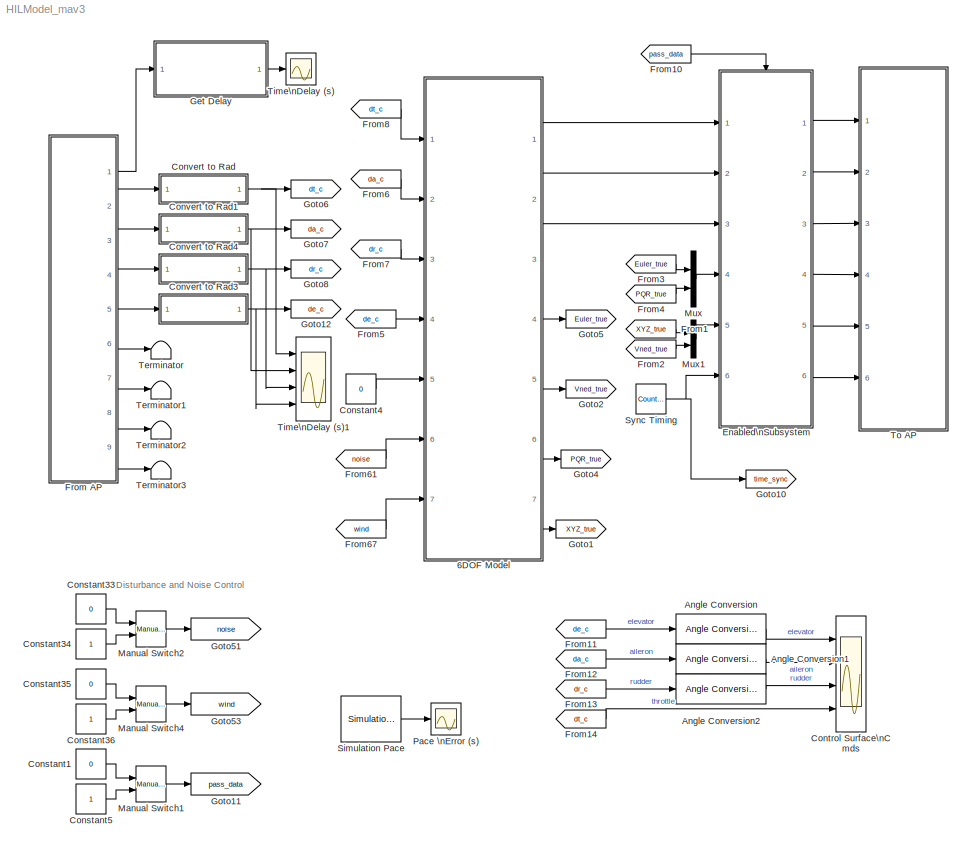
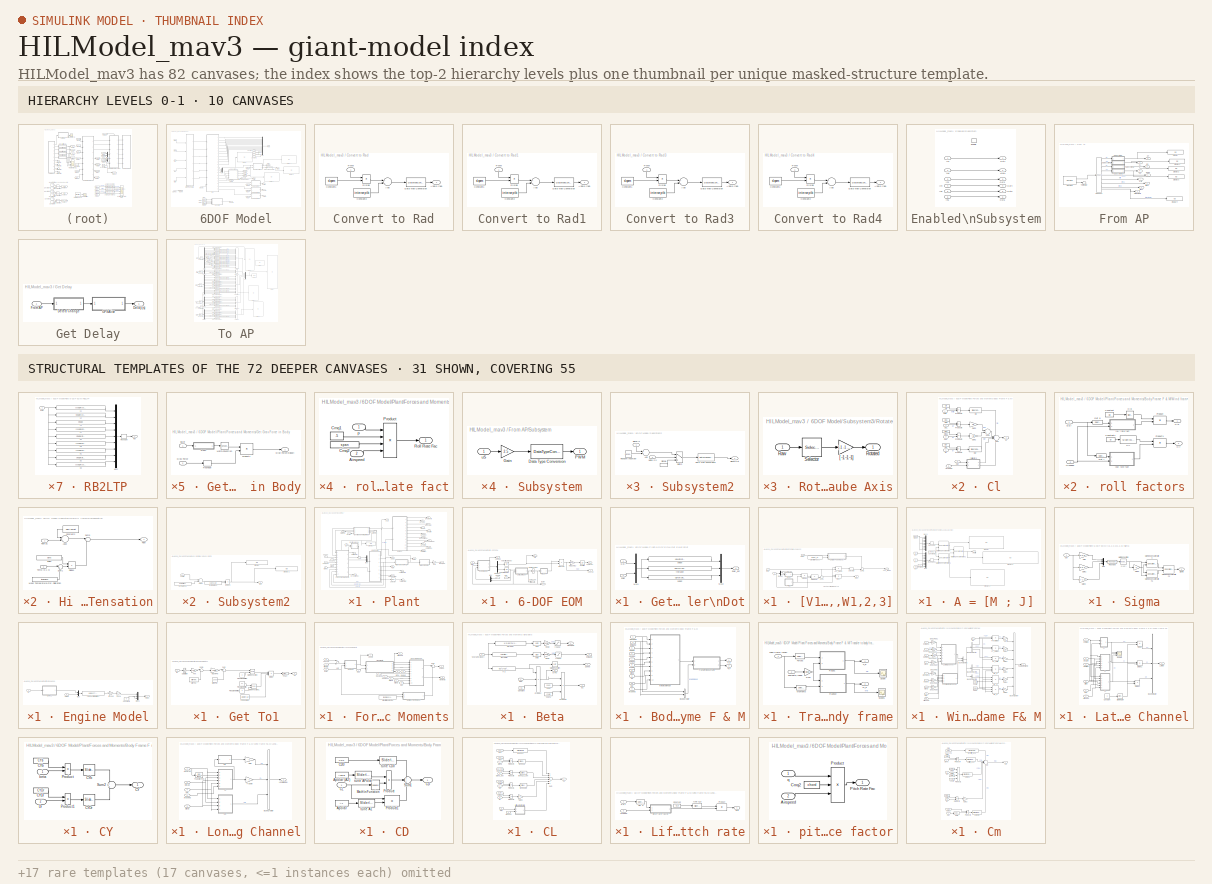
[diagram: thumbnail index - top-2 hierarchy levels (10 canvases) + 31 structural-template representatives of the remaining 72 canvases]
MODEL HILModel_mav3
KIND model
CONFIG InitFcn = clc\nhilInit\nlaunchBridgeClient
BLOCK [SubSystem] 6DOF Model
  FunctionWithSeparateData = off
  MaskHideContents = off
  MinAlgLoopOccurrences = off
  Opaque = off
  Ports = [7, 7]
  PropExecContextOutsideSubsystem = off
  RTWSystemCode = Auto
  RequestExecContextInheritance = off
  SID = 1
BLOCK [Outport] 6DOF Model/AirData
  IconDisplay = Port number
  Port = 2
  SID = 927
BLOCK [Constant] 6DOF Model/Constant
  SID = 9
  SampleTime = SampleT
  Value = 18
BLOCK [Constant] 6DOF Model/Constant1
  SID = 10
  SampleTime = SampleT
BLOCK [Constant] 6DOF Model/Constant2
  SID = 11
  SampleTime = SampleT
  Value = 7
BLOCK [Constant] 6DOF Model/Constant3
  SID = 12
  SampleTime = SampleT
BLOCK [DataTypeConversion] 6DOF Model/Data Type Conversion
  OutDataTypeStr = single
  RndMeth = Floor
  SID = 13
  SaturateOnIntegerOverflow = off
BLOCK [DataTypeConversion] 6DOF Model/Data Type Conversion1
  OutDataTypeStr = single
  RndMeth = Floor
  SID = 14
  SaturateOnIntegerOverflow = off
BLOCK [Display] 6DOF Model/Display
  Decimation = 1
  Format = long
  Lockdown = off
  Ports = [1]
  SID = 15
BLOCK [Display] 6DOF Model/Display1
  Decimation = 1
  Format = long
  Lockdown = off
  Ports = [1]
  SID = 16
BLOCK [Display] 6DOF Model/Display2
  Decimation = 1
  Format = long
  Lockdown = off
  Ports = [1]
  SID = 17
BLOCK [Display] 6DOF Model/Display3
  Decimation = 1
  Format = long
  Lockdown = off
  Ports = [1]
  SID = 18
BLOCK [Outport] 6DOF Model/Euler true
  IconDisplay = Port number
  Port = 4
  SID = 929
BLOCK [From] 6DOF Model/From10
  CloseFcn = tagdialog Close
  GotoTag = air_in
  SID = 19
BLOCK [From] 6DOF Model/From12
  CloseFcn = tagdialog Close
  GotoTag = noiseon
  SID = 20
BLOCK [From] 6DOF Model/From2
  CloseFcn = tagdialog Close
  GotoTag = noiseon
  SID = 21
BLOCK [From] 6DOF Model/From4
  CloseFcn = tagdialog Close
  GotoTag = noiseon
  SID = 22
BLOCK [From] 6DOF Model/From5
  CloseFcn = tagdialog Close
  GotoTag = noiseon
  SID = 23
BLOCK [From] 6DOF Model/From6
  CloseFcn = tagdialog Close
  GotoTag = noiseon
  SID = 24
BLOCK [From] 6DOF Model/From7
  CloseFcn = tagdialog Close
  GotoTag = pqr_in
  SID = 25
BLOCK [From] 6DOF Model/From8
  CloseFcn = tagdialog Close
  GotoTag = ab_in
  SID = 26
BLOCK [From] 6DOF Model/From9
  CloseFcn = tagdialog Close
  GotoTag = mag_in
  SID = 27
BLOCK [Outport] 6DOF Model/GPS
  IconDisplay = Port number
  SID = 926
BLOCK [Goto] 6DOF Model/Goto1
  GotoTag = air_in
  SID = 28
  TagVisibility = local
BLOCK [Goto] 6DOF Model/Goto41
  GotoTag = noiseon
  SID = 29
  TagVisibility = local
BLOCK [Goto] 6DOF Model/Goto5
  GotoTag = pqr_in
  SID = 30
  TagVisibility = local
BLOCK [Goto] 6DOF Model/Goto6
  GotoTag = ab_in
  SID = 31
  TagVisibility = local
BLOCK [Goto] 6DOF Model/Goto7
  GotoTag = mag_in
  SID = 32
  TagVisibility = local
BLOCK [Mux] 6DOF Model/Mux
  DisplayOption = bar
  Inputs = 15
  Ports = [15, 1]
  SID = 33
BLOCK [Mux] 6DOF Model/Mux1
  DisplayOption = bar
  Inputs = 3
  Ports = [3, 1]
  SID = 34
BLOCK [Inport] 6DOF Model/Noise On?
  IconDisplay = Port number
  Port = 6
  SID = 7
BLOCK [SubSystem] 6DOF Model/Plant
  FunctionWithSeparateData = off
  MaskHideContents = off
  MinAlgLoopOccurrences = off
  Opaque = off
  Ports = [7, 20]
  PropExecContextOutsideSubsystem = off
  RTWSystemCode = Auto
  RequestExecContextInheritance = off
  SID = 35
BLOCK [SubSystem] 6DOF Model/Plant/6-DOF EOM
  FunctionWithSeparateData = off
  MaskHideContents = off
  MinAlgLoopOccurrences = off
  Opaque = off
  Ports = [2, 7]
  PropExecContextOutsideSubsystem = off
  RTWSystemCode = Auto
  RequestExecContextInheritance = off
  SID = 43
BLOCK [Outport] 6DOF Model/Plant/6-DOF EOM/Ab meas
  IconDisplay = Port number
  Port = 6
  SID = 150
BLOCK [Integrator] 6DOF Model/Plant/6-DOF EOM/Angular\nRates
  InitialCondition = PQR_0'
  Ports = [1, 1]
  SID = 46
BLOCK [Demux] 6DOF Model/Plant/6-DOF EOM/Demux1
  DisplayOption = bar
  Outputs = 2
  Ports = [1, 2]
  SID = 47
BLOCK [Outport] 6DOF Model/Plant/6-DOF EOM/Euler
  IconDisplay = Port number
  Port = 3
  SID = 147
BLOCK [Integrator] 6DOF Model/Plant/6-DOF EOM/Euler\nAngles
  InitialCondition = Euler_0
  Ports = [1, 1]
  SID = 48
BLOCK [Outport] 6DOF Model/Plant/6-DOF EOM/Euler_dot
  IconDisplay = Port number
  Port = 7
  SID = 151
BLOCK [SubSystem] 6DOF Model/Plant/6-DOF EOM/Get Euler\nDot
  FunctionWithSeparateData = off
  MaskDisplay = port_label('input', 1, 'p, q, r')\nport_label('input', 2, 'Euler')\nport_label('output', 1, 'Euler_dot')
  MaskHideContents = off
  MaskIconFrame = on
  MaskIconOpaque = on
  MaskIconRotate = none
  MaskIconUnits = autoscale
  MaskPortRotate = default
  MinAlgLoopOccurrences = off
  Opaque = off
  Ports = [2, 1]
  PropExecContextOutsideSubsystem = off
  RTWSystemCode = Auto
  RequestExecContextInheritance = off
  SID = 49
BLOCK [Inport] 6DOF Model/Plant/6-DOF EOM/Get Euler\nDot/Euler
  IconDisplay = Port number
  Port = 2
  SID = 51
BLOCK [Outport] 6DOF Model/Plant/6-DOF EOM/Get Euler\nDot/Euler_dot
  IconDisplay = Port number
  SID = 57
BLOCK [Mux] 6DOF Model/Plant/6-DOF EOM/Get Euler\nDot/Mux1
  DisplayOption = bar
  Inputs = [3 3]
  Ports = [2, 1]
  SID = 52
BLOCK [Mux] 6DOF Model/Plant/6-DOF EOM/Get Euler\nDot/Mux2
  DisplayOption = bar
  Inputs = 3
  Ports = [3, 1]
  SID = 53
BLOCK [Inport] 6DOF Model/Plant/6-DOF EOM/Get Euler\nDot/p,q,r
  IconDisplay = Port number
  SID = 50
BLOCK [Fcn] 6DOF Model/Plant/6-DOF EOM/Get Euler\nDot/phidot
  Expr = u[1]+u[2]*sin(u[4])*tan(u[5])+u[3]*cos(u[4])*tan(u[5])
  SID = 54
BLOCK [Fcn] 6DOF Model/Plant/6-DOF EOM/Get Euler\nDot/psidot
  Expr = u[2]*sin(u[4])/cos(u[5])+u[3]*cos(u[4])/cos(u[5])
  SID = 55
BLOCK [Fcn] 6DOF Model/Plant/6-DOF EOM/Get Euler\nDot/thetadot
  Expr = u[2]*cos(u[4])-u[3]*sin(u[4])
  SID = 56
BLOCK [Mux] 6DOF Model/Plant/6-DOF EOM/Mux
  DisplayOption = bar
  Inputs = [3;3]
  Ports = [2, 1]
  SID = 58
BLOCK [Gain] 6DOF Model/Plant/6-DOF EOM/NED2NEU
  Gain = [1 0 0;0 1 0;0 0 -1]
  Multiplication = Matrix(K*u)
  SID = 59
BLOCK [Integrator] 6DOF Model/Plant/6-DOF EOM/Position
  InitialCondition = Pos_0'
  Ports = [1, 1]
  SID = 60
BLOCK [Product] 6DOF Model/Plant/6-DOF EOM/RB2L * Vb
  Multiplication = Matrix(*)
  Ports = [2, 1]
  RndMeth = Floor
  SID = 61
BLOCK [SubSystem] 6DOF Model/Plant/6-DOF EOM/RB2LTP
  FunctionWithSeparateData = off
  MaskHideContents = off
  MinAlgLoopOccurrences = off
  Opaque = off
  Ports = [1, 1]
  PropExecContextOutsideSubsystem = off
  RTWSystemCode = Auto
  RequestExecContextInheritance = off
  SID = 62
BLOCK [Fcn] 6DOF Model/Plant/6-DOF EOM/RB2LTP/11
  Expr = cos(u[3])*cos(u[2])
  SID = 64
BLOCK [Fcn] 6DOF Model/Plant/6-DOF EOM/RB2LTP/12
  Expr = sin(u[3])*cos(u[2])
  SID = 65
BLOCK [Fcn] 6DOF Model/Plant/6-DOF EOM/RB2LTP/13
  Expr = -sin(u[2])
  SID = 66
BLOCK [Fcn] 6DOF Model/Plant/6-DOF EOM/RB2LTP/21
  Expr = cos(u[3])*sin(u[2])*sin(u[1])-sin(u[3])*cos(u[1])
  SID = 67
BLOCK [Fcn] 6DOF Model/Plant/6-DOF EOM/RB2LTP/22
  Expr = sin(u[3])*sin(u[2])*sin(u[1])+cos(u[3])*cos(u[1])
  SID = 68
BLOCK [Fcn] 6DOF Model/Plant/6-DOF EOM/RB2LTP/23
  Expr = cos(u[2])*sin(u[1])
  SID = 69
BLOCK [Fcn] 6DOF Model/Plant/6-DOF EOM/RB2LTP/31
  Expr = cos(u[3])*sin(u[2])*cos(u[1])+sin(u[3])*sin(u[1])
  SID = 70
BLOCK [Fcn] 6DOF Model/Plant/6-DOF EOM/RB2LTP/32
  Expr = sin(u[3])*sin(u[2])*cos(u[1])-cos(u[3])*sin(u[1])
  SID = 71
BLOCK [Fcn] 6DOF Model/Plant/6-DOF EOM/RB2LTP/33
  Expr = cos(u[2])*cos(u[1])
  SID = 72
BLOCK [Inport] 6DOF Model/Plant/6-DOF EOM/RB2LTP/Euler
  IconDisplay = Port number
  SID = 63
BLOCK [Mux] 6DOF Model/Plant/6-DOF EOM/RB2LTP/Mux2
  DisplayOption = bar
  Inputs = 9
  Ports = [9, 1]
  SID = 73
BLOCK [Reshape] 6DOF Model/Plant/6-DOF EOM/RB2LTP/Reshape
  OutputDimensionality = Customize
  OutputDimensions = [3,3]
  Ports = [1, 1]
  SID = 74
BLOCK [Outport] 6DOF Model/Plant/6-DOF EOM/RB2LTP/Rot
  IconDisplay = Port number
  SID = 75
BLOCK [Outport] 6DOF Model/Plant/6-DOF EOM/Vb
  IconDisplay = Port number
  Port = 5
  SID = 149
BLOCK [Inport] 6DOF Model/Plant/6-DOF EOM/Vb Corr
  IconDisplay = Port number
  Port = 2
  SID = 45
BLOCK [Integrator] 6DOF Model/Plant/6-DOF EOM/Velocities\nBody
  InitialCondition = Vb_0'
  Ports = [1, 1]
  SID = 76
BLOCK [Outport] 6DOF Model/Plant/6-DOF EOM/Vx, Vy, Vz
  IconDisplay = Port number
  Port = 2
  SID = 146
BLOCK [Outport] 6DOF Model/Plant/6-DOF EOM/X,Y,Z (LTP)
  IconDisplay = Port number
  SID = 145
BLOCK [Inport] 6DOF Model/Plant/6-DOF EOM/[F,M]
  IconDisplay = Port number
  SID = 44
BLOCK [SubSystem] 6DOF Model/Plant/6-DOF EOM/[V1,2,3,W1,2,3]
  FunctionWithSeparateData = off
  MaskHideContents = off
  MinAlgLoopOccurrences = off
  Opaque = off
  Ports = [3, 2]
  PropExecContextOutsideSubsystem = off
  RTWSystemCode = Auto
  RequestExecContextInheritance = off
  SID = 77
BLOCK [SubSystem] 6DOF Model/Plant/6-DOF EOM/[V1,2,3,W1,2,3]/A = [M ; J]
  FunctionWithSeparateData = off
  MaskHideContents = off
  MinAlgLoopOccurrences = off
  Opaque = off
  Ports = [0, 1]
  PropExecContextOutsideSubsystem = off
  RTWSystemCode = Auto
  RequestExecContextInheritance = off
  SID = 81
BLOCK [Outport] 6DOF Model/Plant/6-DOF EOM/[V1,2,3,W1,2,3]/A = [M ; J]/A Matrix
  IconDisplay = Port number
  SID = 98
BLOCK [Constant] 6DOF Model/Plant/6-DOF EOM/[V1,2,3,W1,2,3]/A = [M ; J]/Constant1
  SID = 82
  Value = zeros(3,3)
BLOCK [Constant] 6DOF Model/Plant/6-DOF EOM/[V1,2,3,W1,2,3]/A = [M ; J]/Constant4
  SID = 83
  Value = 0
BLOCK [Display] 6DOF Model/Plant/6-DOF EOM/[V1,2,3,W1,2,3]/A = [M ; J]/Display
  Decimation = 1
  Lockdown = off
  Ports = [1]
  SID = 84
BLOCK [Display] 6DOF Model/Plant/6-DOF EOM/[V1,2,3,W1,2,3]/A = [M ; J]/Display1
  Decimation = 1
  Lockdown = off
  Ports = [1]
  SID = 85
BLOCK [Display] 6DOF Model/Plant/6-DOF EOM/[V1,2,3,W1,2,3]/A = [M ; J]/Display2
  Decimation = 1
  Lockdown = off
  Ports = [1]
  SID = 86
BLOCK [Constant] 6DOF Model/Plant/6-DOF EOM/[V1,2,3,W1,2,3]/A = [M ; J]/Ixx
  SID = 87
  Value = Ixx
  VectorParams1D = off
BLOCK [Constant] 6DOF Model/Plant/6-DOF EOM/[V1,2,3,W1,2,3]/A = [M ; J]/Iyy
  SID = 88
  Value = Iyy
  VectorParams1D = off
BLOCK [Constant] 6DOF Model/Plant/6-DOF EOM/[V1,2,3,W1,2,3]/A = [M ; J]/Izz
  SID = 89
  Value = Izz
  VectorParams1D = off
BLOCK [Concatenate] 6DOF Model/Plant/6-DOF EOM/[V1,2,3,W1,2,3]/A = [M ; J]/Matrix\nConcatenation
  Mode = Multidimensional array
  Ports = [2, 1]
  SID = 90
BLOCK [Concatenate] 6DOF Model/Plant/6-DOF EOM/[V1,2,3,W1,2,3]/A = [M ; J]/Matrix\nConcatenation1
  Mode = Multidimensional array
  Ports = [2, 1]
  SID = 91
BLOCK [Concatenate] 6DOF Model/Plant/6-DOF EOM/[V1,2,3,W1,2,3]/A = [M ; J]/Matrix\nConcatenation2
  ConcatenateDimension = 2
  Mode = Multidimensional array
  Ports = [2, 1]
  SID = 92
BLOCK [Mux] 6DOF Model/Plant/6-DOF EOM/[V1,2,3,W1,2,3]/A = [M ; J]/Mux
  DisplayOption = bar
  Inputs = 9
  Ports = [9, 1]
  SID = 93
BLOCK [Mux] 6DOF Model/Plant/6-DOF EOM/[V1,2,3,W1,2,3]/A = [M ; J]/Mux1
  DisplayOption = bar
  Inputs = 9
  Ports = [9, 1]
  SID = 94
BLOCK [Reshape] 6DOF Model/Plant/6-DOF EOM/[V1,2,3,W1,2,3]/A = [M ; J]/Reshape
  OutputDimensionality = Customize
  OutputDimensions = [3,3]
  Ports = [1, 1]
  SID = 95
BLOCK [Reshape] 6DOF Model/Plant/6-DOF EOM/[V1,2,3,W1,2,3]/A = [M ; J]/Reshape1
  OutputDimensionality = Customize
  OutputDimensions = [3,3]
  Ports = [1, 1]
  SID = 96
BLOCK [Constant] 6DOF Model/Plant/6-DOF EOM/[V1,2,3,W1,2,3]/A = [M ; J]/mass
  SID = 97
  Value = mass
  VectorParams1D = off
BLOCK [Product] 6DOF Model/Plant/6-DOF EOM/[V1,2,3,W1,2,3]/Acc_meas
  Inputs = /*
  Multiplication = Matrix(*)
  Ports = [2, 1]
  RndMeth = Floor
  SID = 99
BLOCK [Outport] 6DOF Model/Plant/6-DOF EOM/[V1,2,3,W1,2,3]/Acc_meas 
  IconDisplay = Port number
  SID = 143
BLOCK [Demux] 6DOF Model/Plant/6-DOF EOM/[V1,2,3,W1,2,3]/Demux
  Outputs = [3;3]
  Ports = [1, 2]
  SID = 100
BLOCK [Inport] 6DOF Model/Plant/6-DOF EOM/[V1,2,3,W1,2,3]/Euler
  IconDisplay = Port number
  Port = 2
  SID = 79
BLOCK [SubSystem] 6DOF Model/Plant/6-DOF EOM/[V1,2,3,W1,2,3]/Get Grav Force in Body
  FunctionWithSeparateData = off
  MaskHideContents = off
  MinAlgLoopOccurrences = off
  Opaque = off
  Ports = [2, 1]
  PropExecContextOutsideSubsystem = off
  RTWSystemCode = Auto
  RequestExecContextInheritance = off
  SID = 101
BLOCK [Inport] 6DOF Model/Plant/6-DOF EOM/[V1,2,3,W1,2,3]/Get Grav Force in Body/Euler
  IconDisplay = Port number
  SID = 102
BLOCK [Inport] 6DOF Model/Plant/6-DOF EOM/[V1,2,3,W1,2,3]/Get Grav Force in Body/Grav Force
  IconDisplay = Port number
  Port = 2
  SID = 103
BLOCK [Outport] 6DOF Model/Plant/6-DOF EOM/[V1,2,3,W1,2,3]/Get Grav Force in Body/Grav Force\n(Body)
  IconDisplay = Port number
  SID = 121
BLOCK [Math] 6DOF Model/Plant/6-DOF EOM/[V1,2,3,W1,2,3]/Get Grav Force in Body/Math\nFunction
  Operator = transpose
  Ports = [1, 1]
  SID = 104
BLOCK [Product] 6DOF Model/Plant/6-DOF EOM/[V1,2,3,W1,2,3]/Get Grav Force in Body/Product1
  Multiplication = Matrix(*)
  Ports = [2, 1]
  RndMeth = Floor
  SID = 105
BLOCK [SubSystem] 6DOF Model/Plant/6-DOF EOM/[V1,2,3,W1,2,3]/Get Grav Force in Body/Rb2u
  FunctionWithSeparateData = off
  MaskHideContents = off
  MinAlgLoopOccurrences = off
  Opaque = off
  Ports = [1, 1]
  PropExecContextOutsideSubsystem = off
  RTWSystemCode = Auto
  RequestExecContextInheritance = off
  SID = 106
BLOCK [Fcn] 6DOF Model/Plant/6-DOF EOM/[V1,2,3,W1,2,3]/Get Grav Force in Body/Rb2u/11
  Expr = cos(u[3])*cos(u[2])
  SID = 108
BLOCK [Fcn] 6DOF Model/Plant/6-DOF EOM/[V1,2,3,W1,2,3]/Get Grav Force in Body/Rb2u/12
  Expr = sin(u[3])*cos(u[2])
  SID = 109
BLOCK [Fcn] 6DOF Model/Plant/6-DOF EOM/[V1,2,3,W1,2,3]/Get Grav Force in Body/Rb2u/13
  Expr = -sin(u[2])
  SID = 110
BLOCK [Fcn] 6DOF Model/Plant/6-DOF EOM/[V1,2,3,W1,2,3]/Get Grav Force in Body/Rb2u/21
  Expr = cos(u[3])*sin(u[2])*sin(u[1])-sin(u[3])*cos(u[1])
  SID = 111
BLOCK [Fcn] 6DOF Model/Plant/6-DOF EOM/[V1,2,3,W1,2,3]/Get Grav Force in Body/Rb2u/22
  Expr = sin(u[3])*sin(u[2])*sin(u[1])+cos(u[3])*cos(u[1])
  SID = 112
BLOCK [Fcn] 6DOF Model/Plant/6-DOF EOM/[V1,2,3,W1,2,3]/Get Grav Force in Body/Rb2u/23
  Expr = cos(u[2])*sin(u[1])
  SID = 113
BLOCK [Fcn] 6DOF Model/Plant/6-DOF EOM/[V1,2,3,W1,2,3]/Get Grav Force in Body/Rb2u/31
  Expr = cos(u[3])*sin(u[2])*cos(u[1])+sin(u[3])*sin(u[1])
  SID = 114
BLOCK [Fcn] 6DOF Model/Plant/6-DOF EOM/[V1,2,3,W1,2,3]/Get Grav Force in Body/Rb2u/32
  Expr = sin(u[3])*sin(u[2])*cos(u[1])-cos(u[3])*sin(u[1])
  SID = 115
BLOCK [Fcn] 6DOF Model/Plant/6-DOF EOM/[V1,2,3,W1,2,3]/Get Grav Force in Body/Rb2u/33
  Expr = cos(u[2])*cos(u[1])
  SID = 116
BLOCK [Outport] 6DOF Model/Plant/6-DOF EOM/[V1,2,3,W1,2,3]/Get Grav Force in Body/Rb2u/DCM
  IconDisplay = Port number
  InitialOutput = 0
  SID = 119
BLOCK [Mux] 6DOF Model/Plant/6-DOF EOM/[V1,2,3,W1,2,3]/Get Grav Force in Body/Rb2u/Mux2
  DisplayOption = bar
  Inputs = 9
  Ports = [9, 1]
  SID = 117
BLOCK [Reshape] 6DOF Model/Plant/6-DOF EOM/[V1,2,3,W1,2,3]/Get Grav Force in Body/Rb2u/Reshape
  OutputDimensionality = Customize
  OutputDimensions = [3,3]
  Ports = [1, 1]
  SID = 118
BLOCK [Inport] 6DOF Model/Plant/6-DOF EOM/[V1,2,3,W1,2,3]/Get Grav Force in Body/Rb2u/phi\ntheta\npsi
  IconDisplay = Port number
  SID = 107
BLOCK [Reshape] 6DOF Model/Plant/6-DOF EOM/[V1,2,3,W1,2,3]/Get Grav Force in Body/Reshape
  OutputDimensionality = Column vector (2-D)
  Ports = [1, 1]
  SID = 120
BLOCK [Constant] 6DOF Model/Plant/6-DOF EOM/[V1,2,3,W1,2,3]/Gravitational Acc
  SID = 122
  Value = [0 0 -ISA_g]
  VectorParams1D = off
BLOCK [Selector] 6DOF Model/Plant/6-DOF EOM/[V1,2,3,W1,2,3]/Selector3
  IndexOptions = Index vector (dialog)
  Indices = 1:3
  InputPortWidth = 6
  OutputSizes = 1
  Ports = [1, 1]
  SID = 123
BLOCK [SubSystem] 6DOF Model/Plant/6-DOF EOM/[V1,2,3,W1,2,3]/Sigma
  FunctionWithSeparateData = off
  MaskHideContents = off
  MinAlgLoopOccurrences = off
  Opaque = off
  Ports = [1, 1]
  PropExecContextOutsideSubsystem = off
  RTWSystemCode = Auto
  RequestExecContextInheritance = off
  SID = 124
BLOCK [Product] 6DOF Model/Plant/6-DOF EOM/[V1,2,3,W1,2,3]/Sigma*A
  Multiplication = Matrix(*)
  Ports = [2, 1]
  RndMeth = Floor
  SID = 137
BLOCK [Product] 6DOF Model/Plant/6-DOF EOM/[V1,2,3,W1,2,3]/Sigma*A*V*
  Multiplication = Matrix(*)
  Ports = [2, 1]
  RndMeth = Floor
  SID = 138
BLOCK [Gain] 6DOF Model/Plant/6-DOF EOM/[V1,2,3,W1,2,3]/Sigma/Gain
  Gain = [0 0 0;0 0 -1; 0 1 0]
  Multiplication = Matrix(K*u)
  SID = 126
BLOCK [Gain] 6DOF Model/Plant/6-DOF EOM/[V1,2,3,W1,2,3]/Sigma/Gain1
  Gain = [0 0 1;0 0 0; -1 0 0]
  Multiplication = Matrix(K*u)
  SID = 127
BLOCK [Gain] 6DOF Model/Plant/6-DOF EOM/[V1,2,3,W1,2,3]/Sigma/Gain2
  Gain = [0 -1 0;1 0 0;  0 0 0]
  Multiplication = Matrix(K*u)
  SID = 128
BLOCK [Gain] 6DOF Model/Plant/6-DOF EOM/[V1,2,3,W1,2,3]/Sigma/Gain3
  Gain = 0
  SID = 129
BLOCK [Math] 6DOF Model/Plant/6-DOF EOM/[V1,2,3,W1,2,3]/Sigma/Math\nFunction
  Operator = transpose
  Ports = [1, 1]
  SID = 130
BLOCK [Concatenate] 6DOF Model/Plant/6-DOF EOM/[V1,2,3,W1,2,3]/Sigma/Matrix\nConcatenation
  ConcatenateDimension = 2
  Mode = Multidimensional array
  Ports = [2, 1]
  SID = 131
BLOCK [Concatenate] 6DOF Model/Plant/6-DOF EOM/[V1,2,3,W1,2,3]/Sigma/Matrix\nConcatenation1
  ConcatenateDimension = 2
  Mode = Multidimensional array
  Ports = [2, 1]
  SID = 132
BLOCK [Concatenate] 6DOF Model/Plant/6-DOF EOM/[V1,2,3,W1,2,3]/Sigma/Matrix\nConcatenation2
  Mode = Multidimensional array
  Ports = [2, 1]
  SID = 133
BLOCK [Mux] 6DOF Model/Plant/6-DOF EOM/[V1,2,3,W1,2,3]/Sigma/Mux
  DisplayOption = bar
  Inputs = 3
  Ports = [3, 1]
  SID = 134
BLOCK [Reshape] 6DOF Model/Plant/6-DOF EOM/[V1,2,3,W1,2,3]/Sigma/Reshape
  OutputDimensionality = Customize
  OutputDimensions = [3,3]
  Ports = [1, 1]
  SID = 135
BLOCK [Outport] 6DOF Model/Plant/6-DOF EOM/[V1,2,3,W1,2,3]/Sigma/Sigma
  IconDisplay = Port number
  SID = 136
BLOCK [Inport] 6DOF Model/Plant/6-DOF EOM/[V1,2,3,W1,2,3]/Sigma/pqr
  IconDisplay = Port number
  SID = 125
BLOCK [Sum] 6DOF Model/Plant/6-DOF EOM/[V1,2,3,W1,2,3]/Sum1
  IconShape = round
  Inputs = +-|
  Ports = [2, 1]
  SID = 139
BLOCK [Sum] 6DOF Model/Plant/6-DOF EOM/[V1,2,3,W1,2,3]/Sum2
  IconShape = round
  Inputs = ++|
  Ports = [2, 1]
  SID = 140
BLOCK [Terminator] 6DOF Model/Plant/6-DOF EOM/[V1,2,3,W1,2,3]/Terminator1
  SID = 141
BLOCK [Inport] 6DOF Model/Plant/6-DOF EOM/[V1,2,3,W1,2,3]/V*
  IconDisplay = Port number
  Port = 3
  PortDimensions = 6
  SID = 80
BLOCK [Outport] 6DOF Model/Plant/6-DOF EOM/[V1,2,3,W1,2,3]/V*dot
  IconDisplay = Port number
  Port = 2
  SID = 144
BLOCK [Product] 6DOF Model/Plant/6-DOF EOM/[V1,2,3,W1,2,3]/V*dot 
  Inputs = /*
  Multiplication = Matrix(*)
  Ports = [2, 1]
  RndMeth = Floor
  SID = 142
BLOCK [Inport] 6DOF Model/Plant/6-DOF EOM/[V1,2,3,W1,2,3]/[F ; M]
  IconDisplay = Port number
  SID = 78
BLOCK [Outport] 6DOF Model/Plant/6-DOF EOM/p, q, r
  IconDisplay = Port number
  Port = 4
  SID = 148
BLOCK [Outport] 6DOF Model/Plant/Ab meas (m//s)
  IconDisplay = Port number
  Port = 16
  SID = 697
BLOCK [Outport] 6DOF Model/Plant/COG (deg)
  IconDisplay = Port number
  Port = 10
  SID = 691
BLOCK [Display] 6DOF Model/Plant/Display
  Decimation = 1
  Lockdown = off
  Ports = [1]
  SID = 152
BLOCK [Outport] 6DOF Model/Plant/Dynamic (Pa)
  IconDisplay = Port number
  Port = 12
  SID = 693
BLOCK [SubSystem] 6DOF Model/Plant/Engine Model
  FunctionWithSeparateData = off
  MaskHideContents = off
  MinAlgLoopOccurrences = off
  Opaque = off
  Ports = [2, 1]
  PropExecContextOutsideSubsystem = off
  RTWSystemCode = Auto
  RequestExecContextInheritance = off
  SID = 153
BLOCK [Constant] 6DOF Model/Plant/Engine Model/Constant4
  SID = 156
  Value = 0
BLOCK [SubSystem] 6DOF Model/Plant/Engine Model/Get To1
  FunctionWithSeparateData = off
  MaskHideContents = off
  MinAlgLoopOccurrences = off
  Opaque = off
  Ports = [1, 1]
  PropExecContextOutsideSubsystem = off
  RTWSystemCode = Auto
  RequestExecContextInheritance = off
  SID = 157
BLOCK [Product] 6DOF Model/Plant/Engine Model/Get To1/Divide
  InputSameDT = off
  Inputs = 3
  OutDataTypeStr = Inherit: Inherit via internal rule
  Ports = [3, 1]
  RndMeth = Floor
  SID = 159
  SaturateOnIntegerOverflow = off
BLOCK [Math] 6DOF Model/Plant/Engine Model/Get To1/Math\nFunction
  Operator = pow
  Ports = [2, 1]
  SID = 160
BLOCK [Math] 6DOF Model/Plant/Engine Model/Get To1/Math\nFunction1
  Operator = pow
  Ports = [2, 1]
  SID = 161
BLOCK [Gain] 6DOF Model/Plant/Engine Model/Get To1/MaxRPM
  Gain = 7200
  SID = 162
BLOCK [Constant] 6DOF Model/Plant/Engine Model/Get To1/Min RPM
  SID = 163
  Value = 2000
BLOCK [Constant] 6DOF Model/Plant/Engine Model/Get To1/Min Th K
  SID = 164
  Value = MinThK
BLOCK [Constant] 6DOF Model/Plant/Engine Model/Get To1/Prop Diameter (in)
  SID = 165
  Value = 17
BLOCK [Constant] 6DOF Model/Plant/Engine Model/Get To1/Prop Diameter (in)1
  SID = 166
  Value = 2
BLOCK [Constant] 6DOF Model/Plant/Engine Model/Get To1/Prop Diameter (in)2
  SID = 167
  Value = 4
BLOCK [Saturate] 6DOF Model/Plant/Engine Model/Get To1/Saturation
  InputPortMap = u0
  LowerLimit = 0.2
  Ports = [1, 1]
  SID = 168
  UpperLimit = 1.0
BLOCK [Sum] 6DOF Model/Plant/Engine Model/Get To1/Sum
  IconShape = round
  InputSameDT = off
  Inputs = |++
  OutDataTypeStr = Inherit: Inherit via internal rule
  Ports = [2, 1]
  SID = 169
  SaturateOnIntegerOverflow = off
BLOCK [Sum] 6DOF Model/Plant/Engine Model/Get To1/Sum1
  IconShape = round
  InputSameDT = off
  Inputs = |++
  OutDataTypeStr = Inherit: Inherit via internal rule
  Ports = [2, 1]
  SID = 170
  SaturateOnIntegerOverflow = off
BLOCK [Reference] 6DOF Model/Plant/Engine Model/Get To1/TFact  REF=simulink/Math\nOperations/Slider\nGain
  Ports = [1, 1]
  SID = 171
  SourceBlock = simulink/Math\nOperations/Slider\nGain
  SourceType = Slider Gain
  gain = 0.2
  high = 1
  low = 0
BLOCK [Gain] 6DOF Model/Plant/Engine Model/Get To1/Th K
  Gain = ThK
  SID = 172
BLOCK [Outport] 6DOF Model/Plant/Engine Model/Get To1/To
  IconDisplay = Port number
  SID = 174
BLOCK [Constant] 6DOF Model/Plant/Engine Model/Get To1/To Constant
  SID = 173
  Value = 2.83e-12
BLOCK [Inport] 6DOF Model/Plant/Engine Model/Get To1/dt
  IconDisplay = Port number
  SID = 158
BLOCK [Mux] 6DOF Model/Plant/Engine Model/Mux
  DisplayOption = bar
  Inputs = 2
  Ports = [2, 1]
  SID = 175
BLOCK [Mux] 6DOF Model/Plant/Engine Model/Mux1
  DisplayOption = bar
  Inputs = 3
  Ports = [3, 1]
  SID = 176
BLOCK [Outport] 6DOF Model/Plant/Engine Model/Thrust
  IconDisplay = Port number
  SID = 180
BLOCK [Fcn] 6DOF Model/Plant/Engine Model/Thrust Available (lbs)
  Expr = u(1) - 0.047*sqrt(u(1))*u(2)
  SID = 177
BLOCK [Inport] 6DOF Model/Plant/Engine Model/Vmag
  IconDisplay = Port number
  Port = 2
  SID = 155
BLOCK [Inport] 6DOF Model/Plant/Engine Model/dt
  IconDisplay = Port number
  SID = 154
BLOCK [Gain] 6DOF Model/Plant/Engine Model/kg2N
  Gain = ISA_g
  SID = 178
BLOCK [Gain] 6DOF Model/Plant/Engine Model/lbs2kg
  Gain = 0.45359237
  SID = 179
BLOCK [Outport] 6DOF Model/Plant/Euler
  IconDisplay = Port number
  Port = 18
  SID = 699
BLOCK [SubSystem] 6DOF Model/Plant/Forces and Moments
  FunctionWithSeparateData = off
  MaskHideContents = off
  MinAlgLoopOccurrences = off
  Opaque = off
  Ports = [10, 5]
  PropExecContextOutsideSubsystem = off
  RTWSystemCode = Auto
  RequestExecContextInheritance = off
  SID = 181
BLOCK [Outport] 6DOF Model/Plant/Forces and Moments/Airspeed
  IconDisplay = Port number
  SID = 573
BLOCK [SubSystem] 6DOF Model/Plant/Forces and Moments/Alpha//Beta
  FunctionWithSeparateData = off
  MaskHideContents = off
  MinAlgLoopOccurrences = off
  Opaque = off
  Ports = [2, 5]
  PropExecContextOutsideSubsystem = off
  RTWSystemCode = Auto
  RequestExecContextInheritance = off
  SID = 192
BLOCK [Constant] 6DOF Model/Plant/Forces and Moments/Alpha//Beta/Constant
  SID = 195
  Value = 0.5
  VectorParams1D = off
BLOCK [Math] 6DOF Model/Plant/Forces and Moments/Alpha//Beta/Math\nFunction
  Operator = sqrt
  Ports = [1, 1]
  SID = 196
BLOCK [Product] 6DOF Model/Plant/Forces and Moments/Alpha//Beta/Product
  InputSameDT = off
  Inputs = 3
  Ports = [3, 1]
  RndMeth = Floor
  SID = 197
BLOCK [Product] 6DOF Model/Plant/Forces and Moments/Alpha//Beta/Product1
  InputSameDT = off
  Inputs = 3
  Ports = [3, 1]
  RndMeth = Floor
  SID = 198
BLOCK [Gain] 6DOF Model/Plant/Forces and Moments/Alpha//Beta/R2D1
  Gain = 180/pi
  SID = 199
BLOCK [Gain] 6DOF Model/Plant/Forces and Moments/Alpha//Beta/R2D2
  Gain = 180/pi
  SID = 200
BLOCK [Inport] 6DOF Model/Plant/Forces and Moments/Alpha//Beta/Rho
  IconDisplay = Port number
  Port = 2
  SID = 194
BLOCK [Outport] 6DOF Model/Plant/Forces and Moments/Alpha//Beta/Speed
  IconDisplay = Port number
  Port = 4
  SID = 213
BLOCK [Fcn] 6DOF Model/Plant/Forces and Moments/Alpha//Beta/V^2
  Expr = (u(1)^2+u(2)^2+u(3)^2)
  SID = 201
BLOCK [Inport] 6DOF Model/Plant/Forces and Moments/Alpha//Beta/Vx, Vy, Vz\n(Body)
  IconDisplay = Port number
  SID = 193
BLOCK [Saturate] 6DOF Model/Plant/Forces and Moments/Alpha//Beta/[-15; 15 ]
  InputPortMap = u0
  LowerLimit = -15
  Ports = [1, 1]
  SID = 202
  UpperLimit = 15
BLOCK [Saturate] 6DOF Model/Plant/Forces and Moments/Alpha//Beta/[-15;15]
  InputPortMap = u0
  LowerLimit = -15
  Ports = [1, 1]
  SID = 203
  UpperLimit = 15
BLOCK [Outport] 6DOF Model/Plant/Forces and Moments/Alpha//Beta/alpha, deg
  IconDisplay = Port number
  SID = 210
BLOCK [Trigonometry] 6DOF Model/Plant/Forces and Moments/Alpha//Beta/aoa
  Operator = asin
  Ports = [1, 1]
  SID = 204
BLOCK [Trigonometry] 6DOF Model/Plant/Forces and Moments/Alpha//Beta/beta
  Operator = atan
  Ports = [1, 1]
  SID = 205
BLOCK [Outport] 6DOF Model/Plant/Forces and Moments/Alpha//Beta/beta, deg
  IconDisplay = Port number
  Port = 2
  SID = 211
BLOCK [Outport] 6DOF Model/Plant/Forces and Moments/Alpha//Beta/q (Pa)
  IconDisplay = Port number
  Port = 5
  SID = 214
BLOCK [Outport] 6DOF Model/Plant/Forces and Moments/Alpha//Beta/qS
  IconDisplay = Port number
  Port = 3
  SID = 212
BLOCK [Fcn] 6DOF Model/Plant/Forces and Moments/Alpha//Beta/sin(aoa)
  Expr = u(3)/sqrt(u(1)^2+u(3)^2)
  SID = 206
BLOCK [Constant] 6DOF Model/Plant/Forces and Moments/Alpha//Beta/span
  SID = 207
  Value = span
  VectorParams1D = off
BLOCK [Constant] 6DOF Model/Plant/Forces and Moments/Alpha//Beta/span1
  SID = 208
  Value = chord
  VectorParams1D = off
BLOCK [Fcn] 6DOF Model/Plant/Forces and Moments/Alpha//Beta/tan(beta)
  Expr = u(2)/sqrt(u(1)^2+u(3)^2)
  SID = 209
BLOCK [SubSystem] 6DOF Model/Plant/Forces and Moments/Body Frame F & M
  FunctionWithSeparateData = off
  MaskHideContents = off
  MinAlgLoopOccurrences = off
  Opaque = off
  Ports = [10, 2]
  PropExecContextOutsideSubsystem = off
  RTWSystemCode = Auto
  RequestExecContextInheritance = off
  SID = 215
BLOCK [Inport] 6DOF Model/Plant/Forces and Moments/Body Frame F & M/Airspeed
  IconDisplay = Port number
  Port = 4
  SID = 219
BLOCK [Inport] 6DOF Model/Plant/Forces and Moments/Body Frame F & M/Alpha, deg
  IconDisplay = Port number
  SID = 216
BLOCK [Inport] 6DOF Model/Plant/Forces and Moments/Body Frame F & M/Beta, deg
  IconDisplay = Port number
  Port = 2
  SID = 217
BLOCK [BusCreator] 6DOF Model/Plant/Forces and Moments/Body Frame F & M/Bus\nCreator
  DisplayOption = bar
  Inputs = 2
  Ports = [2, 1]
  SID = 226
BLOCK [Outport] 6DOF Model/Plant/Forces and Moments/Body Frame F & M/F_b
  IconDisplay = Port number
  SID = 526
BLOCK [Outport] 6DOF Model/Plant/Forces and Moments/Body Frame F & M/M_b
  IconDisplay = Port number
  Port = 2
  SID = 527
BLOCK [SubSystem] 6DOF Model/Plant/Forces and Moments/Body Frame F & M/Transfer to body frame
  FunctionWithSeparateData = off
  MaskHideContents = off
  MinAlgLoopOccurrences = off
  Opaque = off
  Ports = [2, 2]
  PropExecContextOutsideSubsystem = off
  RTWSystemCode = Auto
  RequestExecContextInheritance = off
  SID = 227
BLOCK [Gain] 6DOF Model/Plant/Forces and Moments/Body Frame F & M/Transfer to body frame/D2R
  Gain = pi/180
  SID = 230
BLOCK [Outport] 6DOF Model/Plant/Forces and Moments/Body Frame F & M/Transfer to body frame/F_b
  IconDisplay = Port number
  SID = 277
BLOCK [Selector] 6DOF Model/Plant/Forces and Moments/Body Frame F & M/Transfer to body frame/Forces
  IndexOptions = Index vector (dialog)
  Indices = [1 2 3]
  InputPortWidth = 6
  OutputSizes = [(-2)]
  Ports = [1, 1]
  SID = 231
BLOCK [Outport] 6DOF Model/Plant/Forces and Moments/Body Frame F & M/Transfer to body frame/M_b
  IconDisplay = Port number
  Port = 2
  SID = 278
BLOCK [Selector] 6DOF Model/Plant/Forces and Moments/Body Frame F & M/Transfer to body frame/Moments
  IndexOptions = Index vector (dialog)
  Indices = [4 5 6]
  InputPortWidth = 6
  OutputSizes = [(-2)]
  Ports = [1, 1]
  SID = 232
BLOCK [SubSystem] 6DOF Model/Plant/Forces and Moments/Body Frame F & M/Transfer to body frame/Ra2b1
  FunctionWithSeparateData = off
  MaskHideContents = off
  MinAlgLoopOccurrences = off
  Opaque = off
  Ports = [2, 1]
  PropExecContextOutsideSubsystem = off
  RTWSystemCode = Auto
  RequestExecContextInheritance = off
  SID = 233
BLOCK [Product] 6DOF Model/Plant/Forces and Moments/Body Frame F & M/Transfer to body frame/Ra2b1/Product2
  InputSameDT = off
  Multiplication = Matrix(*)
  Ports = [2, 1]
  RndMeth = Floor
  SID = 236
BLOCK [SubSystem] 6DOF Model/Plant/Forces and Moments/Body Frame F & M/Transfer to body frame/Ra2b1/RB2W
  FunctionWithSeparateData = off
  MaskHideContents = off
  MinAlgLoopOccurrences = off
  Opaque = off
  Ports = [1, 1]
  PropExecContextOutsideSubsystem = off
  RTWSystemCode = Auto
  RequestExecContextInheritance = off
  SID = 237
BLOCK [Fcn] 6DOF Model/Plant/Forces and Moments/Body Frame F & M/Transfer to body frame/Ra2b1/RB2W/11
  Expr = cos(u[1])*cos(u[2])
  SID = 239
BLOCK [Fcn] 6DOF Model/Plant/Forces and Moments/Body Frame F & M/Transfer to body frame/Ra2b1/RB2W/12
  Expr = sin(u[2])
  SID = 240
BLOCK [Fcn] 6DOF Model/Plant/Forces and Moments/Body Frame F & M/Transfer to body frame/Ra2b1/RB2W/13
  Expr = sin(u[1])*cos(u[2])
  SID = 241
BLOCK [Fcn] 6DOF Model/Plant/Forces and Moments/Body Frame F & M/Transfer to body frame/Ra2b1/RB2W/21
  Expr = -cos(u[1])*sin(u[2])
  SID = 242
BLOCK [Fcn] 6DOF Model/Plant/Forces and Moments/Body Frame F & M/Transfer to body frame/Ra2b1/RB2W/22
  Expr = cos(u[2])
  SID = 243
BLOCK [Fcn] 6DOF Model/Plant/Forces and Moments/Body Frame F & M/Transfer to body frame/Ra2b1/RB2W/23
  Expr = -sin(u[1])*sin(u[2])
  SID = 244
BLOCK [Fcn] 6DOF Model/Plant/Forces and Moments/Body Frame F & M/Transfer to body frame/Ra2b1/RB2W/31
  Expr = -sin(u[1])
  SID = 245
BLOCK [Fcn] 6DOF Model/Plant/Forces and Moments/Body Frame F & M/Transfer to body frame/Ra2b1/RB2W/32
  Expr = 0
  SID = 246
BLOCK [Fcn] 6DOF Model/Plant/Forces and Moments/Body Frame F & M/Transfer to body frame/Ra2b1/RB2W/33
  Expr = cos(u[1])
  SID = 247
BLOCK [Mux] 6DOF Model/Plant/Forces and Moments/Body Frame F & M/Transfer to body frame/Ra2b1/RB2W/Mux3
  DisplayOption = bar
  Inputs = 9
  Ports = [9, 1]
  SID = 248
BLOCK [Reshape] 6DOF Model/Plant/Forces and Moments/Body Frame F & M/Transfer to body frame/Ra2b1/RB2W/Reshape\n9x1->3x3
  OutputDimensionality = Customize
  OutputDimensions = [3,3]
  Ports = [1, 1]
  SID = 249
BLOCK [Outport] 6DOF Model/Plant/Forces and Moments/Body Frame F & M/Transfer to body frame/Ra2b1/RB2W/Rw2b
  IconDisplay = Port number
  InitialOutput = 0
  SID = 250
BLOCK [Inport] 6DOF Model/Plant/Forces and Moments/Body Frame F & M/Transfer to body frame/Ra2b1/RB2W/aoa\nbeta
  IconDisplay = Port number
  SID = 238
BLOCK [Math] 6DOF Model/Plant/Forces and Moments/Body Frame F & M/Transfer to body frame/Ra2b1/RW2B
  Operator = transpose
  Ports = [1, 1]
  SID = 251
BLOCK [Reshape] 6DOF Model/Plant/Forces and Moments/Body Frame F & M/Transfer to body frame/Ra2b1/Reshape
  OutputDimensionality = Column vector (2-D)
  Ports = [1, 1]
  SID = 252
BLOCK [Inport] 6DOF Model/Plant/Forces and Moments/Body Frame F & M/Transfer to body frame/Ra2b1/aoa//beta
  IconDisplay = Port number
  Port = 2
  SID = 235
BLOCK [Outport] 6DOF Model/Plant/Forces and Moments/Body Frame F & M/Transfer to body frame/Ra2b1/body\nframe
  IconDisplay = Port number
  SID = 253
BLOCK [Inport] 6DOF Model/Plant/Forces and Moments/Body Frame F & M/Transfer to body frame/Ra2b1/wind\nframe
  IconDisplay = Port number
  SID = 234
BLOCK [SubSystem] 6DOF Model/Plant/Forces and Moments/Body Frame F & M/Transfer to body frame/Ra2b22
  FunctionWithSeparateData = off
  MaskHideContents = off
  MinAlgLoopOccurrences = off
  Opaque = off
  Ports = [2, 1]
  PropExecContextOutsideSubsystem = off
  RTWSystemCode = Auto
  RequestExecContextInheritance = off
  SID = 254
BLOCK [Product] 6DOF Model/Plant/Forces and Moments/Body Frame F & M/Transfer to body frame/Ra2b22/Product2
  InputSameDT = off
  Multiplication = Matrix(*)
  Ports = [2, 1]
  RndMeth = Floor
  SID = 257
BLOCK [SubSystem] 6DOF Model/Plant/Forces and Moments/Body Frame F & M/Transfer to body frame/Ra2b22/RB2W
  FunctionWithSeparateData = off
  MaskHideContents = off
  MinAlgLoopOccurrences = off
  Opaque = off
  Ports = [1, 1]
  PropExecContextOutsideSubsystem = off
  RTWSystemCode = Auto
  RequestExecContextInheritance = off
  SID = 258
BLOCK [Fcn] 6DOF Model/Plant/Forces and Moments/Body Frame F & M/Transfer to body frame/Ra2b22/RB2W/11
  Expr = cos(u[1]) * cos(u[2])
  SID = 260
BLOCK [Fcn] 6DOF Model/Plant/Forces and Moments/Body Frame F & M/Transfer to body frame/Ra2b22/RB2W/12
  Expr = sin(u[2])
  SID = 261
BLOCK [Fcn] 6DOF Model/Plant/Forces and Moments/Body Frame F & M/Transfer to body frame/Ra2b22/RB2W/13
  Expr = sin(u[1]) * cos(u[2])
  SID = 262
BLOCK [Fcn] 6DOF Model/Plant/Forces and Moments/Body Frame F & M/Transfer to body frame/Ra2b22/RB2W/21
  Expr = -cos(u[1]) * sin(u[2])
  SID = 263
BLOCK [Fcn] 6DOF Model/Plant/Forces and Moments/Body Frame F & M/Transfer to body frame/Ra2b22/RB2W/22
  Expr = cos(u[2])
  SID = 264
BLOCK [Fcn] 6DOF Model/Plant/Forces and Moments/Body Frame F & M/Transfer to body frame/Ra2b22/RB2W/23
  Expr = -sin(u[1]) * sin(u[2])
  SID = 265
BLOCK [Fcn] 6DOF Model/Plant/Forces and Moments/Body Frame F & M/Transfer to body frame/Ra2b22/RB2W/31
  Expr = -sin(u[1])
  SID = 266
BLOCK [Fcn] 6DOF Model/Plant/Forces and Moments/Body Frame F & M/Transfer to body frame/Ra2b22/RB2W/32
  Expr = 0
  SID = 267
BLOCK [Fcn] 6DOF Model/Plant/Forces and Moments/Body Frame F & M/Transfer to body frame/Ra2b22/RB2W/33
  Expr = cos(u[1])
  SID = 268
BLOCK [Mux] 6DOF Model/Plant/Forces and Moments/Body Frame F & M/Transfer to body frame/Ra2b22/RB2W/Mux3
  DisplayOption = bar
  Inputs = 9
  Ports = [9, 1]
  SID = 269
BLOCK [Reshape] 6DOF Model/Plant/Forces and Moments/Body Frame F & M/Transfer to body frame/Ra2b22/RB2W/Reshape\n9x1->3x3
  OutputDimensionality = Customize
  OutputDimensions = [3,3]
  Ports = [1, 1]
  SID = 270
BLOCK [Outport] 6DOF Model/Plant/Forces and Moments/Body Frame F & M/Transfer to body frame/Ra2b22/RB2W/Rw2b
  IconDisplay = Port number
  InitialOutput = 0
  SID = 271
BLOCK [Inport] 6DOF Model/Plant/Forces and Moments/Body Frame F & M/Transfer to body frame/Ra2b22/RB2W/aoa\nbeta
  IconDisplay = Port number
  SID = 259
BLOCK [Math] 6DOF Model/Plant/Forces and Moments/Body Frame F & M/Transfer to body frame/Ra2b22/RW2B
  Operator = transpose
  Ports = [1, 1]
  SID = 272
BLOCK [Reshape] 6DOF Model/Plant/Forces and Moments/Body Frame F & M/Transfer to body frame/Ra2b22/Reshape
  OutputDimensionality = Column vector (2-D)
  Ports = [1, 1]
  SID = 273
BLOCK [Inport] 6DOF Model/Plant/Forces and Moments/Body Frame F & M/Transfer to body frame/Ra2b22/aoa//beta
  IconDisplay = Port number
  SID = 255
BLOCK [Outport] 6DOF Model/Plant/Forces and Moments/Body Frame F & M/Transfer to body frame/Ra2b22/body\nframe
  IconDisplay = Port number
  SID = 274
BLOCK [Inport] 6DOF Model/Plant/Forces and Moments/Body Frame F & M/Transfer to body frame/Ra2b22/wind\nframe
  IconDisplay = Port number
  Port = 2
  SID = 256
BLOCK [Scope] 6DOF Model/Plant/Forces and Moments/Body Frame F & M/Transfer to body frame/Scope
  DataFormat = StructureWithTime
  Floating = off
  LimitDataPoints = off
  NumInputPorts = 1
  Ports = [1]
  SID = 275
  SampleTime = 0
  SaveName = ScopeData11
  YMax = 200
  YMin = -450
BLOCK [Scope] 6DOF Model/Plant/Forces and Moments/Body Frame F & M/Transfer to body frame/Scope1
  DataFormat = StructureWithTime
  Floating = off
  LimitDataPoints = off
  NumInputPorts = 1
  Ports = [1]
  SID = 276
  SampleTime = 0
  SaveName = ScopeData17
  YMax = 200
  YMin = -450
BLOCK [Inport] 6DOF Model/Plant/Forces and Moments/Body Frame F & M/Transfer to body frame/Wind frame \nF&M
  IconDisplay = Port number
  SID = 228
BLOCK [Inport] 6DOF Model/Plant/Forces and Moments/Body Frame F & M/Transfer to body frame/aoa//beta,\ndeg
  IconDisplay = Port number
  Port = 2
  SID = 229
BLOCK [SubSystem] 6DOF Model/Plant/Forces and Moments/Body Frame F & M/Wind frame F& M
  FunctionWithSeparateData = off
  MaskHideContents = off
  MinAlgLoopOccurrences = off
  Opaque = off
  Ports = [10, 1]
  PropExecContextOutsideSubsystem = off
  RTWSystemCode = Auto
  RequestExecContextInheritance = off
  SID = 279
BLOCK [Inport] 6DOF Model/Plant/Forces and Moments/Body Frame F & M/Wind frame F& M/Airpseed
  IconDisplay = Port number
  Port = 10
  SID = 289
BLOCK [BusCreator] 6DOF Model/Plant/Forces and Moments/Body Frame F & M/Wind frame F& M/Bus\nCreator
  DisplayOption = bar
  Inputs = 6
  Ports = [6, 1]
  SID = 290
BLOCK [BusCreator] 6DOF Model/Plant/Forces and Moments/Body Frame F & M/Wind frame F& M/Bus\nCreator1
  DisplayOption = bar
  Inputs = 2
  Ports = [2, 1]
  SID = 291
BLOCK [BusSelector] 6DOF Model/Plant/Forces and Moments/Body Frame F & M/Wind frame F& M/Bus\nSelector
  OutputSignals = signal2.CD,signal1.CY,signal2.CL
  Ports = [1, 3]
  SID = 292
BLOCK [BusSelector] 6DOF Model/Plant/Forces and Moments/Body Frame F & M/Wind frame F& M/Bus\nSelector3
  OutputSignals = signal1.Cl,signal1.Cn
  Ports = [1, 2]
  SID = 293
BLOCK [BusSelector] 6DOF Model/Plant/Forces and Moments/Body Frame F & M/Wind frame F& M/Bus\nSelector4
  OutputSignals = signal2.Cm
  Ports = [1, 1]
  SID = 294
BLOCK [Gain] 6DOF Model/Plant/Forces and Moments/Body Frame F & M/Wind frame F& M/Deg2Rad
  Gain = pi/180
  SID = 295
BLOCK [Gain] 6DOF Model/Plant/Forces and Moments/Body Frame F & M/Wind frame F& M/Deg2Rad1
  Gain = pi/180
  SID = 296
BLOCK [Gain] 6DOF Model/Plant/Forces and Moments/Body Frame F & M/Wind frame F& M/Deg2Rad2
  Gain = pi/180
  SID = 297
BLOCK [Gain] 6DOF Model/Plant/Forces and Moments/Body Frame F & M/Wind frame F& M/Deg2Rad3
  Gain = pi/180
  SID = 298
BLOCK [Gain] 6DOF Model/Plant/Forces and Moments/Body Frame F & M/Wind frame F& M/Deg2Rad4
  Gain = pi/180
  SID = 299
BLOCK [Gain] 6DOF Model/Plant/Forces and Moments/Body Frame F & M/Wind frame F& M/Deg2Rad5
  Gain = pi/180
  SID = 300
BLOCK [Gain] 6DOF Model/Plant/Forces and Moments/Body Frame F & M/Wind frame F& M/Deg2Rad6
  Gain = pi/180
  SID = 301
BLOCK [Outport] 6DOF Model/Plant/Forces and Moments/Body Frame F & M/Wind frame F& M/F&M\nwind frame
  IconDisplay = Port number
  SID = 525
BLOCK [Product] 6DOF Model/Plant/Forces and Moments/Body Frame F & M/Wind frame F& M/Fx_a(Drag)
  InputSameDT = off
  Inputs = **
  Ports = [2, 1]
  RndMeth = Floor
  SID = 302
BLOCK [Product] 6DOF Model/Plant/Forces and Moments/Body Frame F & M/Wind frame F& M/Fy_a(Side)
  InputSameDT = off
  Ports = [2, 1]
  RndMeth = Floor
  SID = 303
BLOCK [Product] 6DOF Model/Plant/Forces and Moments/Body Frame F & M/Wind frame F& M/Fz_a(Lift)
  InputSameDT = off
  Ports = [2, 1]
  RndMeth = Floor
  SID = 304
BLOCK [Gain] 6DOF Model/Plant/Forces and Moments/Body Frame F & M/Wind frame F& M/Gain
  SID = 305
BLOCK [Gain] 6DOF Model/Plant/Forces and Moments/Body Frame F & M/Wind frame F& M/Gain1
  SID = 306
BLOCK [Gain] 6DOF Model/Plant/Forces and Moments/Body Frame F & M/Wind frame F& M/Gain2
  SID = 307
BLOCK [Gain] 6DOF Model/Plant/Forces and Moments/Body Frame F & M/Wind frame F& M/Gain3
  SID = 308
BLOCK [Gain] 6DOF Model/Plant/Forces and Moments/Body Frame F & M/Wind frame F& M/Gain4
  SID = 309
BLOCK [Gain] 6DOF Model/Plant/Forces and Moments/Body Frame F & M/Wind frame F& M/Gain5
  SID = 310
BLOCK [SubSystem] 6DOF Model/Plant/Forces and Moments/Body Frame F & M/Wind frame F& M/Lateral Channel
  FunctionWithSeparateData = off
  MaskHideContents = off
  MinAlgLoopOccurrences = off
  Opaque = off
  Ports = [6, 1]
  PropExecContextOutsideSubsystem = off
  RTWSystemCode = Auto
  RequestExecContextInheritance = off
  SID = 311
BLOCK [Inport] 6DOF Model/Plant/Forces and Moments/Body Frame F & M/Wind frame F& M/Lateral Channel/Airspeed
  IconDisplay = Port number
  Port = 6
  SID = 317
BLOCK [BusCreator] 6DOF Model/Plant/Forces and Moments/Body Frame F & M/Wind frame F& M/Lateral Channel/Bus\nCreator
  DisplayOption = bar
  Inputs = 3
  Ports = [3, 1]
  SID = 318
BLOCK [SubSystem] 6DOF Model/Plant/Forces and Moments/Body Frame F & M/Wind frame F& M/Lateral Channel/CY
  FunctionWithSeparateData = off
  MaskHideContents = off
  MinAlgLoopOccurrences = off
  Opaque = off
  Ports = [2, 1]
  PropExecContextOutsideSubsystem = off
  RTWSystemCode = Auto
  RequestExecContextInheritance = off
  SID = 319
BLOCK [Outport] 6DOF Model/Plant/Forces and Moments/Body Frame F & M/Wind frame F& M/Lateral Channel/CY/CY
  IconDisplay = Port number
  SID = 329
BLOCK [Constant] 6DOF Model/Plant/Forces and Moments/Body Frame F & M/Wind frame F& M/Lateral Channel/CY/CYDr
  SID = 322
  Value = CYDr
BLOCK [Reference] 6DOF Model/Plant/Forces and Moments/Body Frame F & M/Wind frame F& M/Lateral Channel/CY/CYDr   REF=simulink/Math\nOperations/Slider\nGain
  Ports = [1, 1]
  SID = 323
  SourceBlock = simulink/Math\nOperations/Slider\nGain
  SourceType = Slider Gain
  gain = 1
  high = 2
  low = -2
BLOCK [Constant] 6DOF Model/Plant/Forces and Moments/Body Frame F & M/Wind frame F& M/Lateral Channel/CY/CYb
  SID = 324
  Value = CYb
BLOCK [Reference] 6DOF Model/Plant/Forces and Moments/Body Frame F & M/Wind frame F& M/Lateral Channel/CY/CYb   REF=simulink/Math\nOperations/Slider\nGain
  Ports = [1, 1]
  SID = 325
  SourceBlock = simulink/Math\nOperations/Slider\nGain
  SourceType = Slider Gain
  gain = 1
  high = 2
  low = 0
BLOCK [Inport] 6DOF Model/Plant/Forces and Moments/Body Frame F & M/Wind frame F& M/Lateral Channel/CY/Dr
  IconDisplay = Port number
  Port = 2
  SID = 321
BLOCK [Product] 6DOF Model/Plant/Forces and Moments/Body Frame F & M/Wind frame F& M/Lateral Channel/CY/Product
  InputSameDT = off
  Ports = [2, 1]
  RndMeth = Floor
  SID = 326
BLOCK [Product] 6DOF Model/Plant/Forces and Moments/Body Frame F & M/Wind frame F& M/Lateral Channel/CY/Product1
  InputSameDT = off
  Ports = [2, 1]
  RndMeth = Floor
  SID = 327
BLOCK [Sum] 6DOF Model/Plant/Forces and Moments/Body Frame F & M/Wind frame F& M/Lateral Channel/CY/Sum2
  IconShape = round
  InputSameDT = off
  OutDataTypeStr = Inherit: Inherit via internal rule
  Ports = [2, 1]
  SID = 328
BLOCK [Inport] 6DOF Model/Plant/Forces and Moments/Body Frame F & M/Wind frame F& M/Lateral Channel/CY/beta
  IconDisplay = Port number
  SID = 320
BLOCK [SubSystem] 6DOF Model/Plant/Forces and Moments/Body Frame F & M/Wind frame F& M/Lateral Channel/Cl
  FunctionWithSeparateData = off
  MaskHideContents = off
  MinAlgLoopOccurrences = off
  Opaque = off
  Ports = [6, 1]
  PropExecContextOutsideSubsystem = off
  RTWSystemCode = Auto
  RequestExecContextInheritance = off
  SID = 330
BLOCK [Inport] 6DOF Model/Plant/Forces and Moments/Body Frame F & M/Wind frame F& M/Lateral Channel/Cl/Airspeed
  IconDisplay = Port number
  Port = 6
  SID = 336
BLOCK [Outport] 6DOF Model/Plant/Forces and Moments/Body Frame F & M/Wind frame F& M/Lateral Channel/Cl/Cl
  IconDisplay = Port number
  SID = 378
BLOCK [Constant] 6DOF Model/Plant/Forces and Moments/Body Frame F & M/Wind frame F& M/Lateral Channel/Cl/ClDa
  SID = 337
  Value = ClDa
BLOCK [Constant] 6DOF Model/Plant/Forces and Moments/Body Frame F & M/Wind frame F& M/Lateral Channel/Cl/ClDa1
  SID = 338
  Value = ClDa
BLOCK [Constant] 6DOF Model/Plant/Forces and Moments/Body Frame F & M/Wind frame F& M/Lateral Channel/Cl/ClDr
  SID = 339
  Value = ClDr
BLOCK [Constant] 6DOF Model/Plant/Forces and Moments/Body Frame F & M/Wind frame F& M/Lateral Channel/Cl/Clb
  SID = 340
  Value = Clb
BLOCK [Reference] 6DOF Model/Plant/Forces and Moments/Body Frame F & M/Wind frame F& M/Lateral Channel/Cl/Clb   REF=simulink/Math\nOperations/Slider\nGain
  Ports = [1, 1]
  SID = 341
  SourceBlock = simulink/Math\nOperations/Slider\nGain
  SourceType = Slider Gain
  gain = 1
  high = 5
  low = -5
BLOCK [Reference] 6DOF Model/Plant/Forces and Moments/Body Frame F & M/Wind frame F& M/Lateral Channel/Cl/Cldr  REF=simulink/Math\nOperations/Slider\nGain
  Ports = [1, 1]
  SID = 342
  SourceBlock = simulink/Math\nOperations/Slider\nGain
  SourceType = Slider Gain
  gain = 1
  high = 120
  low = -60
BLOCK [Inport] 6DOF Model/Plant/Forces and Moments/Body Frame F & M/Wind frame F& M/Lateral Channel/Cl/DaL
  IconDisplay = Port number
  Port = 2
  SID = 332
BLOCK [Inport] 6DOF Model/Plant/Forces and Moments/Body Frame F & M/Wind frame F& M/Lateral Channel/Cl/DaR
  IconDisplay = Port number
  Port = 3
  SID = 333
BLOCK [Inport] 6DOF Model/Plant/Forces and Moments/Body Frame F & M/Wind frame F& M/Lateral Channel/Cl/Dr
  IconDisplay = Port number
  Port = 4
  SID = 334
BLOCK [Gain] 6DOF Model/Plant/Forces and Moments/Body Frame F & M/Wind frame F& M/Lateral Channel/Cl/Gain2
  Gain = -1/2
  SID = 343
BLOCK [Gain] 6DOF Model/Plant/Forces and Moments/Body Frame F & M/Wind frame F& M/Lateral Channel/Cl/Gain3
  Gain = 1/2
  SID = 344
BLOCK [Product] 6DOF Model/Plant/Forces and Moments/Body Frame F & M/Wind frame F& M/Lateral Channel/Cl/Product1
  InputSameDT = off
  Ports = [2, 1]
  RndMeth = Floor
  SID = 345
BLOCK [Product] 6DOF Model/Plant/Forces and Moments/Body Frame F & M/Wind frame F& M/Lateral Channel/Cl/Product2
  InputSameDT = off
  Ports = [2, 1]
  RndMeth = Floor
  SID = 346
BLOCK [Product] 6DOF Model/Plant/Forces and Moments/Body Frame F & M/Wind frame F& M/Lateral Channel/Cl/Product4
  InputSameDT = off
  Ports = [2, 1]
  RndMeth = Floor
  SID = 347
BLOCK [Product] 6DOF Model/Plant/Forces and Moments/Body Frame F & M/Wind frame F& M/Lateral Channel/Cl/Product5
  InputSameDT = off
  Ports = [2, 1]
  RndMeth = Floor
  SID = 348
BLOCK [Sum] 6DOF Model/Plant/Forces and Moments/Body Frame F & M/Wind frame F& M/Lateral Channel/Cl/Sum
  IconShape = round
  InputSameDT = off
  Inputs = +++++
  OutDataTypeStr = Inherit: Inherit via internal rule
  Ports = [5, 1]
  SID = 349
BLOCK [Sum] 6DOF Model/Plant/Forces and Moments/Body Frame F & M/Wind frame F& M/Lateral Channel/Cl/Sum1
  IconShape = round
  InputSameDT = off
  Inputs = |++|
  OutDataTypeStr = Inherit: Inherit via internal rule
  Ports = [2, 1]
  SID = 350
BLOCK [Inport] 6DOF Model/Plant/Forces and Moments/Body Frame F & M/Wind frame F& M/Lateral Channel/Cl/beta
  IconDisplay = Port number
  SID = 331
BLOCK [Inport] 6DOF Model/Plant/Forces and Moments/Body Frame F & M/Wind frame F& M/Lateral Channel/Cl/p,q,r
  IconDisplay = Port number
  Port = 5
  SID = 335
BLOCK [SubSystem] 6DOF Model/Plant/Forces and Moments/Body Frame F & M/Wind frame F& M/Lateral Channel/Cl/roll factors
  FunctionWithSeparateData = off
  MaskHideContents = off
  MinAlgLoopOccurrences = off
  Opaque = off
  Ports = [2, 2]
  PropExecContextOutsideSubsystem = off
  RTWSystemCode = Auto
  RequestExecContextInheritance = off
  SID = 351
BLOCK [Inport] 6DOF Model/Plant/Forces and Moments/Body Frame F & M/Wind frame F& M/Lateral Channel/Cl/roll factors/Airspeed
  IconDisplay = Port number
  Port = 2
  SID = 353
BLOCK [Outport] 6DOF Model/Plant/Forces and Moments/Body Frame F & M/Wind frame F& M/Lateral Channel/Cl/roll factors/Clp
  IconDisplay = Port number
  SID = 376
BLOCK [Reference] 6DOF Model/Plant/Forces and Moments/Body Frame F & M/Wind frame F& M/Lateral Channel/Cl/roll factors/Clp   REF=simulink/Math\nOperations/Slider\nGain
  Ports = [1, 1]
  SID = 354
  SourceBlock = simulink/Math\nOperations/Slider\nGain
  SourceType = Slider Gain
  gain = 1
  high = 200
  low = 0
BLOCK [Outport] 6DOF Model/Plant/Forces and Moments/Body Frame F & M/Wind frame F& M/Lateral Channel/Cl/roll factors/Clr
  IconDisplay = Port number
  Port = 2
  SID = 377
BLOCK [Reference] 6DOF Model/Plant/Forces and Moments/Body Frame F & M/Wind frame F& M/Lateral Channel/Cl/roll factors/Clr   REF=simulink/Math\nOperations/Slider\nGain
  Ports = [1, 1]
  SID = 355
  SourceBlock = simulink/Math\nOperations/Slider\nGain
  SourceType = Slider Gain
  gain = 1
  high = 50
  low = 0
BLOCK [Constant] 6DOF Model/Plant/Forces and Moments/Body Frame F & M/Wind frame F& M/Lateral Channel/Cl/roll factors/Constant
  SID = 356
  Value = Clp
BLOCK [Constant] 6DOF Model/Plant/Forces and Moments/Body Frame F & M/Wind frame F& M/Lateral Channel/Cl/roll factors/Constant1
  SID = 357
  Value = Clr
BLOCK [Selector] 6DOF Model/Plant/Forces and Moments/Body Frame F & M/Wind frame F& M/Lateral Channel/Cl/roll factors/Get p
  IndexOptions = Index vector (dialog)
  Indices = 1
  InputPortWidth = 3
  OutputSizes = [(-2)]
  Ports = [1, 1]
  SID = 358
BLOCK [Selector] 6DOF Model/Plant/Forces and Moments/Body Frame F & M/Wind frame F& M/Lateral Channel/Cl/roll factors/Get r
  IndexOptions = Index vector (dialog)
  Indices = 3
  InputPortWidth = 3
  OutputSizes = [(-2)]
  Ports = [1, 1]
  SID = 359
BLOCK [Product] 6DOF Model/Plant/Forces and Moments/Body Frame F & M/Wind frame F& M/Lateral Channel/Cl/roll factors/Product
  InputSameDT = off
  Ports = [2, 1]
  RndMeth = Floor
  SID = 360
BLOCK [Product] 6DOF Model/Plant/Forces and Moments/Body Frame F & M/Wind frame F& M/Lateral Channel/Cl/roll factors/Product1
  InputSameDT = off
  Ports = [2, 1]
  RndMeth = Floor
  SID = 361
BLOCK [Inport] 6DOF Model/Plant/Forces and Moments/Body Frame F & M/Wind frame F& M/Lateral Channel/Cl/roll factors/p,q,r
  IconDisplay = Port number
  SID = 352
BLOCK [SubSystem] 6DOF Model/Plant/Forces and Moments/Body Frame F & M/Wind frame F& M/Lateral Channel/Cl/roll factors/roll rate fact
  FunctionWithSeparateData = off
  MaskHideContents = off
  MinAlgLoopOccurrences = off
  Opaque = off
  Ports = [2, 1]
  PropExecContextOutsideSubsystem = off
  RTWSystemCode = Auto
  RequestExecContextInheritance = off
  SID = 362
BLOCK [Inport] 6DOF Model/Plant/Forces and Moments/Body Frame F & M/Wind frame F& M/Lateral Channel/Cl/roll factors/roll rate fact/Airspeed
  IconDisplay = Port number
  Port = 2
  SID = 364
BLOCK [Constant] 6DOF Model/Plant/Forces and Moments/Body Frame F & M/Wind frame F& M/Lateral Channel/Cl/roll factors/roll rate fact/Cmq1
  SID = 365
  Value = .5
BLOCK [Constant] 6DOF Model/Plant/Forces and Moments/Body Frame F & M/Wind frame F& M/Lateral Channel/Cl/roll factors/roll rate fact/Cmq2
  SID = 366
  Value = span
BLOCK [Product] 6DOF Model/Plant/Forces and Moments/Body Frame F & M/Wind frame F& M/Lateral Channel/Cl/roll factors/roll rate fact/Product
  InputSameDT = off
  Inputs = ***/
  Ports = [4, 1]
  RndMeth = Floor
  SID = 367
BLOCK [Outport] 6DOF Model/Plant/Forces and Moments/Body Frame F & M/Wind frame F& M/Lateral Channel/Cl/roll factors/roll rate fact/Roll Rate Fac
  IconDisplay = Port number
  SID = 368
BLOCK [Inport] 6DOF Model/Plant/Forces and Moments/Body Frame F & M/Wind frame F& M/Lateral Channel/Cl/roll factors/roll rate fact/p
  IconDisplay = Port number
  SID = 363
BLOCK [SubSystem] 6DOF Model/Plant/Forces and Moments/Body Frame F & M/Wind frame F& M/Lateral Channel/Cl/roll factors/yaw rate fact
  FunctionWithSeparateData = off
  MaskHideContents = off
  MinAlgLoopOccurrences = off
  Opaque = off
  Ports = [2, 1]
  PropExecContextOutsideSubsystem = off
  RTWSystemCode = Auto
  RequestExecContextInheritance = off
  SID = 369
BLOCK [Inport] 6DOF Model/Plant/Forces and Moments/Body Frame F & M/Wind frame F& M/Lateral Channel/Cl/roll factors/yaw rate fact/Airspeed
  IconDisplay = Port number
  Port = 2
  SID = 371
BLOCK [Constant] 6DOF Model/Plant/Forces and Moments/Body Frame F & M/Wind frame F& M/Lateral Channel/Cl/roll factors/yaw rate fact/Cmq1
  SID = 372
  Value = .5
BLOCK [Constant] 6DOF Model/Plant/Forces and Moments/Body Frame F & M/Wind frame F& M/Lateral Channel/Cl/roll factors/yaw rate fact/Cmq2
  SID = 373
  Value = span
BLOCK [Product] 6DOF Model/Plant/Forces and Moments/Body Frame F & M/Wind frame F& M/Lateral Channel/Cl/roll factors/yaw rate fact/Product
  InputSameDT = off
  Inputs = ***/
  Ports = [4, 1]
  RndMeth = Floor
  SID = 374
BLOCK [Outport] 6DOF Model/Plant/Forces and Moments/Body Frame F & M/Wind frame F& M/Lateral Channel/Cl/roll factors/yaw rate fact/Yaw Rate Fac
  IconDisplay = Port number
  SID = 375
BLOCK [Inport] 6DOF Model/Plant/Forces and Moments/Body Frame F & M/Wind frame F& M/Lateral Channel/Cl/roll factors/yaw rate fact/r
  IconDisplay = Port number
  SID = 370
BLOCK [SubSystem] 6DOF Model/Plant/Forces and Moments/Body Frame F & M/Wind frame F& M/Lateral Channel/Cn
  FunctionWithSeparateData = off
  MaskHideContents = off
  MinAlgLoopOccurrences = off
  Opaque = off
  Ports = [6, 1]
  PropExecContextOutsideSubsystem = off
  RTWSystemCode = Auto
  RequestExecContextInheritance = off
  SID = 379
BLOCK [Inport] 6DOF Model/Plant/Forces and Moments/Body Frame F & M/Wind frame F& M/Lateral Channel/Cn/Airspeed
  IconDisplay = Port number
  Port = 6
  SID = 385
BLOCK [Outport] 6DOF Model/Plant/Forces and Moments/Body Frame F & M/Wind frame F& M/Lateral Channel/Cn/Cn
  IconDisplay = Port number
  SID = 427
BLOCK [Constant] 6DOF Model/Plant/Forces and Moments/Body Frame F & M/Wind frame F& M/Lateral Channel/Cn/CnDa
  SID = 386
  Value = CnDa
BLOCK [Constant] 6DOF Model/Plant/Forces and Moments/Body Frame F & M/Wind frame F& M/Lateral Channel/Cn/CnDa1
  SID = 387
  Value = CnDa
BLOCK [Constant] 6DOF Model/Plant/Forces and Moments/Body Frame F & M/Wind frame F& M/Lateral Channel/Cn/CnDr
  SID = 388
  Value = CnDr
BLOCK [Constant] 6DOF Model/Plant/Forces and Moments/Body Frame F & M/Wind frame F& M/Lateral Channel/Cn/Cnb
  SID = 389
  Value = Cnb
BLOCK [Inport] 6DOF Model/Plant/Forces and Moments/Body Frame F & M/Wind frame F& M/Lateral Channel/Cn/DaL
  IconDisplay = Port number
  Port = 2
  SID = 381
BLOCK [Inport] 6DOF Model/Plant/Forces and Moments/Body Frame F & M/Wind frame F& M/Lateral Channel/Cn/DaR
  IconDisplay = Port number
  Port = 3
  SID = 382
BLOCK [Inport] 6DOF Model/Plant/Forces and Moments/Body Frame F & M/Wind frame F& M/Lateral Channel/Cn/Dr
  IconDisplay = Port number
  Port = 4
  SID = 383
BLOCK [Gain] 6DOF Model/Plant/Forces and Moments/Body Frame F & M/Wind frame F& M/Lateral Channel/Cn/Gain2
  Gain = -1/2
  SID = 390
BLOCK [Gain] 6DOF Model/Plant/Forces and Moments/Body Frame F & M/Wind frame F& M/Lateral Channel/Cn/Gain3
  Gain = 1/2
  SID = 391
BLOCK [Product] 6DOF Model/Plant/Forces and Moments/Body Frame F & M/Wind frame F& M/Lateral Channel/Cn/Product1
  InputSameDT = off
  Ports = [2, 1]
  RndMeth = Floor
  SID = 392
BLOCK [Product] 6DOF Model/Plant/Forces and Moments/Body Frame F & M/Wind frame F& M/Lateral Channel/Cn/Product2
  InputSameDT = off
  Ports = [2, 1]
  RndMeth = Floor
  SID = 393
BLOCK [Product] 6DOF Model/Plant/Forces and Moments/Body Frame F & M/Wind frame F& M/Lateral Channel/Cn/Product4
  InputSameDT = off
  Ports = [2, 1]
  RndMeth = Floor
  SID = 394
BLOCK [Product] 6DOF Model/Plant/Forces and Moments/Body Frame F & M/Wind frame F& M/Lateral Channel/Cn/Product5
  InputSameDT = off
  Ports = [2, 1]
  RndMeth = Floor
  SID = 395
BLOCK [Sum] 6DOF Model/Plant/Forces and Moments/Body Frame F & M/Wind frame F& M/Lateral Channel/Cn/Sum
  IconShape = round
  InputSameDT = off
  Inputs = +++++
  OutDataTypeStr = Inherit: Inherit via internal rule
  Ports = [5, 1]
  SID = 396
BLOCK [Sum] 6DOF Model/Plant/Forces and Moments/Body Frame F & M/Wind frame F& M/Lateral Channel/Cn/Sum1
  IconShape = round
  InputSameDT = off
  Inputs = |++|
  OutDataTypeStr = Inherit: Inherit via internal rule
  Ports = [2, 1]
  SID = 397
BLOCK [Inport] 6DOF Model/Plant/Forces and Moments/Body Frame F & M/Wind frame F& M/Lateral Channel/Cn/beta
  IconDisplay = Port number
  SID = 380
BLOCK [Inport] 6DOF Model/Plant/Forces and Moments/Body Frame F & M/Wind frame F& M/Lateral Channel/Cn/p,q,r
  IconDisplay = Port number
  Port = 5
  SID = 384
BLOCK [Reference] 6DOF Model/Plant/Forces and Moments/Body Frame F & M/Wind frame F& M/Lateral Channel/Cn/tune CnDr   REF=simulink/Math\nOperations/Slider\nGain
  Ports = [1, 1]
  SID = 398
  SourceBlock = simulink/Math\nOperations/Slider\nGain
  SourceType = Slider Gain
  gain = 1
  high = 2
  low = 0
BLOCK [Reference] 6DOF Model/Plant/Forces and Moments/Body Frame F & M/Wind frame F& M/Lateral Channel/Cn/tune Cnb  REF=simulink/Math\nOperations/Slider\nGain
  Ports = [1, 1]
  SID = 399
  SourceBlock = simulink/Math\nOperations/Slider\nGain
  SourceType = Slider Gain
  gain = 1
  high = 20
  low = -2
BLOCK [SubSystem] 6DOF Model/Plant/Forces and Moments/Body Frame F & M/Wind frame F& M/Lateral Channel/Cn/yaw factors
  FunctionWithSeparateData = off
  MaskHideContents = off
  MinAlgLoopOccurrences = off
  Opaque = off
  Ports = [2, 2]
  PropExecContextOutsideSubsystem = off
  RTWSystemCode = Auto
  RequestExecContextInheritance = off
  SID = 400
BLOCK [Inport] 6DOF Model/Plant/Forces and Moments/Body Frame F & M/Wind frame F& M/Lateral Channel/Cn/yaw factors/Airspeed
  IconDisplay = Port number
  Port = 2
  SID = 402
BLOCK [Outport] 6DOF Model/Plant/Forces and Moments/Body Frame F & M/Wind frame F& M/Lateral Channel/Cn/yaw factors/Cnp
  IconDisplay = Port number
  SID = 425
BLOCK [Reference] 6DOF Model/Plant/Forces and Moments/Body Frame F & M/Wind frame F& M/Lateral Channel/Cn/yaw factors/Cnp1  REF=simulink/Math\nOperations/Slider\nGain
  Ports = [1, 1]
  SID = 403
  SourceBlock = simulink/Math\nOperations/Slider\nGain
  SourceType = Slider Gain
  gain = 1
  high = 50
  low = -500
BLOCK [Outport] 6DOF Model/Plant/Forces and Moments/Body Frame F & M/Wind frame F& M/Lateral Channel/Cn/yaw factors/Cnr
  IconDisplay = Port number
  Port = 2
  SID = 426
BLOCK [Reference] 6DOF Model/Plant/Forces and Moments/Body Frame F & M/Wind frame F& M/Lateral Channel/Cn/yaw factors/Cnr1  REF=simulink/Math\nOperations/Slider\nGain
  Ports = [1, 1]
  SID = 404
  SourceBlock = simulink/Math\nOperations/Slider\nGain
  SourceType = Slider Gain
  gain = 1
  high = 500
  low = 0
BLOCK [Constant] 6DOF Model/Plant/Forces and Moments/Body Frame F & M/Wind frame F& M/Lateral Channel/Cn/yaw factors/Constant
  SID = 405
  Value = Cnp
BLOCK [Constant] 6DOF Model/Plant/Forces and Moments/Body Frame F & M/Wind frame F& M/Lateral Channel/Cn/yaw factors/Constant1
  SID = 406
  Value = Cnr
BLOCK [Selector] 6DOF Model/Plant/Forces and Moments/Body Frame F & M/Wind frame F& M/Lateral Channel/Cn/yaw factors/Get p
  IndexOptions = Index vector (dialog)
  Indices = 1
  InputPortWidth = 3
  OutputSizes = [(-2)]
  Ports = [1, 1]
  SID = 407
BLOCK [Selector] 6DOF Model/Plant/Forces and Moments/Body Frame F & M/Wind frame F& M/Lateral Channel/Cn/yaw factors/Get r
  IndexOptions = Index vector (dialog)
  Indices = 3
  InputPortWidth = 3
  OutputSizes = [(-2)]
  Ports = [1, 1]
  SID = 408
BLOCK [Product] 6DOF Model/Plant/Forces and Moments/Body Frame F & M/Wind frame F& M/Lateral Channel/Cn/yaw factors/Product
  InputSameDT = off
  Ports = [2, 1]
  RndMeth = Floor
  SID = 409
BLOCK [Product] 6DOF Model/Plant/Forces and Moments/Body Frame F & M/Wind frame F& M/Lateral Channel/Cn/yaw factors/Product1
  InputSameDT = off
  Ports = [2, 1]
  RndMeth = Floor
  SID = 410
BLOCK [Inport] 6DOF Model/Plant/Forces and Moments/Body Frame F & M/Wind frame F& M/Lateral Channel/Cn/yaw factors/p,q,r
  IconDisplay = Port number
  SID = 401
BLOCK [SubSystem] 6DOF Model/Plant/Forces and Moments/Body Frame F & M/Wind frame F& M/Lateral Channel/Cn/yaw factors/roll rate fact
  FunctionWithSeparateData = off
  MaskHideContents = off
  MinAlgLoopOccurrences = off
  Opaque = off
  Ports = [2, 1]
  PropExecContextOutsideSubsystem = off
  RTWSystemCode = Auto
  RequestExecContextInheritance = off
  SID = 411
BLOCK [Inport] 6DOF Model/Plant/Forces and Moments/Body Frame F & M/Wind frame F& M/Lateral Channel/Cn/yaw factors/roll rate fact/Airspeed
  IconDisplay = Port number
  Port = 2
  SID = 413
BLOCK [Constant] 6DOF Model/Plant/Forces and Moments/Body Frame F & M/Wind frame F& M/Lateral Channel/Cn/yaw factors/roll rate fact/Cmq1
  SID = 414
  Value = .5
BLOCK [Constant] 6DOF Model/Plant/Forces and Moments/Body Frame F & M/Wind frame F& M/Lateral Channel/Cn/yaw factors/roll rate fact/Cmq2
  SID = 415
  Value = span
BLOCK [Product] 6DOF Model/Plant/Forces and Moments/Body Frame F & M/Wind frame F& M/Lateral Channel/Cn/yaw factors/roll rate fact/Product
  InputSameDT = off
  Inputs = ***/
  Ports = [4, 1]
  RndMeth = Floor
  SID = 416
BLOCK [Outport] 6DOF Model/Plant/Forces and Moments/Body Frame F & M/Wind frame F& M/Lateral Channel/Cn/yaw factors/roll rate fact/Roll Rate Fac
  IconDisplay = Port number
  SID = 417
BLOCK [Inport] 6DOF Model/Plant/Forces and Moments/Body Frame F & M/Wind frame F& M/Lateral Channel/Cn/yaw factors/roll rate fact/p
  IconDisplay = Port number
  SID = 412
BLOCK [SubSystem] 6DOF Model/Plant/Forces and Moments/Body Frame F & M/Wind frame F& M/Lateral Channel/Cn/yaw factors/yaw rate fact
  FunctionWithSeparateData = off
  MaskHideContents = off
  MinAlgLoopOccurrences = off
  Opaque = off
  Ports = [2, 1]
  PropExecContextOutsideSubsystem = off
  RTWSystemCode = Auto
  RequestExecContextInheritance = off
  SID = 418
BLOCK [Inport] 6DOF Model/Plant/Forces and Moments/Body Frame F & M/Wind frame F& M/Lateral Channel/Cn/yaw factors/yaw rate fact/Airspeed
  IconDisplay = Port number
  Port = 2
  SID = 420
BLOCK [Constant] 6DOF Model/Plant/Forces and Moments/Body Frame F & M/Wind frame F& M/Lateral Channel/Cn/yaw factors/yaw rate fact/Cmq3
  SID = 421
  Value = .5
BLOCK [Constant] 6DOF Model/Plant/Forces and Moments/Body Frame F & M/Wind frame F& M/Lateral Channel/Cn/yaw factors/yaw rate fact/Cmq4
  SID = 422
  Value = span
BLOCK [Product] 6DOF Model/Plant/Forces and Moments/Body Frame F & M/Wind frame F& M/Lateral Channel/Cn/yaw factors/yaw rate fact/Product1
  InputSameDT = off
  Inputs = ***/
  Ports = [4, 1]
  RndMeth = Floor
  SID = 423
BLOCK [Outport] 6DOF Model/Plant/Forces and Moments/Body Frame F & M/Wind frame F& M/Lateral Channel/Cn/yaw factors/yaw rate fact/Yaw Rate Fac
  IconDisplay = Port number
  SID = 424
BLOCK [Inport] 6DOF Model/Plant/Forces and Moments/Body Frame F & M/Wind frame F& M/Lateral Channel/Cn/yaw factors/yaw rate fact/r
  IconDisplay = Port number
  SID = 419
BLOCK [Constant] 6DOF Model/Plant/Forces and Moments/Body Frame F & M/Wind frame F& M/Lateral Channel/Constant
  SID = 428
BLOCK [Inport] 6DOF Model/Plant/Forces and Moments/Body Frame F & M/Wind frame F& M/Lateral Channel/DaL, rad
  IconDisplay = Port number
  Port = 2
  SID = 313
BLOCK [Inport] 6DOF Model/Plant/Forces and Moments/Body Frame F & M/Wind frame F& M/Lateral Channel/DaR, rad
  IconDisplay = Port number
  Port = 3
  SID = 314
BLOCK [Product] 6DOF Model/Plant/Forces and Moments/Body Frame F & M/Wind frame F& M/Lateral Channel/Divide
  InputSameDT = off
  OutDataTypeStr = Inherit: Inherit via internal rule
  Ports = [2, 1]
  RndMeth = Floor
  SID = 429
  SaturateOnIntegerOverflow = off
BLOCK [Product] 6DOF Model/Plant/Forces and Moments/Body Frame F & M/Wind frame F& M/Lateral Channel/Divide1
  InputSameDT = off
  OutDataTypeStr = Inherit: Inherit via internal rule
  Ports = [2, 1]
  RndMeth = Floor
  SID = 430
  SaturateOnIntegerOverflow = off
BLOCK [Product] 6DOF Model/Plant/Forces and Moments/Body Frame F & M/Wind frame F& M/Lateral Channel/Divide2
  InputSameDT = off
  OutDataTypeStr = Inherit: Inherit via internal rule
  Ports = [2, 1]
  RndMeth = Floor
  SID = 431
  SaturateOnIntegerOverflow = off
BLOCK [Inport] 6DOF Model/Plant/Forces and Moments/Body Frame F & M/Wind frame F& M/Lateral Channel/Dr, rad
  IconDisplay = Port number
  Port = 4
  SID = 315
BLOCK [Outport] 6DOF Model/Plant/Forces and Moments/Body Frame F & M/Wind frame F& M/Lateral Channel/Lateral
  IconDisplay = Port number
  SID = 434
BLOCK [Scope] 6DOF Model/Plant/Forces and Moments/Body Frame F & M/Wind frame F& M/Lateral Channel/Scope
  DataFormat = StructureWithTime
  Floating = off
  LimitDataPoints = off
  NumInputPorts = 3
  Ports = [3]
  SID = 432
  SampleTime = 0
  SaveName = ScopeData7
  YMax = 0.015~0.002~0.00125
  YMin = -0.035~-0.005~-0.001
  ZoomMode = xonly
BLOCK [Reference] 6DOF Model/Plant/Forces and Moments/Body Frame F & M/Wind frame F& M/Lateral Channel/Slider\nGain  REF=simulink/Math\nOperations/Slider\nGain
  Ports = [1, 1]
  SID = 433
  SourceBlock = simulink/Math\nOperations/Slider\nGain
  SourceType = Slider Gain
  gain = 1
  high = 2
  low = 0
BLOCK [Inport] 6DOF Model/Plant/Forces and Moments/Body Frame F & M/Wind frame F& M/Lateral Channel/beta, rad
  IconDisplay = Port number
  SID = 312
BLOCK [Inport] 6DOF Model/Plant/Forces and Moments/Body Frame F & M/Wind frame F& M/Lateral Channel/p,q,r
  IconDisplay = Port number
  Port = 5
  SID = 316
BLOCK [SubSystem] 6DOF Model/Plant/Forces and Moments/Body Frame F & M/Wind frame F& M/Longitudinal Channel
  FunctionWithSeparateData = off
  MaskHideContents = off
  MinAlgLoopOccurrences = off
  Opaque = off
  Ports = [5, 1]
  PropExecContextOutsideSubsystem = off
  RTWSystemCode = Auto
  RequestExecContextInheritance = off
  SID = 435
BLOCK [Inport] 6DOF Model/Plant/Forces and Moments/Body Frame F & M/Wind frame F& M/Longitudinal Channel/Airpseed
  IconDisplay = Port number
  Port = 5
  SID = 440
BLOCK [Inport] 6DOF Model/Plant/Forces and Moments/Body Frame F & M/Wind frame F& M/Longitudinal Channel/Alpha, rad
  IconDisplay = Port number
  SID = 436
BLOCK [BusCreator] 6DOF Model/Plant/Forces and Moments/Body Frame F & M/Wind frame F& M/Longitudinal Channel/Bus\nCreator
  DisplayOption = bar
  Inputs = 3
  Ports = [3, 1]
  SID = 441
BLOCK [SubSystem] 6DOF Model/Plant/Forces and Moments/Body Frame F & M/Wind frame F& M/Longitudinal Channel/CD
  FunctionWithSeparateData = off
  MaskHideContents = off
  MinAlgLoopOccurrences = off
  Opaque = off
  Ports = [1, 1]
  PropExecContextOutsideSubsystem = off
  RTWSystemCode = Auto
  RequestExecContextInheritance = off
  SID = 442
BLOCK [Constant] 6DOF Model/Plant/Forces and Moments/Body Frame F & M/Wind frame F& M/Longitudinal Channel/CD/Apolar
  SID = 444
  Value = A1
BLOCK [Constant] 6DOF Model/Plant/Forces and Moments/Body Frame F & M/Wind frame F& M/Longitudinal Channel/CD/Apolar (A2)
  SID = 445
  Value = Apolar
BLOCK [Outport] 6DOF Model/Plant/Forces and Moments/Body Frame F & M/Wind frame F& M/Longitudinal Channel/CD/CD
  IconDisplay = Port number
  SID = 454
BLOCK [Constant] 6DOF Model/Plant/Forces and Moments/Body Frame F & M/Wind frame F& M/Longitudinal Channel/CD/CD0
  SID = 446
  Value = CD0
BLOCK [Inport] 6DOF Model/Plant/Forces and Moments/Body Frame F & M/Wind frame F& M/Longitudinal Channel/CD/CL
  IconDisplay = Port number
  SID = 443
BLOCK [Math] 6DOF Model/Plant/Forces and Moments/Body Frame F & M/Wind frame F& M/Longitudinal Channel/CD/Math\nFunction
  Operator = square
  Ports = [1, 1]
  SID = 447
BLOCK [Product] 6DOF Model/Plant/Forces and Moments/Body Frame F & M/Wind frame F& M/Longitudinal Channel/CD/Product
  InputSameDT = off
  Ports = [2, 1]
  RndMeth = Floor
  SID = 448
BLOCK [Product] 6DOF Model/Plant/Forces and Moments/Body Frame F & M/Wind frame F& M/Longitudinal Channel/CD/Product1
  InputSameDT = off
  Ports = [2, 1]
  RndMeth = Floor
  SID = 449
BLOCK [Sum] 6DOF Model/Plant/Forces and Moments/Body Frame F & M/Wind frame F& M/Longitudinal Channel/CD/Sum1
  IconShape = round
  InputSameDT = off
  Inputs = +++
  OutDataTypeStr = Inherit: Inherit via internal rule
  Ports = [3, 1]
  SID = 450
BLOCK [Reference] 6DOF Model/Plant/Forces and Moments/Body Frame F & M/Wind frame F& M/Longitudinal Channel/CD/tune A1   REF=simulink/Math\nOperations/Slider\nGain
  Ports = [1, 1]
  SID = 451
  SourceBlock = simulink/Math\nOperations/Slider\nGain
  SourceType = Slider Gain
  gain = 1
  high = 2
  low = 0
BLOCK [Reference] 6DOF Model/Plant/Forces and Moments/Body Frame F & M/Wind frame F& M/Longitudinal Channel/CD/tune APolar  REF=simulink/Math\nOperations/Slider\nGain
  Ports = [1, 1]
  SID = 452
  SourceBlock = simulink/Math\nOperations/Slider\nGain
  SourceType = Slider Gain
  gain = 1
  high = 2
  low = 0
BLOCK [Reference] 6DOF Model/Plant/Forces and Moments/Body Frame F & M/Wind frame F& M/Longitudinal Channel/CD/tune CD0  REF=simulink/Math\nOperations/Slider\nGain
  Ports = [1, 1]
  SID = 453
  SourceBlock = simulink/Math\nOperations/Slider\nGain
  SourceType = Slider Gain
  gain = 1
  high = 2
  low = 0
BLOCK [SubSystem] 6DOF Model/Plant/Forces and Moments/Body Frame F & M/Wind frame F& M/Longitudinal Channel/CL
  FunctionWithSeparateData = off
  MaskHideContents = off
  MinAlgLoopOccurrences = off
  Opaque = off
  Ports = [6, 1]
  PropExecContextOutsideSubsystem = off
  RTWSystemCode = Auto
  RequestExecContextInheritance = off
  SID = 455
BLOCK [Inport] 6DOF Model/Plant/Forces and Moments/Body Frame F & M/Wind frame F& M/Longitudinal Channel/CL/Airspeed
  IconDisplay = Port number
  Port = 6
  SID = 461
BLOCK [Outport] 6DOF Model/Plant/Forces and Moments/Body Frame F & M/Wind frame F& M/Longitudinal Channel/CL/CL
  IconDisplay = Port number
  SID = 491
BLOCK [Constant] 6DOF Model/Plant/Forces and Moments/Body Frame F & M/Wind frame F& M/Longitudinal Channel/CL/CL0
  SID = 462
  Value = CL0
BLOCK [Constant] 6DOF Model/Plant/Forces and Moments/Body Frame F & M/Wind frame F& M/Longitudinal Channel/CL/CLDe
  SID = 463
  Value = CLDe
BLOCK [Constant] 6DOF Model/Plant/Forces and Moments/Body Frame F & M/Wind frame F& M/Longitudinal Channel/CL/CLa
  SID = 464
  Value = CLa
BLOCK [Constant] 6DOF Model/Plant/Forces and Moments/Body Frame F & M/Wind frame F& M/Longitudinal Channel/CL/CLa_dot
  SID = 465
  Value = CLa_dot
BLOCK [Constant] 6DOF Model/Plant/Forces and Moments/Body Frame F & M/Wind frame F& M/Longitudinal Channel/CL/CmDe1
  SID = 466
  Value = CLDf
BLOCK [Inport] 6DOF Model/Plant/Forces and Moments/Body Frame F & M/Wind frame F& M/Longitudinal Channel/CL/De
  IconDisplay = Port number
  Port = 3
  SID = 458
BLOCK [Inport] 6DOF Model/Plant/Forces and Moments/Body Frame F & M/Wind frame F& M/Longitudinal Channel/CL/Df
  IconDisplay = Port number
  Port = 4
  SID = 459
BLOCK [Gain] 6DOF Model/Plant/Forces and Moments/Body Frame F & M/Wind frame F& M/Longitudinal Channel/CL/Gain2
  SID = 467
BLOCK [SubSystem] 6DOF Model/Plant/Forces and Moments/Body Frame F & M/Wind frame F& M/Longitudinal Channel/CL/Lift due to pitch rate
  FunctionWithSeparateData = off
  MaskHideContents = off
  MinAlgLoopOccurrences = off
  Opaque = off
  Ports = [2, 1]
  PropExecContextOutsideSubsystem = off
  RTWSystemCode = Auto
  RequestExecContextInheritance = off
  SID = 468
BLOCK [Inport] 6DOF Model/Plant/Forces and Moments/Body Frame F & M/Wind frame F& M/Longitudinal Channel/CL/Lift due to pitch rate/Airspeed
  IconDisplay = Port number
  Port = 2
  SID = 470
BLOCK [Outport] 6DOF Model/Plant/Forces and Moments/Body Frame F & M/Wind frame F& M/Longitudinal Channel/CL/Lift due to pitch rate/CLq
  IconDisplay = Port number
  SID = 481
BLOCK [Constant] 6DOF Model/Plant/Forces and Moments/Body Frame F & M/Wind frame F& M/Longitudinal Channel/CL/Lift due to pitch rate/Constant
  SID = 471
  Value = CLq
BLOCK [Selector] 6DOF Model/Plant/Forces and Moments/Body Frame F & M/Wind frame F& M/Longitudinal Channel/CL/Lift due to pitch rate/Get q
  IndexOptions = Index vector (dialog)
  Indices = 2
  InputPortWidth = 3
  OutputSizes = [(-2)]
  Ports = [1, 1]
  SID = 472
BLOCK [Product] 6DOF Model/Plant/Forces and Moments/Body Frame F & M/Wind frame F& M/Longitudinal Channel/CL/Lift due to pitch rate/Product
  InputSameDT = off
  Ports = [2, 1]
  RndMeth = Floor
  SID = 473
BLOCK [Inport] 6DOF Model/Plant/Forces and Moments/Body Frame F & M/Wind frame F& M/Longitudinal Channel/CL/Lift due to pitch rate/p,q,r
  IconDisplay = Port number
  SID = 469
BLOCK [SubSystem] 6DOF Model/Plant/Forces and Moments/Body Frame F & M/Wind frame F& M/Longitudinal Channel/CL/Lift due to pitch rate/pitch rate factor
  FunctionWithSeparateData = off
  MaskHideContents = off
  MinAlgLoopOccurrences = off
  Opaque = off
  Ports = [2, 1]
  PropExecContextOutsideSubsystem = off
  RTWSystemCode = Auto
  RequestExecContextInheritance = off
  SID = 474
BLOCK [Inport] 6DOF Model/Plant/Forces and Moments/Body Frame F & M/Wind frame F& M/Longitudinal Channel/CL/Lift due to pitch rate/pitch rate factor/Airspeed
  IconDisplay = Port number
  Port = 2
  SID = 476
BLOCK [Constant] 6DOF Model/Plant/Forces and Moments/Body Frame F & M/Wind frame F& M/Longitudinal Channel/CL/Lift due to pitch rate/pitch rate factor/Cmq2
  SID = 477
  Value = chord
BLOCK [Outport] 6DOF Model/Plant/Forces and Moments/Body Frame F & M/Wind frame F& M/Longitudinal Channel/CL/Lift due to pitch rate/pitch rate factor/Pitch Rate Fac
  IconDisplay = Port number
  SID = 479
BLOCK [Product] 6DOF Model/Plant/Forces and Moments/Body Frame F & M/Wind frame F& M/Longitudinal Channel/CL/Lift due to pitch rate/pitch rate factor/Product
  InputSameDT = off
  Inputs = **/
  Ports = [3, 1]
  RndMeth = Floor
  SID = 478
BLOCK [Inport] 6DOF Model/Plant/Forces and Moments/Body Frame F & M/Wind frame F& M/Longitudinal Channel/CL/Lift due to pitch rate/pitch rate factor/q
  IconDisplay = Port number
  SID = 475
BLOCK [Reference] 6DOF Model/Plant/Forces and Moments/Body Frame F & M/Wind frame F& M/Longitudinal Channel/CL/Lift due to pitch rate/tune CLq  REF=simulink/Math\nOperations/Slider\nGain
  Ports = [1, 1]
  SID = 480
  SourceBlock = simulink/Math\nOperations/Slider\nGain
  SourceType = Slider Gain
  gain = 1
  high = 2000
  low = 0
BLOCK [Product] 6DOF Model/Plant/Forces and Moments/Body Frame F & M/Wind frame F& M/Longitudinal Channel/CL/Product1
  InputSameDT = off
  Ports = [2, 1]
  RndMeth = Floor
  SID = 482
BLOCK [Product] 6DOF Model/Plant/Forces and Moments/Body Frame F & M/Wind frame F& M/Longitudinal Channel/CL/Product2
  InputSameDT = off
  Ports = [2, 1]
  RndMeth = Floor
  SID = 483
BLOCK [Product] 6DOF Model/Plant/Forces and Moments/Body Frame F & M/Wind frame F& M/Longitudinal Channel/CL/Product4
  InputSameDT = off
  Ports = [2, 1]
  RndMeth = Floor
  SID = 484
BLOCK [Product] 6DOF Model/Plant/Forces and Moments/Body Frame F & M/Wind frame F& M/Longitudinal Channel/CL/Product5
  InputSameDT = off
  Ports = [2, 1]
  RndMeth = Floor
  SID = 485
BLOCK [Sum] 6DOF Model/Plant/Forces and Moments/Body Frame F & M/Wind frame F& M/Longitudinal Channel/CL/Sum
  InputSameDT = off
  Inputs = ++++++
  OutDataTypeStr = Inherit: Inherit via internal rule
  Ports = [6, 1]
  SID = 486
BLOCK [Inport] 6DOF Model/Plant/Forces and Moments/Body Frame F & M/Wind frame F& M/Longitudinal Channel/CL/alpha
  IconDisplay = Port number
  SID = 456
BLOCK [Inport] 6DOF Model/Plant/Forces and Moments/Body Frame F & M/Wind frame F& M/Longitudinal Channel/CL/alpha_dot
  IconDisplay = Port number
  Port = 2
  SID = 457
BLOCK [Inport] 6DOF Model/Plant/Forces and Moments/Body Frame F & M/Wind frame F& M/Longitudinal Channel/CL/p,q,r
  IconDisplay = Port number
  Port = 5
  SID = 460
BLOCK [Reference] 6DOF Model/Plant/Forces and Moments/Body Frame F & M/Wind frame F& M/Longitudinal Channel/CL/tune CL0  REF=simulink/Math\nOperations/Slider\nGain
  Ports = [1, 1]
  SID = 487
  SourceBlock = simulink/Math\nOperations/Slider\nGain
  SourceType = Slider Gain
  gain = 1
  high = 2
  low = 0
BLOCK [Reference] 6DOF Model/Plant/Forces and Moments/Body Frame F & M/Wind frame F& M/Longitudinal Channel/CL/tune CLDe  REF=simulink/Math\nOperations/Slider\nGain
  Ports = [1, 1]
  SID = 488
  SourceBlock = simulink/Math\nOperations/Slider\nGain
  SourceType = Slider Gain
  gain = 1
  high = 200
  low = 0
BLOCK [Reference] 6DOF Model/Plant/Forces and Moments/Body Frame F & M/Wind frame F& M/Longitudinal Channel/CL/tune CLa  REF=simulink/Math\nOperations/Slider\nGain
  Ports = [1, 1]
  SID = 489
  SourceBlock = simulink/Math\nOperations/Slider\nGain
  SourceType = Slider Gain
  gain = 1
  high = 10
  low = 0
BLOCK [Reference] 6DOF Model/Plant/Forces and Moments/Body Frame F & M/Wind frame F& M/Longitudinal Channel/CL/tune CLa_dot  REF=simulink/Math\nOperations/Slider\nGain
  Ports = [1, 1]
  SID = 490
  SourceBlock = simulink/Math\nOperations/Slider\nGain
  SourceType = Slider Gain
  gain = 1
  high = 2
  low = 0
BLOCK [SubSystem] 6DOF Model/Plant/Forces and Moments/Body Frame F & M/Wind frame F& M/Longitudinal Channel/Cm
  FunctionWithSeparateData = off
  MaskHideContents = off
  MinAlgLoopOccurrences = off
  Opaque = off
  Ports = [4, 1]
  PropExecContextOutsideSubsystem = off
  RTWSystemCode = Auto
  RequestExecContextInheritance = off
  SID = 492
BLOCK [Outport] 6DOF Model/Plant/Forces and Moments/Body Frame F & M/Wind frame F& M/Longitudinal Channel/Cm/Cm
  IconDisplay = Port number
  SID = 515
BLOCK [Constant] 6DOF Model/Plant/Forces and Moments/Body Frame F & M/Wind frame F& M/Longitudinal Channel/Cm/Cm0
  SID = 497
  Value = Cm0
BLOCK [Constant] 6DOF Model/Plant/Forces and Moments/Body Frame F & M/Wind frame F& M/Longitudinal Channel/Cm/CmDe
  SID = 498
  Value = CmDe
BLOCK [Reference] 6DOF Model/Plant/Forces and Moments/Body Frame F & M/Wind frame F& M/Longitudinal Channel/Cm/CmDe1  REF=simulink/Math\nOperations/Slider\nGain
  Ports = [1, 1]
  SID = 499
  SourceBlock = simulink/Math\nOperations/Slider\nGain
  SourceType = Slider Gain
  gain = 1
  high = 3
  low = 0
BLOCK [Constant] 6DOF Model/Plant/Forces and Moments/Body Frame F & M/Wind frame F& M/Longitudinal Channel/Cm/CmDf
  SID = 500
  Value = CmDf
BLOCK [Constant] 6DOF Model/Plant/Forces and Moments/Body Frame F & M/Wind frame F& M/Longitudinal Channel/Cm/Cma
  SID = 501
  Value = Cma
BLOCK [Constant] 6DOF Model/Plant/Forces and Moments/Body Frame F & M/Wind frame F& M/Longitudinal Channel/Cm/Cma1
  SID = 502
  Value = Cmq
BLOCK [Inport] 6DOF Model/Plant/Forces and Moments/Body Frame F & M/Wind frame F& M/Longitudinal Channel/Cm/De
  IconDisplay = Port number
  Port = 2
  SID = 494
BLOCK [Inport] 6DOF Model/Plant/Forces and Moments/Body Frame F & M/Wind frame F& M/Longitudinal Channel/Cm/Df
  IconDisplay = Port number
  Port = 3
  SID = 495
BLOCK [Gain] 6DOF Model/Plant/Forces and Moments/Body Frame F & M/Wind frame F& M/Longitudinal Channel/Cm/Gain2
  SID = 503
BLOCK [Selector] 6DOF Model/Plant/Forces and Moments/Body Frame F & M/Wind frame F& M/Longitudinal Channel/Cm/Get q
  IndexOptions = Index vector (dialog)
  Indices = 2
  InputPortWidth = 3
  OutputSizes = [(-2)]
  Ports = [1, 1]
  SID = 504
BLOCK [Product] 6DOF Model/Plant/Forces and Moments/Body Frame F & M/Wind frame F& M/Longitudinal Channel/Cm/Product1
  InputSameDT = off
  Inputs = ***/
  Ports = [4, 1]
  RndMeth = Floor
  SID = 505
BLOCK [Product] 6DOF Model/Plant/Forces and Moments/Body Frame F & M/Wind frame F& M/Longitudinal Channel/Cm/Product2
  InputSameDT = off
  Ports = [2, 1]
  RndMeth = Floor
  SID = 506
BLOCK [Product] 6DOF Model/Plant/Forces and Moments/Body Frame F & M/Wind frame F& M/Longitudinal Channel/Cm/Product3
  InputSameDT = off
  Ports = [2, 1]
  RndMeth = Floor
  SID = 507
BLOCK [Product] 6DOF Model/Plant/Forces and Moments/Body Frame F & M/Wind frame F& M/Longitudinal Channel/Cm/Product4
  InputSameDT = off
  Ports = [2, 1]
  RndMeth = Floor
  SID = 508
BLOCK [Sum] 6DOF Model/Plant/Forces and Moments/Body Frame F & M/Wind frame F& M/Longitudinal Channel/Cm/Sum
  IconShape = round
  InputSameDT = off
  Inputs = +++++
  OutDataTypeStr = Inherit: Inherit via internal rule
  Ports = [5, 1]
  SID = 509
BLOCK [Reference] 6DOF Model/Plant/Forces and Moments/Body Frame F & M/Wind frame F& M/Longitudinal Channel/Cm/adj  Cmq  REF=simulink/Math\nOperations/Slider\nGain
  Ports = [1, 1]
  SID = 510
  SourceBlock = simulink/Math\nOperations/Slider\nGain
  SourceType = Slider Gain
  gain = 1
  high = 2
  low = 0
BLOCK [Reference] 6DOF Model/Plant/Forces and Moments/Body Frame F & M/Wind frame F& M/Longitudinal Channel/Cm/adj  trim_aoa  REF=simulink/Math\nOperations/Slider\nGain
  Ports = [1, 1]
  SID = 511
  SourceBlock = simulink/Math\nOperations/Slider\nGain
  SourceType = Slider Gain
  gain = 1
  high = 2
  low = 0
BLOCK [Inport] 6DOF Model/Plant/Forces and Moments/Body Frame F & M/Wind frame F& M/Longitudinal Channel/Cm/alpha
  IconDisplay = Port number
  SID = 493
BLOCK [Constant] 6DOF Model/Plant/Forces and Moments/Body Frame F & M/Wind frame F& M/Longitudinal Channel/Cm/chord
  SID = 512
  Value = chord
BLOCK [Constant] 6DOF Model/Plant/Forces and Moments/Body Frame F & M/Wind frame F& M/Longitudinal Channel/Cm/elarm
  SID = 513
  Value = elarm
BLOCK [Inport] 6DOF Model/Plant/Forces and Moments/Body Frame F & M/Wind frame F& M/Longitudinal Channel/Cm/p,q,r
  IconDisplay = Port number
  Port = 4
  SID = 496
BLOCK [Reference] 6DOF Model/Plant/Forces and Moments/Body Frame F & M/Wind frame F& M/Longitudinal Channel/Cm/tune trim_aoa  REF=simulink/Math\nOperations/Slider\nGain
  Ports = [1, 1]
  SID = 514
  SourceBlock = simulink/Math\nOperations/Slider\nGain
  SourceType = Slider Gain
  gain = 1
  high = 1
  low = 0
BLOCK [Inport] 6DOF Model/Plant/Forces and Moments/Body Frame F & M/Wind frame F& M/Longitudinal Channel/De, rad
  IconDisplay = Port number
  Port = 2
  SID = 437
BLOCK [Inport] 6DOF Model/Plant/Forces and Moments/Body Frame F & M/Wind frame F& M/Longitudinal Channel/Df, rad
  IconDisplay = Port number
  Port = 3
  SID = 438
BLOCK [Gain] 6DOF Model/Plant/Forces and Moments/Body Frame F & M/Wind frame F& M/Longitudinal Channel/Gain
  Gain = -1
  SID = 516
BLOCK [Outport] 6DOF Model/Plant/Forces and Moments/Body Frame F & M/Wind frame F& M/Longitudinal Channel/Longitudinal
  IconDisplay = Port number
  SID = 519
BLOCK [TransferFcn] 6DOF Model/Plant/Forces and Moments/Body Frame F & M/Wind frame F& M/Longitudinal Channel/Transfer Fcn
  Denominator = [0.1 1]
  Numerator = [1 0]
  SID = 517
BLOCK [Gain] 6DOF Model/Plant/Forces and Moments/Body Frame F & M/Wind frame F& M/Longitudinal Channel/Y-down
  Gain = -1
  SID = 518
BLOCK [Inport] 6DOF Model/Plant/Forces and Moments/Body Frame F & M/Wind frame F& M/Longitudinal Channel/p,q,r
  IconDisplay = Port number
  Port = 4
  SID = 439
BLOCK [Product] 6DOF Model/Plant/Forces and Moments/Body Frame F & M/Wind frame F& M/Mx_a
  InputSameDT = off
  Inputs = 3
  Ports = [3, 1]
  RndMeth = Floor
  SID = 520
BLOCK [Product] 6DOF Model/Plant/Forces and Moments/Body Frame F & M/Wind frame F& M/My_a
  InputSameDT = off
  Inputs = 3
  Ports = [3, 1]
  RndMeth = Floor
  SID = 521
BLOCK [Product] 6DOF Model/Plant/Forces and Moments/Body Frame F & M/Wind frame F& M/Mz_a
  InputSameDT = off
  Inputs = 3
  Ports = [3, 1]
  RndMeth = Floor
  SID = 522
BLOCK [Inport] 6DOF Model/Plant/Forces and Moments/Body Frame F & M/Wind frame F& M/alpha, deg
  IconDisplay = Port number
  SID = 280
BLOCK [Inport] 6DOF Model/Plant/Forces and Moments/Body Frame F & M/Wind frame F& M/beta, deg
  IconDisplay = Port number
  Port = 2
  SID = 281
BLOCK [Constant] 6DOF Model/Plant/Forces and Moments/Body Frame F & M/Wind frame F& M/chord
  SID = 523
  Value = chord
  VectorParams1D = off
BLOCK [Inport] 6DOF Model/Plant/Forces and Moments/Body Frame F & M/Wind frame F& M/daL, deg
  IconDisplay = Port number
  Port = 4
  SID = 283
BLOCK [Inport] 6DOF Model/Plant/Forces and Moments/Body Frame F & M/Wind frame F& M/daR, deg
  IconDisplay = Port number
  Port = 5
  SID = 284
BLOCK [Inport] 6DOF Model/Plant/Forces and Moments/Body Frame F & M/Wind frame F& M/de, deg
  IconDisplay = Port number
  Port = 3
  SID = 282
BLOCK [Inport] 6DOF Model/Plant/Forces and Moments/Body Frame F & M/Wind frame F& M/df, deg
  IconDisplay = Port number
  Port = 7
  SID = 286
BLOCK [Inport] 6DOF Model/Plant/Forces and Moments/Body Frame F & M/Wind frame F& M/dr, deg
  IconDisplay = Port number
  Port = 6
  SID = 285
BLOCK [Inport] 6DOF Model/Plant/Forces and Moments/Body Frame F & M/Wind frame F& M/p,q,r
  IconDisplay = Port number
  Port = 9
  SID = 288
BLOCK [Inport] 6DOF Model/Plant/Forces and Moments/Body Frame F & M/Wind frame F& M/qS
  IconDisplay = Port number
  Port = 8
  SID = 287
BLOCK [Constant] 6DOF Model/Plant/Forces and Moments/Body Frame F & M/Wind frame F& M/span
  SID = 524
  Value = span
  VectorParams1D = off
BLOCK [Inport] 6DOF Model/Plant/Forces and Moments/Body Frame F & M/daL, deg
  IconDisplay = Port number
  Port = 6
  SID = 221
BLOCK [Inport] 6DOF Model/Plant/Forces and Moments/Body Frame F & M/daR, deg
  IconDisplay = Port number
  Port = 7
  SID = 222
BLOCK [Inport] 6DOF Model/Plant/Forces and Moments/Body Frame F & M/de, deg
  IconDisplay = Port number
  Port = 5
  SID = 220
BLOCK [Inport] 6DOF Model/Plant/Forces and Moments/Body Frame F & M/df, deg
  IconDisplay = Port number
  Port = 9
  SID = 224
BLOCK [Inport] 6DOF Model/Plant/Forces and Moments/Body Frame F & M/dr, deg
  IconDisplay = Port number
  Port = 8
  SID = 223
BLOCK [Inport] 6DOF Model/Plant/Forces and Moments/Body Frame F & M/p,q,r
  IconDisplay = Port number
  Port = 10
  SID = 225
BLOCK [Inport] 6DOF Model/Plant/Forces and Moments/Body Frame F & M/qs
  IconDisplay = Port number
  Port = 3
  SID = 218
BLOCK [Inport] 6DOF Model/Plant/Forces and Moments/Euler
  IconDisplay = Port number
  Port = 9
  PortDimensions = 3
  SID = 190
BLOCK [Outport] 6DOF Model/Plant/Forces and Moments/Forces
  IconDisplay = Port number
  Port = 2
  SID = 574
BLOCK [SubSystem] 6DOF Model/Plant/Forces and Moments/Get Grav Force in Body
  FunctionWithSeparateData = off
  MaskHideContents = off
  MinAlgLoopOccurrences = off
  Opaque = off
  Ports = [2, 1]
  PropExecContextOutsideSubsystem = off
  RTWSystemCode = Auto
  RequestExecContextInheritance = off
  SID = 528
BLOCK [Inport] 6DOF Model/Plant/Forces and Moments/Get Grav Force in Body/Euler
  IconDisplay = Port number
  SID = 529
BLOCK [Inport] 6DOF Model/Plant/Forces and Moments/Get Grav Force in Body/Grav Force
  IconDisplay = Port number
  Port = 2
  SID = 530
BLOCK [Outport] 6DOF Model/Plant/Forces and Moments/Get Grav Force in Body/Grav Force\n(Body)
  IconDisplay = Port number
  SID = 548
BLOCK [Math] 6DOF Model/Plant/Forces and Moments/Get Grav Force in Body/Math\nFunction
  Operator = transpose
  Ports = [1, 1]
  SID = 531
BLOCK [Product] 6DOF Model/Plant/Forces and Moments/Get Grav Force in Body/Product1
  Multiplication = Matrix(*)
  Ports = [2, 1]
  RndMeth = Floor
  SID = 532
BLOCK [SubSystem] 6DOF Model/Plant/Forces and Moments/Get Grav Force in Body/Rb2u
  FunctionWithSeparateData = off
  MaskHideContents = off
  MinAlgLoopOccurrences = off
  Opaque = off
  Ports = [1, 1]
  PropExecContextOutsideSubsystem = off
  RTWSystemCode = Auto
  RequestExecContextInheritance = off
  SID = 533
BLOCK [Fcn] 6DOF Model/Plant/Forces and Moments/Get Grav Force in Body/Rb2u/11
  Expr = cos(u[3])*cos(u[2])
  SID = 535
BLOCK [Fcn] 6DOF Model/Plant/Forces and Moments/Get Grav Force in Body/Rb2u/12
  Expr = sin(u[3])*cos(u[2])
  SID = 536
BLOCK [Fcn] 6DOF Model/Plant/Forces and Moments/Get Grav Force in Body/Rb2u/13
  Expr = -sin(u[2])
  SID = 537
BLOCK [Fcn] 6DOF Model/Plant/Forces and Moments/Get Grav Force in Body/Rb2u/21
  Expr = cos(u[3])*sin(u[2])*sin(u[1])-sin(u[3])*cos(u[1])
  SID = 538
BLOCK [Fcn] 6DOF Model/Plant/Forces and Moments/Get Grav Force in Body/Rb2u/22
  Expr = sin(u[3])*sin(u[2])*sin(u[1])+cos(u[3])*cos(u[1])
  SID = 539
BLOCK [Fcn] 6DOF Model/Plant/Forces and Moments/Get Grav Force in Body/Rb2u/23
  Expr = cos(u[2])*sin(u[1])
  SID = 540
BLOCK [Fcn] 6DOF Model/Plant/Forces and Moments/Get Grav Force in Body/Rb2u/31
  Expr = cos(u[3])*sin(u[2])*cos(u[1])+sin(u[3])*sin(u[1])
  SID = 541
BLOCK [Fcn] 6DOF Model/Plant/Forces and Moments/Get Grav Force in Body/Rb2u/32
  Expr = sin(u[3])*sin(u[2])*cos(u[1])-cos(u[3])*sin(u[1])
  SID = 542
BLOCK [Fcn] 6DOF Model/Plant/Forces and Moments/Get Grav Force in Body/Rb2u/33
  Expr = cos(u[2])*cos(u[1])
  SID = 543
BLOCK [Outport] 6DOF Model/Plant/Forces and Moments/Get Grav Force in Body/Rb2u/DCM
  IconDisplay = Port number
  InitialOutput = 0
  SID = 546
BLOCK [Mux] 6DOF Model/Plant/Forces and Moments/Get Grav Force in Body/Rb2u/Mux2
  DisplayOption = bar
  Inputs = 9
  Ports = [9, 1]
  SID = 544
BLOCK [Reshape] 6DOF Model/Plant/Forces and Moments/Get Grav Force in Body/Rb2u/Reshape
  OutputDimensionality = Customize
  OutputDimensions = [3,3]
  Ports = [1, 1]
  SID = 545
BLOCK [Inport] 6DOF Model/Plant/Forces and Moments/Get Grav Force in Body/Rb2u/phi\ntheta\npsi
  IconDisplay = Port number
  SID = 534
BLOCK [Reshape] 6DOF Model/Plant/Forces and Moments/Get Grav Force in Body/Reshape
  OutputDimensionality = Column vector (2-D)
  Ports = [1, 1]
  SID = 547
BLOCK [Constant] 6DOF Model/Plant/Forces and Moments/Gravitational Force
  SID = 549
  Value = [0 0 mass*ISA_g]
  VectorParams1D = off
BLOCK [Outport] 6DOF Model/Plant/Forces and Moments/Moments
  IconDisplay = Port number
  Port = 3
  SID = 575
BLOCK [SubSystem] 6DOF Model/Plant/Forces and Moments/NED(u)2b
  FunctionWithSeparateData = off
  MaskHideContents = off
  MinAlgLoopOccurrences = off
  Opaque = off
  Ports = [2, 1]
  PropExecContextOutsideSubsystem = off
  RTWSystemCode = Auto
  RequestExecContextInheritance = off
  SID = 550
BLOCK [Inport] 6DOF Model/Plant/Forces and Moments/NED(u)2b/Euler
  IconDisplay = Port number
  Port = 2
  SID = 552
BLOCK [SubSystem] 6DOF Model/Plant/Forces and Moments/NED(u)2b/RB2LTP
  FunctionWithSeparateData = off
  MaskHideContents = off
  MinAlgLoopOccurrences = off
  Opaque = off
  Ports = [1, 1]
  PropExecContextOutsideSubsystem = off
  RTWSystemCode = Auto
  RequestExecContextInheritance = off
  SID = 553
BLOCK [Fcn] 6DOF Model/Plant/Forces and Moments/NED(u)2b/RB2LTP/11
  Expr = cos(u[3])*cos(u[2])
  SID = 555
BLOCK [Fcn] 6DOF Model/Plant/Forces and Moments/NED(u)2b/RB2LTP/12
  Expr = sin(u[3])*cos(u[2])
  SID = 556
BLOCK [Fcn] 6DOF Model/Plant/Forces and Moments/NED(u)2b/RB2LTP/13
  Expr = -sin(u[2])
  SID = 557
BLOCK [Fcn] 6DOF Model/Plant/Forces and Moments/NED(u)2b/RB2LTP/21
  Expr = cos(u[3])*sin(u[2])*sin(u[1])-sin(u[3])*cos(u[1])
  SID = 558
BLOCK [Fcn] 6DOF Model/Plant/Forces and Moments/NED(u)2b/RB2LTP/22
  Expr = sin(u[3])*sin(u[2])*sin(u[1])+cos(u[3])*cos(u[1])
  SID = 559
BLOCK [Fcn] 6DOF Model/Plant/Forces and Moments/NED(u)2b/RB2LTP/23
  Expr = cos(u[2])*sin(u[1])
  SID = 560
BLOCK [Fcn] 6DOF Model/Plant/Forces and Moments/NED(u)2b/RB2LTP/31
  Expr = cos(u[3])*sin(u[2])*cos(u[1])+sin(u[3])*sin(u[1])
  SID = 561
BLOCK [Fcn] 6DOF Model/Plant/Forces and Moments/NED(u)2b/RB2LTP/32
  Expr = sin(u[3])*sin(u[2])*cos(u[1])-cos(u[3])*sin(u[1])
  SID = 562
BLOCK [Fcn] 6DOF Model/Plant/Forces and Moments/NED(u)2b/RB2LTP/33
  Expr = cos(u[2])*cos(u[1])
  SID = 563
BLOCK [Inport] 6DOF Model/Plant/Forces and Moments/NED(u)2b/RB2LTP/Euler
  IconDisplay = Port number
  SID = 554
BLOCK [Mux] 6DOF Model/Plant/Forces and Moments/NED(u)2b/RB2LTP/Mux2
  DisplayOption = bar
  Inputs = 9
  Ports = [9, 1]
  SID = 564
BLOCK [Outport] 6DOF Model/Plant/Forces and Moments/NED(u)2b/RB2LTP/RB2L
  IconDisplay = Port number
  InitialOutput = 0
  SID = 566
BLOCK [Reshape] 6DOF Model/Plant/Forces and Moments/NED(u)2b/RB2LTP/Reshape
  OutputDimensionality = Customize
  OutputDimensions = [3,3]
  Ports = [1, 1]
  SID = 565
BLOCK [Product] 6DOF Model/Plant/Forces and Moments/NED(u)2b/RL2B * Vw
  Multiplication = Matrix(*)
  Ports = [2, 1]
  RndMeth = Floor
  SID = 567
BLOCK [Math] 6DOF Model/Plant/Forces and Moments/NED(u)2b/RLTP2B
  Operator = transpose
  Ports = [1, 1]
  SID = 568
BLOCK [Reshape] 6DOF Model/Plant/Forces and Moments/NED(u)2b/Reshape1
  OutputDimensionality = Row vector (2-D)
  Ports = [1, 1]
  SID = 569
BLOCK [Inport] 6DOF Model/Plant/Forces and Moments/NED(u)2b/V w
  IconDisplay = Port number
  SID = 551
BLOCK [Outport] 6DOF Model/Plant/Forces and Moments/NED(u)2b/Vb\nCorr
  IconDisplay = Port number
  SID = 570
BLOCK [Inport] 6DOF Model/Plant/Forces and Moments/Rho
  IconDisplay = Port number
  Port = 2
  SID = 183
BLOCK [Sum] 6DOF Model/Plant/Forces and Moments/Sum
  IconShape = round
  InputSameDT = off
  Inputs = |++
  OutDataTypeStr = Inherit: Inherit via internal rule
  Ports = [2, 1]
  SID = 571
BLOCK [Sum] 6DOF Model/Plant/Forces and Moments/Vair
  Inputs = +-
  Ports = [2, 1]
  SID = 572
BLOCK [Outport] 6DOF Model/Plant/Forces and Moments/Vb Corr
  IconDisplay = Port number
  Port = 4
  SID = 576
BLOCK [Inport] 6DOF Model/Plant/Forces and Moments/Vx, Vy, Vz 
  IconDisplay = Port number
  Port = 8
  SID = 189
BLOCK [Inport] 6DOF Model/Plant/Forces and Moments/Wind {E}
  IconDisplay = Port number
  SID = 182
BLOCK [Inport] 6DOF Model/Plant/Forces and Moments/daL,deg
  IconDisplay = Port number
  Port = 4
  SID = 185
BLOCK [Inport] 6DOF Model/Plant/Forces and Moments/daR,deg
  IconDisplay = Port number
  Port = 5
  SID = 186
BLOCK [Inport] 6DOF Model/Plant/Forces and Moments/de, deg
  IconDisplay = Port number
  Port = 3
  SID = 184
BLOCK [Inport] 6DOF Model/Plant/Forces and Moments/df, deg
  IconDisplay = Port number
  Port = 7
  SID = 188
BLOCK [Inport] 6DOF Model/Plant/Forces and Moments/dr, deg
  IconDisplay = Port number
  Port = 6
  SID = 187
BLOCK [Inport] 6DOF Model/Plant/Forces and Moments/p,q,r
  IconDisplay = Port number
  Port = 10
  SID = 191
BLOCK [Outport] 6DOF Model/Plant/Forces and Moments/q (Pa)
  IconDisplay = Port number
  Port = 5
  SID = 577
BLOCK [Outport] 6DOF Model/Plant/GPS Day
  IconDisplay = Port number
  Port = 3
  SID = 684
BLOCK [Outport] 6DOF Model/Plant/GPS H (m)
  IconDisplay = Port number
  Port = 9
  SID = 690
BLOCK [Outport] 6DOF Model/Plant/GPS Hr
  IconDisplay = Port number
  Port = 4
  SID = 685
BLOCK [Outport] 6DOF Model/Plant/GPS Lat (deg)
  IconDisplay = Port number
  Port = 7
  SID = 688
BLOCK [Outport] 6DOF Model/Plant/GPS Long (deg)
  IconDisplay = Port number
  Port = 8
  SID = 689
BLOCK [Outport] 6DOF Model/Plant/GPS Min
  IconDisplay = Port number
  Port = 5
  SID = 686
BLOCK [Outport] 6DOF Model/Plant/GPS Month
  IconDisplay = Port number
  Port = 2
  SID = 683
BLOCK [Outport] 6DOF Model/Plant/GPS Sec
  IconDisplay = Port number
  Port = 6
  SID = 687
BLOCK [Outport] 6DOF Model/Plant/GPS Year
  IconDisplay = Port number
  SID = 682
BLOCK [SubSystem] 6DOF Model/Plant/Get GPS
  FunctionWithSeparateData = off
  MaskHideContents = off
  MinAlgLoopOccurrences = off
  Opaque = off
  Ports = [2, 11]
  PropExecContextOutsideSubsystem = off
  RTWSystemCode = Auto
  RequestExecContextInheritance = off
  SID = 578
BLOCK [Reference] 6DOF Model/Plant/Get GPS/Angle Conversion1  REF=aerolibconvert2/Angle Conversion
  IU = rad
  OU = deg
  Ports = [1, 1]
  SID = 581
  SourceBlock = aerolibconvert2/Angle Conversion
  SourceType = Angle Conversion
BLOCK [Outport] 6DOF Model/Plant/Get GPS/COG (deg)
  IconDisplay = Port number
  Port = 10
  SID = 605
BLOCK [Constant] 6DOF Model/Plant/Get GPS/Constant
  SID = 582
  Value = 2000
BLOCK [Demux] 6DOF Model/Plant/Get GPS/Demux
  DisplayOption = bar
  Outputs = 6
  Ports = [1, 6]
  SID = 583
BLOCK [Demux] 6DOF Model/Plant/Get GPS/Demux1
  DisplayOption = bar
  Outputs = 3
  Ports = [1, 3]
  SID = 584
BLOCK [Demux] 6DOF Model/Plant/Get GPS/Demux2
  DisplayOption = bar
  Outputs = 2
  Ports = [1, 2]
  SID = 585
BLOCK [SubSystem] 6DOF Model/Plant/Get GPS/Embedded\nMATLAB Function1
  ErrorFcn = Stateflow.Translate.translate
  FunctionWithSeparateData = off
  MaskDescription = Embedded MATLAB block
  MaskDisplay = bgColor = Simulink.Root.ColorString2Rgb(get_param(gcbh, 'BackgroundColor')); image(imread('private/eml_membrane_16.png','png','BackgroundColor',bgColor(1:3)),'center'); disp([10 10 'getCOG']);
  MaskHideContents = off
  MaskIconFrame = on
  MaskIconOpaque = off
  MaskIconRotate = none
  MaskIconUnits = normalized
  MaskPortRotate = default
  MaskSelfModifiable = on
  MaskType = Stateflow
  MinAlgLoopOccurrences = off
  Opaque = off
  PermitHierarchicalResolution = ExplicitOnly
  Ports = [2, 1]
  PropExecContextOutsideSubsystem = off
  RTWSystemCode = Auto
  RequestExecContextInheritance = off
  SFBlockType = MATLAB Function
  SID = 586
  TreatAsAtomicUnit = on
BLOCK [Demux] 6DOF Model/Plant/Get GPS/Embedded\nMATLAB Function1/ Demux 
  Outputs = 1
  Ports = [1, 1]
  SID = 586::8
BLOCK [S-Function] 6DOF Model/Plant/Get GPS/Embedded\nMATLAB Function1/ SFunction 
  EnableBusSupport = on
  FunctionName = sf_sfun
  PortCounts = [2 2]
  Ports = [2, 2]
  SID = 586::7
  Tag = Stateflow S-Function HILModel_mav3 2
BLOCK [Terminator] 6DOF Model/Plant/Get GPS/Embedded\nMATLAB Function1/ Terminator 
  SID = 586::10
BLOCK [Inport] 6DOF Model/Plant/Get GPS/Embedded\nMATLAB Function1/Ve
  IconDisplay = Port number
  Port = 2
  SID = 586::2
BLOCK [Inport] 6DOF Model/Plant/Get GPS/Embedded\nMATLAB Function1/Vn
  IconDisplay = Port number
  SID = 586::1
BLOCK [Outport] 6DOF Model/Plant/Get GPS/Embedded\nMATLAB Function1/cog
  IconDisplay = Port number
  SID = 586::6
BLOCK [Fcn] 6DOF Model/Plant/Get GPS/Fcn
  Expr = sqrt(u(1)^2+u(2)^2+u(3)^2)
  SID = 587
BLOCK [Reference] 6DOF Model/Plant/Get GPS/Flat Earth to LLA  REF=aerolibtransform2/Flat Earth to LLA
  F = 1/298.257223563
  LL0 = [GS_location(2) GS_location(3)]
  Ports = [2, 2]
  R = 6378137
  SID = 588
  SourceBlock = aerolibtransform2/Flat Earth to LLA
  SourceType = Flat Earth to LLA
  psi = 0
  ptype = Earth (WGS84)
  units = Metric (MKS)
BLOCK [Outport] 6DOF Model/Plant/Get GPS/GPS Day
  IconDisplay = Port number
  Port = 2
  SID = 597
BLOCK [Outport] 6DOF Model/Plant/Get GPS/GPS H (m)
  IconDisplay = Port number
  Port = 9
  SID = 604
BLOCK [Outport] 6DOF Model/Plant/Get GPS/GPS Hr
  IconDisplay = Port number
  Port = 4
  SID = 599
BLOCK [Outport] 6DOF Model/Plant/Get GPS/GPS Lat (deg)
  IconDisplay = Port number
  Port = 7
  SID = 602
BLOCK [Outport] 6DOF Model/Plant/Get GPS/GPS Long (deg)
  IconDisplay = Port number
  Port = 8
  SID = 603
BLOCK [Outport] 6DOF Model/Plant/Get GPS/GPS Min
  IconDisplay = Port number
  Port = 5
  SID = 600
BLOCK [Outport] 6DOF Model/Plant/Get GPS/GPS Month
  IconDisplay = Port number
  SID = 596
BLOCK [Outport] 6DOF Model/Plant/Get GPS/GPS Sec
  IconDisplay = Port number
  Port = 6
  SID = 601
BLOCK [Outport] 6DOF Model/Plant/Get GPS/GPS Year
  IconDisplay = Port number
  Port = 3
  SID = 598
BLOCK [MATLABFcn] 6DOF Model/Plant/Get GPS/MATLAB Fcn
  MATLABFcn = u(1)*clock
  OutputSignalType = real
  Ports = [1, 1]
  SID = 589
  SampleTime = SampleT
BLOCK [Gain] 6DOF Model/Plant/Get GPS/NEU2NED
  Gain = [ 1 1 -1]'
  SID = 590
BLOCK [Rounding] 6DOF Model/Plant/Get GPS/Rounding\nFunction
  SID = 591
BLOCK [Outport] 6DOF Model/Plant/Get GPS/SOG (m//s)
  IconDisplay = Port number
  Port = 11
  SID = 606
BLOCK [Sum] 6DOF Model/Plant/Get GPS/Sum
  IconShape = round
  InputSameDT = off
  Inputs = |-+
  OutDataTypeStr = Inherit: Inherit via internal rule
  Ports = [2, 1]
  SID = 592
  SaturateOnIntegerOverflow = off
BLOCK [Terminator] 6DOF Model/Plant/Get GPS/Terminator
  SID = 593
BLOCK [Inport] 6DOF Model/Plant/Get GPS/Vx, Vy, Vz
  IconDisplay = Port number
  Port = 2
  SID = 580
BLOCK [Inport] 6DOF Model/Plant/Get GPS/XYZ (NEU)
  IconDisplay = Port number
  SID = 579
BLOCK [Constant] 6DOF Model/Plant/Get GPS/Zero level trust
  SID = 594
  SampleTime = SampleT
  Value = 0
BLOCK [Constant] 6DOF Model/Plant/Get GPS/Zero level trust1
  SID = 595
  SampleTime = SampleT
BLOCK [SubSystem] 6DOF Model/Plant/ISA Atmosphere & Winds
  FunctionWithSeparateData = off
  MaskHideContents = off
  MinAlgLoopOccurrences = off
  Opaque = off
  Ports = [4, 4]
  PropExecContextOutsideSubsystem = off
  RTWSystemCode = Auto
  RequestExecContextInheritance = off
  SID = 607
BLOCK [Sum] 6DOF Model/Plant/ISA Atmosphere & Winds/Add
  InputSameDT = off
  Inputs = 2
  OutDataTypeStr = Inherit: Inherit via internal rule
  Ports = [2, 1]
  SID = 612
  SaturateOnIntegerOverflow = off
BLOCK [Outport] 6DOF Model/Plant/ISA Atmosphere & Winds/AirPressure (Pa)
  IconDisplay = Port number
  Port = 3
  SID = 629
BLOCK [Inport] 6DOF Model/Plant/ISA Atmosphere & Winds/Airspeed
  IconDisplay = Port number
  Port = 4
  SID = 611
BLOCK [Constant] 6DOF Model/Plant/ISA Atmosphere & Winds/Constant
  SID = 613
  Value = [ 0 0 0]
BLOCK [Reference] 6DOF Model/Plant/ISA Atmosphere & Winds/Dryden Wind Turbulence Model \n(Discrete (+q -r))  REF=aerolibwind2/Dryden Wind Turbulence Model \n(Continuous (+q -r))
  L_high = 533.4
  Ports = [3, 2]
  SID = 614
  Seed = [23341 23342 23343 23344]
  SourceBlock = aerolibwind2/Dryden Wind Turbulence Model \n(Continuous (+q -r))
  SourceType = Wind Turbulence Model
  T_on = on
  TurbProb = 10^-2 - Light
  W20 = windBase*0.3
  Wdeg = windDirTurb
  Wingspan = span
  model = Discrete Dryden (+q -r)
  spec = MIL-F-8785C
  ts = 0.005
  units = Metric (MKS)
BLOCK [Inport] 6DOF Model/Plant/ISA Atmosphere & Winds/Euler
  IconDisplay = Port number
  Port = 2
  SID = 609
BLOCK [Reference] 6DOF Model/Plant/ISA Atmosphere & Winds/Euler Angles to \nDirection Cosine Matrix  REF=aerolibobsolete/Euler Angles to \nDirection Cosine Matrix
  Ports = [1, 1]
  SID = 615
  SourceBlock = aerolibobsolete/Euler Angles to \nDirection Cosine Matrix
  SourceType = Euler2DCM
BLOCK [Selector] 6DOF Model/Plant/ISA Atmosphere & Winds/Get Z
  IndexOptions = Index vector (dialog)
  Indices = [3]
  InputPortWidth = 3
  OutputSizes = [(-2)]
  Ports = [1, 1]
  SID = 616
BLOCK [Reference] 6DOF Model/Plant/ISA Atmosphere & Winds/Horizontal Wind Model  REF=aerolibwind2/Horizontal Wind Model
  Ports = [1, 1]
  SID = 617
  SourceBlock = aerolibwind2/Horizontal Wind Model
  SourceType = Horizontal Wind Model
  Vw_source = Internal
  Vwind = windBase
  W_source = Internal
  Wdeg = windDirHor
  units = Metric (MKS)
BLOCK [Reference] 6DOF Model/Plant/ISA Atmosphere & Winds/ISA Atmosphere Model1  REF=aerolibatmos2/ISA Atmosphere Model
  L = 0.0065
  P0 = 101325
  Ports = [1, 4]
  R = 287.0531
  SID = 618
  SourceBlock = aerolibatmos2/ISA Atmosphere Model
  SourceType = International Standard Atmosphere Model
  T0 = 288.15
  custom = off
  g = 9.80665
  gamma = 1.4
  h_strat = 20000
  h_trop = 11000
  rho0 = 1.225
BLOCK [Outport] 6DOF Model/Plant/ISA Atmosphere & Winds/OAT (C)
  IconDisplay = Port number
  Port = 4
  SID = 630
BLOCK [Gain] 6DOF Model/Plant/ISA Atmosphere & Winds/Reduce\nZ Wind
  Gain = [1 1 0.1]
  OutDataTypeStr = Inherit: Inherit via internal rule
  ParamDataTypeStr = Inherit: Inherit via internal rule
  SID = 619
  SaturateOnIntegerOverflow = off
BLOCK [Outport] 6DOF Model/Plant/ISA Atmosphere & Winds/Rho (kg//m3)
  IconDisplay = Port number
  SID = 627
BLOCK [Product] 6DOF Model/Plant/ISA Atmosphere & Winds/Rotate to\nE Frame
  InputSameDT = off
  Multiplication = Matrix(*)
  OutDataTypeStr = Inherit: Inherit via internal rule
  Ports = [2, 1]
  RndMeth = Floor
  SID = 620
  SaturateOnIntegerOverflow = off
BLOCK [Scope] 6DOF Model/Plant/ISA Atmosphere & Winds/Scope
  DataFormat = Array
  Floating = off
  LimitDataPoints = off
  NumInputPorts = 1
  Ports = [1]
  SID = 621
  SampleTime = 0
  SaveName = windData
  SaveToWorkspace = on
  YMax = 13
  YMin = -1
BLOCK [Switch] 6DOF Model/Plant/ISA Atmosphere & Winds/Switch
  Criteria = u2 > Threshold
  InputSameDT = off
  SID = 622
  SaturateOnIntegerOverflow = off
  Threshold = 0.3
BLOCK [Reference] 6DOF Model/Plant/ISA Atmosphere & Winds/Temperature Conversion  REF=aerolibconvert2/Temperature Conversion
  IU = K
  OU = C
  Ports = [1, 1]
  SID = 623
  SourceBlock = aerolibconvert2/Temperature Conversion
  SourceType = Temperature Conversion
BLOCK [Terminator] 6DOF Model/Plant/ISA Atmosphere & Winds/Terminator1
  SID = 624
BLOCK [Reference] 6DOF Model/Plant/ISA Atmosphere & Winds/Transpose  REF=dspmtrx3/Transpose
  Hermitian = off
  Ports = [1, 1]
  SID = 625
  SourceBlock = dspmtrx3/Transpose
  SourceType = Transpose
  overflowFlag = off
BLOCK [UnitDelay] 6DOF Model/Plant/ISA Atmosphere & Winds/Unit Delay
  SID = 626
  SampleTime = -1
BLOCK [Inport] 6DOF Model/Plant/ISA Atmosphere & Winds/Wind On
  IconDisplay = Port number
  Port = 3
  SID = 610
BLOCK [Outport] 6DOF Model/Plant/ISA Atmosphere & Winds/Wind, {E}
  IconDisplay = Port number
  Port = 2
  SID = 628
BLOCK [Inport] 6DOF Model/Plant/ISA Atmosphere & Winds/X, Y, Z
  IconDisplay = Port number
  SID = 608
BLOCK [Outport] 6DOF Model/Plant/Mag, mGa
  IconDisplay = Port number
  Port = 17
  SID = 698
BLOCK [SubSystem] 6DOF Model/Plant/Magnetometer
  FunctionWithSeparateData = off
  MaskDescription = Simulates the Data from magnetometers with no noise. \n\nYou can obtain data for the local magnetic field at:\n\nhttp://www.ngdc.noaa.gov/geomagmodels/IGRFWMM.jsp
  MaskEnableString = on
  MaskHideContents = off
  MaskIconFrame = on
  MaskIconOpaque = on
  MaskIconRotate = none
  MaskIconUnits = autoscale
  MaskPortRotate = default
  MaskPromptString = Local Magnetic Field
  MaskStyleString = edit
  MaskToolTipString = on
  MaskTunableValueString = on
  MaskValueString = [ 27590.4 1999.5 30223.2]
  MaskVariables = magField=@1;
  MaskVisibilityString = on
  MinAlgLoopOccurrences = off
  Opaque = off
  Ports = [1, 1]
  PropExecContextOutsideSubsystem = off
  RTWSystemCode = Auto
  RequestExecContextInheritance = off
  SID = 631
BLOCK [Inport] 6DOF Model/Plant/Magnetometer/Euler
  IconDisplay = Port number
  SID = 632
BLOCK [Reference] 6DOF Model/Plant/Magnetometer/LTP2B  REF=dspmtrx3/Transpose
  Hermitian = off
  Ports = [1, 1]
  SID = 633
  SourceBlock = dspmtrx3/Transpose
  SourceType = Transpose
  overflowFlag = off
BLOCK [Constant] 6DOF Model/Plant/Magnetometer/Mag Field in nT\nsource: \nhttp:////www.ngdc.noaa.gov//geomag//magfield.shtml
  SID = 634
  Value = magField
BLOCK [Outport] 6DOF Model/Plant/Magnetometer/Mag, nT
  IconDisplay = Port number
  SID = 650
BLOCK [Product] 6DOF Model/Plant/Magnetometer/Product
  InputSameDT = off
  Multiplication = Matrix(*)
  OutDataTypeStr = Inherit: Inherit via internal rule
  Ports = [2, 1]
  SID = 635
  SaturateOnIntegerOverflow = off
BLOCK [SubSystem] 6DOF Model/Plant/Magnetometer/RB2LTP
  FunctionWithSeparateData = off
  MaskHideContents = off
  MinAlgLoopOccurrences = off
  Opaque = off
  Ports = [1, 1]
  PropExecContextOutsideSubsystem = off
  RTWSystemCode = Auto
  RequestExecContextInheritance = off
  SID = 636
BLOCK [Fcn] 6DOF Model/Plant/Magnetometer/RB2LTP/11
  Expr = cos(u[3])*cos(u[2])
  SID = 638
BLOCK [Fcn] 6DOF Model/Plant/Magnetometer/RB2LTP/12
  Expr = sin(u[3])*cos(u[2])
  SID = 639
BLOCK [Fcn] 6DOF Model/Plant/Magnetometer/RB2LTP/13
  Expr = -sin(u[2])
  SID = 640
BLOCK [Fcn] 6DOF Model/Plant/Magnetometer/RB2LTP/21
  Expr = cos(u[3])*sin(u[2])*sin(u[1])-sin(u[3])*cos(u[1])
  SID = 641
BLOCK [Fcn] 6DOF Model/Plant/Magnetometer/RB2LTP/22
  Expr = sin(u[3])*sin(u[2])*sin(u[1])+cos(u[3])*cos(u[1])
  SID = 642
BLOCK [Fcn] 6DOF Model/Plant/Magnetometer/RB2LTP/23
  Expr = cos(u[2])*sin(u[1])
  SID = 643
BLOCK [Fcn] 6DOF Model/Plant/Magnetometer/RB2LTP/31
  Expr = cos(u[3])*sin(u[2])*cos(u[1])+sin(u[3])*sin(u[1])
  SID = 644
BLOCK [Fcn] 6DOF Model/Plant/Magnetometer/RB2LTP/32
  Expr = sin(u[3])*sin(u[2])*cos(u[1])-cos(u[3])*sin(u[1])
  SID = 645
BLOCK [Fcn] 6DOF Model/Plant/Magnetometer/RB2LTP/33
  Expr = cos(u[2])*cos(u[1])
  SID = 646
BLOCK [Inport] 6DOF Model/Plant/Magnetometer/RB2LTP/Euler
  IconDisplay = Port number
  SID = 637
BLOCK [Mux] 6DOF Model/Plant/Magnetometer/RB2LTP/Mux2
  DisplayOption = bar
  Inputs = 9
  Ports = [9, 1]
  SID = 647
BLOCK [Reshape] 6DOF Model/Plant/Magnetometer/RB2LTP/Reshape
  OutputDimensionality = Customize
  OutputDimensions = [3,3]
  Ports = [1, 1]
  SID = 648
BLOCK [Outport] 6DOF Model/Plant/Magnetometer/RB2LTP/Rot
  IconDisplay = Port number
  SID = 649
BLOCK [Mux] 6DOF Model/Plant/Mux
  DisplayOption = bar
  Inputs = 2
  Ports = [2, 1]
  SID = 651
BLOCK [Outport] 6DOF Model/Plant/OAT (C)
  IconDisplay = Port number
  Port = 14
  SID = 695
BLOCK [Outport] 6DOF Model/Plant/PQR
  IconDisplay = Port number
  Port = 15
  SID = 696
BLOCK [Outport] 6DOF Model/Plant/SOG(m//s)
  IconDisplay = Port number
  Port = 11
  SID = 692
BLOCK [Selector] 6DOF Model/Plant/Selector
  IndexOptions = Index vector (dialog)
  Indices = [3]
  InputPortWidth = 3
  OutputSizes = 1
  Ports = [1, 1]
  SID = 652
BLOCK [Outport] 6DOF Model/Plant/Static (Pa)
  IconDisplay = Port number
  Port = 13
  SID = 694
BLOCK [Sum] 6DOF Model/Plant/Sum
  IconShape = round
  InputSameDT = off
  Inputs = ++|
  OutDataTypeStr = Inherit: Inherit via internal rule
  Ports = [2, 1]
  SID = 653
BLOCK [Terminator] 6DOF Model/Plant/Terminator
  SID = 654
BLOCK [Terminator] 6DOF Model/Plant/Terminator1
  SID = 655
BLOCK [Terminator] 6DOF Model/Plant/Terminator2
  SID = 656
BLOCK [Outport] 6DOF Model/Plant/Vned
  IconDisplay = Port number
  Port = 19
  SID = 700
BLOCK [Inport] 6DOF Model/Plant/Wind On
  IconDisplay = Port number
  Port = 7
  SID = 42
BLOCK [SubSystem] 6DOF Model/Plant/Wrap Around\nPSI1
  FunctionWithSeparateData = off
  MaskHideContents = off
  MinAlgLoopOccurrences = off
  Opaque = off
  Ports = [1, 1]
  PropExecContextOutsideSubsystem = off
  RTWSystemCode = Auto
  RequestExecContextInheritance = off
  SID = 657
BLOCK [Reference] 6DOF Model/Plant/Wrap Around\nPSI1/Compare\nTo Zero  REF=simulink/Logic and Bit\nOperations/Compare\nTo Zero
  OutDataTypeStr = uint8
  Ports = [1, 1]
  SID = 659
  SourceBlock = simulink/Logic and Bit\nOperations/Compare\nTo Zero
  SourceType = Compare To Zero
  ZeroCross = off
  relop = >=
BLOCK [Inport] 6DOF Model/Plant/Wrap Around\nPSI1/Euler
  IconDisplay = Port number
  SID = 658
BLOCK [Outport] 6DOF Model/Plant/Wrap Around\nPSI1/Euler-Wrapped
  IconDisplay = Port number
  SID = 680
BLOCK [Logic] 6DOF Model/Plant/Wrap Around\nPSI1/Logical\nOperator
  AllPortsSameDT = off
  Operator = NOT
  OutDataTypeStr = boolean
  Ports = [1, 1]
  SID = 660
BLOCK [Merge] 6DOF Model/Plant/Wrap Around\nPSI1/Merge
  Ports = [2, 1]
  SID = 661
BLOCK [Mux] 6DOF Model/Plant/Wrap Around\nPSI1/Mux2
  DisplayOption = bar
  Inputs = 2
  Ports = [2, 1]
  SID = 662
BLOCK [SubSystem] 6DOF Model/Plant/Wrap Around\nPSI1/Negative Yaw
  FunctionWithSeparateData = off
  MaskHideContents = off
  MinAlgLoopOccurrences = off
  Opaque = off
  Ports = [1, 1, 1]
  PropExecContextOutsideSubsystem = off
  RTWSystemCode = Auto
  RequestExecContextInheritance = off
  SID = 663
BLOCK [Abs] 6DOF Model/Plant/Wrap Around\nPSI1/Negative Yaw/Abs
  SID = 666
  SaturateOnIntegerOverflow = off
BLOCK [Constant] 6DOF Model/Plant/Wrap Around\nPSI1/Negative Yaw/Constant1
  SID = 667
  Value = 2*pi
BLOCK [Constant] 6DOF Model/Plant/Wrap Around\nPSI1/Negative Yaw/Constant2
  SID = 668
  Value = 2*pi
BLOCK [EnablePort] 6DOF Model/Plant/Wrap Around\nPSI1/Negative Yaw/Enable
  Ports = []
  SID = 665
BLOCK [Math] 6DOF Model/Plant/Wrap Around\nPSI1/Negative Yaw/Math\nFunction
  Operator = mod
  Ports = [2, 1]
  SID = 669
BLOCK [Sum] 6DOF Model/Plant/Wrap Around\nPSI1/Negative Yaw/Sum
  IconShape = round
  InputSameDT = off
  Inputs = |-+
  OutDataTypeStr = Inherit: Inherit via internal rule
  Ports = [2, 1]
  SID = 670
  SaturateOnIntegerOverflow = off
BLOCK [Inport] 6DOF Model/Plant/Wrap Around\nPSI1/Negative Yaw/yaw
  IconDisplay = Port number
  SID = 664
BLOCK [Outport] 6DOF Model/Plant/Wrap Around\nPSI1/Negative Yaw/yaw_wr
  IconDisplay = Port number
  SID = 671
BLOCK [SubSystem] 6DOF Model/Plant/Wrap Around\nPSI1/Positive Yaw
  FunctionWithSeparateData = off
  MaskHideContents = off
  MinAlgLoopOccurrences = off
  Opaque = off
  Ports = [1, 1, 1]
  PropExecContextOutsideSubsystem = off
  RTWSystemCode = Auto
  RequestExecContextInheritance = off
  SID = 672
BLOCK [Constant] 6DOF Model/Plant/Wrap Around\nPSI1/Positive Yaw/Constant1
  SID = 675
  Value = 2*pi
BLOCK [EnablePort] 6DOF Model/Plant/Wrap Around\nPSI1/Positive Yaw/Enable
  Ports = []
  SID = 674
BLOCK [Math] 6DOF Model/Plant/Wrap Around\nPSI1/Positive Yaw/Math\nFunction
  Operator = mod
  Ports = [2, 1]
  SID = 676
BLOCK [Inport] 6DOF Model/Plant/Wrap Around\nPSI1/Positive Yaw/yaw
  IconDisplay = Port number
  SID = 673
BLOCK [Outport] 6DOF Model/Plant/Wrap Around\nPSI1/Positive Yaw/yaw_wr
  IconDisplay = Port number
  SID = 677
BLOCK [Selector] 6DOF Model/Plant/Wrap Around\nPSI1/Selector1
  IndexOptions = Index vector (dialog)
  Indices = [1 2]
  InputPortWidth = 3
  OutputSizes = 1
  Ports = [1, 1]
  SID = 678
BLOCK [Selector] 6DOF Model/Plant/Wrap Around\nPSI1/Selector2
  IndexOptions = Index vector (dialog)
  Indices = [3]
  InputPortWidth = 3
  OutputSizes = 1
  Ports = [1, 1]
  SID = 679
BLOCK [Outport] 6DOF Model/Plant/XYZ
  IconDisplay = Port number
  Port = 20
  SID = 701
BLOCK [Inport] 6DOF Model/Plant/daL, deg
  IconDisplay = Port number
  Port = 2
  SID = 37
BLOCK [Inport] 6DOF Model/Plant/daR, deg
  IconDisplay = Port number
  Port = 3
  SID = 38
BLOCK [Inport] 6DOF Model/Plant/de, deg
  IconDisplay = Port number
  SID = 36
BLOCK [Inport] 6DOF Model/Plant/df, deg
  IconDisplay = Port number
  Port = 6
  SID = 41
BLOCK [Inport] 6DOF Model/Plant/dr, deg
  IconDisplay = Port number
  Port = 4
  SID = 39
BLOCK [Inport] 6DOF Model/Plant/dt
  IconDisplay = Port number
  Port = 5
  SID = 40
BLOCK [Gain] 6DOF Model/Plant/to Ga
  Gain = 0.01
  OutDataTypeStr = Inherit: Inherit via internal rule
  ParamDataTypeStr = Inherit: Inherit via internal rule
  SID = 681
  SaturateOnIntegerOverflow = off
BLOCK [SubSystem] 6DOF Model/Sensor Sim
  FunctionWithSeparateData = off
  MaskHideContents = off
  MinAlgLoopOccurrences = off
  Opaque = off
  Ports = [4, 1]
  PropExecContextOutsideSubsystem = off
  RTWSystemCode = Auto
  RequestExecContextInheritance = off
  SID = 702
BLOCK [Inport] 6DOF Model/Sensor Sim/Ab
  IconDisplay = Port number
  Port = 2
  SID = 704
BLOCK [Inport] 6DOF Model/Sensor Sim/Air
  IconDisplay = Port number
  Port = 4
  SID = 706
BLOCK [Inport] 6DOF Model/Sensor Sim/Mag
  IconDisplay = Port number
  Port = 3
  SID = 705
BLOCK [Mux] 6DOF Model/Sensor Sim/Mux2
  DisplayOption = bar
  Ports = [4, 1]
  SID = 707
BLOCK [Inport] 6DOF Model/Sensor Sim/PQR
  IconDisplay = Port number
  SID = 703
BLOCK [Outport] 6DOF Model/Sensor Sim/Sens
  IconDisplay = Port number
  SID = 708
BLOCK [Outport] 6DOF Model/Sensors
  IconDisplay = Port number
  Port = 3
  SID = 928
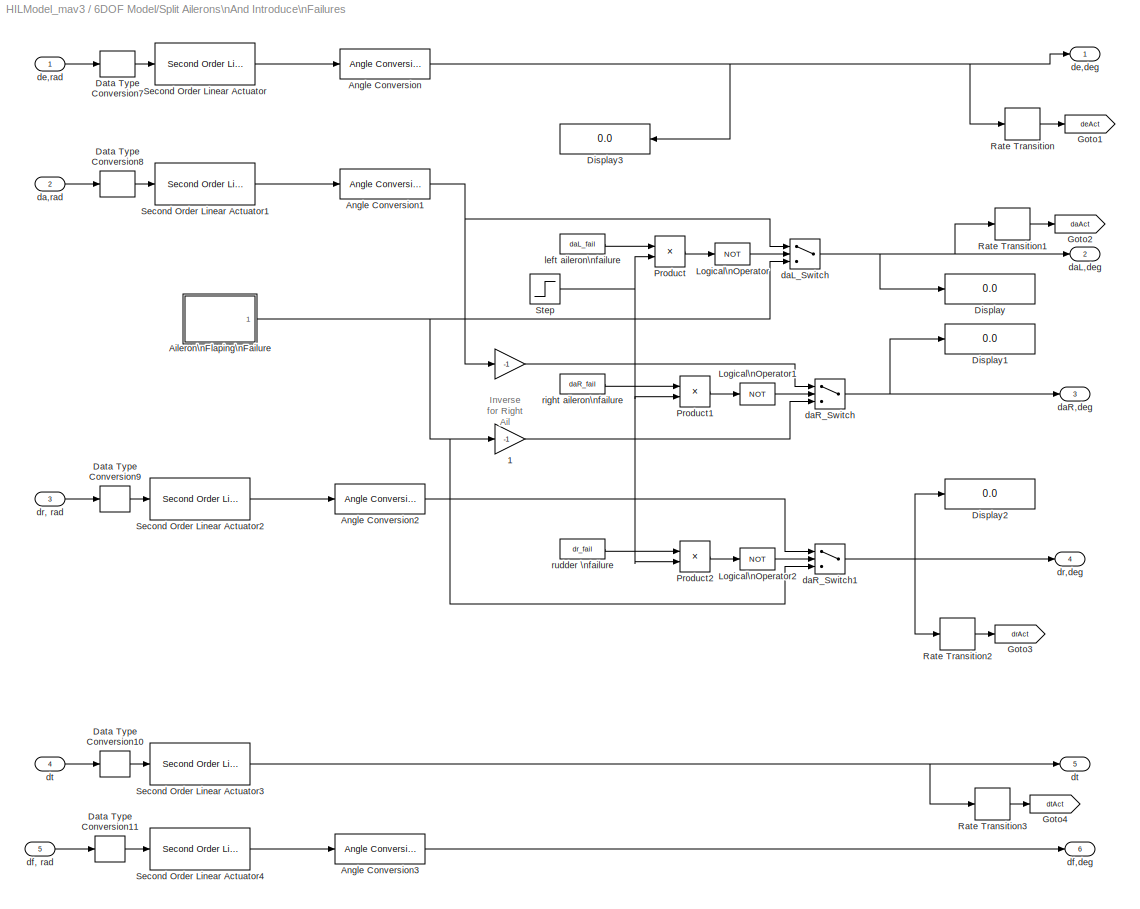
BLOCK [SubSystem] 6DOF Model/Split Ailerons\nAnd Introduce\nFailures
  FunctionWithSeparateData = off
  MaskHideContents = off
  MinAlgLoopOccurrences = off
  Opaque = off
  Ports = [5, 6]
  PropExecContextOutsideSubsystem = off
  RTWSystemCode = Auto
  RequestExecContextInheritance = off
  SID = 709
BLOCK [Gain] 6DOF Model/Split Ailerons\nAnd Introduce\nFailures/ 
  Gain = -1
  SID = 715
BLOCK [Gain] 6DOF Model/Split Ailerons\nAnd Introduce\nFailures/ 1
  Gain = -1
  SID = 716
BLOCK [SubSystem] 6DOF Model/Split Ailerons\nAnd Introduce\nFailures/Aileron\nFlaping\nFailure
  FunctionWithSeparateData = off
  MaskHideContents = off
  MinAlgLoopOccurrences = off
  Opaque = off
  Ports = [0, 1]
  PropExecContextOutsideSubsystem = off
  RTWSystemCode = Auto
  RequestExecContextInheritance = off
  SID = 717
BLOCK [DiscretePulseGenerator] 6DOF Model/Split Ailerons\nAnd Introduce\nFailures/Aileron\nFlaping\nFailure/Pulse\nGenerator1
  Amplitude = da_failamp
  Period = da_failper
  Ports = [0, 1]
  PulseType = Time based
  PulseWidth = 50
  SID = 718
BLOCK [Sum] 6DOF Model/Split Ailerons\nAnd Introduce\nFailures/Aileron\nFlaping\nFailure/Vair2
  Inputs = +++
  Ports = [3, 1]
  SID = 719
BLOCK [Outport] 6DOF Model/Split Ailerons\nAnd Introduce\nFailures/Aileron\nFlaping\nFailure/da, Fail, deg
  IconDisplay = Port number
  SID = 722
BLOCK [Constant] 6DOF Model/Split Ailerons\nAnd Introduce\nFailures/Aileron\nFlaping\nFailure/da_failbias
  SID = 720
  Value = da_failbias
BLOCK [Constant] 6DOF Model/Split Ailerons\nAnd Introduce\nFailures/Aileron\nFlaping\nFailure/da_failbias1
  SID = 721
  Value = 0
BLOCK [Reference] 6DOF Model/Split Ailerons\nAnd Introduce\nFailures/Angle Conversion  REF=aerolibconvert2/Angle Conversion
  IU = rad
  OU = deg
  Ports = [1, 1]
  SID = 723
  SourceBlock = aerolibconvert2/Angle Conversion
  SourceType = Angle Conversion
BLOCK [Reference] 6DOF Model/Split Ailerons\nAnd Introduce\nFailures/Angle Conversion1  REF=aerolibconvert2/Angle Conversion
  IU = rad
  OU = deg
  Ports = [1, 1]
  SID = 724
  SourceBlock = aerolibconvert2/Angle Conversion
  SourceType = Angle Conversion
BLOCK [Reference] 6DOF Model/Split Ailerons\nAnd Introduce\nFailures/Angle Conversion2  REF=aerolibconvert2/Angle Conversion
  IU = rad
  OU = deg
  Ports = [1, 1]
  SID = 725
  SourceBlock = aerolibconvert2/Angle Conversion
  SourceType = Angle Conversion
BLOCK [Reference] 6DOF Model/Split Ailerons\nAnd Introduce\nFailures/Angle Conversion3  REF=aerolibconvert2/Angle Conversion
  IU = rad
  OU = deg
  Ports = [1, 1]
  SID = 726
  SourceBlock = aerolibconvert2/Angle Conversion
  SourceType = Angle Conversion
BLOCK [DataTypeConversion] 6DOF Model/Split Ailerons\nAnd Introduce\nFailures/Data Type Conversion10
  OutDataTypeStr = double
  RndMeth = Floor
  SID = 727
  SaturateOnIntegerOverflow = off
BLOCK [DataTypeConversion] 6DOF Model/Split Ailerons\nAnd Introduce\nFailures/Data Type Conversion11
  OutDataTypeStr = double
  RndMeth = Floor
  SID = 728
  SaturateOnIntegerOverflow = off
BLOCK [DataTypeConversion] 6DOF Model/Split Ailerons\nAnd Introduce\nFailures/Data Type Conversion7
  OutDataTypeStr = double
  RndMeth = Floor
  SID = 729
  SaturateOnIntegerOverflow = off
BLOCK [DataTypeConversion] 6DOF Model/Split Ailerons\nAnd Introduce\nFailures/Data Type Conversion8
  OutDataTypeStr = double
  RndMeth = Floor
  SID = 730
  SaturateOnIntegerOverflow = off
BLOCK [DataTypeConversion] 6DOF Model/Split Ailerons\nAnd Introduce\nFailures/Data Type Conversion9
  OutDataTypeStr = double
  RndMeth = Floor
  SID = 731
  SaturateOnIntegerOverflow = off
BLOCK [Display] 6DOF Model/Split Ailerons\nAnd Introduce\nFailures/Display
  Decimation = 1
  Lockdown = off
  Ports = [1]
  SID = 732
BLOCK [Display] 6DOF Model/Split Ailerons\nAnd Introduce\nFailures/Display1
  Decimation = 1
  Lockdown = off
  Ports = [1]
  SID = 733
BLOCK [Display] 6DOF Model/Split Ailerons\nAnd Introduce\nFailures/Display2
  Decimation = 1
  Lockdown = off
  Ports = [1]
  SID = 734
BLOCK [Display] 6DOF Model/Split Ailerons\nAnd Introduce\nFailures/Display3
  Decimation = 1
  Lockdown = off
  Ports = [1]
  SID = 735
BLOCK [Goto] 6DOF Model/Split Ailerons\nAnd Introduce\nFailures/Goto1
  GotoTag = deAct
  SID = 736
  TagVisibility = global
BLOCK [Goto] 6DOF Model/Split Ailerons\nAnd Introduce\nFailures/Goto2
  GotoTag = daAct
  SID = 737
  TagVisibility = global
BLOCK [Goto] 6DOF Model/Split Ailerons\nAnd Introduce\nFailures/Goto3
  GotoTag = drAct
  SID = 738
  TagVisibility = global
BLOCK [Goto] 6DOF Model/Split Ailerons\nAnd Introduce\nFailures/Goto4
  GotoTag = dtAct
  SID = 739
  TagVisibility = global
BLOCK [Logic] 6DOF Model/Split Ailerons\nAnd Introduce\nFailures/Logical\nOperator
  AllPortsSameDT = off
  Operator = NOT
  OutDataTypeStr = boolean
  Ports = [1, 1]
  SID = 740
BLOCK [Logic] 6DOF Model/Split Ailerons\nAnd Introduce\nFailures/Logical\nOperator1
  AllPortsSameDT = off
  Operator = NOT
  OutDataTypeStr = boolean
  Ports = [1, 1]
  SID = 741
BLOCK [Logic] 6DOF Model/Split Ailerons\nAnd Introduce\nFailures/Logical\nOperator2
  AllPortsSameDT = off
  Operator = NOT
  OutDataTypeStr = boolean
  Ports = [1, 1]
  SID = 742
BLOCK [Product] 6DOF Model/Split Ailerons\nAnd Introduce\nFailures/Product
  InputSameDT = off
  OutDataTypeStr = Inherit: Inherit via internal rule
  Ports = [2, 1]
  SID = 743
  SaturateOnIntegerOverflow = off
BLOCK [Product] 6DOF Model/Split Ailerons\nAnd Introduce\nFailures/Product1
  InputSameDT = off
  OutDataTypeStr = Inherit: Inherit via internal rule
  Ports = [2, 1]
  SID = 744
  SaturateOnIntegerOverflow = off
BLOCK [Product] 6DOF Model/Split Ailerons\nAnd Introduce\nFailures/Product2
  InputSameDT = off
  OutDataTypeStr = Inherit: Inherit via internal rule
  Ports = [2, 1]
  SID = 745
  SaturateOnIntegerOverflow = off
BLOCK [RateTransition] 6DOF Model/Split Ailerons\nAnd Introduce\nFailures/Rate Transition
  OutPortSampleTime = apSampleTime
  SID = 746
BLOCK [RateTransition] 6DOF Model/Split Ailerons\nAnd Introduce\nFailures/Rate Transition1
  OutPortSampleTime = apSampleTime
  SID = 747
BLOCK [RateTransition] 6DOF Model/Split Ailerons\nAnd Introduce\nFailures/Rate Transition2
  OutPortSampleTime = apSampleTime
  SID = 748
BLOCK [RateTransition] 6DOF Model/Split Ailerons\nAnd Introduce\nFailures/Rate Transition3
  OutPortSampleTime = apSampleTime
  SID = 749
BLOCK [Reference] 6DOF Model/Split Ailerons\nAnd Introduce\nFailures/Second Order Linear Actuator  REF=aerolibactuator/Second Order Linear Actuator
  Ports = [1, 1]
  SID = 750
  SourceBlock = aerolibactuator/Second Order Linear Actuator
  SourceType = Second Order Linear Actuator
  fin_act_0 = 0
  wn_fin = 15
  z_fin = 0.8
BLOCK [Reference] 6DOF Model/Split Ailerons\nAnd Introduce\nFailures/Second Order Linear Actuator1  REF=aerolibactuator/Second Order Linear Actuator
  Ports = [1, 1]
  SID = 751
  SourceBlock = aerolibactuator/Second Order Linear Actuator
  SourceType = Second Order Linear Actuator
  fin_act_0 = 0
  wn_fin = 15
  z_fin = 0.8
BLOCK [Reference] 6DOF Model/Split Ailerons\nAnd Introduce\nFailures/Second Order Linear Actuator2  REF=aerolibactuator/Second Order Linear Actuator
  Ports = [1, 1]
  SID = 752
  SourceBlock = aerolibactuator/Second Order Linear Actuator
  SourceType = Second Order Linear Actuator
  fin_act_0 = 0
  wn_fin = 15
  z_fin = 0.8
BLOCK [Reference] 6DOF Model/Split Ailerons\nAnd Introduce\nFailures/Second Order Linear Actuator3  REF=aerolibactuator/Second Order Linear Actuator
  Ports = [1, 1]
  SID = 753
  SourceBlock = aerolibactuator/Second Order Linear Actuator
  SourceType = Second Order Linear Actuator
  fin_act_0 = 0
  wn_fin = 15
  z_fin = 0.8
BLOCK [Reference] 6DOF Model/Split Ailerons\nAnd Introduce\nFailures/Second Order Linear Actuator4  REF=aerolibactuator/Second Order Linear Actuator
  Ports = [1, 1]
  SID = 754
  SourceBlock = aerolibactuator/Second Order Linear Actuator
  SourceType = Second Order Linear Actuator
  fin_act_0 = 0
  wn_fin = 150
  z_fin = 0.7
BLOCK [Step] 6DOF Model/Split Ailerons\nAnd Introduce\nFailures/Step
  SID = 755
  Time = tfailure
BLOCK [Inport] 6DOF Model/Split Ailerons\nAnd Introduce\nFailures/da,rad
  IconDisplay = Port number
  Port = 2
  SID = 711
BLOCK [Outport] 6DOF Model/Split Ailerons\nAnd Introduce\nFailures/daL,deg
  IconDisplay = Port number
  Port = 2
  SID = 763
BLOCK [Switch] 6DOF Model/Split Ailerons\nAnd Introduce\nFailures/daL_Switch
  InputSameDT = off
  SID = 756
  SaturateOnIntegerOverflow = off
  Threshold = 0.5
BLOCK [Outport] 6DOF Model/Split Ailerons\nAnd Introduce\nFailures/daR,deg
  IconDisplay = Port number
  Port = 3
  SID = 764
BLOCK [Switch] 6DOF Model/Split Ailerons\nAnd Introduce\nFailures/daR_Switch
  InputSameDT = off
  SID = 757
  SaturateOnIntegerOverflow = off
  Threshold = 0.5
BLOCK [Switch] 6DOF Model/Split Ailerons\nAnd Introduce\nFailures/daR_Switch1
  InputSameDT = off
  SID = 758
  SaturateOnIntegerOverflow = off
  Threshold = 0.5
BLOCK [Outport] 6DOF Model/Split Ailerons\nAnd Introduce\nFailures/de,deg
  IconDisplay = Port number
  SID = 762
BLOCK [Inport] 6DOF Model/Split Ailerons\nAnd Introduce\nFailures/de,rad
  IconDisplay = Port number
  SID = 710
BLOCK [Inport] 6DOF Model/Split Ailerons\nAnd Introduce\nFailures/df, rad
  IconDisplay = Port number
  Port = 5
  SID = 714
BLOCK [Outport] 6DOF Model/Split Ailerons\nAnd Introduce\nFailures/df,deg
  IconDisplay = Port number
  Port = 6
  SID = 767
BLOCK [Inport] 6DOF Model/Split Ailerons\nAnd Introduce\nFailures/dr, rad
  IconDisplay = Port number
  Port = 3
  SID = 712
BLOCK [Outport] 6DOF Model/Split Ailerons\nAnd Introduce\nFailures/dr,deg
  IconDisplay = Port number
  Port = 4
  SID = 765
BLOCK [Inport] 6DOF Model/Split Ailerons\nAnd Introduce\nFailures/dt
  IconDisplay = Port number
  Port = 4
  SID = 713
BLOCK [Outport] 6DOF Model/Split Ailerons\nAnd Introduce\nFailures/dt 
  IconDisplay = Port number
  Port = 5
  SID = 766
BLOCK [Constant] 6DOF Model/Split Ailerons\nAnd Introduce\nFailures/left aileron\nfailure
  SID = 759
  Value = daL_fail
BLOCK [Constant] 6DOF Model/Split Ailerons\nAnd Introduce\nFailures/right aileron\nfailure
  SID = 760
  Value = daR_fail
BLOCK [Constant] 6DOF Model/Split Ailerons\nAnd Introduce\nFailures/rudder \nfailure
  SID = 761
  Value = dr_fail
BLOCK [SubSystem] 6DOF Model/Subsystem
  FunctionWithSeparateData = off
  MaskCallbackString = ||
  MaskEnableString = on,on,on
  MaskHideContents = off
  MaskIconFrame = on
  MaskIconOpaque = on
  MaskIconRotate = none
  MaskIconUnits = autoscale
  MaskPortRotate = default
  MaskPromptString = Noise Variance|Sample Time|Noise Seed
  MaskStyleString = edit,edit,edit
  MaskToolTipString = on,on,on
  MaskTunableValueString = on,on,on
  MaskValueString = [0.01 0.01 0.1]|SampleT|[132 564 987]
  MaskVariables = nv=@1;st=@2;ns=@3;
  MaskVisibilityString = on,on,on
  MinAlgLoopOccurrences = off
  Opaque = off
  Ports = [2, 2]
  PropExecContextOutsideSubsystem = off
  RTWSystemCode = Auto
  RequestExecContextInheritance = off
  SID = 768
BLOCK [Sum] 6DOF Model/Subsystem/Add
  InputSameDT = off
  OutDataTypeStr = Inherit: Inherit via internal rule
  Ports = [2, 1]
  SID = 771
  SaturateOnIntegerOverflow = off
BLOCK [Sum] 6DOF Model/Subsystem/Add2
  InputSameDT = off
  OutDataTypeStr = Inherit: Inherit via internal rule
  Ports = [2, 1]
  SID = 772
  SaturateOnIntegerOverflow = off
BLOCK [Sum] 6DOF Model/Subsystem/Add3
  InputSameDT = off
  OutDataTypeStr = Inherit: Inherit via internal rule
  Ports = [2, 1]
  SID = 773
  SaturateOnIntegerOverflow = off
BLOCK [Outport] 6DOF Model/Subsystem/Air Data
  IconDisplay = Port number
  Port = 2
  SID = 850
BLOCK [Outport] 6DOF Model/Subsystem/Air Sens
  IconDisplay = Port number
  SID = 849
BLOCK [SubSystem] 6DOF Model/Subsystem/Baro
  FunctionWithSeparateData = off
  MaskHideContents = off
  MinAlgLoopOccurrences = off
  Opaque = off
  Ports = [2, 1]
  PropExecContextOutsideSubsystem = off
  RTWSystemCode = Auto
  RequestExecContextInheritance = off
  SID = 774
BLOCK [SubSystem] 6DOF Model/Subsystem/Baro/Hi Temp\nCompensation
  FunctionWithSeparateData = off
  MaskCallbackString = |
  MaskDescription = This block implements a temperature compensation. It implmements the following equation:\n\nM_tc = M_raw - K_t(T - T_avg)
  MaskEnableString = on,on
  MaskHideContents = off
  MaskIconFrame = on
  MaskIconOpaque = on
  MaskIconRotate = none
  MaskIconUnits = autoscale
  MaskPortRotate = default
  MaskPromptString = Tempearature Coeficient (K_t)|Calibration Temperature Mean (T_avg)
  MaskStyleString = edit,edit
  MaskToolTipString = on,on
  MaskTunableValueString = on,on
  MaskValueString = barTGain2|barTMean2
  MaskVariables = alpha=@1;tempMean=@2;
  MaskVisibilityString = on,on
  MinAlgLoopOccurrences = off
  Opaque = off
  Ports = [2, 1]
  PropExecContextOutsideSubsystem = off
  RTWSystemCode = Auto
  RequestExecContextInheritance = off
  SID = 777
BLOCK [Sum] 6DOF Model/Subsystem/Baro/Hi Temp\nCompensation/Add2
  InputSameDT = off
  Inputs = -+
  OutDataTypeStr = single
  Ports = [2, 1]
  SID = 780
  SaturateOnIntegerOverflow = off
BLOCK [Constant] 6DOF Model/Subsystem/Baro/Hi Temp\nCompensation/Constant2
  OutDataTypeStr = single
  SID = 781
  Value = barAdjust
BLOCK [Product] 6DOF Model/Subsystem/Baro/Hi Temp\nCompensation/Divide1
  InputSameDT = off
  OutDataTypeStr = single
  Ports = [2, 1]
  RndMeth = Floor
  SID = 782
  SaturateOnIntegerOverflow = off
BLOCK [Constant] 6DOF Model/Subsystem/Baro/Hi Temp\nCompensation/Mean Temperature\nfor Calibration
  OutDataTypeStr = single
  SID = 783
  Value = tempMean
BLOCK [Outport] 6DOF Model/Subsystem/Baro/Hi Temp\nCompensation/Raw
  IconDisplay = Port number
  SID = 787
BLOCK [Inport] 6DOF Model/Subsystem/Baro/Hi Temp\nCompensation/Raw UC
  IconDisplay = Port number
  SID = 778
BLOCK [Sum] 6DOF Model/Subsystem/Baro/Hi Temp\nCompensation/Sum1
  IconShape = round
  InputSameDT = off
  Inputs = |+-
  OutDataTypeStr = single
  Ports = [2, 1]
  SID = 784
  SaturateOnIntegerOverflow = off
BLOCK [Sum] 6DOF Model/Subsystem/Baro/Hi Temp\nCompensation/Sum5
  IconShape = round
  InputSameDT = off
  Inputs = |++
  OutDataTypeStr = single
  Ports = [2, 1]
  SID = 785
  SaturateOnIntegerOverflow = off
BLOCK [Inport] 6DOF Model/Subsystem/Baro/Hi Temp\nCompensation/Temp (0.1 C)
  IconDisplay = Port number
  Port = 2
  SID = 779
BLOCK [Constant] 6DOF Model/Subsystem/Baro/Hi Temp\nCompensation/gains
  OutDataTypeStr = single
  SID = 786
  Value = alpha
BLOCK [Outport] 6DOF Model/Subsystem/Baro/Raw
  IconDisplay = Port number
  SID = 797
BLOCK [SubSystem] 6DOF Model/Subsystem/Baro/Subsystem2
  FunctionWithSeparateData = off
  MaskHideContents = off
  MinAlgLoopOccurrences = off
  Opaque = off
  Ports = [1, 1]
  PropExecContextOutsideSubsystem = off
  RTWSystemCode = Auto
  RequestExecContextInheritance = off
  SID = 788
BLOCK [Sum] 6DOF Model/Subsystem/Baro/Subsystem2/Add4
  InputSameDT = off
  Inputs = +-
  OutDataTypeStr = Inherit: Inherit via internal rule
  Ports = [2, 1]
  SID = 790
  SaturateOnIntegerOverflow = off
BLOCK [Display] 6DOF Model/Subsystem/Baro/Subsystem2/Display
  Decimation = 1
  Format = long
  Lockdown = off
  Ports = [1]
  SID = 791
BLOCK [Display] 6DOF Model/Subsystem/Baro/Subsystem2/Display1
  Decimation = 1
  Format = long
  Lockdown = off
  Ports = [1]
  SID = 792
BLOCK [Product] 6DOF Model/Subsystem/Baro/Subsystem2/Divide3
  InputSameDT = off
  Inputs = */
  OutDataTypeStr = single
  Ports = [2, 1]
  RndMeth = Floor
  SID = 793
  SaturateOnIntegerOverflow = off
BLOCK [Constant] 6DOF Model/Subsystem/Baro/Subsystem2/Gyro Gains3
  OutDataTypeStr = single
  SID = 794
  Value = baroScale
BLOCK [Constant] 6DOF Model/Subsystem/Baro/Subsystem2/Gyro Gains5
  OutDataTypeStr = single
  SID = 795
  Value = baroOffset
BLOCK [Inport] 6DOF Model/Subsystem/Baro/Subsystem2/comp
  IconDisplay = Port number
  SID = 789
BLOCK [Outport] 6DOF Model/Subsystem/Baro/Subsystem2/raw
  IconDisplay = Port number
  SID = 796
BLOCK [Inport] 6DOF Model/Subsystem/Baro/Temp (0.1 C)
  IconDisplay = Port number
  Port = 2
  SID = 776
BLOCK [Inport] 6DOF Model/Subsystem/Baro/static (Pa)
  IconDisplay = Port number
  SID = 775
BLOCK [DataTypeConversion] 6DOF Model/Subsystem/Data Type Conversion1
  OutDataTypeStr = int16
  RndMeth = Floor
  SID = 798
  SaturateOnIntegerOverflow = off
BLOCK [Demux] 6DOF Model/Subsystem/Demux
  DisplayOption = bar
  Outputs = 3
  Ports = [1, 3]
  SID = 799
BLOCK [Display] 6DOF Model/Subsystem/Display
  Decimation = 1
  Lockdown = off
  Ports = [1]
  SID = 800
BLOCK [Display] 6DOF Model/Subsystem/Display1
  Decimation = 1
  Lockdown = off
  Ports = [1]
  SID = 801
BLOCK [Display] 6DOF Model/Subsystem/Display2
  Decimation = 1
  Lockdown = off
  Ports = [1]
  SID = 802
BLOCK [Gain] 6DOF Model/Subsystem/Gain
  Gain = 10
  OutDataTypeStr = Inherit: Inherit via internal rule
  ParamDataTypeStr = Inherit: Inherit via internal rule
  SID = 803
  SaturateOnIntegerOverflow = off
BLOCK [Gain] 6DOF Model/Subsystem/Gain1
  Gain = .01
  OutDataTypeStr = Inherit: Inherit via internal rule
  ParamDataTypeStr = Inherit: Inherit via internal rule
  SID = 804
  SaturateOnIntegerOverflow = off
BLOCK [Mux] 6DOF Model/Subsystem/Mux
  DisplayOption = bar
  Inputs = 3
  Ports = [3, 1]
  SID = 805
BLOCK [Mux] 6DOF Model/Subsystem/Mux1
  DisplayOption = bar
  Inputs = 3
  Ports = [3, 1]
  SID = 806
BLOCK [Inport] 6DOF Model/Subsystem/Noise On
  IconDisplay = Port number
  Port = 2
  SID = 770
BLOCK [InportShadow] 6DOF Model/Subsystem/Noise On 
  IconDisplay = Port number
  LatchByDelayingOutsideSignal = off
  LatchInputForFeedbackSignals = off
  Port = 2
  SID = 807
BLOCK [InportShadow] 6DOF Model/Subsystem/Noise On  
  IconDisplay = Port number
  LatchByDelayingOutsideSignal = off
  LatchInputForFeedbackSignals = off
  Port = 2
  SID = 808
BLOCK [SubSystem] 6DOF Model/Subsystem/Pitot
  FunctionWithSeparateData = off
  MaskHideContents = off
  MinAlgLoopOccurrences = off
  Opaque = off
  Ports = [2, 1]
  PropExecContextOutsideSubsystem = off
  RTWSystemCode = Auto
  RequestExecContextInheritance = off
  SID = 809
BLOCK [Display] 6DOF Model/Subsystem/Pitot/Display
  Decimation = 1
  Lockdown = off
  Ports = [1]
  SID = 812
BLOCK [Display] 6DOF Model/Subsystem/Pitot/Display1
  Decimation = 1
  Lockdown = off
  Ports = [1]
  SID = 813
BLOCK [Display] 6DOF Model/Subsystem/Pitot/Display2
  Decimation = 1
  Lockdown = off
  Ports = [1]
  SID = 814
BLOCK [Inport] 6DOF Model/Subsystem/Pitot/Dynamic (Pa)
  IconDisplay = Port number
  SID = 810
BLOCK [SubSystem] 6DOF Model/Subsystem/Pitot/Hi Temp\nCompensation1
  FunctionWithSeparateData = off
  MaskHideContents = off
  MinAlgLoopOccurrences = off
  Opaque = off
  Ports = [2, 1]
  PropExecContextOutsideSubsystem = off
  RTWSystemCode = Auto
  RequestExecContextInheritance = off
  SID = 815
BLOCK [Sum] 6DOF Model/Subsystem/Pitot/Hi Temp\nCompensation1/Add2
  InputSameDT = off
  Inputs = -+
  OutDataTypeStr = single
  Ports = [2, 1]
  SID = 818
  SaturateOnIntegerOverflow = off
BLOCK [Constant] 6DOF Model/Subsystem/Pitot/Hi Temp\nCompensation1/Constant2
  OutDataTypeStr = single
  SID = 819
  Value = 0
BLOCK [Product] 6DOF Model/Subsystem/Pitot/Hi Temp\nCompensation1/Divide1
  InputSameDT = off
  OutDataTypeStr = single
  Ports = [2, 1]
  RndMeth = Floor
  SID = 820
  SaturateOnIntegerOverflow = off
BLOCK [Constant] 6DOF Model/Subsystem/Pitot/Hi Temp\nCompensation1/Mean Temperature\nfor Calibration
  OutDataTypeStr = single
  SID = 821
  Value = pitTMean2
BLOCK [Outport] 6DOF Model/Subsystem/Pitot/Hi Temp\nCompensation1/Raw
  IconDisplay = Port number
  SID = 825
BLOCK [Inport] 6DOF Model/Subsystem/Pitot/Hi Temp\nCompensation1/Raw UC
  IconDisplay = Port number
  SID = 816
BLOCK [Sum] 6DOF Model/Subsystem/Pitot/Hi Temp\nCompensation1/Sum1
  IconShape = round
  InputSameDT = off
  Inputs = |+-
  OutDataTypeStr = single
  Ports = [2, 1]
  SID = 822
  SaturateOnIntegerOverflow = off
BLOCK [Sum] 6DOF Model/Subsystem/Pitot/Hi Temp\nCompensation1/Sum5
  IconShape = round
  InputSameDT = off
  Inputs = |++
  OutDataTypeStr = single
  Ports = [2, 1]
  SID = 823
  SaturateOnIntegerOverflow = off
BLOCK [Inport] 6DOF Model/Subsystem/Pitot/Hi Temp\nCompensation1/Temp (0.1 C)
  IconDisplay = Port number
  Port = 2
  SID = 817
BLOCK [Constant] 6DOF Model/Subsystem/Pitot/Hi Temp\nCompensation1/gains
  OutDataTypeStr = single
  SID = 824
  Value = pitTGain2
BLOCK [Outport] 6DOF Model/Subsystem/Pitot/Raw
  IconDisplay = Port number
  SID = 835
BLOCK [SubSystem] 6DOF Model/Subsystem/Pitot/Subsystem1
  FunctionWithSeparateData = off
  MaskHideContents = off
  MinAlgLoopOccurrences = off
  Opaque = off
  Ports = [1, 1]
  PropExecContextOutsideSubsystem = off
  RTWSystemCode = Auto
  RequestExecContextInheritance = off
  SID = 826
BLOCK [Sum] 6DOF Model/Subsystem/Pitot/Subsystem1/Add4
  InputSameDT = off
  Inputs = +-
  OutDataTypeStr = Inherit: Inherit via internal rule
  Ports = [2, 1]
  SID = 828
  SaturateOnIntegerOverflow = off
BLOCK [Display] 6DOF Model/Subsystem/Pitot/Subsystem1/Display
  Decimation = 1
  Format = long
  Lockdown = off
  Ports = [1]
  SID = 829
BLOCK [Display] 6DOF Model/Subsystem/Pitot/Subsystem1/Display1
  Decimation = 1
  Format = long
  Lockdown = off
  Ports = [1]
  SID = 830
BLOCK [Product] 6DOF Model/Subsystem/Pitot/Subsystem1/Divide3
  InputSameDT = off
  Inputs = */
  OutDataTypeStr = single
  Ports = [2, 1]
  RndMeth = Floor
  SID = 831
  SaturateOnIntegerOverflow = off
BLOCK [Constant] 6DOF Model/Subsystem/Pitot/Subsystem1/Gyro Gains3
  OutDataTypeStr = single
  SID = 832
  Value = pitotScale
BLOCK [Constant] 6DOF Model/Subsystem/Pitot/Subsystem1/Gyro Gains5
  OutDataTypeStr = single
  SID = 833
  Value = pitotOffset
BLOCK [Inport] 6DOF Model/Subsystem/Pitot/Subsystem1/comp
  IconDisplay = Port number
  SID = 827
BLOCK [Outport] 6DOF Model/Subsystem/Pitot/Subsystem1/raw
  IconDisplay = Port number
  SID = 834
BLOCK [Inport] 6DOF Model/Subsystem/Pitot/Temp (0.1 C)
  IconDisplay = Port number
  Port = 2
  SID = 811
BLOCK [RandomNumber] 6DOF Model/Subsystem/Random\nNumber
  SID = 836
  SampleTime = st
  Seed = ns(1)
  Variance = nv(1)
BLOCK [RandomNumber] 6DOF Model/Subsystem/Random\nNumber2
  SID = 837
  SampleTime = st
  Seed = ns(2)
  Variance = nv(2)
BLOCK [RandomNumber] 6DOF Model/Subsystem/Random\nNumber3
  SID = 838
  SampleTime = st
  Seed = ns(3)
  Variance = nv(3)
BLOCK [Inport] 6DOF Model/Subsystem/Signal In
  IconDisplay = Port number
  SID = 769
BLOCK [SubSystem] 6DOF Model/Subsystem/Subsystem
  FunctionWithSeparateData = off
  MaskHideContents = off
  MinAlgLoopOccurrences = off
  Opaque = off
  Ports = [1, 1]
  PropExecContextOutsideSubsystem = off
  RTWSystemCode = Auto
  RequestExecContextInheritance = off
  SID = 839
BLOCK [Sum] 6DOF Model/Subsystem/Subsystem/Add5
  InputSameDT = off
  Inputs = +-
  OutDataTypeStr = Inherit: Inherit via internal rule
  Ports = [2, 1]
  SID = 841
  SaturateOnIntegerOverflow = off
BLOCK [Product] 6DOF Model/Subsystem/Subsystem/Divide4
  InputSameDT = off
  Inputs = */
  OutDataTypeStr = single
  Ports = [2, 1]
  RndMeth = Floor
  SID = 842
  SaturateOnIntegerOverflow = off
BLOCK [Constant] 6DOF Model/Subsystem/Subsystem/Gyro Gains4
  OutDataTypeStr = single
  SID = 843
  Value = tempScale
BLOCK [Constant] 6DOF Model/Subsystem/Subsystem/Gyro Gains6
  OutDataTypeStr = single
  SID = 844
  Value = tempOffset
BLOCK [Outport] 6DOF Model/Subsystem/Subsystem/Raw
  IconDisplay = Port number
  SID = 845
BLOCK [Inport] 6DOF Model/Subsystem/Subsystem/Temp (0.1 C)
  IconDisplay = Port number
  SID = 840
BLOCK [Switch] 6DOF Model/Subsystem/Switch
  InputSameDT = off
  SID = 846
  SaturateOnIntegerOverflow = off
  Threshold = 0.3
BLOCK [Switch] 6DOF Model/Subsystem/Switch2
  InputSameDT = off
  SID = 847
  SaturateOnIntegerOverflow = off
  Threshold = 0.3
BLOCK [Switch] 6DOF Model/Subsystem/Switch3
  InputSameDT = off
  SID = 848
  SaturateOnIntegerOverflow = off
  Threshold = 0.3
BLOCK [SubSystem] 6DOF Model/Subsystem2
  FunctionWithSeparateData = off
  MaskCallbackString = ||
  MaskEnableString = on,on,on
  MaskHideContents = off
  MaskIconFrame = on
  MaskIconOpaque = on
  MaskIconRotate = none
  MaskIconUnits = autoscale
  MaskPortRotate = default
  MaskPromptString = Noise Variance|Sample Time|Noise Seed
  MaskStyleString = edit,edit,edit
  MaskToolTipString = on,on,on
  MaskTunableValueString = on,on,on
  MaskValueString = [0.0001 0.00003 0.0001]|SampleT|[132 564 987]
  MaskVariables = nv=@1;st=@2;ns=@3;
  MaskVisibilityString = on,on,on
  MinAlgLoopOccurrences = off
  Opaque = off
  Ports = [2, 1]
  PropExecContextOutsideSubsystem = off
  RTWSystemCode = Auto
  RequestExecContextInheritance = off
  SID = 851
BLOCK [Sum] 6DOF Model/Subsystem2/Add
  InputSameDT = off
  OutDataTypeStr = Inherit: Inherit via internal rule
  Ports = [2, 1]
  SID = 854
  SaturateOnIntegerOverflow = off
BLOCK [DataTypeConversion] 6DOF Model/Subsystem2/Data Type Conversion4
  OutDataTypeStr = single
  RndMeth = Floor
  SID = 855
  SaturateOnIntegerOverflow = off
BLOCK [Inport] 6DOF Model/Subsystem2/Noise On
  IconDisplay = Port number
  Port = 2
  SID = 853
BLOCK [RandomNumber] 6DOF Model/Subsystem2/Random\nNumber
  SID = 856
  SampleTime = st
  Seed = ns
  Variance = nv
BLOCK [Inport] 6DOF Model/Subsystem2/Signal In
  IconDisplay = Port number
  SID = 852
BLOCK [Outport] 6DOF Model/Subsystem2/Signal Out
  IconDisplay = Port number
  SID = 859
BLOCK [InportShadow] 6DOF Model/Subsystem2/Signal1
  IconDisplay = Port number
  LatchByDelayingOutsideSignal = off
  LatchInputForFeedbackSignals = off
  Port = 1
  SID = 857
BLOCK [Switch] 6DOF Model/Subsystem2/Switch
  InputSameDT = off
  SID = 858
  SaturateOnIntegerOverflow = off
  Threshold = 0.3
BLOCK [SubSystem] 6DOF Model/Subsystem3
  FunctionWithSeparateData = off
  MaskCallbackString = |||||||||
  MaskEnableString = on,on,on,on,on,on,on,on,on,on
  MaskHideContents = off
  MaskIconFrame = on
  MaskIconOpaque = on
  MaskIconRotate = none
  MaskIconUnits = autoscale
  MaskPortRotate = default
  MaskPromptString = Accelerometer Noise Variance|Accelerometer Noise Seed|Accelerometer Gain|Gyro Noise Variance|Gyro Noise Seed|Gyro Gain|Magnetometer Noise Variance|Magnetometer Noise Seed|Magnetometer Gain|Sample Time
  MaskStyleString = edit,edit,edit,edit,edit,edit,edit,edit,edit,edit
  MaskToolTipString = on,on,on,on,on,on,on,on,on,on
  MaskTunableValueString = on,on,on,on,on,on,on,on,on,on
  MaskValueString = [0.1 0.1 0.1]|[132 564 987]|cubeAccelGain16405|[0.1 0.1 0.1]|[132 564 987]|cubeGyroGain16405|[0.1 0.1 0.1]|[132 564 987]|cubeMagGain16405|SampleT
  MaskVariables = accelVar=@1;accelSeed=@2;hilCubeAccelGain=@3;gyroVar=@4;gyroSeed=@5;hilCubeGyroGain=@6;magVar=@7;magSeed=@8;hilCubeMagGain=@9;st=@10;
  MaskVisibilityString = on,on,on,on,on,on,on,on,on,on
  MinAlgLoopOccurrences = off
  Opaque = off
  Ports = [4, 4]
  PropExecContextOutsideSubsystem = off
  RTWSystemCode = Auto
  RequestExecContextInheritance = off
  SID = 860
BLOCK [Outport] 6DOF Model/Subsystem3/Acccel (Raw)
  IconDisplay = Port number
  SID = 904
BLOCK [Inport] 6DOF Model/Subsystem3/Accel
  IconDisplay = Port number
  Port = 2
  SID = 862
BLOCK [InportShadow] 6DOF Model/Subsystem3/Accel 
  IconDisplay = Port number
  LatchByDelayingOutsideSignal = off
  LatchInputForFeedbackSignals = off
  Port = 2
  SID = 865
BLOCK [Sum] 6DOF Model/Subsystem3/Add
  InputSameDT = off
  OutDataTypeStr = Inherit: Inherit via internal rule
  Ports = [2, 1]
  SID = 866
  SaturateOnIntegerOverflow = off
BLOCK [Sum] 6DOF Model/Subsystem3/Add1
  InputSameDT = off
  OutDataTypeStr = Inherit: Inherit via internal rule
  Ports = [2, 1]
  SID = 867
  SaturateOnIntegerOverflow = off
BLOCK [Sum] 6DOF Model/Subsystem3/Add2
  InputSameDT = off
  OutDataTypeStr = Inherit: Inherit via internal rule
  Ports = [2, 1]
  SID = 868
  SaturateOnIntegerOverflow = off
BLOCK [DataTypeConversion] 6DOF Model/Subsystem3/Data Type Conversion3
  OutDataTypeStr = int16
  RndMeth = Floor
  SID = 869
  SaturateOnIntegerOverflow = off
BLOCK [DataTypeConversion] 6DOF Model/Subsystem3/Data Type Conversion4
  OutDataTypeStr = int16
  RndMeth = Floor
  SID = 870
  SaturateOnIntegerOverflow = off
BLOCK [DataTypeConversion] 6DOF Model/Subsystem3/Data Type Conversion5
  OutDataTypeStr = int16
  RndMeth = Floor
  SID = 871
  SaturateOnIntegerOverflow = off
BLOCK [Product] 6DOF Model/Subsystem3/Divide
  InputSameDT = off
  Inputs = */
  OutDataTypeStr = single
  Ports = [2, 1]
  RndMeth = Floor
  SID = 872
  SaturateOnIntegerOverflow = off
BLOCK [Product] 6DOF Model/Subsystem3/Divide1
  InputSameDT = off
  Inputs = */
  OutDataTypeStr = single
  Ports = [2, 1]
  RndMeth = Floor
  SID = 873
  SaturateOnIntegerOverflow = off
BLOCK [Product] 6DOF Model/Subsystem3/Divide2
  InputSameDT = off
  Inputs = */
  OutDataTypeStr = single
  Ports = [2, 1]
  RndMeth = Floor
  SID = 874
  SaturateOnIntegerOverflow = off
BLOCK [Inport] 6DOF Model/Subsystem3/Gyro
  IconDisplay = Port number
  SID = 861
BLOCK [InportShadow] 6DOF Model/Subsystem3/Gyro 
  IconDisplay = Port number
  LatchByDelayingOutsideSignal = off
  LatchInputForFeedbackSignals = off
  Port = 1
  SID = 875
BLOCK [Outport] 6DOF Model/Subsystem3/Gyro (Raw)  
  IconDisplay = Port number
  Port = 2
  SID = 905
BLOCK [Constant] 6DOF Model/Subsystem3/Gyro Gains
  OutDataTypeStr = single
  SID = 876
  Value = hilCubeGyroGain
BLOCK [Constant] 6DOF Model/Subsystem3/Gyro Gains1
  OutDataTypeStr = single
  SID = 877
  Value = hilCubeAccelGain
BLOCK [Constant] 6DOF Model/Subsystem3/Gyro Gains2
  OutDataTypeStr = single
  SID = 878
  Value = hilCubeMagGain
BLOCK [Inport] 6DOF Model/Subsystem3/Mag
  IconDisplay = Port number
  Port = 3
  SID = 863
BLOCK [InportShadow] 6DOF Model/Subsystem3/Mag 
  IconDisplay = Port number
  LatchByDelayingOutsideSignal = off
  LatchInputForFeedbackSignals = off
  Port = 3
  SID = 879
BLOCK [Outport] 6DOF Model/Subsystem3/Mags (Raw)
  IconDisplay = Port number
  Port = 3
  SID = 906
BLOCK [Inport] 6DOF Model/Subsystem3/Noise On
  IconDisplay = Port number
  Port = 4
  SID = 864
BLOCK [InportShadow] 6DOF Model/Subsystem3/Noise On 
  IconDisplay = Port number
  LatchByDelayingOutsideSignal = off
  LatchInputForFeedbackSignals = off
  Port = 4
  SID = 880
BLOCK [InportShadow] 6DOF Model/Subsystem3/Noise On  
  IconDisplay = Port number
  LatchByDelayingOutsideSignal = off
  LatchInputForFeedbackSignals = off
  Port = 4
  SID = 881
BLOCK [Outport] 6DOF Model/Subsystem3/PQR 
  IconDisplay = Port number
  Port = 4
  SID = 907
BLOCK [RandomNumber] 6DOF Model/Subsystem3/Random\nNumber
  SID = 882
  SampleTime = st
  Seed = accelSeed
  Variance = accelVar
BLOCK [RandomNumber] 6DOF Model/Subsystem3/Random\nNumber1
  SID = 883
  SampleTime = st
  Seed = gyroSeed
  Variance = gyroVar
BLOCK [RandomNumber] 6DOF Model/Subsystem3/Random\nNumber2
  SID = 884
  SampleTime = st
  Seed = magSeed
  Variance = magVar
BLOCK [Reshape] 6DOF Model/Subsystem3/Reshape
  Ports = [1, 1]
  SID = 885
BLOCK [SubSystem] 6DOF Model/Subsystem3/Rotate Cube Axis
  FunctionWithSeparateData = off
  MaskHideContents = off
  MinAlgLoopOccurrences = off
  Opaque = off
  Ports = [1, 1]
  PropExecContextOutsideSubsystem = off
  RTWSystemCode = Auto
  RequestExecContextInheritance = off
  SID = 886
BLOCK [Inport] 6DOF Model/Subsystem3/Rotate Cube Axis/Raw
  IconDisplay = Port number
  SID = 887
BLOCK [Outport] 6DOF Model/Subsystem3/Rotate Cube Axis/Rotated
  IconDisplay = Port number
  SID = 890
BLOCK [Selector] 6DOF Model/Subsystem3/Rotate Cube Axis/Selector
  IndexOptions = Index vector (dialog)
  Indices = [2 1 3]
  InputPortWidth = 3
  OutputSizes = 1
  Ports = [1, 1]
  SID = 888
BLOCK [Gain] 6DOF Model/Subsystem3/Rotate Cube Axis/[ -1 -1 -1]
  Gain = [-1 -1 -1]
  OutDataTypeStr = Inherit: Inherit via internal rule
  ParamDataTypeStr = Inherit: Inherit via internal rule
  SID = 889
  SaturateOnIntegerOverflow = off
BLOCK [SubSystem] 6DOF Model/Subsystem3/Rotate Cube Axis1
  FunctionWithSeparateData = off
  MaskHideContents = off
  MinAlgLoopOccurrences = off
  Opaque = off
  Ports = [1, 1]
  PropExecContextOutsideSubsystem = off
  RTWSystemCode = Auto
  RequestExecContextInheritance = off
  SID = 891
BLOCK [Inport] 6DOF Model/Subsystem3/Rotate Cube Axis1/Raw
  IconDisplay = Port number
  SID = 892
BLOCK [Outport] 6DOF Model/Subsystem3/Rotate Cube Axis1/Rotated
  IconDisplay = Port number
  SID = 895
BLOCK [Selector] 6DOF Model/Subsystem3/Rotate Cube Axis1/Selector
  IndexOptions = Index vector (dialog)
  Indices = [2 1 3]
  InputPortWidth = 3
  OutputSizes = 1
  Ports = [1, 1]
  SID = 893
BLOCK [Gain] 6DOF Model/Subsystem3/Rotate Cube Axis1/[ -1 -1 -1]
  Gain = [-1 -1 -1]
  OutDataTypeStr = Inherit: Inherit via internal rule
  ParamDataTypeStr = Inherit: Inherit via internal rule
  SID = 894
  SaturateOnIntegerOverflow = off
BLOCK [SubSystem] 6DOF Model/Subsystem3/Rotate Cube Axis2
  FunctionWithSeparateData = off
  MaskHideContents = off
  MinAlgLoopOccurrences = off
  Opaque = off
  Ports = [1, 1]
  PropExecContextOutsideSubsystem = off
  RTWSystemCode = Auto
  RequestExecContextInheritance = off
  SID = 896
BLOCK [Inport] 6DOF Model/Subsystem3/Rotate Cube Axis2/Raw
  IconDisplay = Port number
  SID = 897
BLOCK [Outport] 6DOF Model/Subsystem3/Rotate Cube Axis2/Rotated
  IconDisplay = Port number
  SID = 900
BLOCK [Selector] 6DOF Model/Subsystem3/Rotate Cube Axis2/Selector
  IndexOptions = Index vector (dialog)
  Indices = [2 1 3]
  InputPortWidth = 3
  OutputSizes = 1
  Ports = [1, 1]
  SID = 898
BLOCK [Gain] 6DOF Model/Subsystem3/Rotate Cube Axis2/[ -1 -1 -1]
  Gain = [-1 -1 -1]
  OutDataTypeStr = Inherit: Inherit via internal rule
  ParamDataTypeStr = Inherit: Inherit via internal rule
  SID = 899
  SaturateOnIntegerOverflow = off
BLOCK [Switch] 6DOF Model/Subsystem3/Switch
  InputSameDT = off
  SID = 901
  SaturateOnIntegerOverflow = off
  Threshold = 0.3
BLOCK [Switch] 6DOF Model/Subsystem3/Switch1
  InputSameDT = off
  SID = 902
  SaturateOnIntegerOverflow = off
  Threshold = 0.3
BLOCK [Switch] 6DOF Model/Subsystem3/Switch2
  InputSameDT = off
  SID = 903
  SaturateOnIntegerOverflow = off
  Threshold = 0.3
BLOCK [SubSystem] 6DOF Model/Subsystem5
  FunctionWithSeparateData = off
  MaskCallbackString = ||
  MaskEnableString = on,on,on
  MaskHideContents = off
  MaskIconFrame = on
  MaskIconOpaque = on
  MaskIconRotate = none
  MaskIconUnits = autoscale
  MaskPortRotate = default
  MaskPromptString = Noise Variance|Sample Time|Noise Seed
  MaskStyleString = edit,edit,edit
  MaskToolTipString = on,on,on
  MaskTunableValueString = on,on,on
  MaskValueString = [0.01 0.01 0.01]|SampleT|[321564 6546 98798]
  MaskVariables = nv=@1;st=@2;ns=@3;
  MaskVisibilityString = on,on,on
  MinAlgLoopOccurrences = off
  Opaque = off
  Ports = [2, 1]
  PropExecContextOutsideSubsystem = off
  RTWSystemCode = Auto
  RequestExecContextInheritance = off
  SID = 908
BLOCK [Sum] 6DOF Model/Subsystem5/Add
  InputSameDT = off
  OutDataTypeStr = Inherit: Inherit via internal rule
  Ports = [2, 1]
  SID = 911
  SaturateOnIntegerOverflow = off
BLOCK [DataTypeConversion] 6DOF Model/Subsystem5/Data Type Conversion4
  OutDataTypeStr = single
  RndMeth = Floor
  SID = 912
  SaturateOnIntegerOverflow = off
BLOCK [Inport] 6DOF Model/Subsystem5/Noise On
  IconDisplay = Port number
  Port = 2
  SID = 910
BLOCK [RandomNumber] 6DOF Model/Subsystem5/Random\nNumber
  SID = 913
  SampleTime = st
  Seed = ns
  Variance = nv
BLOCK [Inport] 6DOF Model/Subsystem5/Signal In
  IconDisplay = Port number
  SID = 909
BLOCK [Outport] 6DOF Model/Subsystem5/Signal Out
  IconDisplay = Port number
  SID = 916
BLOCK [InportShadow] 6DOF Model/Subsystem5/Signal1
  IconDisplay = Port number
  LatchByDelayingOutsideSignal = off
  LatchInputForFeedbackSignals = off
  Port = 1
  SID = 914
BLOCK [Switch] 6DOF Model/Subsystem5/Switch
  InputSameDT = off
  SID = 915
  SaturateOnIntegerOverflow = off
  Threshold = 0.3
BLOCK [SubSystem] 6DOF Model/Subsystem6
  FunctionWithSeparateData = off
  MaskCallbackString = ||
  MaskEnableString = on,on,on
  MaskHideContents = off
  MaskIconFrame = on
  MaskIconOpaque = on
  MaskIconRotate = none
  MaskIconUnits = autoscale
  MaskPortRotate = default
  MaskPromptString = Noise Variance|Sample Time|Noise Seed
  MaskStyleString = edit,edit,edit
  MaskToolTipString = on,on,on
  MaskTunableValueString = on,on,on
  MaskValueString = [0.05 0.05 0.07]|SampleT|[321564]
  MaskVariables = nv=@1;st=@2;ns=@3;
  MaskVisibilityString = on,on,on
  MinAlgLoopOccurrences = off
  Opaque = off
  Ports = [2, 1]
  PropExecContextOutsideSubsystem = off
  RTWSystemCode = Auto
  RequestExecContextInheritance = off
  SID = 917
BLOCK [Sum] 6DOF Model/Subsystem6/Add
  InputSameDT = off
  OutDataTypeStr = Inherit: Inherit via internal rule
  Ports = [2, 1]
  SID = 920
  SaturateOnIntegerOverflow = off
BLOCK [DataTypeConversion] 6DOF Model/Subsystem6/Data Type Conversion4
  OutDataTypeStr = single
  RndMeth = Floor
  SID = 921
  SaturateOnIntegerOverflow = off
BLOCK [Inport] 6DOF Model/Subsystem6/Noise On
  IconDisplay = Port number
  Port = 2
  SID = 919
BLOCK [RandomNumber] 6DOF Model/Subsystem6/Random\nNumber
  SID = 922
  SampleTime = st
  Seed = ns
  Variance = nv
BLOCK [Inport] 6DOF Model/Subsystem6/Signal In
  IconDisplay = Port number
  SID = 918
BLOCK [Outport] 6DOF Model/Subsystem6/Signal Out
  IconDisplay = Port number
  SID = 925
BLOCK [InportShadow] 6DOF Model/Subsystem6/Signal1
  IconDisplay = Port number
  LatchByDelayingOutsideSignal = off
  LatchInputForFeedbackSignals = off
  Port = 1
  SID = 923
BLOCK [Switch] 6DOF Model/Subsystem6/Switch
  InputSameDT = off
  SID = 924
  SaturateOnIntegerOverflow = off
  Threshold = 0.3
BLOCK [Outport] 6DOF Model/Vned True
  IconDisplay = Port number
  Port = 5
  SID = 930
BLOCK [Inport] 6DOF Model/Wind On?
  IconDisplay = Port number
  Port = 7
  SID = 8
BLOCK [Outport] 6DOF Model/XYZ true
  IconDisplay = Port number
  Port = 7
  SID = 932
BLOCK [Inport] 6DOF Model/da,rad
  IconDisplay = Port number
  Port = 2
  SID = 3
BLOCK [Inport] 6DOF Model/de,rad
  IconDisplay = Port number
  Port = 4
  SID = 5
BLOCK [Inport] 6DOF Model/df, rad
  IconDisplay = Port number
  Port = 5
  SID = 6
BLOCK [Inport] 6DOF Model/dr, rad
  IconDisplay = Port number
  Port = 3
  SID = 4
BLOCK [Inport] 6DOF Model/dt
  IconDisplay = Port number
  SID = 2
BLOCK [Outport] 6DOF Model/pqr, true
  IconDisplay = Port number
  Port = 6
  SID = 931
BLOCK [Reference] Angle Conversion  REF=aerolibconvert2/Angle Conversion
  IU = rad
  OU = deg
  Ports = [1, 1]
  SID = 933
  SourceBlock = aerolibconvert2/Angle Conversion
  SourceType = Angle Conversion
BLOCK [Reference] Angle Conversion1  REF=aerolibconvert2/Angle Conversion
  IU = rad
  OU = deg
  Ports = [1, 1]
  SID = 934
  SourceBlock = aerolibconvert2/Angle Conversion
  SourceType = Angle Conversion
BLOCK [Reference] Angle Conversion2  REF=aerolibconvert2/Angle Conversion
  IU = rad
  OU = deg
  Ports = [1, 1]
  SID = 935
  SourceBlock = aerolibconvert2/Angle Conversion
  SourceType = Angle Conversion
BLOCK [Constant] Constant1
  SID = 936
  SampleTime = SampleT
  Value = 0
BLOCK [Constant] Constant33
  SID = 937
  SampleTime = SampleT
  Value = 0
BLOCK [Constant] Constant34
  SID = 938
  SampleTime = SampleT
BLOCK [Constant] Constant35
  SID = 939
  SampleTime = SampleT
  Value = 0
BLOCK [Constant] Constant36
  SID = 940
  SampleTime = SampleT
BLOCK [Constant] Constant4
  SID = 941
  Value = 0
BLOCK [Constant] Constant5
  SID = 942
  SampleTime = SampleT
BLOCK [Scope] Control Surface\nCmds
  DataFormat = StructureWithTime
  Floating = off
  MaxDataPoints = 25000
  NumInputPorts = 4
  Ports = [4]
  SID = 943
  SampleTime = 0
  TimeRange = 70
  YMax = 0.545~1.65~1.57~0.55
  YMin = 0.475~1.425~1.44~0.05
  ZoomMode = yonly
BLOCK [SubSystem] Convert to Rad
  FunctionWithSeparateData = off
  MaskCallbackString = |
  MaskEnableString = on,on
  MaskHideContents = off
  MaskIconFrame = on
  MaskIconOpaque = on
  MaskIconRotate = none
  MaskIconUnits = autoscale
  MaskPortRotate = default
  MaskPromptString = Slope|Intercept
  MaskStyleString = edit,edit
  MaskToolTipString = on,on
  MaskTunableValueString = on,on
  MaskValueString = mPWMdt|bPWMdt
  MaskVariables = slopem=@1;interceptb=@2;
  MaskVisibilityString = on,on
  MinAlgLoopOccurrences = off
  Opaque = off
  Ports = [1, 1]
  PropExecContextOutsideSubsystem = off
  RTWSystemCode = Auto
  RequestExecContextInheritance = off
  SID = 944
BLOCK [Sum] Convert to Rad/Add
  InputSameDT = off
  OutDataTypeStr = Inherit: Inherit via internal rule
  Ports = [2, 1]
  SID = 946
  SaturateOnIntegerOverflow = off
BLOCK [Outport] Convert to Rad/Angle (rad)
  IconDisplay = Port number
  SID = 951
BLOCK [Constant] Convert to Rad/Constant1
  SID = 947
  Value = slopem
BLOCK [Constant] Convert to Rad/Constant2
  SID = 948
  Value = interceptb
BLOCK [DataTypeConversion] Convert to Rad/Data Type Conversion
  OutDataTypeStr = single
  RndMeth = Floor
  SID = 949
  SaturateOnIntegerOverflow = off
BLOCK [Product] Convert to Rad/Divide
  InputSameDT = off
  OutDataTypeStr = Inherit: Inherit via internal rule
  Ports = [2, 1]
  RndMeth = Floor
  SID = 950
  SaturateOnIntegerOverflow = off
BLOCK [Inport] Convert to Rad/PWM
  IconDisplay = Port number
  SID = 945
BLOCK [SubSystem] Convert to Rad1
  FunctionWithSeparateData = off
  MaskCallbackString = |
  MaskEnableString = on,on
  MaskHideContents = off
  MaskIconFrame = on
  MaskIconOpaque = on
  MaskIconRotate = none
  MaskIconUnits = autoscale
  MaskPortRotate = default
  MaskPromptString = Slope|Intercept
  MaskStyleString = edit,edit
  MaskToolTipString = on,on
  MaskTunableValueString = on,on
  MaskValueString = mPWMda|bPWMda
  MaskVariables = slopem=@1;interceptb=@2;
  MaskVisibilityString = on,on
  MinAlgLoopOccurrences = off
  Opaque = off
  Ports = [1, 1]
  PropExecContextOutsideSubsystem = off
  RTWSystemCode = Auto
  RequestExecContextInheritance = off
  SID = 952
BLOCK [Sum] Convert to Rad1/Add
  InputSameDT = off
  OutDataTypeStr = Inherit: Inherit via internal rule
  Ports = [2, 1]
  SID = 954
  SaturateOnIntegerOverflow = off
BLOCK [Outport] Convert to Rad1/Angle (rad)
  IconDisplay = Port number
  SID = 959
BLOCK [Constant] Convert to Rad1/Constant1
  SID = 955
  Value = slopem
BLOCK [Constant] Convert to Rad1/Constant2
  SID = 956
  Value = interceptb
BLOCK [DataTypeConversion] Convert to Rad1/Data Type Conversion
  OutDataTypeStr = single
  RndMeth = Floor
  SID = 957
  SaturateOnIntegerOverflow = off
BLOCK [Product] Convert to Rad1/Divide
  InputSameDT = off
  OutDataTypeStr = Inherit: Inherit via internal rule
  Ports = [2, 1]
  RndMeth = Floor
  SID = 958
  SaturateOnIntegerOverflow = off
BLOCK [Inport] Convert to Rad1/PWM
  IconDisplay = Port number
  SID = 953
BLOCK [SubSystem] Convert to Rad3
  FunctionWithSeparateData = off
  MaskCallbackString = |
  MaskEnableString = on,on
  MaskHideContents = off
  MaskIconFrame = on
  MaskIconOpaque = on
  MaskIconRotate = none
  MaskIconUnits = autoscale
  MaskPortRotate = default
  MaskPromptString = Slope|Intercept
  MaskStyleString = edit,edit
  MaskToolTipString = on,on
  MaskTunableValueString = on,on
  MaskValueString = mPWMde|bPWMde
  MaskVariables = slopem=@1;interceptb=@2;
  MaskVisibilityString = on,on
  MinAlgLoopOccurrences = off
  Opaque = off
  Ports = [1, 1]
  PropExecContextOutsideSubsystem = off
  RTWSystemCode = Auto
  RequestExecContextInheritance = off
  SID = 960
BLOCK [Sum] Convert to Rad3/Add
  InputSameDT = off
  OutDataTypeStr = Inherit: Inherit via internal rule
  Ports = [2, 1]
  SID = 962
  SaturateOnIntegerOverflow = off
BLOCK [Outport] Convert to Rad3/Angle (rad)
  IconDisplay = Port number
  SID = 967
BLOCK [Constant] Convert to Rad3/Constant1
  SID = 963
  Value = slopem
BLOCK [Constant] Convert to Rad3/Constant2
  SID = 964
  Value = interceptb
BLOCK [DataTypeConversion] Convert to Rad3/Data Type Conversion
  OutDataTypeStr = single
  RndMeth = Floor
  SID = 965
  SaturateOnIntegerOverflow = off
BLOCK [Product] Convert to Rad3/Divide
  InputSameDT = off
  OutDataTypeStr = Inherit: Inherit via internal rule
  Ports = [2, 1]
  RndMeth = Floor
  SID = 966
  SaturateOnIntegerOverflow = off
BLOCK [Inport] Convert to Rad3/PWM
  IconDisplay = Port number
  SID = 961
BLOCK [SubSystem] Convert to Rad4
  FunctionWithSeparateData = off
  MaskCallbackString = |
  MaskEnableString = on,on
  MaskHideContents = off
  MaskIconFrame = on
  MaskIconOpaque = on
  MaskIconRotate = none
  MaskIconUnits = autoscale
  MaskPortRotate = default
  MaskPromptString = Slope|Intercept
  MaskStyleString = edit,edit
  MaskToolTipString = on,on
  MaskTunableValueString = on,on
  MaskValueString = mPWMdr|bPWMdr
  MaskVariables = slopem=@1;interceptb=@2;
  MaskVisibilityString = on,on
  MinAlgLoopOccurrences = off
  Opaque = off
  Ports = [1, 1]
  PropExecContextOutsideSubsystem = off
  RTWSystemCode = Auto
  RequestExecContextInheritance = off
  SID = 968
BLOCK [Sum] Convert to Rad4/Add
  InputSameDT = off
  OutDataTypeStr = Inherit: Inherit via internal rule
  Ports = [2, 1]
  SID = 970
  SaturateOnIntegerOverflow = off
BLOCK [Outport] Convert to Rad4/Angle (rad)
  IconDisplay = Port number
  SID = 975
BLOCK [Constant] Convert to Rad4/Constant1
  SID = 971
  Value = slopem
BLOCK [Constant] Convert to Rad4/Constant2
  SID = 972
  Value = interceptb
BLOCK [DataTypeConversion] Convert to Rad4/Data Type Conversion
  OutDataTypeStr = single
  RndMeth = Floor
  SID = 973
  SaturateOnIntegerOverflow = off
BLOCK [Product] Convert to Rad4/Divide
  InputSameDT = off
  OutDataTypeStr = Inherit: Inherit via internal rule
  Ports = [2, 1]
  RndMeth = Floor
  SID = 974
  SaturateOnIntegerOverflow = off
BLOCK [Inport] Convert to Rad4/PWM
  IconDisplay = Port number
  SID = 969
BLOCK [SubSystem] Enabled\nSubsystem
  FunctionWithSeparateData = off
  MaskHideContents = off
  MinAlgLoopOccurrences = off
  Opaque = off
  Ports = [6, 6, 1]
  PropExecContextOutsideSubsystem = off
  RTWSystemCode = Auto
  RequestExecContextInheritance = off
  SID = 976
  TreatAsAtomicUnit = on
BLOCK [EnablePort] Enabled\nSubsystem/Enable
  Ports = []
  SID = 983
BLOCK [Inport] Enabled\nSubsystem/In1
  IconDisplay = Port number
  SID = 977
BLOCK [Inport] Enabled\nSubsystem/In2
  IconDisplay = Port number
  Port = 2
  SID = 978
BLOCK [Inport] Enabled\nSubsystem/In3
  IconDisplay = Port number
  Port = 3
  SID = 979
BLOCK [Inport] Enabled\nSubsystem/In4
  IconDisplay = Port number
  Port = 4
  SID = 980
BLOCK [Inport] Enabled\nSubsystem/In5
  IconDisplay = Port number
  Port = 5
  SID = 981
BLOCK [Inport] Enabled\nSubsystem/In6
  IconDisplay = Port number
  Port = 6
  SID = 982
BLOCK [Outport] Enabled\nSubsystem/Out1
  IconDisplay = Port number
  SID = 984
BLOCK [Outport] Enabled\nSubsystem/Out2
  IconDisplay = Port number
  Port = 2
  SID = 985
BLOCK [Outport] Enabled\nSubsystem/Out3
  IconDisplay = Port number
  Port = 3
  SID = 986
BLOCK [Outport] Enabled\nSubsystem/Out4
  IconDisplay = Port number
  Port = 4
  SID = 987
BLOCK [Outport] Enabled\nSubsystem/Out5
  IconDisplay = Port number
  Port = 5
  SID = 988
BLOCK [Outport] Enabled\nSubsystem/Out6
  IconDisplay = Port number
  Port = 6
  SID = 989
BLOCK [SubSystem] From AP
  FunctionWithSeparateData = off
  MaskHideContents = off
  MinAlgLoopOccurrences = off
  Opaque = off
  Ports = [0, 9]
  PropExecContextOutsideSubsystem = off
  RTWSystemCode = Auto
  RequestExecContextInheritance = off
  SID = 990
BLOCK [Display] From AP/Display
  Decimation = 1
  Lockdown = off
  Ports = [1]
  SID = 991
BLOCK [Display] From AP/Display1
  Decimation = 1
  Lockdown = off
  Ports = [1]
  SID = 992
BLOCK [Display] From AP/Display2
  Decimation = 1
  Lockdown = off
  Ports = [1]
  SID = 993
BLOCK [Display] From AP/Display3
  Decimation = 1
  Lockdown = off
  Ports = [1]
  SID = 994
BLOCK [Display] From AP/Display4
  Decimation = 1
  Lockdown = off
  Ports = [1]
  SID = 995
BLOCK [Reference] From AP/Receive  REF=xpclib/UDP/Receive
  Ports = [0, 2]
  SID = 996
  SourceBlock = xpclib/UDP/Receive
  SourceType = xpcudpbytereceive
  ipAddress = 0.0.0.0
  ipPort = 5678
  sampletime = SampleT
  vblLen = off
  width = 20
BLOCK [SubSystem] From AP/Subsystem
  FunctionWithSeparateData = off
  MaskHideContents = off
  MinAlgLoopOccurrences = off
  Opaque = off
  Ports = [1, 1]
  PropExecContextOutsideSubsystem = off
  RTWSystemCode = Auto
  RequestExecContextInheritance = off
  SID = 997
BLOCK [DataTypeConversion] From AP/Subsystem/Data Type Conversion
  OutDataTypeStr = uint16
  RndMeth = Floor
  SID = 999
  SaturateOnIntegerOverflow = off
BLOCK [Gain] From AP/Subsystem/Gain
  Gain = 2.5
  OutDataTypeStr = Inherit: Inherit via internal rule
  ParamDataTypeStr = Inherit: Inherit via internal rule
  SID = 1000
  SaturateOnIntegerOverflow = off
BLOCK [Outport] From AP/Subsystem/PWM
  IconDisplay = Port number
  SID = 1001
BLOCK [Inport] From AP/Subsystem/uS
  IconDisplay = Port number
  SID = 998
BLOCK [SubSystem] From AP/Subsystem1
  FunctionWithSeparateData = off
  MaskHideContents = off
  MinAlgLoopOccurrences = off
  Opaque = off
  Ports = [1, 1]
  PropExecContextOutsideSubsystem = off
  RTWSystemCode = Auto
  RequestExecContextInheritance = off
  SID = 1002
BLOCK [DataTypeConversion] From AP/Subsystem1/Data Type Conversion
  OutDataTypeStr = uint16
  RndMeth = Floor
  SID = 1004
  SaturateOnIntegerOverflow = off
BLOCK [Gain] From AP/Subsystem1/Gain
  Gain = 2.5
  OutDataTypeStr = Inherit: Inherit via internal rule
  ParamDataTypeStr = Inherit: Inherit via internal rule
  SID = 1005
  SaturateOnIntegerOverflow = off
BLOCK [Outport] From AP/Subsystem1/PWM
  IconDisplay = Port number
  SID = 1006
BLOCK [Inport] From AP/Subsystem1/uS
  IconDisplay = Port number
  SID = 1003
BLOCK [SubSystem] From AP/Subsystem2
  FunctionWithSeparateData = off
  MaskHideContents = off
  MinAlgLoopOccurrences = off
  Opaque = off
  Ports = [1, 1]
  PropExecContextOutsideSubsystem = off
  RTWSystemCode = Auto
  RequestExecContextInheritance = off
  SID = 1007
BLOCK [DataTypeConversion] From AP/Subsystem2/Data Type Conversion
  OutDataTypeStr = uint16
  RndMeth = Floor
  SID = 1009
  SaturateOnIntegerOverflow = off
BLOCK [Gain] From AP/Subsystem2/Gain
  Gain = 2.5
  OutDataTypeStr = Inherit: Inherit via internal rule
  ParamDataTypeStr = Inherit: Inherit via internal rule
  SID = 1010
  SaturateOnIntegerOverflow = off
BLOCK [Outport] From AP/Subsystem2/PWM
  IconDisplay = Port number
  SID = 1011
BLOCK [Inport] From AP/Subsystem2/uS
  IconDisplay = Port number
  SID = 1008
BLOCK [SubSystem] From AP/Subsystem3
  FunctionWithSeparateData = off
  MaskHideContents = off
  MinAlgLoopOccurrences = off
  Opaque = off
  Ports = [1, 1]
  PropExecContextOutsideSubsystem = off
  RTWSystemCode = Auto
  RequestExecContextInheritance = off
  SID = 1012
BLOCK [DataTypeConversion] From AP/Subsystem3/Data Type Conversion
  OutDataTypeStr = uint16
  RndMeth = Floor
  SID = 1014
  SaturateOnIntegerOverflow = off
BLOCK [Gain] From AP/Subsystem3/Gain
  Gain = 2.5
  OutDataTypeStr = Inherit: Inherit via internal rule
  ParamDataTypeStr = Inherit: Inherit via internal rule
  SID = 1015
  SaturateOnIntegerOverflow = off
BLOCK [Outport] From AP/Subsystem3/PWM
  IconDisplay = Port number
  SID = 1016
BLOCK [Inport] From AP/Subsystem3/uS
  IconDisplay = Port number
  SID = 1013
BLOCK [Terminator] From AP/Terminator
  SID = 1017
BLOCK [Outport] From AP/Time Stamp
  IconDisplay = Port number
  SID = 1019
BLOCK [Reference] From AP/Unpack1  REF=xpclib/UDP/Unpack
  Ports = [1, 9]
  SID = 1018
  SourceBlock = xpclib/UDP/Unpack
  SourceType = xpcbyte2any
  byteAlign = 1
  datatypes = {'uint16','uint16','uint16','uint16', 'uint16', 'uint16','uint16', 'uint16','uint32'}
  dimensions = {1,1,1,1,1,1,1,1,1}
BLOCK [Outport] From AP/dA
  IconDisplay = Port number
  Port = 3
  SID = 1021
BLOCK [Outport] From AP/dE
  IconDisplay = Port number
  Port = 5
  SID = 1023
BLOCK [Outport] From AP/dPan
  IconDisplay = Port number
  Port = 6
  SID = 1024
BLOCK [Outport] From AP/dR
  IconDisplay = Port number
  Port = 4
  SID = 1022
BLOCK [Outport] From AP/dT
  IconDisplay = Port number
  Port = 2
  SID = 1020
BLOCK [Outport] From AP/dTilt
  IconDisplay = Port number
  Port = 7
  SID = 1025
BLOCK [Outport] From AP/free1
  IconDisplay = Port number
  Port = 8
  SID = 1026
BLOCK [Outport] From AP/free2
  IconDisplay = Port number
  Port = 9
  SID = 1027
BLOCK [From] From1
  CloseFcn = tagdialog Close
  GotoTag = XYZ_true
  SID = 1028
BLOCK [From] From10
  CloseFcn = tagdialog Close
  GotoTag = pass_data
  SID = 1029
BLOCK [From] From11
  CloseFcn = tagdialog Close
  GotoTag = de_c
  SID = 1030
BLOCK [From] From12
  CloseFcn = tagdialog Close
  GotoTag = da_c
  SID = 1031
BLOCK [From] From13
  CloseFcn = tagdialog Close
  GotoTag = dr_c
  SID = 1032
BLOCK [From] From14
  CloseFcn = tagdialog Close
  GotoTag = dt_c
  SID = 1033
BLOCK [From] From2
  CloseFcn = tagdialog Close
  GotoTag = Vned_true
  SID = 1034
BLOCK [From] From3
  CloseFcn = tagdialog Close
  GotoTag = Euler_true
  SID = 1035
BLOCK [From] From4
  CloseFcn = tagdialog Close
  GotoTag = PQR_true
  SID = 1036
BLOCK [From] From5
  CloseFcn = tagdialog Close
  GotoTag = de_c
  SID = 1037
BLOCK [From] From6
  CloseFcn = tagdialog Close
  GotoTag = da_c
  SID = 1038
BLOCK [From] From61
  CloseFcn = tagdialog Close
  GotoTag = noise
  SID = 1039
BLOCK [From] From67
  CloseFcn = tagdialog Close
  GotoTag = wind
  SID = 1040
BLOCK [From] From7
  CloseFcn = tagdialog Close
  GotoTag = dr_c
  SID = 1041
BLOCK [From] From8
  CloseFcn = tagdialog Close
  GotoTag = dt_c
  SID = 1042
BLOCK [SubSystem] Get Delay
  FunctionWithSeparateData = off
  MaskHideContents = off
  MinAlgLoopOccurrences = off
  Opaque = off
  Ports = [1, 1]
  PropExecContextOutsideSubsystem = off
  RTWSystemCode = Auto
  RequestExecContextInheritance = off
  SID = 1043
BLOCK [Outport] Get Delay/Delay (s)
  IconDisplay = Port number
  SID = 1060
BLOCK [SubSystem] Get Delay/Detect Change
  FunctionWithSeparateData = off
  MaskHideContents = off
  MinAlgLoopOccurrences = off
  Opaque = off
  Ports = [1, 1]
  PropExecContextOutsideSubsystem = off
  RTWSystemCode = Auto
  RequestExecContextInheritance = off
  SID = 1045
BLOCK [Abs] Get Delay/Detect Change/Abs1
  SID = 1047
  SampleTime = SampleT
  SaturateOnIntegerOverflow = off
BLOCK [Inport] Get Delay/Detect Change/Data
  IconDisplay = Port number
  SID = 1046
BLOCK [Reference] Get Delay/Detect Change/Difference1  REF=simulink/Discrete/Difference
  DoSatur = off
  ICPrevInput = 0.0
  InputProcessing = Inherited
  LockScale = off
  OutDataType = sfix(16)
  OutDataTypeStr = Inherit: Inherit via internal rule
  OutMax = []
  OutMin = []
  OutScaling = 2^-10
  OutputDataTypeScalingMode = Inherit via internal rule
  Ports = [1, 1]
  RndMeth = Floor
  SID = 1048
  SourceBlock = simulink/Discrete/Difference
  SourceType = Difference
BLOCK [Saturate] Get Delay/Detect Change/Saturation1
  InputPortMap = u0
  LowerLimit = 0
  Ports = [1, 1]
  SID = 1049
  SampleTime = SampleT
  UpperLimit = 1
BLOCK [Outport] Get Delay/Detect Change/change?
  IconDisplay = Port number
  SID = 1050
BLOCK [Inport] Get Delay/From AP
  IconDisplay = Port number
  SID = 1044
BLOCK [SubSystem] Get Delay/GPSAlive
  FunctionWithSeparateData = off
  MaskHideContents = off
  MinAlgLoopOccurrences = off
  Opaque = off
  Ports = [1, 1]
  PropExecContextOutsideSubsystem = off
  RTWSystemCode = Auto
  RequestExecContextInheritance = off
  SID = 1051
BLOCK [Constant] Get Delay/GPSAlive/Constant
  SID = 1053
BLOCK [Constant] Get Delay/GPSAlive/Constant1
  SID = 1054
  Value = 0
BLOCK [Constant] Get Delay/GPSAlive/Constant2
  SID = 1055
  Value = SampleT
BLOCK [DiscreteIntegrator] Get Delay/GPSAlive/Discrete-Time\nIntegrator
  ExternalReset = rising
  ICPrevOutput = DiscIntNeverNeededParam
  ICPrevScaledInput = DiscIntNeverNeededParam
  InitialConditionSource = external
  IntegratorMethod = Integration: Forward Euler
  Ports = [3, 1]
  SID = 1056
  SampleTime = SampleT
BLOCK [Delay] Get Delay/GPSAlive/Integer Delay2
  DelayLength = 1
  ExternalReset = None
  InputPortMap = u0
  InputProcessing = Inherited
  Ports = [1, 1]
  SID = 1057
BLOCK [Sum] Get Delay/GPSAlive/Sum
  IconShape = round
  InputSameDT = off
  Inputs = |++
  OutDataTypeStr = Inherit: Inherit via internal rule
  Ports = [2, 1]
  SID = 1058
  SaturateOnIntegerOverflow = off
BLOCK [Outport] Get Delay/GPSAlive/Update TIme
  IconDisplay = Port number
  SID = 1059
BLOCK [Inport] Get Delay/GPSAlive/update?
  IconDisplay = Port number
  SID = 1052
BLOCK [Goto] Goto1
  GotoTag = XYZ_true
  SID = 1061
  TagVisibility = local
BLOCK [Goto] Goto10
  GotoTag = time_sync
  SID = 1062
  TagVisibility = local
BLOCK [Goto] Goto11
  GotoTag = pass_data
  SID = 1063
  TagVisibility = local
BLOCK [Goto] Goto12
  GotoTag = de_c
  SID = 1064
  TagVisibility = local
BLOCK [Goto] Goto2
  GotoTag = Vned_true
  SID = 1065
  TagVisibility = local
BLOCK [Goto] Goto4
  GotoTag = PQR_true
  SID = 1066
  TagVisibility = local
BLOCK [Goto] Goto5
  GotoTag = Euler_true
  SID = 1067
  TagVisibility = local
BLOCK [Goto] Goto51
  GotoTag = noise
  SID = 1068
  TagVisibility = local
BLOCK [Goto] Goto53
  GotoTag = wind
  SID = 1069
  TagVisibility = local
BLOCK [Goto] Goto6
  GotoTag = dt_c
  SID = 1070
  TagVisibility = local
BLOCK [Goto] Goto7
  GotoTag = da_c
  SID = 1071
  TagVisibility = local
BLOCK [Goto] Goto8
  GotoTag = dr_c
  SID = 1072
  TagVisibility = local
BLOCK [Reference] Manual Switch1  REF=simulink/Signal\nRouting/Manual Switch
  Ports = [2, 1]
  SID = 1073
  SourceBlock = simulink/Signal\nRouting/Manual Switch
  SourceType = Manual Switch
  action = 0
  sw = 0
  varsize = off
BLOCK [Reference] Manual Switch2  REF=simulink/Signal\nRouting/Manual Switch
  Ports = [2, 1]
  SID = 1074
  SourceBlock = simulink/Signal\nRouting/Manual Switch
  SourceType = Manual Switch
  action = 0
  sw = 1
  varsize = off
BLOCK [Reference] Manual Switch4  REF=simulink/Signal\nRouting/Manual Switch
  Ports = [2, 1]
  SID = 1075
  SourceBlock = simulink/Signal\nRouting/Manual Switch
  SourceType = Manual Switch
  action = 0
  sw = 1
  varsize = off
BLOCK [Mux] Mux
  DisplayOption = bar
  Inputs = 2
  Ports = [2, 1]
  SID = 1076
BLOCK [Mux] Mux1
  DisplayOption = bar
  Inputs = 2
  Ports = [2, 1]
  SID = 1077
BLOCK [Scope] Pace \nError (s)
  DataFormat = StructureWithTime
  Floating = off
  MaxDataPoints = 25000
  NumInputPorts = 1
  Ports = [1]
  SID = 1078
  SampleTime = 0
  SaveName = ScopeData1
  YMax = 0.015
  YMin = -0.01
  ZoomMode = xonly
BLOCK [Reference] Simulation Pace  REF=aerolibanimutils/Simulation Pace
  AttributesFormatString = %<SimulationPace> sec/sec
  OutputPaceError = on
  Ports = [0, 1]
  SID = 1079
  SampleTime = SampleT
  SimulationPace = 1
  SleepMode = MATLAB Thread
  SourceBlock = aerolibanimutils/Simulation Pace
  SourceType = Simulation Pace
BLOCK [Reference] Sync Timing  REF=simulink/Sources/Counter\nFree-Running
  NumBits = 32
  Ports = [0, 1]
  SID = 1080
  SourceBlock = simulink/Sources/Counter\nFree-Running
  SourceType = Counter Free-Running
  tsamp = SampleT
BLOCK [Terminator] Terminator
  SID = 1081
BLOCK [Terminator] Terminator1
  SID = 1082
BLOCK [Terminator] Terminator2
  SID = 1083
BLOCK [Terminator] Terminator3
  SID = 1084
BLOCK [Scope] Time\nDelay (s)
  DataFormat = StructureWithTime
  Floating = off
  LimitDataPoints = off
  NumInputPorts = 1
  Ports = [1]
  SID = 1085
  SampleTime = 0
  SaveName = ScopeData2
  TimeRange = 60
  YMax = 0.05
  YMin = 0
  ZoomMode = xonly
BLOCK [Scope] Time\nDelay (s)1
  DataFormat = StructureWithTime
  Floating = off
  LimitDataPoints = off
  NumInputPorts = 4
  Ports = [4]
  SID = 1159
  SampleTime = 0
  SaveName = ScopeData3
  TimeRange = 60
  YMax = -2.49294~0.78707~1.28363~-0.624215
  YMin = -2.49294~0.78707~1.28363~-0.624215
  ZoomMode = xonly
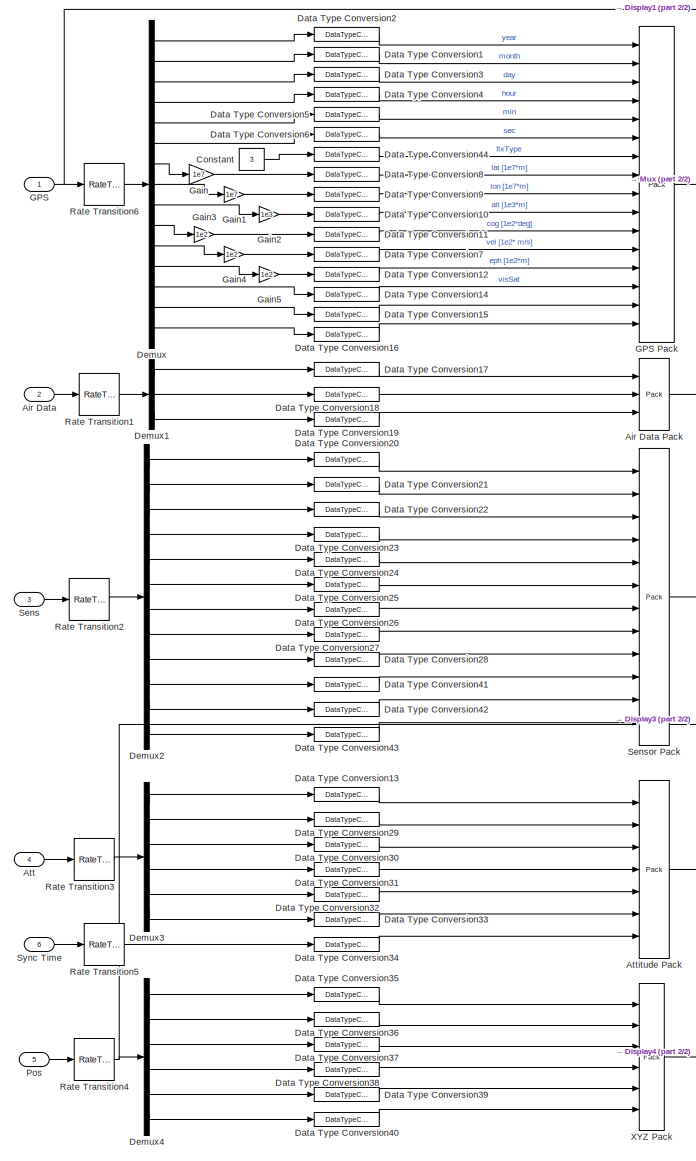
[diagram: To AP - part 1/2, left side, full height]
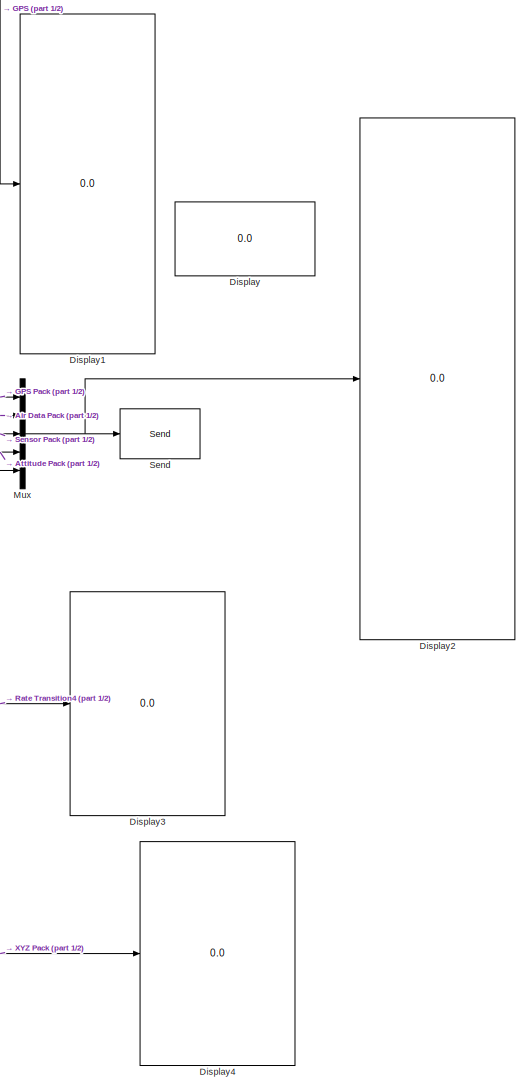
[diagram: To AP - part 2/2, right side, full height]
BLOCK [SubSystem] To AP
  FunctionWithSeparateData = off
  MaskHideContents = off
  MinAlgLoopOccurrences = off
  Opaque = off
  Ports = [6]
  PropExecContextOutsideSubsystem = off
  RTWSystemCode = Auto
  RequestExecContextInheritance = off
  SID = 1086
BLOCK [Inport] To AP/Air Data
  IconDisplay = Port number
  Port = 2
  SID = 1088
BLOCK [Reference] To AP/Air Data Pack  REF=xpclib/UDP/Pack
  Ports = [3, 1]
  SID = 1093
  SourceBlock = xpclib/UDP/Pack
  SourceType = xpcany2byte
  byteAlign = 1
  datatypes = {'single', 'single', 'int16'}
BLOCK [Inport] To AP/Att
  IconDisplay = Port number
  Port = 4
  SID = 1090
BLOCK [Reference] To AP/Attitude Pack  REF=xpclib/UDP/Pack
  Ports = [7, 1]
  SID = 1094
  SourceBlock = xpclib/UDP/Pack
  SourceType = xpcany2byte
  byteAlign = 1
  datatypes = {'single','single','single','single','single','single','uint32'}
BLOCK [Constant] To AP/Constant
  SID = 1167
  Value = 3
BLOCK [DataTypeConversion] To AP/Data Type Conversion1
  OutDataTypeStr = uint8
  RndMeth = Floor
  SID = 1095
  SaturateOnIntegerOverflow = off
BLOCK [DataTypeConversion] To AP/Data Type Conversion10
  OutDataTypeStr = int32
  RndMeth = Floor
  SID = 1096
  SaturateOnIntegerOverflow = off
BLOCK [DataTypeConversion] To AP/Data Type Conversion11
  OutDataTypeStr = uint16
  RndMeth = Floor
  SID = 1097
  SaturateOnIntegerOverflow = off
BLOCK [DataTypeConversion] To AP/Data Type Conversion12
  OutDataTypeStr = uint16
  RndMeth = Floor
  SID = 1098
  SaturateOnIntegerOverflow = off
BLOCK [DataTypeConversion] To AP/Data Type Conversion13
  OutDataTypeStr = single
  RndMeth = Floor
  SID = 1099
  SaturateOnIntegerOverflow = off
BLOCK [DataTypeConversion] To AP/Data Type Conversion14
  OutDataTypeStr = uint8
  RndMeth = Floor
  SID = 1100
  SaturateOnIntegerOverflow = off
BLOCK [DataTypeConversion] To AP/Data Type Conversion15
  OutDataTypeStr = uint8
  RndMeth = Floor
  SID = 1101
  SaturateOnIntegerOverflow = off
BLOCK [DataTypeConversion] To AP/Data Type Conversion16
  OutDataTypeStr = uint8
  RndMeth = Floor
  SID = 1102
  SaturateOnIntegerOverflow = off
BLOCK [DataTypeConversion] To AP/Data Type Conversion17
  OutDataTypeStr = single
  RndMeth = Floor
  SID = 1103
  SaturateOnIntegerOverflow = off
BLOCK [DataTypeConversion] To AP/Data Type Conversion18
  OutDataTypeStr = single
  RndMeth = Floor
  SID = 1104
  SaturateOnIntegerOverflow = off
BLOCK [DataTypeConversion] To AP/Data Type Conversion19
  OutDataTypeStr = int16
  RndMeth = Floor
  SID = 1105
  SaturateOnIntegerOverflow = off
BLOCK [DataTypeConversion] To AP/Data Type Conversion2
  OutDataTypeStr = uint8
  RndMeth = Floor
  SID = 1106
  SaturateOnIntegerOverflow = off
BLOCK [DataTypeConversion] To AP/Data Type Conversion20
  OutDataTypeStr = int16
  RndMeth = Floor
  SID = 1107
  SaturateOnIntegerOverflow = off
BLOCK [DataTypeConversion] To AP/Data Type Conversion21
  OutDataTypeStr = int16
  RndMeth = Floor
  SID = 1108
  SaturateOnIntegerOverflow = off
BLOCK [DataTypeConversion] To AP/Data Type Conversion22
  OutDataTypeStr = int16
  RndMeth = Floor
  SID = 1109
  SaturateOnIntegerOverflow = off
BLOCK [DataTypeConversion] To AP/Data Type Conversion23
  OutDataTypeStr = int16
  RndMeth = Floor
  SID = 1110
  SaturateOnIntegerOverflow = off
BLOCK [DataTypeConversion] To AP/Data Type Conversion24
  OutDataTypeStr = int16
  RndMeth = Floor
  SID = 1111
  SaturateOnIntegerOverflow = off
BLOCK [DataTypeConversion] To AP/Data Type Conversion25
  OutDataTypeStr = int16
  RndMeth = Floor
  SID = 1112
  SaturateOnIntegerOverflow = off
BLOCK [DataTypeConversion] To AP/Data Type Conversion26
  OutDataTypeStr = int16
  RndMeth = Floor
  SID = 1113
  SaturateOnIntegerOverflow = off
BLOCK [DataTypeConversion] To AP/Data Type Conversion27
  OutDataTypeStr = int16
  RndMeth = Floor
  SID = 1114
  SaturateOnIntegerOverflow = off
BLOCK [DataTypeConversion] To AP/Data Type Conversion28
  OutDataTypeStr = int16
  RndMeth = Floor
  SID = 1115
  SaturateOnIntegerOverflow = off
BLOCK [DataTypeConversion] To AP/Data Type Conversion29
  OutDataTypeStr = single
  RndMeth = Floor
  SID = 1116
  SaturateOnIntegerOverflow = off
BLOCK [DataTypeConversion] To AP/Data Type Conversion3
  OutDataTypeStr = uint8
  RndMeth = Floor
  SID = 1117
  SaturateOnIntegerOverflow = off
BLOCK [DataTypeConversion] To AP/Data Type Conversion30
  OutDataTypeStr = single
  RndMeth = Floor
  SID = 1118
  SaturateOnIntegerOverflow = off
BLOCK [DataTypeConversion] To AP/Data Type Conversion31
  OutDataTypeStr = single
  RndMeth = Floor
  SID = 1119
  SaturateOnIntegerOverflow = off
BLOCK [DataTypeConversion] To AP/Data Type Conversion32
  OutDataTypeStr = single
  RndMeth = Floor
  SID = 1120
  SaturateOnIntegerOverflow = off
BLOCK [DataTypeConversion] To AP/Data Type Conversion33
  OutDataTypeStr = single
  RndMeth = Floor
  SID = 1121
  SaturateOnIntegerOverflow = off
BLOCK [DataTypeConversion] To AP/Data Type Conversion34
  OutDataTypeStr = uint32
  RndMeth = Floor
  SID = 1122
  SaturateOnIntegerOverflow = off
BLOCK [DataTypeConversion] To AP/Data Type Conversion35
  OutDataTypeStr = single
  RndMeth = Floor
  SID = 1123
  SaturateOnIntegerOverflow = off
BLOCK [DataTypeConversion] To AP/Data Type Conversion36
  OutDataTypeStr = single
  RndMeth = Floor
  SID = 1124
  SaturateOnIntegerOverflow = off
BLOCK [DataTypeConversion] To AP/Data Type Conversion37
  OutDataTypeStr = single
  RndMeth = Floor
  SID = 1125
  SaturateOnIntegerOverflow = off
BLOCK [DataTypeConversion] To AP/Data Type Conversion38
  OutDataTypeStr = single
  RndMeth = Floor
  SID = 1126
  SaturateOnIntegerOverflow = off
BLOCK [DataTypeConversion] To AP/Data Type Conversion39
  OutDataTypeStr = single
  RndMeth = Floor
  SID = 1127
  SaturateOnIntegerOverflow = off
BLOCK [DataTypeConversion] To AP/Data Type Conversion4
  OutDataTypeStr = uint8
  RndMeth = Floor
  SID = 1128
  SaturateOnIntegerOverflow = off
BLOCK [DataTypeConversion] To AP/Data Type Conversion40
  OutDataTypeStr = single
  RndMeth = Floor
  SID = 1129
  SaturateOnIntegerOverflow = off
BLOCK [DataTypeConversion] To AP/Data Type Conversion41
  OutDataTypeStr = int16
  RndMeth = Floor
  SID = 1130
  SaturateOnIntegerOverflow = off
BLOCK [DataTypeConversion] To AP/Data Type Conversion42
  OutDataTypeStr = int16
  RndMeth = Floor
  SID = 1131
  SaturateOnIntegerOverflow = off
BLOCK [DataTypeConversion] To AP/Data Type Conversion43
  OutDataTypeStr = int16
  RndMeth = Floor
  SID = 1132
  SaturateOnIntegerOverflow = off
BLOCK [DataTypeConversion] To AP/Data Type Conversion44
  OutDataTypeStr = uint8
  RndMeth = Floor
  SID = 1166
  SaturateOnIntegerOverflow = off
BLOCK [DataTypeConversion] To AP/Data Type Conversion5
  OutDataTypeStr = uint8
  RndMeth = Floor
  SID = 1133
  SaturateOnIntegerOverflow = off
BLOCK [DataTypeConversion] To AP/Data Type Conversion6
  OutDataTypeStr = uint8
  RndMeth = Floor
  SID = 1134
  SaturateOnIntegerOverflow = off
BLOCK [DataTypeConversion] To AP/Data Type Conversion7
  OutDataTypeStr = uint16
  RndMeth = Floor
  SID = 1135
  SaturateOnIntegerOverflow = off
BLOCK [DataTypeConversion] To AP/Data Type Conversion8
  OutDataTypeStr = int32
  RndMeth = Floor
  SID = 1136
  SaturateOnIntegerOverflow = off
BLOCK [DataTypeConversion] To AP/Data Type Conversion9
  OutDataTypeStr = int32
  RndMeth = Floor
  SID = 1137
  SaturateOnIntegerOverflow = off
BLOCK [Demux] To AP/Demux
  DisplayOption = bar
  Outputs = 15
  Ports = [1, 15]
  SID = 1138
BLOCK [Demux] To AP/Demux1
  DisplayOption = bar
  Outputs = 3
  Ports = [1, 3]
  SID = 1139
BLOCK [Demux] To AP/Demux2
  DisplayOption = bar
  Outputs = 12
  Ports = [1, 12]
  SID = 1140
BLOCK [Demux] To AP/Demux3
  DisplayOption = bar
  Outputs = 6
  Ports = [1, 6]
  SID = 1141
BLOCK [Demux] To AP/Demux4
  DisplayOption = bar
  Outputs = 6
  Ports = [1, 6]
  SID = 1142
BLOCK [Display] To AP/Display
  Decimation = 1
  Format = long
  Lockdown = off
  Ports = [1]
  SID = 1143
BLOCK [Display] To AP/Display1
  Decimation = 1
  Format = long
  Lockdown = off
  Ports = [1]
  SID = 1144
BLOCK [Display] To AP/Display2
  Decimation = 1
  Format = long
  Lockdown = off
  Ports = [1]
  SID = 1145
BLOCK [Display] To AP/Display3
  Decimation = 1
  Format = long
  Lockdown = off
  Ports = [1]
  SID = 1146
BLOCK [Display] To AP/Display4
  Decimation = 1
  Format = long
  Lockdown = off
  Ports = [1]
  SID = 1147
BLOCK [Inport] To AP/GPS
  IconDisplay = Port number
  SID = 1087
BLOCK [Reference] To AP/GPS Pack  REF=xpclib/UDP/Pack
  Ports = [16, 1]
  SID = 1148
  SourceBlock = xpclib/UDP/Pack
  SourceType = xpcany2byte
  byteAlign = 1
  datatypes = {'uint8','uint8','uint8','uint8','uint8','uint8','uint8', 'int32', 'int32', 'int32', 'uint16', 'uint16', 'uint16', 'uint8', 'uint8', 'uint8'}
BLOCK [Gain] To AP/Gain
  Gain = 1e7
  OutDataTypeStr = Inherit: Inherit via internal rule
  ParamDataTypeStr = Inherit: Inherit via internal rule
  SID = 1160
  SaturateOnIntegerOverflow = off
BLOCK [Gain] To AP/Gain1
  Gain = 1e7
  OutDataTypeStr = Inherit: Inherit via internal rule
  ParamDataTypeStr = Inherit: Inherit via internal rule
  SID = 1161
  SaturateOnIntegerOverflow = off
BLOCK [Gain] To AP/Gain2
  Gain = 1e3
  OutDataTypeStr = Inherit: Inherit via internal rule
  ParamDataTypeStr = Inherit: Inherit via internal rule
  SID = 1162
  SaturateOnIntegerOverflow = off
BLOCK [Gain] To AP/Gain3
  Gain = 1e2
  OutDataTypeStr = Inherit: Inherit via internal rule
  ParamDataTypeStr = Inherit: Inherit via internal rule
  SID = 1163
  SaturateOnIntegerOverflow = off
BLOCK [Gain] To AP/Gain4
  Gain = 1e2
  OutDataTypeStr = Inherit: Inherit via internal rule
  ParamDataTypeStr = Inherit: Inherit via internal rule
  SID = 1164
  SaturateOnIntegerOverflow = off
BLOCK [Gain] To AP/Gain5
  Gain = 1e2
  OutDataTypeStr = Inherit: Inherit via internal rule
  ParamDataTypeStr = Inherit: Inherit via internal rule
  SID = 1165
  SaturateOnIntegerOverflow = off
BLOCK [Mux] To AP/Mux
  DisplayOption = bar
  Inputs = 5
  Ports = [5, 1]
  SID = 1149
BLOCK [Inport] To AP/Pos
  IconDisplay = Port number
  Port = 5
  SID = 1091
BLOCK [RateTransition] To AP/Rate Transition1
  OutPortSampleTime = SampleT*HIL_K
  SID = 1150
BLOCK [RateTransition] To AP/Rate Transition2
  OutPortSampleTime = SampleT*HIL_K
  SID = 1151
BLOCK [RateTransition] To AP/Rate Transition3
  OutPortSampleTime = SampleT*HIL_K
  SID = 1152
BLOCK [RateTransition] To AP/Rate Transition4
  OutPortSampleTime = SampleT*HIL_K
  SID = 1153
BLOCK [RateTransition] To AP/Rate Transition5
  OutPortSampleTime = SampleT*HIL_K
  SID = 1154
BLOCK [RateTransition] To AP/Rate Transition6
  OutPortSampleTime = SampleT*HIL_K
  SID = 1155
BLOCK [Reference] To AP/Send  REF=xpclib/UDP/Send
  Ports = [1]
  SID = 1156
  SourceBlock = xpclib/UDP/Send
  SourceType = xpcudpbytesend
  ipAddress = 255.255.255.255
  ipPort = 5679
  localPort = 5678
  sampletime = SampleT*HIL_K
  vblLen = off
BLOCK [Inport] To AP/Sens
  IconDisplay = Port number
  Port = 3
  SID = 1089
BLOCK [Reference] To AP/Sensor Pack  REF=xpclib/UDP/Pack
  Ports = [12, 1]
  SID = 1157
  SourceBlock = xpclib/UDP/Pack
  SourceType = xpcany2byte
  byteAlign = 1
  datatypes = {'int16', 'int16', 'int16', 'int16', 'int16', 'int16', 'int16', 'int16', 'int16', 'int16', 'int16', 'int16'}
BLOCK [Inport] To AP/Sync Time
  IconDisplay = Port number
  Port = 6
  SID = 1092
BLOCK [Reference] To AP/XYZ Pack  REF=xpclib/UDP/Pack
  Ports = [6, 1]
  SID = 1158
  SourceBlock = xpclib/UDP/Pack
  SourceType = xpcany2byte
  byteAlign = 1
  datatypes = {'single','single','single','single','single','single'}
ANNOTATION (root): Disturbance and Noise Control
ANNOTATION 6DOF Model/Plant/6-DOF EOM/[V1,2,3,W1,2,3]: V*dot =Inv(A){[F ; M] - SigmaAV*}
ANNOTATION 6DOF Model/Plant/6-DOF EOM/[V1,2,3,W1,2,3]/Sigma: S(pqr)
ANNOTATION 6DOF Model/Plant/Forces and Moments/Body Frame F & M/Wind frame F& M/Longitudinal Channel/Cm: Magic Cma
ANNOTATION 6DOF Model/Split Ailerons\nAnd Introduce\nFailures: Inverse\nfor Right\nAil
LINE 6DOF Model/Constant1:1 -> 6DOF Model/Mux:13
LINE 6DOF Model/Constant2:1 -> 6DOF Model/Mux:14
LINE 6DOF Model/Constant3:1 -> 6DOF Model/Mux:15
LINE 6DOF Model/Constant:1 -> 6DOF Model/Mux:12
LINE 6DOF Model/Data Type Conversion1:1 -> 6DOF Model/pqr, true:1
NET 6DOF Model/Data Type Conversion:1 -> 6DOF Model/AirData:1, 6DOF Model/Display3:1
LINE 6DOF Model/From10:1 -> 6DOF Model/Sensor Sim:4
LINE 6DOF Model/From12:1 -> 6DOF Model/Subsystem:2
LINE 6DOF Model/From2:1 -> 6DOF Model/Subsystem2:2
LINE 6DOF Model/From4:1 -> 6DOF Model/Subsystem5:2
LINE 6DOF Model/From5:1 -> 6DOF Model/Subsystem6:2
LINE 6DOF Model/From6:1 -> 6DOF Model/Subsystem3:4
LINE 6DOF Model/From7:1 -> 6DOF Model/Sensor Sim:1
LINE 6DOF Model/From8:1 -> 6DOF Model/Sensor Sim:2
LINE 6DOF Model/From9:1 -> 6DOF Model/Sensor Sim:3
NET 6DOF Model/Mux1:1 -> 6DOF Model/Display2:1, 6DOF Model/Display:1, 6DOF Model/Subsystem:1
LINE 6DOF Model/Mux:1 -> 6DOF Model/GPS:1
LINE 6DOF Model/Noise On?:1 -> 6DOF Model/Goto41:1
NET 6DOF Model/Plant/6-DOF EOM/Angular\nRates:1 -> 6DOF Model/Plant/6-DOF EOM/Get Euler\nDot:1, 6DOF Model/Plant/6-DOF EOM/Mux:2, 6DOF Model/Plant/6-DOF EOM/p, q, r:1
LINE 6DOF Model/Plant/6-DOF EOM/Demux1:1 -> 6DOF Model/Plant/6-DOF EOM/Velocities\nBody:1
LINE 6DOF Model/Plant/6-DOF EOM/Demux1:2 -> 6DOF Model/Plant/6-DOF EOM/Angular\nRates:1
NET 6DOF Model/Plant/6-DOF EOM/Euler\nAngles:1 -> 6DOF Model/Plant/6-DOF EOM/Euler:1, 6DOF Model/Plant/6-DOF EOM/Get Euler\nDot:2, 6DOF Model/Plant/6-DOF EOM/RB2LTP:1, 6DOF Model/Plant/6-DOF EOM/[V1,2,3,W1,2,3]:2
LINE 6DOF Model/Plant/6-DOF EOM/Get Euler\nDot/Euler:1 -> 6DOF Model/Plant/6-DOF EOM/Get Euler\nDot/Mux1:2
NET 6DOF Model/Plant/6-DOF EOM/Get Euler\nDot/Mux1:1 -> 6DOF Model/Plant/6-DOF EOM/Get Euler\nDot/phidot:1, 6DOF Model/Plant/6-DOF EOM/Get Euler\nDot/psidot:1, 6DOF Model/Plant/6-DOF EOM/Get Euler\nDot/thetadot:1
LINE 6DOF Model/Plant/6-DOF EOM/Get Euler\nDot/Mux2:1 -> 6DOF Model/Plant/6-DOF EOM/Get Euler\nDot/Euler_dot:1
LINE 6DOF Model/Plant/6-DOF EOM/Get Euler\nDot/p,q,r:1 -> 6DOF Model/Plant/6-DOF EOM/Get Euler\nDot/Mux1:1
LINE 6DOF Model/Plant/6-DOF EOM/Get Euler\nDot/phidot:1 -> 6DOF Model/Plant/6-DOF EOM/Get Euler\nDot/Mux2:1
LINE 6DOF Model/Plant/6-DOF EOM/Get Euler\nDot/psidot:1 -> 6DOF Model/Plant/6-DOF EOM/Get Euler\nDot/Mux2:3
LINE 6DOF Model/Plant/6-DOF EOM/Get Euler\nDot/thetadot:1 -> 6DOF Model/Plant/6-DOF EOM/Get Euler\nDot/Mux2:2
NET 6DOF Model/Plant/6-DOF EOM/Get Euler\nDot:1 -> 6DOF Model/Plant/6-DOF EOM/Euler\nAngles:1, 6DOF Model/Plant/6-DOF EOM/Euler_dot:1
LINE 6DOF Model/Plant/6-DOF EOM/Mux:1 -> 6DOF Model/Plant/6-DOF EOM/[V1,2,3,W1,2,3]:3
LINE 6DOF Model/Plant/6-DOF EOM/NED2NEU:1 -> 6DOF Model/Plant/6-DOF EOM/Position:1
LINE 6DOF Model/Plant/6-DOF EOM/Position:1 -> 6DOF Model/Plant/6-DOF EOM/X,Y,Z (LTP):1
NET 6DOF Model/Plant/6-DOF EOM/RB2L * Vb:1 -> 6DOF Model/Plant/6-DOF EOM/NED2NEU:1, 6DOF Model/Plant/6-DOF EOM/Vx, Vy, Vz:1
LINE 6DOF Model/Plant/6-DOF EOM/RB2LTP/11:1 -> 6DOF Model/Plant/6-DOF EOM/RB2LTP/Mux2:1
LINE 6DOF Model/Plant/6-DOF EOM/RB2LTP/12:1 -> 6DOF Model/Plant/6-DOF EOM/RB2LTP/Mux2:2
LINE 6DOF Model/Plant/6-DOF EOM/RB2LTP/13:1 -> 6DOF Model/Plant/6-DOF EOM/RB2LTP/Mux2:3
LINE 6DOF Model/Plant/6-DOF EOM/RB2LTP/21:1 -> 6DOF Model/Plant/6-DOF EOM/RB2LTP/Mux2:4
LINE 6DOF Model/Plant/6-DOF EOM/RB2LTP/22:1 -> 6DOF Model/Plant/6-DOF EOM/RB2LTP/Mux2:5
LINE 6DOF Model/Plant/6-DOF EOM/RB2LTP/23:1 -> 6DOF Model/Plant/6-DOF EOM/RB2LTP/Mux2:6
LINE 6DOF Model/Plant/6-DOF EOM/RB2LTP/31:1 -> 6DOF Model/Plant/6-DOF EOM/RB2LTP/Mux2:7
LINE 6DOF Model/Plant/6-DOF EOM/RB2LTP/32:1 -> 6DOF Model/Plant/6-DOF EOM/RB2LTP/Mux2:8
LINE 6DOF Model/Plant/6-DOF EOM/RB2LTP/33:1 -> 6DOF Model/Plant/6-DOF EOM/RB2LTP/Mux2:9
NET 6DOF Model/Plant/6-DOF EOM/RB2LTP/Euler:1 -> 6DOF Model/Plant/6-DOF EOM/RB2LTP/11:1, 6DOF Model/Plant/6-DOF EOM/RB2LTP/12:1, 6DOF Model/Plant/6-DOF EOM/RB2LTP/13:1, 6DOF Model/Plant/6-DOF EOM/RB2LTP/21:1, 6DOF Model/Plant/6-DOF EOM/RB2LTP/22:1, 6DOF Model/Plant/6-DOF EOM/RB2LTP/23:1, 6DOF Model/Plant/6-DOF EOM/RB2LTP/31:1, 6DOF Model/Plant/6-DOF EOM/RB2LTP/32:1, 6DOF Model/Plant/6-DOF EOM/RB2LTP/33:1
LINE 6DOF Model/Plant/6-DOF EOM/RB2LTP/Mux2:1 -> 6DOF Model/Plant/6-DOF EOM/RB2LTP/Reshape:1
LINE 6DOF Model/Plant/6-DOF EOM/RB2LTP/Reshape:1 -> 6DOF Model/Plant/6-DOF EOM/RB2LTP/Rot:1
LINE 6DOF Model/Plant/6-DOF EOM/RB2LTP:1 -> 6DOF Model/Plant/6-DOF EOM/RB2L * Vb:1
LINE 6DOF Model/Plant/6-DOF EOM/Vb Corr:1 -> 6DOF Model/Plant/6-DOF EOM/Mux:1
NET 6DOF Model/Plant/6-DOF EOM/Velocities\nBody:1 -> 6DOF Model/Plant/6-DOF EOM/RB2L * Vb:2, 6DOF Model/Plant/6-DOF EOM/Vb:1
LINE 6DOF Model/Plant/6-DOF EOM/[F,M]:1 -> 6DOF Model/Plant/6-DOF EOM/[V1,2,3,W1,2,3]:1
NET 6DOF Model/Plant/6-DOF EOM/[V1,2,3,W1,2,3]/A = [M ; J]/Constant1:1 -> 6DOF Model/Plant/6-DOF EOM/[V1,2,3,W1,2,3]/A = [M ; J]/Matrix\nConcatenation1:1, 6DOF Model/Plant/6-DOF EOM/[V1,2,3,W1,2,3]/A = [M ; J]/Matrix\nConcatenation:2
NET 6DOF Model/Plant/6-DOF EOM/[V1,2,3,W1,2,3]/A = [M ; J]/Constant4:1 -> 6DOF Model/Plant/6-DOF EOM/[V1,2,3,W1,2,3]/A = [M ; J]/Mux1:2, 6DOF Model/Plant/6-DOF EOM/[V1,2,3,W1,2,3]/A = [M ; J]/Mux1:3, 6DOF Model/Plant/6-DOF EOM/[V1,2,3,W1,2,3]/A = [M ; J]/Mux1:4, 6DOF Model/Plant/6-DOF EOM/[V1,2,3,W1,2,3]/A = [M ; J]/Mux1:6, 6DOF Model/Plant/6-DOF EOM/[V1,2,3,W1,2,3]/A = [M ; J]/Mux1:7, 6DOF Model/Plant/6-DOF EOM/[V1,2,3,W1,2,3]/A = [M ; J]/Mux1:8, 6DOF Model/Plant/6-DOF EOM/[V1,2,3,W1,2,3]/A = [M ; J]/Mux:2, 6DOF Model/Plant/6-DOF EOM/[V1,2,3,W1,2,3]/A = [M ; J]/Mux:3, 6DOF Model/Plant/6-DOF EOM/[V1,2,3,W1,2,3]/A = [M ; J]/Mux:4, 6DOF Model/Plant/6-DOF EOM/[V1,2,3,W1,2,3]/A = [M ; J]/Mux:6, 6DOF Model/Plant/6-DOF EOM/[V1,2,3,W1,2,3]/A = [M ; J]/Mux:7, 6DOF Model/Plant/6-DOF EOM/[V1,2,3,W1,2,3]/A = [M ; J]/Mux:8
LINE 6DOF Model/Plant/6-DOF EOM/[V1,2,3,W1,2,3]/A = [M ; J]/Ixx:1 -> 6DOF Model/Plant/6-DOF EOM/[V1,2,3,W1,2,3]/A = [M ; J]/Mux:1
LINE 6DOF Model/Plant/6-DOF EOM/[V1,2,3,W1,2,3]/A = [M ; J]/Iyy:1 -> 6DOF Model/Plant/6-DOF EOM/[V1,2,3,W1,2,3]/A = [M ; J]/Mux:5
LINE 6DOF Model/Plant/6-DOF EOM/[V1,2,3,W1,2,3]/A = [M ; J]/Izz:1 -> 6DOF Model/Plant/6-DOF EOM/[V1,2,3,W1,2,3]/A = [M ; J]/Mux:9
NET 6DOF Model/Plant/6-DOF EOM/[V1,2,3,W1,2,3]/A = [M ; J]/Matrix\nConcatenation1:1 -> 6DOF Model/Plant/6-DOF EOM/[V1,2,3,W1,2,3]/A = [M ; J]/Display1:1, 6DOF Model/Plant/6-DOF EOM/[V1,2,3,W1,2,3]/A = [M ; J]/Matrix\nConcatenation2:2
NET 6DOF Model/Plant/6-DOF EOM/[V1,2,3,W1,2,3]/A = [M ; J]/Matrix\nConcatenation2:1 -> 6DOF Model/Plant/6-DOF EOM/[V1,2,3,W1,2,3]/A = [M ; J]/A Matrix:1, 6DOF Model/Plant/6-DOF EOM/[V1,2,3,W1,2,3]/A = [M ; J]/Display2:1
NET 6DOF Model/Plant/6-DOF EOM/[V1,2,3,W1,2,3]/A = [M ; J]/Matrix\nConcatenation:1 -> 6DOF Model/Plant/6-DOF EOM/[V1,2,3,W1,2,3]/A = [M ; J]/Display:1, 6DOF Model/Plant/6-DOF EOM/[V1,2,3,W1,2,3]/A = [M ; J]/Matrix\nConcatenation2:1
LINE 6DOF Model/Plant/6-DOF EOM/[V1,2,3,W1,2,3]/A = [M ; J]/Mux1:1 -> 6DOF Model/Plant/6-DOF EOM/[V1,2,3,W1,2,3]/A = [M ; J]/Reshape:1
LINE 6DOF Model/Plant/6-DOF EOM/[V1,2,3,W1,2,3]/A = [M ; J]/Mux:1 -> 6DOF Model/Plant/6-DOF EOM/[V1,2,3,W1,2,3]/A = [M ; J]/Reshape1:1
LINE 6DOF Model/Plant/6-DOF EOM/[V1,2,3,W1,2,3]/A = [M ; J]/Reshape1:1 -> 6DOF Model/Plant/6-DOF EOM/[V1,2,3,W1,2,3]/A = [M ; J]/Matrix\nConcatenation1:2
LINE 6DOF Model/Plant/6-DOF EOM/[V1,2,3,W1,2,3]/A = [M ; J]/Reshape:1 -> 6DOF Model/Plant/6-DOF EOM/[V1,2,3,W1,2,3]/A = [M ; J]/Matrix\nConcatenation:1
NET 6DOF Model/Plant/6-DOF EOM/[V1,2,3,W1,2,3]/A = [M ; J]/mass:1 -> 6DOF Model/Plant/6-DOF EOM/[V1,2,3,W1,2,3]/A = [M ; J]/Mux1:1, 6DOF Model/Plant/6-DOF EOM/[V1,2,3,W1,2,3]/A = [M ; J]/Mux1:5, 6DOF Model/Plant/6-DOF EOM/[V1,2,3,W1,2,3]/A = [M ; J]/Mux1:9
NET 6DOF Model/Plant/6-DOF EOM/[V1,2,3,W1,2,3]/A = [M ; J]:1 -> 6DOF Model/Plant/6-DOF EOM/[V1,2,3,W1,2,3]/Acc_meas:1, 6DOF Model/Plant/6-DOF EOM/[V1,2,3,W1,2,3]/Sigma*A:2, 6DOF Model/Plant/6-DOF EOM/[V1,2,3,W1,2,3]/V*dot :1
LINE 6DOF Model/Plant/6-DOF EOM/[V1,2,3,W1,2,3]/Acc_meas:1 -> 6DOF Model/Plant/6-DOF EOM/[V1,2,3,W1,2,3]/Selector3:1
LINE 6DOF Model/Plant/6-DOF EOM/[V1,2,3,W1,2,3]/Demux:1 -> 6DOF Model/Plant/6-DOF EOM/[V1,2,3,W1,2,3]/Terminator1:1
LINE 6DOF Model/Plant/6-DOF EOM/[V1,2,3,W1,2,3]/Demux:2 -> 6DOF Model/Plant/6-DOF EOM/[V1,2,3,W1,2,3]/Sigma:1
LINE 6DOF Model/Plant/6-DOF EOM/[V1,2,3,W1,2,3]/Euler:1 -> 6DOF Model/Plant/6-DOF EOM/[V1,2,3,W1,2,3]/Get Grav Force in Body:1
LINE 6DOF Model/Plant/6-DOF EOM/[V1,2,3,W1,2,3]/Get Grav Force in Body/Euler:1 -> 6DOF Model/Plant/6-DOF EOM/[V1,2,3,W1,2,3]/Get Grav Force in Body/Rb2u:1
LINE 6DOF Model/Plant/6-DOF EOM/[V1,2,3,W1,2,3]/Get Grav Force in Body/Grav Force:1 -> 6DOF Model/Plant/6-DOF EOM/[V1,2,3,W1,2,3]/Get Grav Force in Body/Reshape:1
LINE 6DOF Model/Plant/6-DOF EOM/[V1,2,3,W1,2,3]/Get Grav Force in Body/Math\nFunction:1 -> 6DOF Model/Plant/6-DOF EOM/[V1,2,3,W1,2,3]/Get Grav Force in Body/Product1:1
LINE 6DOF Model/Plant/6-DOF EOM/[V1,2,3,W1,2,3]/Get Grav Force in Body/Product1:1 -> 6DOF Model/Plant/6-DOF EOM/[V1,2,3,W1,2,3]/Get Grav Force in Body/Grav Force\n(Body):1
LINE 6DOF Model/Plant/6-DOF EOM/[V1,2,3,W1,2,3]/Get Grav Force in Body/Rb2u/11:1 -> 6DOF Model/Plant/6-DOF EOM/[V1,2,3,W1,2,3]/Get Grav Force in Body/Rb2u/Mux2:1
LINE 6DOF Model/Plant/6-DOF EOM/[V1,2,3,W1,2,3]/Get Grav Force in Body/Rb2u/12:1 -> 6DOF Model/Plant/6-DOF EOM/[V1,2,3,W1,2,3]/Get Grav Force in Body/Rb2u/Mux2:2
LINE 6DOF Model/Plant/6-DOF EOM/[V1,2,3,W1,2,3]/Get Grav Force in Body/Rb2u/13:1 -> 6DOF Model/Plant/6-DOF EOM/[V1,2,3,W1,2,3]/Get Grav Force in Body/Rb2u/Mux2:3
LINE 6DOF Model/Plant/6-DOF EOM/[V1,2,3,W1,2,3]/Get Grav Force in Body/Rb2u/21:1 -> 6DOF Model/Plant/6-DOF EOM/[V1,2,3,W1,2,3]/Get Grav Force in Body/Rb2u/Mux2:4
LINE 6DOF Model/Plant/6-DOF EOM/[V1,2,3,W1,2,3]/Get Grav Force in Body/Rb2u/22:1 -> 6DOF Model/Plant/6-DOF EOM/[V1,2,3,W1,2,3]/Get Grav Force in Body/Rb2u/Mux2:5
LINE 6DOF Model/Plant/6-DOF EOM/[V1,2,3,W1,2,3]/Get Grav Force in Body/Rb2u/23:1 -> 6DOF Model/Plant/6-DOF EOM/[V1,2,3,W1,2,3]/Get Grav Force in Body/Rb2u/Mux2:6
LINE 6DOF Model/Plant/6-DOF EOM/[V1,2,3,W1,2,3]/Get Grav Force in Body/Rb2u/31:1 -> 6DOF Model/Plant/6-DOF EOM/[V1,2,3,W1,2,3]/Get Grav Force in Body/Rb2u/Mux2:7
LINE 6DOF Model/Plant/6-DOF EOM/[V1,2,3,W1,2,3]/Get Grav Force in Body/Rb2u/32:1 -> 6DOF Model/Plant/6-DOF EOM/[V1,2,3,W1,2,3]/Get Grav Force in Body/Rb2u/Mux2:8
LINE 6DOF Model/Plant/6-DOF EOM/[V1,2,3,W1,2,3]/Get Grav Force in Body/Rb2u/33:1 -> 6DOF Model/Plant/6-DOF EOM/[V1,2,3,W1,2,3]/Get Grav Force in Body/Rb2u/Mux2:9
LINE 6DOF Model/Plant/6-DOF EOM/[V1,2,3,W1,2,3]/Get Grav Force in Body/Rb2u/Mux2:1 -> 6DOF Model/Plant/6-DOF EOM/[V1,2,3,W1,2,3]/Get Grav Force in Body/Rb2u/Reshape:1
LINE 6DOF Model/Plant/6-DOF EOM/[V1,2,3,W1,2,3]/Get Grav Force in Body/Rb2u/Reshape:1 -> 6DOF Model/Plant/6-DOF EOM/[V1,2,3,W1,2,3]/Get Grav Force in Body/Rb2u/DCM:1
NET 6DOF Model/Plant/6-DOF EOM/[V1,2,3,W1,2,3]/Get Grav Force in Body/Rb2u/phi\ntheta\npsi:1 -> 6DOF Model/Plant/6-DOF EOM/[V1,2,3,W1,2,3]/Get Grav Force in Body/Rb2u/11:1, 6DOF Model/Plant/6-DOF EOM/[V1,2,3,W1,2,3]/Get Grav Force in Body/Rb2u/12:1, 6DOF Model/Plant/6-DOF EOM/[V1,2,3,W1,2,3]/Get Grav Force in Body/Rb2u/13:1, 6DOF Model/Plant/6-DOF EOM/[V1,2,3,W1,2,3]/Get Grav Force in Body/Rb2u/21:1, 6DOF Model/Plant/6-DOF EOM/[V1,2,3,W1,2,3]/Get Grav Force in Body/Rb2u/22:1, 6DOF Model/Plant/6-DOF EOM/[V1,2,3,W1,2,3]/Get Grav Force in Body/Rb2u/23:1, 6DOF Model/Plant/6-DOF EOM/[V1,2,3,W1,2,3]/Get Grav Force in Body/Rb2u/31:1, 6DOF Model/Plant/6-DOF EOM/[V1,2,3,W1,2,3]/Get Grav Force in Body/Rb2u/32:1, 6DOF Model/Plant/6-DOF EOM/[V1,2,3,W1,2,3]/Get Grav Force in Body/Rb2u/33:1
LINE 6DOF Model/Plant/6-DOF EOM/[V1,2,3,W1,2,3]/Get Grav Force in Body/Rb2u:1 -> 6DOF Model/Plant/6-DOF EOM/[V1,2,3,W1,2,3]/Get Grav Force in Body/Math\nFunction:1
LINE 6DOF Model/Plant/6-DOF EOM/[V1,2,3,W1,2,3]/Get Grav Force in Body/Reshape:1 -> 6DOF Model/Plant/6-DOF EOM/[V1,2,3,W1,2,3]/Get Grav Force in Body/Product1:2
LINE 6DOF Model/Plant/6-DOF EOM/[V1,2,3,W1,2,3]/Get Grav Force in Body:1 -> 6DOF Model/Plant/6-DOF EOM/[V1,2,3,W1,2,3]/Sum2:1
LINE 6DOF Model/Plant/6-DOF EOM/[V1,2,3,W1,2,3]/Gravitational Acc:1 -> 6DOF Model/Plant/6-DOF EOM/[V1,2,3,W1,2,3]/Get Grav Force in Body:2
LINE 6DOF Model/Plant/6-DOF EOM/[V1,2,3,W1,2,3]/Selector3:1 -> 6DOF Model/Plant/6-DOF EOM/[V1,2,3,W1,2,3]/Sum2:2
LINE 6DOF Model/Plant/6-DOF EOM/[V1,2,3,W1,2,3]/Sigma*A*V*:1 -> 6DOF Model/Plant/6-DOF EOM/[V1,2,3,W1,2,3]/Sum1:2
LINE 6DOF Model/Plant/6-DOF EOM/[V1,2,3,W1,2,3]/Sigma*A:1 -> 6DOF Model/Plant/6-DOF EOM/[V1,2,3,W1,2,3]/Sigma*A*V*:1
LINE 6DOF Model/Plant/6-DOF EOM/[V1,2,3,W1,2,3]/Sigma/Gain1:1 -> 6DOF Model/Plant/6-DOF EOM/[V1,2,3,W1,2,3]/Sigma/Mux:2
LINE 6DOF Model/Plant/6-DOF EOM/[V1,2,3,W1,2,3]/Sigma/Gain2:1 -> 6DOF Model/Plant/6-DOF EOM/[V1,2,3,W1,2,3]/Sigma/Mux:3
NET 6DOF Model/Plant/6-DOF EOM/[V1,2,3,W1,2,3]/Sigma/Gain3:1 -> 6DOF Model/Plant/6-DOF EOM/[V1,2,3,W1,2,3]/Sigma/Matrix\nConcatenation1:1, 6DOF Model/Plant/6-DOF EOM/[V1,2,3,W1,2,3]/Sigma/Matrix\nConcatenation:2
LINE 6DOF Model/Plant/6-DOF EOM/[V1,2,3,W1,2,3]/Sigma/Gain:1 -> 6DOF Model/Plant/6-DOF EOM/[V1,2,3,W1,2,3]/Sigma/Mux:1
NET 6DOF Model/Plant/6-DOF EOM/[V1,2,3,W1,2,3]/Sigma/Math\nFunction:1 -> 6DOF Model/Plant/6-DOF EOM/[V1,2,3,W1,2,3]/Sigma/Gain3:1, 6DOF Model/Plant/6-DOF EOM/[V1,2,3,W1,2,3]/Sigma/Matrix\nConcatenation1:2, 6DOF Model/Plant/6-DOF EOM/[V1,2,3,W1,2,3]/Sigma/Matrix\nConcatenation:1
LINE 6DOF Model/Plant/6-DOF EOM/[V1,2,3,W1,2,3]/Sigma/Matrix\nConcatenation1:1 -> 6DOF Model/Plant/6-DOF EOM/[V1,2,3,W1,2,3]/Sigma/Matrix\nConcatenation2:2
LINE 6DOF Model/Plant/6-DOF EOM/[V1,2,3,W1,2,3]/Sigma/Matrix\nConcatenation2:1 -> 6DOF Model/Plant/6-DOF EOM/[V1,2,3,W1,2,3]/Sigma/Sigma:1
LINE 6DOF Model/Plant/6-DOF EOM/[V1,2,3,W1,2,3]/Sigma/Matrix\nConcatenation:1 -> 6DOF Model/Plant/6-DOF EOM/[V1,2,3,W1,2,3]/Sigma/Matrix\nConcatenation2:1
LINE 6DOF Model/Plant/6-DOF EOM/[V1,2,3,W1,2,3]/Sigma/Mux:1 -> 6DOF Model/Plant/6-DOF EOM/[V1,2,3,W1,2,3]/Sigma/Reshape:1
LINE 6DOF Model/Plant/6-DOF EOM/[V1,2,3,W1,2,3]/Sigma/Reshape:1 -> 6DOF Model/Plant/6-DOF EOM/[V1,2,3,W1,2,3]/Sigma/Math\nFunction:1
NET 6DOF Model/Plant/6-DOF EOM/[V1,2,3,W1,2,3]/Sigma/pqr:1 -> 6DOF Model/Plant/6-DOF EOM/[V1,2,3,W1,2,3]/Sigma/Gain1:1, 6DOF Model/Plant/6-DOF EOM/[V1,2,3,W1,2,3]/Sigma/Gain2:1, 6DOF Model/Plant/6-DOF EOM/[V1,2,3,W1,2,3]/Sigma/Gain:1
LINE 6DOF Model/Plant/6-DOF EOM/[V1,2,3,W1,2,3]/Sigma:1 -> 6DOF Model/Plant/6-DOF EOM/[V1,2,3,W1,2,3]/Sigma*A:1
LINE 6DOF Model/Plant/6-DOF EOM/[V1,2,3,W1,2,3]/Sum1:1 -> 6DOF Model/Plant/6-DOF EOM/[V1,2,3,W1,2,3]/V*dot :2
LINE 6DOF Model/Plant/6-DOF EOM/[V1,2,3,W1,2,3]/Sum2:1 -> 6DOF Model/Plant/6-DOF EOM/[V1,2,3,W1,2,3]/Acc_meas :1
NET 6DOF Model/Plant/6-DOF EOM/[V1,2,3,W1,2,3]/V*:1 -> 6DOF Model/Plant/6-DOF EOM/[V1,2,3,W1,2,3]/Demux:1, 6DOF Model/Plant/6-DOF EOM/[V1,2,3,W1,2,3]/Sigma*A*V*:2
LINE 6DOF Model/Plant/6-DOF EOM/[V1,2,3,W1,2,3]/V*dot :1 -> 6DOF Model/Plant/6-DOF EOM/[V1,2,3,W1,2,3]/V*dot:1
NET 6DOF Model/Plant/6-DOF EOM/[V1,2,3,W1,2,3]/[F ; M]:1 -> 6DOF Model/Plant/6-DOF EOM/[V1,2,3,W1,2,3]/Acc_meas:2, 6DOF Model/Plant/6-DOF EOM/[V1,2,3,W1,2,3]/Sum1:1
LINE 6DOF Model/Plant/6-DOF EOM/[V1,2,3,W1,2,3]:1 -> 6DOF Model/Plant/6-DOF EOM/Ab meas:1
LINE 6DOF Model/Plant/6-DOF EOM/[V1,2,3,W1,2,3]:2 -> 6DOF Model/Plant/6-DOF EOM/Demux1:1
NET 6DOF Model/Plant/6-DOF EOM:1 -> 6DOF Model/Plant/Get GPS:1, 6DOF Model/Plant/ISA Atmosphere & Winds:1, 6DOF Model/Plant/XYZ:1
NET 6DOF Model/Plant/6-DOF EOM:2 -> 6DOF Model/Plant/Forces and Moments:8, 6DOF Model/Plant/Get GPS:2, 6DOF Model/Plant/Vned:1
NET 6DOF Model/Plant/6-DOF EOM:3 -> 6DOF Model/Plant/Forces and Moments:9, 6DOF Model/Plant/Wrap Around\nPSI1:1
NET 6DOF Model/Plant/6-DOF EOM:4 -> 6DOF Model/Plant/Forces and Moments:10, 6DOF Model/Plant/PQR:1
LINE 6DOF Model/Plant/6-DOF EOM:5 -> 6DOF Model/Plant/Terminator1:1
LINE 6DOF Model/Plant/6-DOF EOM:6 -> 6DOF Model/Plant/Ab meas (m//s):1
LINE 6DOF Model/Plant/6-DOF EOM:7 -> 6DOF Model/Plant/Selector:1
NET 6DOF Model/Plant/Engine Model/Constant4:1 -> 6DOF Model/Plant/Engine Model/Mux1:2, 6DOF Model/Plant/Engine Model/Mux1:3
LINE 6DOF Model/Plant/Engine Model/Get To1/Divide:1 -> 6DOF Model/Plant/Engine Model/Get To1/TFact:1
LINE 6DOF Model/Plant/Engine Model/Get To1/Math\nFunction1:1 -> 6DOF Model/Plant/Engine Model/Get To1/Divide:2
LINE 6DOF Model/Plant/Engine Model/Get To1/Math\nFunction:1 -> 6DOF Model/Plant/Engine Model/Get To1/Divide:1
LINE 6DOF Model/Plant/Engine Model/Get To1/MaxRPM:1 -> 6DOF Model/Plant/Engine Model/Get To1/Sum:1
LINE 6DOF Model/Plant/Engine Model/Get To1/Min RPM:1 -> 6DOF Model/Plant/Engine Model/Get To1/Sum:2
LINE 6DOF Model/Plant/Engine Model/Get To1/Min Th K:1 -> 6DOF Model/Plant/Engine Model/Get To1/Sum1:2
LINE 6DOF Model/Plant/Engine Model/Get To1/Prop Diameter (in)1:1 -> 6DOF Model/Plant/Engine Model/Get To1/Math\nFunction:2
LINE 6DOF Model/Plant/Engine Model/Get To1/Prop Diameter (in)2:1 -> 6DOF Model/Plant/Engine Model/Get To1/Math\nFunction1:2
LINE 6DOF Model/Plant/Engine Model/Get To1/Prop Diameter (in):1 -> 6DOF Model/Plant/Engine Model/Get To1/Math\nFunction1:1
LINE 6DOF Model/Plant/Engine Model/Get To1/Saturation:1 -> 6DOF Model/Plant/Engine Model/Get To1/Th K:1
LINE 6DOF Model/Plant/Engine Model/Get To1/Sum1:1 -> 6DOF Model/Plant/Engine Model/Get To1/MaxRPM:1
LINE 6DOF Model/Plant/Engine Model/Get To1/Sum:1 -> 6DOF Model/Plant/Engine Model/Get To1/Math\nFunction:1
LINE 6DOF Model/Plant/Engine Model/Get To1/TFact:1 -> 6DOF Model/Plant/Engine Model/Get To1/To:1
LINE 6DOF Model/Plant/Engine Model/Get To1/Th K:1 -> 6DOF Model/Plant/Engine Model/Get To1/Sum1:1
LINE 6DOF Model/Plant/Engine Model/Get To1/To Constant:1 -> 6DOF Model/Plant/Engine Model/Get To1/Divide:3
LINE 6DOF Model/Plant/Engine Model/Get To1/dt:1 -> 6DOF Model/Plant/Engine Model/Get To1/Saturation:1
LINE 6DOF Model/Plant/Engine Model/Get To1:1 -> 6DOF Model/Plant/Engine Model/Mux:1
LINE 6DOF Model/Plant/Engine Model/Mux1:1 -> 6DOF Model/Plant/Engine Model/Thrust:1
LINE 6DOF Model/Plant/Engine Model/Mux:1 -> 6DOF Model/Plant/Engine Model/Thrust Available (lbs):1
LINE 6DOF Model/Plant/Engine Model/Thrust Available (lbs):1 -> 6DOF Model/Plant/Engine Model/lbs2kg:1
LINE 6DOF Model/Plant/Engine Model/Vmag:1 -> 6DOF Model/Plant/Engine Model/Mux:2
LINE 6DOF Model/Plant/Engine Model/dt:1 -> 6DOF Model/Plant/Engine Model/Get To1:1
LINE 6DOF Model/Plant/Engine Model/kg2N:1 -> 6DOF Model/Plant/Engine Model/Mux1:1
LINE 6DOF Model/Plant/Engine Model/lbs2kg:1 -> 6DOF Model/Plant/Engine Model/kg2N:1
LINE 6DOF Model/Plant/Engine Model:1 -> 6DOF Model/Plant/Sum:1
LINE 6DOF Model/Plant/Forces and Moments/Alpha//Beta/Constant:1 -> 6DOF Model/Plant/Forces and Moments/Alpha//Beta/Product:3
LINE 6DOF Model/Plant/Forces and Moments/Alpha//Beta/Math\nFunction:1 -> 6DOF Model/Plant/Forces and Moments/Alpha//Beta/Speed:1
LINE 6DOF Model/Plant/Forces and Moments/Alpha//Beta/Product1:1 -> 6DOF Model/Plant/Forces and Moments/Alpha//Beta/qS:1
NET 6DOF Model/Plant/Forces and Moments/Alpha//Beta/Product:1 -> 6DOF Model/Plant/Forces and Moments/Alpha//Beta/Product1:1, 6DOF Model/Plant/Forces and Moments/Alpha//Beta/q (Pa):1
LINE 6DOF Model/Plant/Forces and Moments/Alpha//Beta/R2D1:1 -> 6DOF Model/Plant/Forces and Moments/Alpha//Beta/[-15; 15 ]:1
LINE 6DOF Model/Plant/Forces and Moments/Alpha//Beta/R2D2:1 -> 6DOF Model/Plant/Forces and Moments/Alpha//Beta/[-15;15]:1
LINE 6DOF Model/Plant/Forces and Moments/Alpha//Beta/Rho:1 -> 6DOF Model/Plant/Forces and Moments/Alpha//Beta/Product:2
NET 6DOF Model/Plant/Forces and Moments/Alpha//Beta/V^2:1 -> 6DOF Model/Plant/Forces and Moments/Alpha//Beta/Math\nFunction:1, 6DOF Model/Plant/Forces and Moments/Alpha//Beta/Product:1
NET 6DOF Model/Plant/Forces and Moments/Alpha//Beta/Vx, Vy, Vz\n(Body):1 -> 6DOF Model/Plant/Forces and Moments/Alpha//Beta/V^2:1, 6DOF Model/Plant/Forces and Moments/Alpha//Beta/sin(aoa):1, 6DOF Model/Plant/Forces and Moments/Alpha//Beta/tan(beta):1
LINE 6DOF Model/Plant/Forces and Moments/Alpha//Beta/[-15; 15 ]:1 -> 6DOF Model/Plant/Forces and Moments/Alpha//Beta/beta, deg:1
LINE 6DOF Model/Plant/Forces and Moments/Alpha//Beta/[-15;15]:1 -> 6DOF Model/Plant/Forces and Moments/Alpha//Beta/alpha, deg:1
LINE 6DOF Model/Plant/Forces and Moments/Alpha//Beta/aoa:1 -> 6DOF Model/Plant/Forces and Moments/Alpha//Beta/R2D2:1
LINE 6DOF Model/Plant/Forces and Moments/Alpha//Beta/beta:1 -> 6DOF Model/Plant/Forces and Moments/Alpha//Beta/R2D1:1
LINE 6DOF Model/Plant/Forces and Moments/Alpha//Beta/sin(aoa):1 -> 6DOF Model/Plant/Forces and Moments/Alpha//Beta/aoa:1
LINE 6DOF Model/Plant/Forces and Moments/Alpha//Beta/span1:1 -> 6DOF Model/Plant/Forces and Moments/Alpha//Beta/Product1:3
LINE 6DOF Model/Plant/Forces and Moments/Alpha//Beta/span:1 -> 6DOF Model/Plant/Forces and Moments/Alpha//Beta/Product1:2
LINE 6DOF Model/Plant/Forces and Moments/Alpha//Beta/tan(beta):1 -> 6DOF Model/Plant/Forces and Moments/Alpha//Beta/beta:1
LINE 6DOF Model/Plant/Forces and Moments/Alpha//Beta:1 -> 6DOF Model/Plant/Forces and Moments/Body Frame F & M:1
LINE 6DOF Model/Plant/Forces and Moments/Alpha//Beta:2 -> 6DOF Model/Plant/Forces and Moments/Body Frame F & M:2
LINE 6DOF Model/Plant/Forces and Moments/Alpha//Beta:3 -> 6DOF Model/Plant/Forces and Moments/Body Frame F & M:3
NET 6DOF Model/Plant/Forces and Moments/Alpha//Beta:4 -> 6DOF Model/Plant/Forces and Moments/Airspeed:1, 6DOF Model/Plant/Forces and Moments/Body Frame F & M:4
LINE 6DOF Model/Plant/Forces and Moments/Alpha//Beta:5 -> 6DOF Model/Plant/Forces and Moments/q (Pa):1
LINE 6DOF Model/Plant/Forces and Moments/Body Frame F & M/Airspeed:1 -> 6DOF Model/Plant/Forces and Moments/Body Frame F & M/Wind frame F& M:10
NET 6DOF Model/Plant/Forces and Moments/Body Frame F & M/Alpha, deg:1 -> 6DOF Model/Plant/Forces and Moments/Body Frame F & M/Bus\nCreator:1, 6DOF Model/Plant/Forces and Moments/Body Frame F & M/Wind frame F& M:1
NET 6DOF Model/Plant/Forces and Moments/Body Frame F & M/Beta, deg:1 -> 6DOF Model/Plant/Forces and Moments/Body Frame F & M/Bus\nCreator:2, 6DOF Model/Plant/Forces and Moments/Body Frame F & M/Wind frame F& M:2
LINE 6DOF Model/Plant/Forces and Moments/Body Frame F & M/Bus\nCreator:1 -> 6DOF Model/Plant/Forces and Moments/Body Frame F & M/Transfer to body frame:2
NET 6DOF Model/Plant/Forces and Moments/Body Frame F & M/Transfer to body frame/D2R:1 -> 6DOF Model/Plant/Forces and Moments/Body Frame F & M/Transfer to body frame/Ra2b1:2, 6DOF Model/Plant/Forces and Moments/Body Frame F & M/Transfer to body frame/Ra2b22:1
LINE 6DOF Model/Plant/Forces and Moments/Body Frame F & M/Transfer to body frame/Forces:1 -> 6DOF Model/Plant/Forces and Moments/Body Frame F & M/Transfer to body frame/Ra2b1:1
LINE 6DOF Model/Plant/Forces and Moments/Body Frame F & M/Transfer to body frame/Moments:1 -> 6DOF Model/Plant/Forces and Moments/Body Frame F & M/Transfer to body frame/Ra2b22:2
LINE 6DOF Model/Plant/Forces and Moments/Body Frame F & M/Transfer to body frame/Ra2b1/Product2:1 -> 6DOF Model/Plant/Forces and Moments/Body Frame F & M/Transfer to body frame/Ra2b1/body\nframe:1
LINE 6DOF Model/Plant/Forces and Moments/Body Frame F & M/Transfer to body frame/Ra2b1/RB2W/11:1 -> 6DOF Model/Plant/Forces and Moments/Body Frame F & M/Transfer to body frame/Ra2b1/RB2W/Mux3:1
LINE 6DOF Model/Plant/Forces and Moments/Body Frame F & M/Transfer to body frame/Ra2b1/RB2W/12:1 -> 6DOF Model/Plant/Forces and Moments/Body Frame F & M/Transfer to body frame/Ra2b1/RB2W/Mux3:4
LINE 6DOF Model/Plant/Forces and Moments/Body Frame F & M/Transfer to body frame/Ra2b1/RB2W/13:1 -> 6DOF Model/Plant/Forces and Moments/Body Frame F & M/Transfer to body frame/Ra2b1/RB2W/Mux3:7
LINE 6DOF Model/Plant/Forces and Moments/Body Frame F & M/Transfer to body frame/Ra2b1/RB2W/21:1 -> 6DOF Model/Plant/Forces and Moments/Body Frame F & M/Transfer to body frame/Ra2b1/RB2W/Mux3:2
LINE 6DOF Model/Plant/Forces and Moments/Body Frame F & M/Transfer to body frame/Ra2b1/RB2W/22:1 -> 6DOF Model/Plant/Forces and Moments/Body Frame F & M/Transfer to body frame/Ra2b1/RB2W/Mux3:5
LINE 6DOF Model/Plant/Forces and Moments/Body Frame F & M/Transfer to body frame/Ra2b1/RB2W/23:1 -> 6DOF Model/Plant/Forces and Moments/Body Frame F & M/Transfer to body frame/Ra2b1/RB2W/Mux3:8
LINE 6DOF Model/Plant/Forces and Moments/Body Frame F & M/Transfer to body frame/Ra2b1/RB2W/31:1 -> 6DOF Model/Plant/Forces and Moments/Body Frame F & M/Transfer to body frame/Ra2b1/RB2W/Mux3:3
LINE 6DOF Model/Plant/Forces and Moments/Body Frame F & M/Transfer to body frame/Ra2b1/RB2W/32:1 -> 6DOF Model/Plant/Forces and Moments/Body Frame F & M/Transfer to body frame/Ra2b1/RB2W/Mux3:6
LINE 6DOF Model/Plant/Forces and Moments/Body Frame F & M/Transfer to body frame/Ra2b1/RB2W/33:1 -> 6DOF Model/Plant/Forces and Moments/Body Frame F & M/Transfer to body frame/Ra2b1/RB2W/Mux3:9
LINE 6DOF Model/Plant/Forces and Moments/Body Frame F & M/Transfer to body frame/Ra2b1/RB2W/Mux3:1 -> 6DOF Model/Plant/Forces and Moments/Body Frame F & M/Transfer to body frame/Ra2b1/RB2W/Reshape\n9x1->3x3:1
LINE 6DOF Model/Plant/Forces and Moments/Body Frame F & M/Transfer to body frame/Ra2b1/RB2W/Reshape\n9x1->3x3:1 -> 6DOF Model/Plant/Forces and Moments/Body Frame F & M/Transfer to body frame/Ra2b1/RB2W/Rw2b:1
NET 6DOF Model/Plant/Forces and Moments/Body Frame F & M/Transfer to body frame/Ra2b1/RB2W/aoa\nbeta:1 -> 6DOF Model/Plant/Forces and Moments/Body Frame F & M/Transfer to body frame/Ra2b1/RB2W/11:1, 6DOF Model/Plant/Forces and Moments/Body Frame F & M/Transfer to body frame/Ra2b1/RB2W/12:1, 6DOF Model/Plant/Forces and Moments/Body Frame F & M/Transfer to body frame/Ra2b1/RB2W/13:1, 6DOF Model/Plant/Forces and Moments/Body Frame F & M/Transfer to body frame/Ra2b1/RB2W/21:1, 6DOF Model/Plant/Forces and Moments/Body Frame F & M/Transfer to body frame/Ra2b1/RB2W/22:1, 6DOF Model/Plant/Forces and Moments/Body Frame F & M/Transfer to body frame/Ra2b1/RB2W/23:1, 6DOF Model/Plant/Forces and Moments/Body Frame F & M/Transfer to body frame/Ra2b1/RB2W/31:1, 6DOF Model/Plant/Forces and Moments/Body Frame F & M/Transfer to body frame/Ra2b1/RB2W/32:1, 6DOF Model/Plant/Forces and Moments/Body Frame F & M/Transfer to body frame/Ra2b1/RB2W/33:1
LINE 6DOF Model/Plant/Forces and Moments/Body Frame F & M/Transfer to body frame/Ra2b1/RB2W:1 -> 6DOF Model/Plant/Forces and Moments/Body Frame F & M/Transfer to body frame/Ra2b1/RW2B:1
LINE 6DOF Model/Plant/Forces and Moments/Body Frame F & M/Transfer to body frame/Ra2b1/RW2B:1 -> 6DOF Model/Plant/Forces and Moments/Body Frame F & M/Transfer to body frame/Ra2b1/Product2:1
LINE 6DOF Model/Plant/Forces and Moments/Body Frame F & M/Transfer to body frame/Ra2b1/Reshape:1 -> 6DOF Model/Plant/Forces and Moments/Body Frame F & M/Transfer to body frame/Ra2b1/Product2:2
LINE 6DOF Model/Plant/Forces and Moments/Body Frame F & M/Transfer to body frame/Ra2b1/aoa//beta:1 -> 6DOF Model/Plant/Forces and Moments/Body Frame F & M/Transfer to body frame/Ra2b1/RB2W:1
LINE 6DOF Model/Plant/Forces and Moments/Body Frame F & M/Transfer to body frame/Ra2b1/wind\nframe:1 -> 6DOF Model/Plant/Forces and Moments/Body Frame F & M/Transfer to body frame/Ra2b1/Reshape:1
NET 6DOF Model/Plant/Forces and Moments/Body Frame F & M/Transfer to body frame/Ra2b1:1 -> 6DOF Model/Plant/Forces and Moments/Body Frame F & M/Transfer to body frame/F_b:1, 6DOF Model/Plant/Forces and Moments/Body Frame F & M/Transfer to body frame/Scope:1
LINE 6DOF Model/Plant/Forces and Moments/Body Frame F & M/Transfer to body frame/Ra2b22/Product2:1 -> 6DOF Model/Plant/Forces and Moments/Body Frame F & M/Transfer to body frame/Ra2b22/body\nframe:1
LINE 6DOF Model/Plant/Forces and Moments/Body Frame F & M/Transfer to body frame/Ra2b22/RB2W/11:1 -> 6DOF Model/Plant/Forces and Moments/Body Frame F & M/Transfer to body frame/Ra2b22/RB2W/Mux3:1
LINE 6DOF Model/Plant/Forces and Moments/Body Frame F & M/Transfer to body frame/Ra2b22/RB2W/12:1 -> 6DOF Model/Plant/Forces and Moments/Body Frame F & M/Transfer to body frame/Ra2b22/RB2W/Mux3:4
LINE 6DOF Model/Plant/Forces and Moments/Body Frame F & M/Transfer to body frame/Ra2b22/RB2W/13:1 -> 6DOF Model/Plant/Forces and Moments/Body Frame F & M/Transfer to body frame/Ra2b22/RB2W/Mux3:7
LINE 6DOF Model/Plant/Forces and Moments/Body Frame F & M/Transfer to body frame/Ra2b22/RB2W/21:1 -> 6DOF Model/Plant/Forces and Moments/Body Frame F & M/Transfer to body frame/Ra2b22/RB2W/Mux3:2
LINE 6DOF Model/Plant/Forces and Moments/Body Frame F & M/Transfer to body frame/Ra2b22/RB2W/22:1 -> 6DOF Model/Plant/Forces and Moments/Body Frame F & M/Transfer to body frame/Ra2b22/RB2W/Mux3:5
LINE 6DOF Model/Plant/Forces and Moments/Body Frame F & M/Transfer to body frame/Ra2b22/RB2W/23:1 -> 6DOF Model/Plant/Forces and Moments/Body Frame F & M/Transfer to body frame/Ra2b22/RB2W/Mux3:8
LINE 6DOF Model/Plant/Forces and Moments/Body Frame F & M/Transfer to body frame/Ra2b22/RB2W/31:1 -> 6DOF Model/Plant/Forces and Moments/Body Frame F & M/Transfer to body frame/Ra2b22/RB2W/Mux3:3
LINE 6DOF Model/Plant/Forces and Moments/Body Frame F & M/Transfer to body frame/Ra2b22/RB2W/32:1 -> 6DOF Model/Plant/Forces and Moments/Body Frame F & M/Transfer to body frame/Ra2b22/RB2W/Mux3:6
LINE 6DOF Model/Plant/Forces and Moments/Body Frame F & M/Transfer to body frame/Ra2b22/RB2W/33:1 -> 6DOF Model/Plant/Forces and Moments/Body Frame F & M/Transfer to body frame/Ra2b22/RB2W/Mux3:9
LINE 6DOF Model/Plant/Forces and Moments/Body Frame F & M/Transfer to body frame/Ra2b22/RB2W/Mux3:1 -> 6DOF Model/Plant/Forces and Moments/Body Frame F & M/Transfer to body frame/Ra2b22/RB2W/Reshape\n9x1->3x3:1
LINE 6DOF Model/Plant/Forces and Moments/Body Frame F & M/Transfer to body frame/Ra2b22/RB2W/Reshape\n9x1->3x3:1 -> 6DOF Model/Plant/Forces and Moments/Body Frame F & M/Transfer to body frame/Ra2b22/RB2W/Rw2b:1
NET 6DOF Model/Plant/Forces and Moments/Body Frame F & M/Transfer to body frame/Ra2b22/RB2W/aoa\nbeta:1 -> 6DOF Model/Plant/Forces and Moments/Body Frame F & M/Transfer to body frame/Ra2b22/RB2W/11:1, 6DOF Model/Plant/Forces and Moments/Body Frame F & M/Transfer to body frame/Ra2b22/RB2W/12:1, 6DOF Model/Plant/Forces and Moments/Body Frame F & M/Transfer to body frame/Ra2b22/RB2W/13:1, 6DOF Model/Plant/Forces and Moments/Body Frame F & M/Transfer to body frame/Ra2b22/RB2W/21:1, 6DOF Model/Plant/Forces and Moments/Body Frame F & M/Transfer to body frame/Ra2b22/RB2W/22:1, 6DOF Model/Plant/Forces and Moments/Body Frame F & M/Transfer to body frame/Ra2b22/RB2W/23:1, 6DOF Model/Plant/Forces and Moments/Body Frame F & M/Transfer to body frame/Ra2b22/RB2W/31:1, 6DOF Model/Plant/Forces and Moments/Body Frame F & M/Transfer to body frame/Ra2b22/RB2W/32:1, 6DOF Model/Plant/Forces and Moments/Body Frame F & M/Transfer to body frame/Ra2b22/RB2W/33:1
LINE 6DOF Model/Plant/Forces and Moments/Body Frame F & M/Transfer to body frame/Ra2b22/RB2W:1 -> 6DOF Model/Plant/Forces and Moments/Body Frame F & M/Transfer to body frame/Ra2b22/RW2B:1
LINE 6DOF Model/Plant/Forces and Moments/Body Frame F & M/Transfer to body frame/Ra2b22/RW2B:1 -> 6DOF Model/Plant/Forces and Moments/Body Frame F & M/Transfer to body frame/Ra2b22/Product2:1
LINE 6DOF Model/Plant/Forces and Moments/Body Frame F & M/Transfer to body frame/Ra2b22/Reshape:1 -> 6DOF Model/Plant/Forces and Moments/Body Frame F & M/Transfer to body frame/Ra2b22/Product2:2
LINE 6DOF Model/Plant/Forces and Moments/Body Frame F & M/Transfer to body frame/Ra2b22/aoa//beta:1 -> 6DOF Model/Plant/Forces and Moments/Body Frame F & M/Transfer to body frame/Ra2b22/RB2W:1
LINE 6DOF Model/Plant/Forces and Moments/Body Frame F & M/Transfer to body frame/Ra2b22/wind\nframe:1 -> 6DOF Model/Plant/Forces and Moments/Body Frame F & M/Transfer to body frame/Ra2b22/Reshape:1
NET 6DOF Model/Plant/Forces and Moments/Body Frame F & M/Transfer to body frame/Ra2b22:1 -> 6DOF Model/Plant/Forces and Moments/Body Frame F & M/Transfer to body frame/M_b:1, 6DOF Model/Plant/Forces and Moments/Body Frame F & M/Transfer to body frame/Scope1:1
NET 6DOF Model/Plant/Forces and Moments/Body Frame F & M/Transfer to body frame/Wind frame \nF&M:1 -> 6DOF Model/Plant/Forces and Moments/Body Frame F & M/Transfer to body frame/Forces:1, 6DOF Model/Plant/Forces and Moments/Body Frame F & M/Transfer to body frame/Moments:1
LINE 6DOF Model/Plant/Forces and Moments/Body Frame F & M/Transfer to body frame/aoa//beta,\ndeg:1 -> 6DOF Model/Plant/Forces and Moments/Body Frame F & M/Transfer to body frame/D2R:1
LINE 6DOF Model/Plant/Forces and Moments/Body Frame F & M/Transfer to body frame:1 -> 6DOF Model/Plant/Forces and Moments/Body Frame F & M/F_b:1
LINE 6DOF Model/Plant/Forces and Moments/Body Frame F & M/Transfer to body frame:2 -> 6DOF Model/Plant/Forces and Moments/Body Frame F & M/M_b:1
NET 6DOF Model/Plant/Forces and Moments/Body Frame F & M/Wind frame F& M/Airpseed:1 -> 6DOF Model/Plant/Forces and Moments/Body Frame F & M/Wind frame F& M/Lateral Channel:6, 6DOF Model/Plant/Forces and Moments/Body Frame F & M/Wind frame F& M/Longitudinal Channel:5
NET 6DOF Model/Plant/Forces and Moments/Body Frame F & M/Wind frame F& M/Bus\nCreator1:1 -> 6DOF Model/Plant/Forces and Moments/Body Frame F & M/Wind frame F& M/Bus\nSelector3:1, 6DOF Model/Plant/Forces and Moments/Body Frame F & M/Wind frame F& M/Bus\nSelector4:1, 6DOF Model/Plant/Forces and Moments/Body Frame F & M/Wind frame F& M/Bus\nSelector:1
LINE 6DOF Model/Plant/Forces and Moments/Body Frame F & M/Wind frame F& M/Bus\nCreator:1 -> 6DOF Model/Plant/Forces and Moments/Body Frame F & M/Wind frame F& M/F&M\nwind frame:1
LINE 6DOF Model/Plant/Forces and Moments/Body Frame F & M/Wind frame F& M/Bus\nSelector3:1 -> 6DOF Model/Plant/Forces and Moments/Body Frame F & M/Wind frame F& M/Mx_a:1
LINE 6DOF Model/Plant/Forces and Moments/Body Frame F & M/Wind frame F& M/Bus\nSelector3:2 -> 6DOF Model/Plant/Forces and Moments/Body Frame F & M/Wind frame F& M/Mz_a:1
LINE 6DOF Model/Plant/Forces and Moments/Body Frame F & M/Wind frame F& M/Bus\nSelector4:1 -> 6DOF Model/Plant/Forces and Moments/Body Frame F & M/Wind frame F& M/My_a:1
LINE 6DOF Model/Plant/Forces and Moments/Body Frame F & M/Wind frame F& M/Bus\nSelector:1 -> 6DOF Model/Plant/Forces and Moments/Body Frame F & M/Wind frame F& M/Fx_a(Drag):1
LINE 6DOF Model/Plant/Forces and Moments/Body Frame F & M/Wind frame F& M/Bus\nSelector:2 -> 6DOF Model/Plant/Forces and Moments/Body Frame F & M/Wind frame F& M/Fy_a(Side):1
LINE 6DOF Model/Plant/Forces and Moments/Body Frame F & M/Wind frame F& M/Bus\nSelector:3 -> 6DOF Model/Plant/Forces and Moments/Body Frame F & M/Wind frame F& M/Fz_a(Lift):1
LINE 6DOF Model/Plant/Forces and Moments/Body Frame F & M/Wind frame F& M/Deg2Rad1:1 -> 6DOF Model/Plant/Forces and Moments/Body Frame F & M/Wind frame F& M/Lateral Channel:1
LINE 6DOF Model/Plant/Forces and Moments/Body Frame F & M/Wind frame F& M/Deg2Rad2:1 -> 6DOF Model/Plant/Forces and Moments/Body Frame F & M/Wind frame F& M/Longitudinal Channel:2
LINE 6DOF Model/Plant/Forces and Moments/Body Frame F & M/Wind frame F& M/Deg2Rad3:1 -> 6DOF Model/Plant/Forces and Moments/Body Frame F & M/Wind frame F& M/Lateral Channel:2
LINE 6DOF Model/Plant/Forces and Moments/Body Frame F & M/Wind frame F& M/Deg2Rad4:1 -> 6DOF Model/Plant/Forces and Moments/Body Frame F & M/Wind frame F& M/Lateral Channel:4
LINE 6DOF Model/Plant/Forces and Moments/Body Frame F & M/Wind frame F& M/Deg2Rad5:1 -> 6DOF Model/Plant/Forces and Moments/Body Frame F & M/Wind frame F& M/Longitudinal Channel:3
LINE 6DOF Model/Plant/Forces and Moments/Body Frame F & M/Wind frame F& M/Deg2Rad6:1 -> 6DOF Model/Plant/Forces and Moments/Body Frame F & M/Wind frame F& M/Lateral Channel:3
LINE 6DOF Model/Plant/Forces and Moments/Body Frame F & M/Wind frame F& M/Deg2Rad:1 -> 6DOF Model/Plant/Forces and Moments/Body Frame F & M/Wind frame F& M/Longitudinal Channel:1
LINE 6DOF Model/Plant/Forces and Moments/Body Frame F & M/Wind frame F& M/Fx_a(Drag):1 -> 6DOF Model/Plant/Forces and Moments/Body Frame F & M/Wind frame F& M/Gain:1
LINE 6DOF Model/Plant/Forces and Moments/Body Frame F & M/Wind frame F& M/Fy_a(Side):1 -> 6DOF Model/Plant/Forces and Moments/Body Frame F & M/Wind frame F& M/Gain1:1
LINE 6DOF Model/Plant/Forces and Moments/Body Frame F & M/Wind frame F& M/Fz_a(Lift):1 -> 6DOF Model/Plant/Forces and Moments/Body Frame F & M/Wind frame F& M/Gain2:1
LINE 6DOF Model/Plant/Forces and Moments/Body Frame F & M/Wind frame F& M/Gain1:1 -> 6DOF Model/Plant/Forces and Moments/Body Frame F & M/Wind frame F& M/Bus\nCreator:2
LINE 6DOF Model/Plant/Forces and Moments/Body Frame F & M/Wind frame F& M/Gain2:1 -> 6DOF Model/Plant/Forces and Moments/Body Frame F & M/Wind frame F& M/Bus\nCreator:3
LINE 6DOF Model/Plant/Forces and Moments/Body Frame F & M/Wind frame F& M/Gain3:1 -> 6DOF Model/Plant/Forces and Moments/Body Frame F & M/Wind frame F& M/Bus\nCreator:4
LINE 6DOF Model/Plant/Forces and Moments/Body Frame F & M/Wind frame F& M/Gain4:1 -> 6DOF Model/Plant/Forces and Moments/Body Frame F & M/Wind frame F& M/Bus\nCreator:5
LINE 6DOF Model/Plant/Forces and Moments/Body Frame F & M/Wind frame F& M/Gain5:1 -> 6DOF Model/Plant/Forces and Moments/Body Frame F & M/Wind frame F& M/Bus\nCreator:6
LINE 6DOF Model/Plant/Forces and Moments/Body Frame F & M/Wind frame F& M/Gain:1 -> 6DOF Model/Plant/Forces and Moments/Body Frame F & M/Wind frame F& M/Bus\nCreator:1
NET 6DOF Model/Plant/Forces and Moments/Body Frame F & M/Wind frame F& M/Lateral Channel/Airspeed:1 -> 6DOF Model/Plant/Forces and Moments/Body Frame F & M/Wind frame F& M/Lateral Channel/Cl:6, 6DOF Model/Plant/Forces and Moments/Body Frame F & M/Wind frame F& M/Lateral Channel/Cn:6
LINE 6DOF Model/Plant/Forces and Moments/Body Frame F & M/Wind frame F& M/Lateral Channel/Bus\nCreator:1 -> 6DOF Model/Plant/Forces and Moments/Body Frame F & M/Wind frame F& M/Lateral Channel/Lateral:1
LINE 6DOF Model/Plant/Forces and Moments/Body Frame F & M/Wind frame F& M/Lateral Channel/CY/CYDr :1 -> 6DOF Model/Plant/Forces and Moments/Body Frame F & M/Wind frame F& M/Lateral Channel/CY/Sum2:2
LINE 6DOF Model/Plant/Forces and Moments/Body Frame F & M/Wind frame F& M/Lateral Channel/CY/CYDr:1 -> 6DOF Model/Plant/Forces and Moments/Body Frame F & M/Wind frame F& M/Lateral Channel/CY/Product1:1
LINE 6DOF Model/Plant/Forces and Moments/Body Frame F & M/Wind frame F& M/Lateral Channel/CY/CYb :1 -> 6DOF Model/Plant/Forces and Moments/Body Frame F & M/Wind frame F& M/Lateral Channel/CY/Sum2:1
LINE 6DOF Model/Plant/Forces and Moments/Body Frame F & M/Wind frame F& M/Lateral Channel/CY/CYb:1 -> 6DOF Model/Plant/Forces and Moments/Body Frame F & M/Wind frame F& M/Lateral Channel/CY/Product:1
LINE 6DOF Model/Plant/Forces and Moments/Body Frame F & M/Wind frame F& M/Lateral Channel/CY/Dr:1 -> 6DOF Model/Plant/Forces and Moments/Body Frame F & M/Wind frame F& M/Lateral Channel/CY/Product1:2
LINE 6DOF Model/Plant/Forces and Moments/Body Frame F & M/Wind frame F& M/Lateral Channel/CY/Product1:1 -> 6DOF Model/Plant/Forces and Moments/Body Frame F & M/Wind frame F& M/Lateral Channel/CY/CYDr :1
LINE 6DOF Model/Plant/Forces and Moments/Body Frame F & M/Wind frame F& M/Lateral Channel/CY/Product:1 -> 6DOF Model/Plant/Forces and Moments/Body Frame F & M/Wind frame F& M/Lateral Channel/CY/CYb :1
LINE 6DOF Model/Plant/Forces and Moments/Body Frame F & M/Wind frame F& M/Lateral Channel/CY/Sum2:1 -> 6DOF Model/Plant/Forces and Moments/Body Frame F & M/Wind frame F& M/Lateral Channel/CY/CY:1
LINE 6DOF Model/Plant/Forces and Moments/Body Frame F & M/Wind frame F& M/Lateral Channel/CY/beta:1 -> 6DOF Model/Plant/Forces and Moments/Body Frame F & M/Wind frame F& M/Lateral Channel/CY/Product:2
NET 6DOF Model/Plant/Forces and Moments/Body Frame F & M/Wind frame F& M/Lateral Channel/CY:1 -> 6DOF Model/Plant/Forces and Moments/Body Frame F & M/Wind frame F& M/Lateral Channel/Divide:1, 6DOF Model/Plant/Forces and Moments/Body Frame F & M/Wind frame F& M/Lateral Channel/Scope:1
LINE 6DOF Model/Plant/Forces and Moments/Body Frame F & M/Wind frame F& M/Lateral Channel/Cl/Airspeed:1 -> 6DOF Model/Plant/Forces and Moments/Body Frame F & M/Wind frame F& M/Lateral Channel/Cl/roll factors:2
LINE 6DOF Model/Plant/Forces and Moments/Body Frame F & M/Wind frame F& M/Lateral Channel/Cl/ClDa1:1 -> 6DOF Model/Plant/Forces and Moments/Body Frame F & M/Wind frame F& M/Lateral Channel/Cl/Product2:1
LINE 6DOF Model/Plant/Forces and Moments/Body Frame F & M/Wind frame F& M/Lateral Channel/Cl/ClDa:1 -> 6DOF Model/Plant/Forces and Moments/Body Frame F & M/Wind frame F& M/Lateral Channel/Cl/Product5:1
LINE 6DOF Model/Plant/Forces and Moments/Body Frame F & M/Wind frame F& M/Lateral Channel/Cl/ClDr:1 -> 6DOF Model/Plant/Forces and Moments/Body Frame F & M/Wind frame F& M/Lateral Channel/Cl/Product1:1
LINE 6DOF Model/Plant/Forces and Moments/Body Frame F & M/Wind frame F& M/Lateral Channel/Cl/Clb :1 -> 6DOF Model/Plant/Forces and Moments/Body Frame F & M/Wind frame F& M/Lateral Channel/Cl/Sum:1
LINE 6DOF Model/Plant/Forces and Moments/Body Frame F & M/Wind frame F& M/Lateral Channel/Cl/Clb:1 -> 6DOF Model/Plant/Forces and Moments/Body Frame F & M/Wind frame F& M/Lateral Channel/Cl/Product4:1
LINE 6DOF Model/Plant/Forces and Moments/Body Frame F & M/Wind frame F& M/Lateral Channel/Cl/Cldr:1 -> 6DOF Model/Plant/Forces and Moments/Body Frame F & M/Wind frame F& M/Lateral Channel/Cl/Sum:3
LINE 6DOF Model/Plant/Forces and Moments/Body Frame F & M/Wind frame F& M/Lateral Channel/Cl/DaL:1 -> 6DOF Model/Plant/Forces and Moments/Body Frame F & M/Wind frame F& M/Lateral Channel/Cl/Product5:2
LINE 6DOF Model/Plant/Forces and Moments/Body Frame F & M/Wind frame F& M/Lateral Channel/Cl/DaR:1 -> 6DOF Model/Plant/Forces and Moments/Body Frame F & M/Wind frame F& M/Lateral Channel/Cl/Product2:2
LINE 6DOF Model/Plant/Forces and Moments/Body Frame F & M/Wind frame F& M/Lateral Channel/Cl/Dr:1 -> 6DOF Model/Plant/Forces and Moments/Body Frame F & M/Wind frame F& M/Lateral Channel/Cl/Product1:2
LINE 6DOF Model/Plant/Forces and Moments/Body Frame F & M/Wind frame F& M/Lateral Channel/Cl/Gain2:1 -> 6DOF Model/Plant/Forces and Moments/Body Frame F & M/Wind frame F& M/Lateral Channel/Cl/Sum1:2
LINE 6DOF Model/Plant/Forces and Moments/Body Frame F & M/Wind frame F& M/Lateral Channel/Cl/Gain3:1 -> 6DOF Model/Plant/Forces and Moments/Body Frame F & M/Wind frame F& M/Lateral Channel/Cl/Sum1:1
LINE 6DOF Model/Plant/Forces and Moments/Body Frame F & M/Wind frame F& M/Lateral Channel/Cl/Product1:1 -> 6DOF Model/Plant/Forces and Moments/Body Frame F & M/Wind frame F& M/Lateral Channel/Cl/Cldr:1
LINE 6DOF Model/Plant/Forces and Moments/Body Frame F & M/Wind frame F& M/Lateral Channel/Cl/Product2:1 -> 6DOF Model/Plant/Forces and Moments/Body Frame F & M/Wind frame F& M/Lateral Channel/Cl/Gain2:1
LINE 6DOF Model/Plant/Forces and Moments/Body Frame F & M/Wind frame F& M/Lateral Channel/Cl/Product4:1 -> 6DOF Model/Plant/Forces and Moments/Body Frame F & M/Wind frame F& M/Lateral Channel/Cl/Clb :1
LINE 6DOF Model/Plant/Forces and Moments/Body Frame F & M/Wind frame F& M/Lateral Channel/Cl/Product5:1 -> 6DOF Model/Plant/Forces and Moments/Body Frame F & M/Wind frame F& M/Lateral Channel/Cl/Gain3:1
LINE 6DOF Model/Plant/Forces and Moments/Body Frame F & M/Wind frame F& M/Lateral Channel/Cl/Sum1:1 -> 6DOF Model/Plant/Forces and Moments/Body Frame F & M/Wind frame F& M/Lateral Channel/Cl/Sum:2
LINE 6DOF Model/Plant/Forces and Moments/Body Frame F & M/Wind frame F& M/Lateral Channel/Cl/Sum:1 -> 6DOF Model/Plant/Forces and Moments/Body Frame F & M/Wind frame F& M/Lateral Channel/Cl/Cl:1
LINE 6DOF Model/Plant/Forces and Moments/Body Frame F & M/Wind frame F& M/Lateral Channel/Cl/beta:1 -> 6DOF Model/Plant/Forces and Moments/Body Frame F & M/Wind frame F& M/Lateral Channel/Cl/Product4:2
LINE 6DOF Model/Plant/Forces and Moments/Body Frame F & M/Wind frame F& M/Lateral Channel/Cl/p,q,r:1 -> 6DOF Model/Plant/Forces and Moments/Body Frame F & M/Wind frame F& M/Lateral Channel/Cl/roll factors:1
NET 6DOF Model/Plant/Forces and Moments/Body Frame F & M/Wind frame F& M/Lateral Channel/Cl/roll factors/Airspeed:1 -> 6DOF Model/Plant/Forces and Moments/Body Frame F & M/Wind frame F& M/Lateral Channel/Cl/roll factors/roll rate fact:2, 6DOF Model/Plant/Forces and Moments/Body Frame F & M/Wind frame F& M/Lateral Channel/Cl/roll factors/yaw rate fact:2
LINE 6DOF Model/Plant/Forces and Moments/Body Frame F & M/Wind frame F& M/Lateral Channel/Cl/roll factors/Clp :1 -> 6DOF Model/Plant/Forces and Moments/Body Frame F & M/Wind frame F& M/Lateral Channel/Cl/roll factors/Product:1
LINE 6DOF Model/Plant/Forces and Moments/Body Frame F & M/Wind frame F& M/Lateral Channel/Cl/roll factors/Clr :1 -> 6DOF Model/Plant/Forces and Moments/Body Frame F & M/Wind frame F& M/Lateral Channel/Cl/roll factors/Product1:1
LINE 6DOF Model/Plant/Forces and Moments/Body Frame F & M/Wind frame F& M/Lateral Channel/Cl/roll factors/Constant1:1 -> 6DOF Model/Plant/Forces and Moments/Body Frame F & M/Wind frame F& M/Lateral Channel/Cl/roll factors/Clr :1
LINE 6DOF Model/Plant/Forces and Moments/Body Frame F & M/Wind frame F& M/Lateral Channel/Cl/roll factors/Constant:1 -> 6DOF Model/Plant/Forces and Moments/Body Frame F & M/Wind frame F& M/Lateral Channel/Cl/roll factors/Clp :1
LINE 6DOF Model/Plant/Forces and Moments/Body Frame F & M/Wind frame F& M/Lateral Channel/Cl/roll factors/Get p:1 -> 6DOF Model/Plant/Forces and Moments/Body Frame F & M/Wind frame F& M/Lateral Channel/Cl/roll factors/roll rate fact:1
LINE 6DOF Model/Plant/Forces and Moments/Body Frame F & M/Wind frame F& M/Lateral Channel/Cl/roll factors/Get r:1 -> 6DOF Model/Plant/Forces and Moments/Body Frame F & M/Wind frame F& M/Lateral Channel/Cl/roll factors/yaw rate fact:1
LINE 6DOF Model/Plant/Forces and Moments/Body Frame F & M/Wind frame F& M/Lateral Channel/Cl/roll factors/Product1:1 -> 6DOF Model/Plant/Forces and Moments/Body Frame F & M/Wind frame F& M/Lateral Channel/Cl/roll factors/Clr:1
LINE 6DOF Model/Plant/Forces and Moments/Body Frame F & M/Wind frame F& M/Lateral Channel/Cl/roll factors/Product:1 -> 6DOF Model/Plant/Forces and Moments/Body Frame F & M/Wind frame F& M/Lateral Channel/Cl/roll factors/Clp:1
NET 6DOF Model/Plant/Forces and Moments/Body Frame F & M/Wind frame F& M/Lateral Channel/Cl/roll factors/p,q,r:1 -> 6DOF Model/Plant/Forces and Moments/Body Frame F & M/Wind frame F& M/Lateral Channel/Cl/roll factors/Get p:1, 6DOF Model/Plant/Forces and Moments/Body Frame F & M/Wind frame F& M/Lateral Channel/Cl/roll factors/Get r:1
LINE 6DOF Model/Plant/Forces and Moments/Body Frame F & M/Wind frame F& M/Lateral Channel/Cl/roll factors/roll rate fact/Airspeed:1 -> 6DOF Model/Plant/Forces and Moments/Body Frame F & M/Wind frame F& M/Lateral Channel/Cl/roll factors/roll rate fact/Product:4
LINE 6DOF Model/Plant/Forces and Moments/Body Frame F & M/Wind frame F& M/Lateral Channel/Cl/roll factors/roll rate fact/Cmq1:1 -> 6DOF Model/Plant/Forces and Moments/Body Frame F & M/Wind frame F& M/Lateral Channel/Cl/roll factors/roll rate fact/Product:2
LINE 6DOF Model/Plant/Forces and Moments/Body Frame F & M/Wind frame F& M/Lateral Channel/Cl/roll factors/roll rate fact/Cmq2:1 -> 6DOF Model/Plant/Forces and Moments/Body Frame F & M/Wind frame F& M/Lateral Channel/Cl/roll factors/roll rate fact/Product:3
LINE 6DOF Model/Plant/Forces and Moments/Body Frame F & M/Wind frame F& M/Lateral Channel/Cl/roll factors/roll rate fact/Product:1 -> 6DOF Model/Plant/Forces and Moments/Body Frame F & M/Wind frame F& M/Lateral Channel/Cl/roll factors/roll rate fact/Roll Rate Fac:1
LINE 6DOF Model/Plant/Forces and Moments/Body Frame F & M/Wind frame F& M/Lateral Channel/Cl/roll factors/roll rate fact/p:1 -> 6DOF Model/Plant/Forces and Moments/Body Frame F & M/Wind frame F& M/Lateral Channel/Cl/roll factors/roll rate fact/Product:1
LINE 6DOF Model/Plant/Forces and Moments/Body Frame F & M/Wind frame F& M/Lateral Channel/Cl/roll factors/roll rate fact:1 -> 6DOF Model/Plant/Forces and Moments/Body Frame F & M/Wind frame F& M/Lateral Channel/Cl/roll factors/Product:2
LINE 6DOF Model/Plant/Forces and Moments/Body Frame F & M/Wind frame F& M/Lateral Channel/Cl/roll factors/yaw rate fact/Airspeed:1 -> 6DOF Model/Plant/Forces and Moments/Body Frame F & M/Wind frame F& M/Lateral Channel/Cl/roll factors/yaw rate fact/Product:4
LINE 6DOF Model/Plant/Forces and Moments/Body Frame F & M/Wind frame F& M/Lateral Channel/Cl/roll factors/yaw rate fact/Cmq1:1 -> 6DOF Model/Plant/Forces and Moments/Body Frame F & M/Wind frame F& M/Lateral Channel/Cl/roll factors/yaw rate fact/Product:2
LINE 6DOF Model/Plant/Forces and Moments/Body Frame F & M/Wind frame F& M/Lateral Channel/Cl/roll factors/yaw rate fact/Cmq2:1 -> 6DOF Model/Plant/Forces and Moments/Body Frame F & M/Wind frame F& M/Lateral Channel/Cl/roll factors/yaw rate fact/Product:3
LINE 6DOF Model/Plant/Forces and Moments/Body Frame F & M/Wind frame F& M/Lateral Channel/Cl/roll factors/yaw rate fact/Product:1 -> 6DOF Model/Plant/Forces and Moments/Body Frame F & M/Wind frame F& M/Lateral Channel/Cl/roll factors/yaw rate fact/Yaw Rate Fac:1
LINE 6DOF Model/Plant/Forces and Moments/Body Frame F & M/Wind frame F& M/Lateral Channel/Cl/roll factors/yaw rate fact/r:1 -> 6DOF Model/Plant/Forces and Moments/Body Frame F & M/Wind frame F& M/Lateral Channel/Cl/roll factors/yaw rate fact/Product:1
LINE 6DOF Model/Plant/Forces and Moments/Body Frame F & M/Wind frame F& M/Lateral Channel/Cl/roll factors/yaw rate fact:1 -> 6DOF Model/Plant/Forces and Moments/Body Frame F & M/Wind frame F& M/Lateral Channel/Cl/roll factors/Product1:2
LINE 6DOF Model/Plant/Forces and Moments/Body Frame F & M/Wind frame F& M/Lateral Channel/Cl/roll factors:1 -> 6DOF Model/Plant/Forces and Moments/Body Frame F & M/Wind frame F& M/Lateral Channel/Cl/Sum:4
LINE 6DOF Model/Plant/Forces and Moments/Body Frame F & M/Wind frame F& M/Lateral Channel/Cl/roll factors:2 -> 6DOF Model/Plant/Forces and Moments/Body Frame F & M/Wind frame F& M/Lateral Channel/Cl/Sum:5
NET 6DOF Model/Plant/Forces and Moments/Body Frame F & M/Wind frame F& M/Lateral Channel/Cl:1 -> 6DOF Model/Plant/Forces and Moments/Body Frame F & M/Wind frame F& M/Lateral Channel/Divide1:1, 6DOF Model/Plant/Forces and Moments/Body Frame F & M/Wind frame F& M/Lateral Channel/Scope:2
LINE 6DOF Model/Plant/Forces and Moments/Body Frame F & M/Wind frame F& M/Lateral Channel/Cn/Airspeed:1 -> 6DOF Model/Plant/Forces and Moments/Body Frame F & M/Wind frame F& M/Lateral Channel/Cn/yaw factors:2
LINE 6DOF Model/Plant/Forces and Moments/Body Frame F & M/Wind frame F& M/Lateral Channel/Cn/CnDa1:1 -> 6DOF Model/Plant/Forces and Moments/Body Frame F & M/Wind frame F& M/Lateral Channel/Cn/Product2:1
LINE 6DOF Model/Plant/Forces and Moments/Body Frame F & M/Wind frame F& M/Lateral Channel/Cn/CnDa:1 -> 6DOF Model/Plant/Forces and Moments/Body Frame F & M/Wind frame F& M/Lateral Channel/Cn/Product5:1
LINE 6DOF Model/Plant/Forces and Moments/Body Frame F & M/Wind frame F& M/Lateral Channel/Cn/CnDr:1 -> 6DOF Model/Plant/Forces and Moments/Body Frame F & M/Wind frame F& M/Lateral Channel/Cn/Product1:1
LINE 6DOF Model/Plant/Forces and Moments/Body Frame F & M/Wind frame F& M/Lateral Channel/Cn/Cnb:1 -> 6DOF Model/Plant/Forces and Moments/Body Frame F & M/Wind frame F& M/Lateral Channel/Cn/Product4:1
LINE 6DOF Model/Plant/Forces and Moments/Body Frame F & M/Wind frame F& M/Lateral Channel/Cn/DaL:1 -> 6DOF Model/Plant/Forces and Moments/Body Frame F & M/Wind frame F& M/Lateral Channel/Cn/Product5:2
LINE 6DOF Model/Plant/Forces and Moments/Body Frame F & M/Wind frame F& M/Lateral Channel/Cn/DaR:1 -> 6DOF Model/Plant/Forces and Moments/Body Frame F & M/Wind frame F& M/Lateral Channel/Cn/Product2:2
LINE 6DOF Model/Plant/Forces and Moments/Body Frame F & M/Wind frame F& M/Lateral Channel/Cn/Dr:1 -> 6DOF Model/Plant/Forces and Moments/Body Frame F & M/Wind frame F& M/Lateral Channel/Cn/Product1:2
LINE 6DOF Model/Plant/Forces and Moments/Body Frame F & M/Wind frame F& M/Lateral Channel/Cn/Gain2:1 -> 6DOF Model/Plant/Forces and Moments/Body Frame F & M/Wind frame F& M/Lateral Channel/Cn/Sum1:2
LINE 6DOF Model/Plant/Forces and Moments/Body Frame F & M/Wind frame F& M/Lateral Channel/Cn/Gain3:1 -> 6DOF Model/Plant/Forces and Moments/Body Frame F & M/Wind frame F& M/Lateral Channel/Cn/Sum1:1
LINE 6DOF Model/Plant/Forces and Moments/Body Frame F & M/Wind frame F& M/Lateral Channel/Cn/Product1:1 -> 6DOF Model/Plant/Forces and Moments/Body Frame F & M/Wind frame F& M/Lateral Channel/Cn/tune CnDr :1
LINE 6DOF Model/Plant/Forces and Moments/Body Frame F & M/Wind frame F& M/Lateral Channel/Cn/Product2:1 -> 6DOF Model/Plant/Forces and Moments/Body Frame F & M/Wind frame F& M/Lateral Channel/Cn/Gain2:1
LINE 6DOF Model/Plant/Forces and Moments/Body Frame F & M/Wind frame F& M/Lateral Channel/Cn/Product4:1 -> 6DOF Model/Plant/Forces and Moments/Body Frame F & M/Wind frame F& M/Lateral Channel/Cn/tune Cnb:1
LINE 6DOF Model/Plant/Forces and Moments/Body Frame F & M/Wind frame F& M/Lateral Channel/Cn/Product5:1 -> 6DOF Model/Plant/Forces and Moments/Body Frame F & M/Wind frame F& M/Lateral Channel/Cn/Gain3:1
LINE 6DOF Model/Plant/Forces and Moments/Body Frame F & M/Wind frame F& M/Lateral Channel/Cn/Sum1:1 -> 6DOF Model/Plant/Forces and Moments/Body Frame F & M/Wind frame F& M/Lateral Channel/Cn/Sum:2
LINE 6DOF Model/Plant/Forces and Moments/Body Frame F & M/Wind frame F& M/Lateral Channel/Cn/Sum:1 -> 6DOF Model/Plant/Forces and Moments/Body Frame F & M/Wind frame F& M/Lateral Channel/Cn/Cn:1
LINE 6DOF Model/Plant/Forces and Moments/Body Frame F & M/Wind frame F& M/Lateral Channel/Cn/beta:1 -> 6DOF Model/Plant/Forces and Moments/Body Frame F & M/Wind frame F& M/Lateral Channel/Cn/Product4:2
LINE 6DOF Model/Plant/Forces and Moments/Body Frame F & M/Wind frame F& M/Lateral Channel/Cn/p,q,r:1 -> 6DOF Model/Plant/Forces and Moments/Body Frame F & M/Wind frame F& M/Lateral Channel/Cn/yaw factors:1
LINE 6DOF Model/Plant/Forces and Moments/Body Frame F & M/Wind frame F& M/Lateral Channel/Cn/tune CnDr :1 -> 6DOF Model/Plant/Forces and Moments/Body Frame F & M/Wind frame F& M/Lateral Channel/Cn/Sum:3
LINE 6DOF Model/Plant/Forces and Moments/Body Frame F & M/Wind frame F& M/Lateral Channel/Cn/tune Cnb:1 -> 6DOF Model/Plant/Forces and Moments/Body Frame F & M/Wind frame F& M/Lateral Channel/Cn/Sum:1
NET 6DOF Model/Plant/Forces and Moments/Body Frame F & M/Wind frame F& M/Lateral Channel/Cn/yaw factors/Airspeed:1 -> 6DOF Model/Plant/Forces and Moments/Body Frame F & M/Wind frame F& M/Lateral Channel/Cn/yaw factors/roll rate fact:2, 6DOF Model/Plant/Forces and Moments/Body Frame F & M/Wind frame F& M/Lateral Channel/Cn/yaw factors/yaw rate fact:2
LINE 6DOF Model/Plant/Forces and Moments/Body Frame F & M/Wind frame F& M/Lateral Channel/Cn/yaw factors/Cnp1:1 -> 6DOF Model/Plant/Forces and Moments/Body Frame F & M/Wind frame F& M/Lateral Channel/Cn/yaw factors/Product:1
LINE 6DOF Model/Plant/Forces and Moments/Body Frame F & M/Wind frame F& M/Lateral Channel/Cn/yaw factors/Cnr1:1 -> 6DOF Model/Plant/Forces and Moments/Body Frame F & M/Wind frame F& M/Lateral Channel/Cn/yaw factors/Product1:1
LINE 6DOF Model/Plant/Forces and Moments/Body Frame F & M/Wind frame F& M/Lateral Channel/Cn/yaw factors/Constant1:1 -> 6DOF Model/Plant/Forces and Moments/Body Frame F & M/Wind frame F& M/Lateral Channel/Cn/yaw factors/Cnr1:1
LINE 6DOF Model/Plant/Forces and Moments/Body Frame F & M/Wind frame F& M/Lateral Channel/Cn/yaw factors/Constant:1 -> 6DOF Model/Plant/Forces and Moments/Body Frame F & M/Wind frame F& M/Lateral Channel/Cn/yaw factors/Cnp1:1
LINE 6DOF Model/Plant/Forces and Moments/Body Frame F & M/Wind frame F& M/Lateral Channel/Cn/yaw factors/Get p:1 -> 6DOF Model/Plant/Forces and Moments/Body Frame F & M/Wind frame F& M/Lateral Channel/Cn/yaw factors/roll rate fact:1
LINE 6DOF Model/Plant/Forces and Moments/Body Frame F & M/Wind frame F& M/Lateral Channel/Cn/yaw factors/Get r:1 -> 6DOF Model/Plant/Forces and Moments/Body Frame F & M/Wind frame F& M/Lateral Channel/Cn/yaw factors/yaw rate fact:1
LINE 6DOF Model/Plant/Forces and Moments/Body Frame F & M/Wind frame F& M/Lateral Channel/Cn/yaw factors/Product1:1 -> 6DOF Model/Plant/Forces and Moments/Body Frame F & M/Wind frame F& M/Lateral Channel/Cn/yaw factors/Cnr:1
LINE 6DOF Model/Plant/Forces and Moments/Body Frame F & M/Wind frame F& M/Lateral Channel/Cn/yaw factors/Product:1 -> 6DOF Model/Plant/Forces and Moments/Body Frame F & M/Wind frame F& M/Lateral Channel/Cn/yaw factors/Cnp:1
NET 6DOF Model/Plant/Forces and Moments/Body Frame F & M/Wind frame F& M/Lateral Channel/Cn/yaw factors/p,q,r:1 -> 6DOF Model/Plant/Forces and Moments/Body Frame F & M/Wind frame F& M/Lateral Channel/Cn/yaw factors/Get p:1, 6DOF Model/Plant/Forces and Moments/Body Frame F & M/Wind frame F& M/Lateral Channel/Cn/yaw factors/Get r:1
LINE 6DOF Model/Plant/Forces and Moments/Body Frame F & M/Wind frame F& M/Lateral Channel/Cn/yaw factors/roll rate fact/Airspeed:1 -> 6DOF Model/Plant/Forces and Moments/Body Frame F & M/Wind frame F& M/Lateral Channel/Cn/yaw factors/roll rate fact/Product:4
LINE 6DOF Model/Plant/Forces and Moments/Body Frame F & M/Wind frame F& M/Lateral Channel/Cn/yaw factors/roll rate fact/Cmq1:1 -> 6DOF Model/Plant/Forces and Moments/Body Frame F & M/Wind frame F& M/Lateral Channel/Cn/yaw factors/roll rate fact/Product:2
LINE 6DOF Model/Plant/Forces and Moments/Body Frame F & M/Wind frame F& M/Lateral Channel/Cn/yaw factors/roll rate fact/Cmq2:1 -> 6DOF Model/Plant/Forces and Moments/Body Frame F & M/Wind frame F& M/Lateral Channel/Cn/yaw factors/roll rate fact/Product:3
LINE 6DOF Model/Plant/Forces and Moments/Body Frame F & M/Wind frame F& M/Lateral Channel/Cn/yaw factors/roll rate fact/Product:1 -> 6DOF Model/Plant/Forces and Moments/Body Frame F & M/Wind frame F& M/Lateral Channel/Cn/yaw factors/roll rate fact/Roll Rate Fac:1
LINE 6DOF Model/Plant/Forces and Moments/Body Frame F & M/Wind frame F& M/Lateral Channel/Cn/yaw factors/roll rate fact/p:1 -> 6DOF Model/Plant/Forces and Moments/Body Frame F & M/Wind frame F& M/Lateral Channel/Cn/yaw factors/roll rate fact/Product:1
LINE 6DOF Model/Plant/Forces and Moments/Body Frame F & M/Wind frame F& M/Lateral Channel/Cn/yaw factors/roll rate fact:1 -> 6DOF Model/Plant/Forces and Moments/Body Frame F & M/Wind frame F& M/Lateral Channel/Cn/yaw factors/Product:2
LINE 6DOF Model/Plant/Forces and Moments/Body Frame F & M/Wind frame F& M/Lateral Channel/Cn/yaw factors/yaw rate fact/Airspeed:1 -> 6DOF Model/Plant/Forces and Moments/Body Frame F & M/Wind frame F& M/Lateral Channel/Cn/yaw factors/yaw rate fact/Product1:4
LINE 6DOF Model/Plant/Forces and Moments/Body Frame F & M/Wind frame F& M/Lateral Channel/Cn/yaw factors/yaw rate fact/Cmq3:1 -> 6DOF Model/Plant/Forces and Moments/Body Frame F & M/Wind frame F& M/Lateral Channel/Cn/yaw factors/yaw rate fact/Product1:2
LINE 6DOF Model/Plant/Forces and Moments/Body Frame F & M/Wind frame F& M/Lateral Channel/Cn/yaw factors/yaw rate fact/Cmq4:1 -> 6DOF Model/Plant/Forces and Moments/Body Frame F & M/Wind frame F& M/Lateral Channel/Cn/yaw factors/yaw rate fact/Product1:3
LINE 6DOF Model/Plant/Forces and Moments/Body Frame F & M/Wind frame F& M/Lateral Channel/Cn/yaw factors/yaw rate fact/Product1:1 -> 6DOF Model/Plant/Forces and Moments/Body Frame F & M/Wind frame F& M/Lateral Channel/Cn/yaw factors/yaw rate fact/Yaw Rate Fac:1
LINE 6DOF Model/Plant/Forces and Moments/Body Frame F & M/Wind frame F& M/Lateral Channel/Cn/yaw factors/yaw rate fact/r:1 -> 6DOF Model/Plant/Forces and Moments/Body Frame F & M/Wind frame F& M/Lateral Channel/Cn/yaw factors/yaw rate fact/Product1:1
LINE 6DOF Model/Plant/Forces and Moments/Body Frame F & M/Wind frame F& M/Lateral Channel/Cn/yaw factors/yaw rate fact:1 -> 6DOF Model/Plant/Forces and Moments/Body Frame F & M/Wind frame F& M/Lateral Channel/Cn/yaw factors/Product1:2
LINE 6DOF Model/Plant/Forces and Moments/Body Frame F & M/Wind frame F& M/Lateral Channel/Cn/yaw factors:1 -> 6DOF Model/Plant/Forces and Moments/Body Frame F & M/Wind frame F& M/Lateral Channel/Cn/Sum:4
LINE 6DOF Model/Plant/Forces and Moments/Body Frame F & M/Wind frame F& M/Lateral Channel/Cn/yaw factors:2 -> 6DOF Model/Plant/Forces and Moments/Body Frame F & M/Wind frame F& M/Lateral Channel/Cn/Sum:5
NET 6DOF Model/Plant/Forces and Moments/Body Frame F & M/Wind frame F& M/Lateral Channel/Cn:1 -> 6DOF Model/Plant/Forces and Moments/Body Frame F & M/Wind frame F& M/Lateral Channel/Divide2:1, 6DOF Model/Plant/Forces and Moments/Body Frame F & M/Wind frame F& M/Lateral Channel/Scope:3
LINE 6DOF Model/Plant/Forces and Moments/Body Frame F & M/Wind frame F& M/Lateral Channel/Constant:1 -> 6DOF Model/Plant/Forces and Moments/Body Frame F & M/Wind frame F& M/Lateral Channel/Slider\nGain:1
NET 6DOF Model/Plant/Forces and Moments/Body Frame F & M/Wind frame F& M/Lateral Channel/DaL, rad:1 -> 6DOF Model/Plant/Forces and Moments/Body Frame F & M/Wind frame F& M/Lateral Channel/Cl:2, 6DOF Model/Plant/Forces and Moments/Body Frame F & M/Wind frame F& M/Lateral Channel/Cn:2
NET 6DOF Model/Plant/Forces and Moments/Body Frame F & M/Wind frame F& M/Lateral Channel/DaR, rad:1 -> 6DOF Model/Plant/Forces and Moments/Body Frame F & M/Wind frame F& M/Lateral Channel/Cl:3, 6DOF Model/Plant/Forces and Moments/Body Frame F & M/Wind frame F& M/Lateral Channel/Cn:3
LINE 6DOF Model/Plant/Forces and Moments/Body Frame F & M/Wind frame F& M/Lateral Channel/Divide1:1 -> 6DOF Model/Plant/Forces and Moments/Body Frame F & M/Wind frame F& M/Lateral Channel/Bus\nCreator:2
LINE 6DOF Model/Plant/Forces and Moments/Body Frame F & M/Wind frame F& M/Lateral Channel/Divide2:1 -> 6DOF Model/Plant/Forces and Moments/Body Frame F & M/Wind frame F& M/Lateral Channel/Bus\nCreator:3
LINE 6DOF Model/Plant/Forces and Moments/Body Frame F & M/Wind frame F& M/Lateral Channel/Divide:1 -> 6DOF Model/Plant/Forces and Moments/Body Frame F & M/Wind frame F& M/Lateral Channel/Bus\nCreator:1
NET 6DOF Model/Plant/Forces and Moments/Body Frame F & M/Wind frame F& M/Lateral Channel/Dr, rad:1 -> 6DOF Model/Plant/Forces and Moments/Body Frame F & M/Wind frame F& M/Lateral Channel/CY:2, 6DOF Model/Plant/Forces and Moments/Body Frame F & M/Wind frame F& M/Lateral Channel/Cl:4, 6DOF Model/Plant/Forces and Moments/Body Frame F & M/Wind frame F& M/Lateral Channel/Cn:4
NET 6DOF Model/Plant/Forces and Moments/Body Frame F & M/Wind frame F& M/Lateral Channel/Slider\nGain:1 -> 6DOF Model/Plant/Forces and Moments/Body Frame F & M/Wind frame F& M/Lateral Channel/Divide1:2, 6DOF Model/Plant/Forces and Moments/Body Frame F & M/Wind frame F& M/Lateral Channel/Divide2:2, 6DOF Model/Plant/Forces and Moments/Body Frame F & M/Wind frame F& M/Lateral Channel/Divide:2
NET 6DOF Model/Plant/Forces and Moments/Body Frame F & M/Wind frame F& M/Lateral Channel/beta, rad:1 -> 6DOF Model/Plant/Forces and Moments/Body Frame F & M/Wind frame F& M/Lateral Channel/CY:1, 6DOF Model/Plant/Forces and Moments/Body Frame F & M/Wind frame F& M/Lateral Channel/Cl:1, 6DOF Model/Plant/Forces and Moments/Body Frame F & M/Wind frame F& M/Lateral Channel/Cn:1
NET 6DOF Model/Plant/Forces and Moments/Body Frame F & M/Wind frame F& M/Lateral Channel/p,q,r:1 -> 6DOF Model/Plant/Forces and Moments/Body Frame F & M/Wind frame F& M/Lateral Channel/Cl:5, 6DOF Model/Plant/Forces and Moments/Body Frame F & M/Wind frame F& M/Lateral Channel/Cn:5
LINE 6DOF Model/Plant/Forces and Moments/Body Frame F & M/Wind frame F& M/Lateral Channel:1 -> 6DOF Model/Plant/Forces and Moments/Body Frame F & M/Wind frame F& M/Bus\nCreator1:1
LINE 6DOF Model/Plant/Forces and Moments/Body Frame F & M/Wind frame F& M/Longitudinal Channel/Airpseed:1 -> 6DOF Model/Plant/Forces and Moments/Body Frame F & M/Wind frame F& M/Longitudinal Channel/CL:6
NET 6DOF Model/Plant/Forces and Moments/Body Frame F & M/Wind frame F& M/Longitudinal Channel/Alpha, rad:1 -> 6DOF Model/Plant/Forces and Moments/Body Frame F & M/Wind frame F& M/Longitudinal Channel/CL:1, 6DOF Model/Plant/Forces and Moments/Body Frame F & M/Wind frame F& M/Longitudinal Channel/Cm:1, 6DOF Model/Plant/Forces and Moments/Body Frame F & M/Wind frame F& M/Longitudinal Channel/Transfer Fcn:1
LINE 6DOF Model/Plant/Forces and Moments/Body Frame F & M/Wind frame F& M/Longitudinal Channel/Bus\nCreator:1 -> 6DOF Model/Plant/Forces and Moments/Body Frame F & M/Wind frame F& M/Longitudinal Channel/Longitudinal:1
LINE 6DOF Model/Plant/Forces and Moments/Body Frame F & M/Wind frame F& M/Longitudinal Channel/CD/Apolar (A2):1 -> 6DOF Model/Plant/Forces and Moments/Body Frame F & M/Wind frame F& M/Longitudinal Channel/CD/tune APolar:1
LINE 6DOF Model/Plant/Forces and Moments/Body Frame F & M/Wind frame F& M/Longitudinal Channel/CD/Apolar:1 -> 6DOF Model/Plant/Forces and Moments/Body Frame F & M/Wind frame F& M/Longitudinal Channel/CD/tune A1 :1
LINE 6DOF Model/Plant/Forces and Moments/Body Frame F & M/Wind frame F& M/Longitudinal Channel/CD/CD0:1 -> 6DOF Model/Plant/Forces and Moments/Body Frame F & M/Wind frame F& M/Longitudinal Channel/CD/tune CD0:1
NET 6DOF Model/Plant/Forces and Moments/Body Frame F & M/Wind frame F& M/Longitudinal Channel/CD/CL:1 -> 6DOF Model/Plant/Forces and Moments/Body Frame F & M/Wind frame F& M/Longitudinal Channel/CD/Math\nFunction:1, 6DOF Model/Plant/Forces and Moments/Body Frame F & M/Wind frame F& M/Longitudinal Channel/CD/Product1:1
LINE 6DOF Model/Plant/Forces and Moments/Body Frame F & M/Wind frame F& M/Longitudinal Channel/CD/Math\nFunction:1 -> 6DOF Model/Plant/Forces and Moments/Body Frame F & M/Wind frame F& M/Longitudinal Channel/CD/Product:2
LINE 6DOF Model/Plant/Forces and Moments/Body Frame F & M/Wind frame F& M/Longitudinal Channel/CD/Product1:1 -> 6DOF Model/Plant/Forces and Moments/Body Frame F & M/Wind frame F& M/Longitudinal Channel/CD/Sum1:3
LINE 6DOF Model/Plant/Forces and Moments/Body Frame F & M/Wind frame F& M/Longitudinal Channel/CD/Product:1 -> 6DOF Model/Plant/Forces and Moments/Body Frame F & M/Wind frame F& M/Longitudinal Channel/CD/Sum1:2
LINE 6DOF Model/Plant/Forces and Moments/Body Frame F & M/Wind frame F& M/Longitudinal Channel/CD/Sum1:1 -> 6DOF Model/Plant/Forces and Moments/Body Frame F & M/Wind frame F& M/Longitudinal Channel/CD/CD:1
LINE 6DOF Model/Plant/Forces and Moments/Body Frame F & M/Wind frame F& M/Longitudinal Channel/CD/tune A1 :1 -> 6DOF Model/Plant/Forces and Moments/Body Frame F & M/Wind frame F& M/Longitudinal Channel/CD/Product1:2
LINE 6DOF Model/Plant/Forces and Moments/Body Frame F & M/Wind frame F& M/Longitudinal Channel/CD/tune APolar:1 -> 6DOF Model/Plant/Forces and Moments/Body Frame F & M/Wind frame F& M/Longitudinal Channel/CD/Product:1
LINE 6DOF Model/Plant/Forces and Moments/Body Frame F & M/Wind frame F& M/Longitudinal Channel/CD/tune CD0:1 -> 6DOF Model/Plant/Forces and Moments/Body Frame F & M/Wind frame F& M/Longitudinal Channel/CD/Sum1:1
LINE 6DOF Model/Plant/Forces and Moments/Body Frame F & M/Wind frame F& M/Longitudinal Channel/CD:1 -> 6DOF Model/Plant/Forces and Moments/Body Frame F & M/Wind frame F& M/Longitudinal Channel/Gain:1
LINE 6DOF Model/Plant/Forces and Moments/Body Frame F & M/Wind frame F& M/Longitudinal Channel/CL/Airspeed:1 -> 6DOF Model/Plant/Forces and Moments/Body Frame F & M/Wind frame F& M/Longitudinal Channel/CL/Lift due to pitch rate:2
LINE 6DOF Model/Plant/Forces and Moments/Body Frame F & M/Wind frame F& M/Longitudinal Channel/CL/CL0:1 -> 6DOF Model/Plant/Forces and Moments/Body Frame F & M/Wind frame F& M/Longitudinal Channel/CL/tune CL0:1
LINE 6DOF Model/Plant/Forces and Moments/Body Frame F & M/Wind frame F& M/Longitudinal Channel/CL/CLDe:1 -> 6DOF Model/Plant/Forces and Moments/Body Frame F & M/Wind frame F& M/Longitudinal Channel/CL/Product1:1
LINE 6DOF Model/Plant/Forces and Moments/Body Frame F & M/Wind frame F& M/Longitudinal Channel/CL/CLa:1 -> 6DOF Model/Plant/Forces and Moments/Body Frame F & M/Wind frame F& M/Longitudinal Channel/CL/Product4:1
LINE 6DOF Model/Plant/Forces and Moments/Body Frame F & M/Wind frame F& M/Longitudinal Channel/CL/CLa_dot:1 -> 6DOF Model/Plant/Forces and Moments/Body Frame F & M/Wind frame F& M/Longitudinal Channel/CL/Product5:1
LINE 6DOF Model/Plant/Forces and Moments/Body Frame F & M/Wind frame F& M/Longitudinal Channel/CL/CmDe1:1 -> 6DOF Model/Plant/Forces and Moments/Body Frame F & M/Wind frame F& M/Longitudinal Channel/CL/Product2:1
LINE 6DOF Model/Plant/Forces and Moments/Body Frame F & M/Wind frame F& M/Longitudinal Channel/CL/De:1 -> 6DOF Model/Plant/Forces and Moments/Body Frame F & M/Wind frame F& M/Longitudinal Channel/CL/Product1:2
LINE 6DOF Model/Plant/Forces and Moments/Body Frame F & M/Wind frame F& M/Longitudinal Channel/CL/Df:1 -> 6DOF Model/Plant/Forces and Moments/Body Frame F & M/Wind frame F& M/Longitudinal Channel/CL/Product2:2
LINE 6DOF Model/Plant/Forces and Moments/Body Frame F & M/Wind frame F& M/Longitudinal Channel/CL/Gain2:1 -> 6DOF Model/Plant/Forces and Moments/Body Frame F & M/Wind frame F& M/Longitudinal Channel/CL/Sum:5
LINE 6DOF Model/Plant/Forces and Moments/Body Frame F & M/Wind frame F& M/Longitudinal Channel/CL/Lift due to pitch rate/Airspeed:1 -> 6DOF Model/Plant/Forces and Moments/Body Frame F & M/Wind frame F& M/Longitudinal Channel/CL/Lift due to pitch rate/pitch rate factor:2
LINE 6DOF Model/Plant/Forces and Moments/Body Frame F & M/Wind frame F& M/Longitudinal Channel/CL/Lift due to pitch rate/Constant:1 -> 6DOF Model/Plant/Forces and Moments/Body Frame F & M/Wind frame F& M/Longitudinal Channel/CL/Lift due to pitch rate/tune CLq:1
LINE 6DOF Model/Plant/Forces and Moments/Body Frame F & M/Wind frame F& M/Longitudinal Channel/CL/Lift due to pitch rate/Get q:1 -> 6DOF Model/Plant/Forces and Moments/Body Frame F & M/Wind frame F& M/Longitudinal Channel/CL/Lift due to pitch rate/pitch rate factor:1
LINE 6DOF Model/Plant/Forces and Moments/Body Frame F & M/Wind frame F& M/Longitudinal Channel/CL/Lift due to pitch rate/Product:1 -> 6DOF Model/Plant/Forces and Moments/Body Frame F & M/Wind frame F& M/Longitudinal Channel/CL/Lift due to pitch rate/CLq:1
LINE 6DOF Model/Plant/Forces and Moments/Body Frame F & M/Wind frame F& M/Longitudinal Channel/CL/Lift due to pitch rate/p,q,r:1 -> 6DOF Model/Plant/Forces and Moments/Body Frame F & M/Wind frame F& M/Longitudinal Channel/CL/Lift due to pitch rate/Get q:1
LINE 6DOF Model/Plant/Forces and Moments/Body Frame F & M/Wind frame F& M/Longitudinal Channel/CL/Lift due to pitch rate/pitch rate factor/Airspeed:1 -> 6DOF Model/Plant/Forces and Moments/Body Frame F & M/Wind frame F& M/Longitudinal Channel/CL/Lift due to pitch rate/pitch rate factor/Product:3
LINE 6DOF Model/Plant/Forces and Moments/Body Frame F & M/Wind frame F& M/Longitudinal Channel/CL/Lift due to pitch rate/pitch rate factor/Cmq2:1 -> 6DOF Model/Plant/Forces and Moments/Body Frame F & M/Wind frame F& M/Longitudinal Channel/CL/Lift due to pitch rate/pitch rate factor/Product:2
LINE 6DOF Model/Plant/Forces and Moments/Body Frame F & M/Wind frame F& M/Longitudinal Channel/CL/Lift due to pitch rate/pitch rate factor/Product:1 -> 6DOF Model/Plant/Forces and Moments/Body Frame F & M/Wind frame F& M/Longitudinal Channel/CL/Lift due to pitch rate/pitch rate factor/Pitch Rate Fac:1
LINE 6DOF Model/Plant/Forces and Moments/Body Frame F & M/Wind frame F& M/Longitudinal Channel/CL/Lift due to pitch rate/pitch rate factor/q:1 -> 6DOF Model/Plant/Forces and Moments/Body Frame F & M/Wind frame F& M/Longitudinal Channel/CL/Lift due to pitch rate/pitch rate factor/Product:1
LINE 6DOF Model/Plant/Forces and Moments/Body Frame F & M/Wind frame F& M/Longitudinal Channel/CL/Lift due to pitch rate/pitch rate factor:1 -> 6DOF Model/Plant/Forces and Moments/Body Frame F & M/Wind frame F& M/Longitudinal Channel/CL/Lift due to pitch rate/Product:2
LINE 6DOF Model/Plant/Forces and Moments/Body Frame F & M/Wind frame F& M/Longitudinal Channel/CL/Lift due to pitch rate/tune CLq:1 -> 6DOF Model/Plant/Forces and Moments/Body Frame F & M/Wind frame F& M/Longitudinal Channel/CL/Lift due to pitch rate/Product:1
LINE 6DOF Model/Plant/Forces and Moments/Body Frame F & M/Wind frame F& M/Longitudinal Channel/CL/Lift due to pitch rate:1 -> 6DOF Model/Plant/Forces and Moments/Body Frame F & M/Wind frame F& M/Longitudinal Channel/CL/Sum:6
LINE 6DOF Model/Plant/Forces and Moments/Body Frame F & M/Wind frame F& M/Longitudinal Channel/CL/Product1:1 -> 6DOF Model/Plant/Forces and Moments/Body Frame F & M/Wind frame F& M/Longitudinal Channel/CL/tune CLDe:1
LINE 6DOF Model/Plant/Forces and Moments/Body Frame F & M/Wind frame F& M/Longitudinal Channel/CL/Product2:1 -> 6DOF Model/Plant/Forces and Moments/Body Frame F & M/Wind frame F& M/Longitudinal Channel/CL/Gain2:1
LINE 6DOF Model/Plant/Forces and Moments/Body Frame F & M/Wind frame F& M/Longitudinal Channel/CL/Product4:1 -> 6DOF Model/Plant/Forces and Moments/Body Frame F & M/Wind frame F& M/Longitudinal Channel/CL/tune CLa:1
LINE 6DOF Model/Plant/Forces and Moments/Body Frame F & M/Wind frame F& M/Longitudinal Channel/CL/Product5:1 -> 6DOF Model/Plant/Forces and Moments/Body Frame F & M/Wind frame F& M/Longitudinal Channel/CL/tune CLa_dot:1
LINE 6DOF Model/Plant/Forces and Moments/Body Frame F & M/Wind frame F& M/Longitudinal Channel/CL/Sum:1 -> 6DOF Model/Plant/Forces and Moments/Body Frame F & M/Wind frame F& M/Longitudinal Channel/CL/CL:1
LINE 6DOF Model/Plant/Forces and Moments/Body Frame F & M/Wind frame F& M/Longitudinal Channel/CL/alpha:1 -> 6DOF Model/Plant/Forces and Moments/Body Frame F & M/Wind frame F& M/Longitudinal Channel/CL/Product4:2
LINE 6DOF Model/Plant/Forces and Moments/Body Frame F & M/Wind frame F& M/Longitudinal Channel/CL/alpha_dot:1 -> 6DOF Model/Plant/Forces and Moments/Body Frame F & M/Wind frame F& M/Longitudinal Channel/CL/Product5:2
LINE 6DOF Model/Plant/Forces and Moments/Body Frame F & M/Wind frame F& M/Longitudinal Channel/CL/p,q,r:1 -> 6DOF Model/Plant/Forces and Moments/Body Frame F & M/Wind frame F& M/Longitudinal Channel/CL/Lift due to pitch rate:1
LINE 6DOF Model/Plant/Forces and Moments/Body Frame F & M/Wind frame F& M/Longitudinal Channel/CL/tune CL0:1 -> 6DOF Model/Plant/Forces and Moments/Body Frame F & M/Wind frame F& M/Longitudinal Channel/CL/Sum:1
LINE 6DOF Model/Plant/Forces and Moments/Body Frame F & M/Wind frame F& M/Longitudinal Channel/CL/tune CLDe:1 -> 6DOF Model/Plant/Forces and Moments/Body Frame F & M/Wind frame F& M/Longitudinal Channel/CL/Sum:4
LINE 6DOF Model/Plant/Forces and Moments/Body Frame F & M/Wind frame F& M/Longitudinal Channel/CL/tune CLa:1 -> 6DOF Model/Plant/Forces and Moments/Body Frame F & M/Wind frame F& M/Longitudinal Channel/CL/Sum:2
LINE 6DOF Model/Plant/Forces and Moments/Body Frame F & M/Wind frame F& M/Longitudinal Channel/CL/tune CLa_dot:1 -> 6DOF Model/Plant/Forces and Moments/Body Frame F & M/Wind frame F& M/Longitudinal Channel/CL/Sum:3
NET 6DOF Model/Plant/Forces and Moments/Body Frame F & M/Wind frame F& M/Longitudinal Channel/CL:1 -> 6DOF Model/Plant/Forces and Moments/Body Frame F & M/Wind frame F& M/Longitudinal Channel/CD:1, 6DOF Model/Plant/Forces and Moments/Body Frame F & M/Wind frame F& M/Longitudinal Channel/Y-down:1
LINE 6DOF Model/Plant/Forces and Moments/Body Frame F & M/Wind frame F& M/Longitudinal Channel/Cm/Cm0:1 -> 6DOF Model/Plant/Forces and Moments/Body Frame F & M/Wind frame F& M/Longitudinal Channel/Cm/tune trim_aoa:1
LINE 6DOF Model/Plant/Forces and Moments/Body Frame F & M/Wind frame F& M/Longitudinal Channel/Cm/CmDe1:1 -> 6DOF Model/Plant/Forces and Moments/Body Frame F & M/Wind frame F& M/Longitudinal Channel/Cm/Sum:3
LINE 6DOF Model/Plant/Forces and Moments/Body Frame F & M/Wind frame F& M/Longitudinal Channel/Cm/CmDe:1 -> 6DOF Model/Plant/Forces and Moments/Body Frame F & M/Wind frame F& M/Longitudinal Channel/Cm/Product1:1
LINE 6DOF Model/Plant/Forces and Moments/Body Frame F & M/Wind frame F& M/Longitudinal Channel/Cm/CmDf:1 -> 6DOF Model/Plant/Forces and Moments/Body Frame F & M/Wind frame F& M/Longitudinal Channel/Cm/Product2:1
LINE 6DOF Model/Plant/Forces and Moments/Body Frame F & M/Wind frame F& M/Longitudinal Channel/Cm/Cma1:1 -> 6DOF Model/Plant/Forces and Moments/Body Frame F & M/Wind frame F& M/Longitudinal Channel/Cm/Product3:1
LINE 6DOF Model/Plant/Forces and Moments/Body Frame F & M/Wind frame F& M/Longitudinal Channel/Cm/Cma:1 -> 6DOF Model/Plant/Forces and Moments/Body Frame F & M/Wind frame F& M/Longitudinal Channel/Cm/Product4:1
LINE 6DOF Model/Plant/Forces and Moments/Body Frame F & M/Wind frame F& M/Longitudinal Channel/Cm/De:1 -> 6DOF Model/Plant/Forces and Moments/Body Frame F & M/Wind frame F& M/Longitudinal Channel/Cm/Product1:2
LINE 6DOF Model/Plant/Forces and Moments/Body Frame F & M/Wind frame F& M/Longitudinal Channel/Cm/Df:1 -> 6DOF Model/Plant/Forces and Moments/Body Frame F & M/Wind frame F& M/Longitudinal Channel/Cm/Product2:2
LINE 6DOF Model/Plant/Forces and Moments/Body Frame F & M/Wind frame F& M/Longitudinal Channel/Cm/Gain2:1 -> 6DOF Model/Plant/Forces and Moments/Body Frame F & M/Wind frame F& M/Longitudinal Channel/Cm/Sum:4
LINE 6DOF Model/Plant/Forces and Moments/Body Frame F & M/Wind frame F& M/Longitudinal Channel/Cm/Get q:1 -> 6DOF Model/Plant/Forces and Moments/Body Frame F & M/Wind frame F& M/Longitudinal Channel/Cm/Product3:2
LINE 6DOF Model/Plant/Forces and Moments/Body Frame F & M/Wind frame F& M/Longitudinal Channel/Cm/Product1:1 -> 6DOF Model/Plant/Forces and Moments/Body Frame F & M/Wind frame F& M/Longitudinal Channel/Cm/CmDe1:1
LINE 6DOF Model/Plant/Forces and Moments/Body Frame F & M/Wind frame F& M/Longitudinal Channel/Cm/Product2:1 -> 6DOF Model/Plant/Forces and Moments/Body Frame F & M/Wind frame F& M/Longitudinal Channel/Cm/Gain2:1
LINE 6DOF Model/Plant/Forces and Moments/Body Frame F & M/Wind frame F& M/Longitudinal Channel/Cm/Product3:1 -> 6DOF Model/Plant/Forces and Moments/Body Frame F & M/Wind frame F& M/Longitudinal Channel/Cm/adj  Cmq:1
LINE 6DOF Model/Plant/Forces and Moments/Body Frame F & M/Wind frame F& M/Longitudinal Channel/Cm/Product4:1 -> 6DOF Model/Plant/Forces and Moments/Body Frame F & M/Wind frame F& M/Longitudinal Channel/Cm/adj  trim_aoa:1
LINE 6DOF Model/Plant/Forces and Moments/Body Frame F & M/Wind frame F& M/Longitudinal Channel/Cm/Sum:1 -> 6DOF Model/Plant/Forces and Moments/Body Frame F & M/Wind frame F& M/Longitudinal Channel/Cm/Cm:1
LINE 6DOF Model/Plant/Forces and Moments/Body Frame F & M/Wind frame F& M/Longitudinal Channel/Cm/adj  Cmq:1 -> 6DOF Model/Plant/Forces and Moments/Body Frame F & M/Wind frame F& M/Longitudinal Channel/Cm/Sum:5
LINE 6DOF Model/Plant/Forces and Moments/Body Frame F & M/Wind frame F& M/Longitudinal Channel/Cm/adj  trim_aoa:1 -> 6DOF Model/Plant/Forces and Moments/Body Frame F & M/Wind frame F& M/Longitudinal Channel/Cm/Sum:2
LINE 6DOF Model/Plant/Forces and Moments/Body Frame F & M/Wind frame F& M/Longitudinal Channel/Cm/alpha:1 -> 6DOF Model/Plant/Forces and Moments/Body Frame F & M/Wind frame F& M/Longitudinal Channel/Cm/Product4:2
LINE 6DOF Model/Plant/Forces and Moments/Body Frame F & M/Wind frame F& M/Longitudinal Channel/Cm/chord:1 -> 6DOF Model/Plant/Forces and Moments/Body Frame F & M/Wind frame F& M/Longitudinal Channel/Cm/Product1:4
LINE 6DOF Model/Plant/Forces and Moments/Body Frame F & M/Wind frame F& M/Longitudinal Channel/Cm/elarm:1 -> 6DOF Model/Plant/Forces and Moments/Body Frame F & M/Wind frame F& M/Longitudinal Channel/Cm/Product1:3
LINE 6DOF Model/Plant/Forces and Moments/Body Frame F & M/Wind frame F& M/Longitudinal Channel/Cm/p,q,r:1 -> 6DOF Model/Plant/Forces and Moments/Body Frame F & M/Wind frame F& M/Longitudinal Channel/Cm/Get q:1
LINE 6DOF Model/Plant/Forces and Moments/Body Frame F & M/Wind frame F& M/Longitudinal Channel/Cm/tune trim_aoa:1 -> 6DOF Model/Plant/Forces and Moments/Body Frame F & M/Wind frame F& M/Longitudinal Channel/Cm/Sum:1
LINE 6DOF Model/Plant/Forces and Moments/Body Frame F & M/Wind frame F& M/Longitudinal Channel/Cm:1 -> 6DOF Model/Plant/Forces and Moments/Body Frame F & M/Wind frame F& M/Longitudinal Channel/Bus\nCreator:3
NET 6DOF Model/Plant/Forces and Moments/Body Frame F & M/Wind frame F& M/Longitudinal Channel/De, rad:1 -> 6DOF Model/Plant/Forces and Moments/Body Frame F & M/Wind frame F& M/Longitudinal Channel/CL:3, 6DOF Model/Plant/Forces and Moments/Body Frame F & M/Wind frame F& M/Longitudinal Channel/Cm:2
NET 6DOF Model/Plant/Forces and Moments/Body Frame F & M/Wind frame F& M/Longitudinal Channel/Df, rad:1 -> 6DOF Model/Plant/Forces and Moments/Body Frame F & M/Wind frame F& M/Longitudinal Channel/CL:4, 6DOF Model/Plant/Forces and Moments/Body Frame F & M/Wind frame F& M/Longitudinal Channel/Cm:3
LINE 6DOF Model/Plant/Forces and Moments/Body Frame F & M/Wind frame F& M/Longitudinal Channel/Gain:1 -> 6DOF Model/Plant/Forces and Moments/Body Frame F & M/Wind frame F& M/Longitudinal Channel/Bus\nCreator:1
LINE 6DOF Model/Plant/Forces and Moments/Body Frame F & M/Wind frame F& M/Longitudinal Channel/Transfer Fcn:1 -> 6DOF Model/Plant/Forces and Moments/Body Frame F & M/Wind frame F& M/Longitudinal Channel/CL:2
LINE 6DOF Model/Plant/Forces and Moments/Body Frame F & M/Wind frame F& M/Longitudinal Channel/Y-down:1 -> 6DOF Model/Plant/Forces and Moments/Body Frame F & M/Wind frame F& M/Longitudinal Channel/Bus\nCreator:2
NET 6DOF Model/Plant/Forces and Moments/Body Frame F & M/Wind frame F& M/Longitudinal Channel/p,q,r:1 -> 6DOF Model/Plant/Forces and Moments/Body Frame F & M/Wind frame F& M/Longitudinal Channel/CL:5, 6DOF Model/Plant/Forces and Moments/Body Frame F & M/Wind frame F& M/Longitudinal Channel/Cm:4
LINE 6DOF Model/Plant/Forces and Moments/Body Frame F & M/Wind frame F& M/Longitudinal Channel:1 -> 6DOF Model/Plant/Forces and Moments/Body Frame F & M/Wind frame F& M/Bus\nCreator1:2
LINE 6DOF Model/Plant/Forces and Moments/Body Frame F & M/Wind frame F& M/Mx_a:1 -> 6DOF Model/Plant/Forces and Moments/Body Frame F & M/Wind frame F& M/Gain3:1
LINE 6DOF Model/Plant/Forces and Moments/Body Frame F & M/Wind frame F& M/My_a:1 -> 6DOF Model/Plant/Forces and Moments/Body Frame F & M/Wind frame F& M/Gain4:1
LINE 6DOF Model/Plant/Forces and Moments/Body Frame F & M/Wind frame F& M/Mz_a:1 -> 6DOF Model/Plant/Forces and Moments/Body Frame F & M/Wind frame F& M/Gain5:1
LINE 6DOF Model/Plant/Forces and Moments/Body Frame F & M/Wind frame F& M/alpha, deg:1 -> 6DOF Model/Plant/Forces and Moments/Body Frame F & M/Wind frame F& M/Deg2Rad:1
LINE 6DOF Model/Plant/Forces and Moments/Body Frame F & M/Wind frame F& M/beta, deg:1 -> 6DOF Model/Plant/Forces and Moments/Body Frame F & M/Wind frame F& M/Deg2Rad1:1
LINE 6DOF Model/Plant/Forces and Moments/Body Frame F & M/Wind frame F& M/chord:1 -> 6DOF Model/Plant/Forces and Moments/Body Frame F & M/Wind frame F& M/My_a:3
LINE 6DOF Model/Plant/Forces and Moments/Body Frame F & M/Wind frame F& M/daL, deg:1 -> 6DOF Model/Plant/Forces and Moments/Body Frame F & M/Wind frame F& M/Deg2Rad3:1
LINE 6DOF Model/Plant/Forces and Moments/Body Frame F & M/Wind frame F& M/daR, deg:1 -> 6DOF Model/Plant/Forces and Moments/Body Frame F & M/Wind frame F& M/Deg2Rad6:1
LINE 6DOF Model/Plant/Forces and Moments/Body Frame F & M/Wind frame F& M/de, deg:1 -> 6DOF Model/Plant/Forces and Moments/Body Frame F & M/Wind frame F& M/Deg2Rad2:1
LINE 6DOF Model/Plant/Forces and Moments/Body Frame F & M/Wind frame F& M/df, deg:1 -> 6DOF Model/Plant/Forces and Moments/Body Frame F & M/Wind frame F& M/Deg2Rad5:1
LINE 6DOF Model/Plant/Forces and Moments/Body Frame F & M/Wind frame F& M/dr, deg:1 -> 6DOF Model/Plant/Forces and Moments/Body Frame F & M/Wind frame F& M/Deg2Rad4:1
NET 6DOF Model/Plant/Forces and Moments/Body Frame F & M/Wind frame F& M/p,q,r:1 -> 6DOF Model/Plant/Forces and Moments/Body Frame F & M/Wind frame F& M/Lateral Channel:5, 6DOF Model/Plant/Forces and Moments/Body Frame F & M/Wind frame F& M/Longitudinal Channel:4
NET 6DOF Model/Plant/Forces and Moments/Body Frame F & M/Wind frame F& M/qS:1 -> 6DOF Model/Plant/Forces and Moments/Body Frame F & M/Wind frame F& M/Fx_a(Drag):2, 6DOF Model/Plant/Forces and Moments/Body Frame F & M/Wind frame F& M/Fy_a(Side):2, 6DOF Model/Plant/Forces and Moments/Body Frame F & M/Wind frame F& M/Fz_a(Lift):2, 6DOF Model/Plant/Forces and Moments/Body Frame F & M/Wind frame F& M/Mx_a:2, 6DOF Model/Plant/Forces and Moments/Body Frame F & M/Wind frame F& M/My_a:2, 6DOF Model/Plant/Forces and Moments/Body Frame F & M/Wind frame F& M/Mz_a:2
NET 6DOF Model/Plant/Forces and Moments/Body Frame F & M/Wind frame F& M/span:1 -> 6DOF Model/Plant/Forces and Moments/Body Frame F & M/Wind frame F& M/Mx_a:3, 6DOF Model/Plant/Forces and Moments/Body Frame F & M/Wind frame F& M/Mz_a:3
LINE 6DOF Model/Plant/Forces and Moments/Body Frame F & M/Wind frame F& M:1 -> 6DOF Model/Plant/Forces and Moments/Body Frame F & M/Transfer to body frame:1
LINE 6DOF Model/Plant/Forces and Moments/Body Frame F & M/daL, deg:1 -> 6DOF Model/Plant/Forces and Moments/Body Frame F & M/Wind frame F& M:4
LINE 6DOF Model/Plant/Forces and Moments/Body Frame F & M/daR, deg:1 -> 6DOF Model/Plant/Forces and Moments/Body Frame F & M/Wind frame F& M:5
LINE 6DOF Model/Plant/Forces and Moments/Body Frame F & M/de, deg:1 -> 6DOF Model/Plant/Forces and Moments/Body Frame F & M/Wind frame F& M:3
LINE 6DOF Model/Plant/Forces and Moments/Body Frame F & M/df, deg:1 -> 6DOF Model/Plant/Forces and Moments/Body Frame F & M/Wind frame F& M:7
LINE 6DOF Model/Plant/Forces and Moments/Body Frame F & M/dr, deg:1 -> 6DOF Model/Plant/Forces and Moments/Body Frame F & M/Wind frame F& M:6
LINE 6DOF Model/Plant/Forces and Moments/Body Frame F & M/p,q,r:1 -> 6DOF Model/Plant/Forces and Moments/Body Frame F & M/Wind frame F& M:9
LINE 6DOF Model/Plant/Forces and Moments/Body Frame F & M/qs:1 -> 6DOF Model/Plant/Forces and Moments/Body Frame F & M/Wind frame F& M:8
LINE 6DOF Model/Plant/Forces and Moments/Body Frame F & M:1 -> 6DOF Model/Plant/Forces and Moments/Sum:1
LINE 6DOF Model/Plant/Forces and Moments/Body Frame F & M:2 -> 6DOF Model/Plant/Forces and Moments/Moments:1
NET 6DOF Model/Plant/Forces and Moments/Euler:1 -> 6DOF Model/Plant/Forces and Moments/Get Grav Force in Body:1, 6DOF Model/Plant/Forces and Moments/NED(u)2b:2
LINE 6DOF Model/Plant/Forces and Moments/Get Grav Force in Body/Euler:1 -> 6DOF Model/Plant/Forces and Moments/Get Grav Force in Body/Rb2u:1
LINE 6DOF Model/Plant/Forces and Moments/Get Grav Force in Body/Grav Force:1 -> 6DOF Model/Plant/Forces and Moments/Get Grav Force in Body/Reshape:1
LINE 6DOF Model/Plant/Forces and Moments/Get Grav Force in Body/Math\nFunction:1 -> 6DOF Model/Plant/Forces and Moments/Get Grav Force in Body/Product1:1
LINE 6DOF Model/Plant/Forces and Moments/Get Grav Force in Body/Product1:1 -> 6DOF Model/Plant/Forces and Moments/Get Grav Force in Body/Grav Force\n(Body):1
LINE 6DOF Model/Plant/Forces and Moments/Get Grav Force in Body/Rb2u/11:1 -> 6DOF Model/Plant/Forces and Moments/Get Grav Force in Body/Rb2u/Mux2:1
LINE 6DOF Model/Plant/Forces and Moments/Get Grav Force in Body/Rb2u/12:1 -> 6DOF Model/Plant/Forces and Moments/Get Grav Force in Body/Rb2u/Mux2:2
LINE 6DOF Model/Plant/Forces and Moments/Get Grav Force in Body/Rb2u/13:1 -> 6DOF Model/Plant/Forces and Moments/Get Grav Force in Body/Rb2u/Mux2:3
LINE 6DOF Model/Plant/Forces and Moments/Get Grav Force in Body/Rb2u/21:1 -> 6DOF Model/Plant/Forces and Moments/Get Grav Force in Body/Rb2u/Mux2:4
LINE 6DOF Model/Plant/Forces and Moments/Get Grav Force in Body/Rb2u/22:1 -> 6DOF Model/Plant/Forces and Moments/Get Grav Force in Body/Rb2u/Mux2:5
LINE 6DOF Model/Plant/Forces and Moments/Get Grav Force in Body/Rb2u/23:1 -> 6DOF Model/Plant/Forces and Moments/Get Grav Force in Body/Rb2u/Mux2:6
LINE 6DOF Model/Plant/Forces and Moments/Get Grav Force in Body/Rb2u/31:1 -> 6DOF Model/Plant/Forces and Moments/Get Grav Force in Body/Rb2u/Mux2:7
LINE 6DOF Model/Plant/Forces and Moments/Get Grav Force in Body/Rb2u/32:1 -> 6DOF Model/Plant/Forces and Moments/Get Grav Force in Body/Rb2u/Mux2:8
LINE 6DOF Model/Plant/Forces and Moments/Get Grav Force in Body/Rb2u/33:1 -> 6DOF Model/Plant/Forces and Moments/Get Grav Force in Body/Rb2u/Mux2:9
LINE 6DOF Model/Plant/Forces and Moments/Get Grav Force in Body/Rb2u/Mux2:1 -> 6DOF Model/Plant/Forces and Moments/Get Grav Force in Body/Rb2u/Reshape:1
LINE 6DOF Model/Plant/Forces and Moments/Get Grav Force in Body/Rb2u/Reshape:1 -> 6DOF Model/Plant/Forces and Moments/Get Grav Force in Body/Rb2u/DCM:1
NET 6DOF Model/Plant/Forces and Moments/Get Grav Force in Body/Rb2u/phi\ntheta\npsi:1 -> 6DOF Model/Plant/Forces and Moments/Get Grav Force in Body/Rb2u/11:1, 6DOF Model/Plant/Forces and Moments/Get Grav Force in Body/Rb2u/12:1, 6DOF Model/Plant/Forces and Moments/Get Grav Force in Body/Rb2u/13:1, 6DOF Model/Plant/Forces and Moments/Get Grav Force in Body/Rb2u/21:1, 6DOF Model/Plant/Forces and Moments/Get Grav Force in Body/Rb2u/22:1, 6DOF Model/Plant/Forces and Moments/Get Grav Force in Body/Rb2u/23:1, 6DOF Model/Plant/Forces and Moments/Get Grav Force in Body/Rb2u/31:1, 6DOF Model/Plant/Forces and Moments/Get Grav Force in Body/Rb2u/32:1, 6DOF Model/Plant/Forces and Moments/Get Grav Force in Body/Rb2u/33:1
LINE 6DOF Model/Plant/Forces and Moments/Get Grav Force in Body/Rb2u:1 -> 6DOF Model/Plant/Forces and Moments/Get Grav Force in Body/Math\nFunction:1
LINE 6DOF Model/Plant/Forces and Moments/Get Grav Force in Body/Reshape:1 -> 6DOF Model/Plant/Forces and Moments/Get Grav Force in Body/Product1:2
LINE 6DOF Model/Plant/Forces and Moments/Get Grav Force in Body:1 -> 6DOF Model/Plant/Forces and Moments/Sum:2
LINE 6DOF Model/Plant/Forces and Moments/Gravitational Force:1 -> 6DOF Model/Plant/Forces and Moments/Get Grav Force in Body:2
LINE 6DOF Model/Plant/Forces and Moments/NED(u)2b/Euler:1 -> 6DOF Model/Plant/Forces and Moments/NED(u)2b/RB2LTP:1
LINE 6DOF Model/Plant/Forces and Moments/NED(u)2b/RB2LTP/11:1 -> 6DOF Model/Plant/Forces and Moments/NED(u)2b/RB2LTP/Mux2:1
LINE 6DOF Model/Plant/Forces and Moments/NED(u)2b/RB2LTP/12:1 -> 6DOF Model/Plant/Forces and Moments/NED(u)2b/RB2LTP/Mux2:2
LINE 6DOF Model/Plant/Forces and Moments/NED(u)2b/RB2LTP/13:1 -> 6DOF Model/Plant/Forces and Moments/NED(u)2b/RB2LTP/Mux2:3
LINE 6DOF Model/Plant/Forces and Moments/NED(u)2b/RB2LTP/21:1 -> 6DOF Model/Plant/Forces and Moments/NED(u)2b/RB2LTP/Mux2:4
LINE 6DOF Model/Plant/Forces and Moments/NED(u)2b/RB2LTP/22:1 -> 6DOF Model/Plant/Forces and Moments/NED(u)2b/RB2LTP/Mux2:5
LINE 6DOF Model/Plant/Forces and Moments/NED(u)2b/RB2LTP/23:1 -> 6DOF Model/Plant/Forces and Moments/NED(u)2b/RB2LTP/Mux2:6
LINE 6DOF Model/Plant/Forces and Moments/NED(u)2b/RB2LTP/31:1 -> 6DOF Model/Plant/Forces and Moments/NED(u)2b/RB2LTP/Mux2:7
LINE 6DOF Model/Plant/Forces and Moments/NED(u)2b/RB2LTP/32:1 -> 6DOF Model/Plant/Forces and Moments/NED(u)2b/RB2LTP/Mux2:8
LINE 6DOF Model/Plant/Forces and Moments/NED(u)2b/RB2LTP/33:1 -> 6DOF Model/Plant/Forces and Moments/NED(u)2b/RB2LTP/Mux2:9
NET 6DOF Model/Plant/Forces and Moments/NED(u)2b/RB2LTP/Euler:1 -> 6DOF Model/Plant/Forces and Moments/NED(u)2b/RB2LTP/11:1, 6DOF Model/Plant/Forces and Moments/NED(u)2b/RB2LTP/12:1, 6DOF Model/Plant/Forces and Moments/NED(u)2b/RB2LTP/13:1, 6DOF Model/Plant/Forces and Moments/NED(u)2b/RB2LTP/21:1, 6DOF Model/Plant/Forces and Moments/NED(u)2b/RB2LTP/22:1, 6DOF Model/Plant/Forces and Moments/NED(u)2b/RB2LTP/23:1, 6DOF Model/Plant/Forces and Moments/NED(u)2b/RB2LTP/31:1, 6DOF Model/Plant/Forces and Moments/NED(u)2b/RB2LTP/32:1, 6DOF Model/Plant/Forces and Moments/NED(u)2b/RB2LTP/33:1
LINE 6DOF Model/Plant/Forces and Moments/NED(u)2b/RB2LTP/Mux2:1 -> 6DOF Model/Plant/Forces and Moments/NED(u)2b/RB2LTP/Reshape:1
LINE 6DOF Model/Plant/Forces and Moments/NED(u)2b/RB2LTP/Reshape:1 -> 6DOF Model/Plant/Forces and Moments/NED(u)2b/RB2LTP/RB2L:1
LINE 6DOF Model/Plant/Forces and Moments/NED(u)2b/RB2LTP:1 -> 6DOF Model/Plant/Forces and Moments/NED(u)2b/RLTP2B:1
LINE 6DOF Model/Plant/Forces and Moments/NED(u)2b/RL2B * Vw:1 -> 6DOF Model/Plant/Forces and Moments/NED(u)2b/Reshape1:1
LINE 6DOF Model/Plant/Forces and Moments/NED(u)2b/RLTP2B:1 -> 6DOF Model/Plant/Forces and Moments/NED(u)2b/RL2B * Vw:1
LINE 6DOF Model/Plant/Forces and Moments/NED(u)2b/Reshape1:1 -> 6DOF Model/Plant/Forces and Moments/NED(u)2b/Vb\nCorr:1
LINE 6DOF Model/Plant/Forces and Moments/NED(u)2b/V w:1 -> 6DOF Model/Plant/Forces and Moments/NED(u)2b/RL2B * Vw:2
NET 6DOF Model/Plant/Forces and Moments/NED(u)2b:1 -> 6DOF Model/Plant/Forces and Moments/Alpha//Beta:1, 6DOF Model/Plant/Forces and Moments/Vb Corr:1
LINE 6DOF Model/Plant/Forces and Moments/Rho:1 -> 6DOF Model/Plant/Forces and Moments/Alpha//Beta:2
LINE 6DOF Model/Plant/Forces and Moments/Sum:1 -> 6DOF Model/Plant/Forces and Moments/Forces:1
LINE 6DOF Model/Plant/Forces and Moments/Vair:1 -> 6DOF Model/Plant/Forces and Moments/NED(u)2b:1
LINE 6DOF Model/Plant/Forces and Moments/Vx, Vy, Vz :1 -> 6DOF Model/Plant/Forces and Moments/Vair:1
LINE 6DOF Model/Plant/Forces and Moments/Wind {E}:1 -> 6DOF Model/Plant/Forces and Moments/Vair:2
LINE 6DOF Model/Plant/Forces and Moments/daL,deg:1 -> 6DOF Model/Plant/Forces and Moments/Body Frame F & M:6
LINE 6DOF Model/Plant/Forces and Moments/daR,deg:1 -> 6DOF Model/Plant/Forces and Moments/Body Frame F & M:7
LINE 6DOF Model/Plant/Forces and Moments/de, deg:1 -> 6DOF Model/Plant/Forces and Moments/Body Frame F & M:5
LINE 6DOF Model/Plant/Forces and Moments/df, deg:1 -> 6DOF Model/Plant/Forces and Moments/Body Frame F & M:9
LINE 6DOF Model/Plant/Forces and Moments/dr, deg:1 -> 6DOF Model/Plant/Forces and Moments/Body Frame F & M:8
LINE 6DOF Model/Plant/Forces and Moments/p,q,r:1 -> 6DOF Model/Plant/Forces and Moments/Body Frame F & M:10
NET 6DOF Model/Plant/Forces and Moments:1 -> 6DOF Model/Plant/Display:1, 6DOF Model/Plant/Engine Model:2, 6DOF Model/Plant/ISA Atmosphere & Winds:4, 6DOF Model/Plant/Terminator:1
LINE 6DOF Model/Plant/Forces and Moments:2 -> 6DOF Model/Plant/Sum:2
LINE 6DOF Model/Plant/Forces and Moments:3 -> 6DOF Model/Plant/Mux:2
LINE 6DOF Model/Plant/Forces and Moments:4 -> 6DOF Model/Plant/6-DOF EOM:2
LINE 6DOF Model/Plant/Forces and Moments:5 -> 6DOF Model/Plant/Dynamic (Pa):1
LINE 6DOF Model/Plant/Get GPS/Angle Conversion1:1 -> 6DOF Model/Plant/Get GPS/COG (deg):1
LINE 6DOF Model/Plant/Get GPS/Constant:1 -> 6DOF Model/Plant/Get GPS/Sum:1
LINE 6DOF Model/Plant/Get GPS/Demux1:1 -> 6DOF Model/Plant/Get GPS/Embedded\nMATLAB Function1:1
LINE 6DOF Model/Plant/Get GPS/Demux1:2 -> 6DOF Model/Plant/Get GPS/Embedded\nMATLAB Function1:2
LINE 6DOF Model/Plant/Get GPS/Demux1:3 -> 6DOF Model/Plant/Get GPS/Terminator:1
LINE 6DOF Model/Plant/Get GPS/Demux2:1 -> 6DOF Model/Plant/Get GPS/GPS Lat (deg):1
LINE 6DOF Model/Plant/Get GPS/Demux2:2 -> 6DOF Model/Plant/Get GPS/GPS Long (deg):1
LINE 6DOF Model/Plant/Get GPS/Demux:1 -> 6DOF Model/Plant/Get GPS/Sum:2
LINE 6DOF Model/Plant/Get GPS/Demux:2 -> 6DOF Model/Plant/Get GPS/GPS Month:1
LINE 6DOF Model/Plant/Get GPS/Demux:3 -> 6DOF Model/Plant/Get GPS/GPS Day:1
LINE 6DOF Model/Plant/Get GPS/Demux:4 -> 6DOF Model/Plant/Get GPS/GPS Hr:1
LINE 6DOF Model/Plant/Get GPS/Demux:5 -> 6DOF Model/Plant/Get GPS/GPS Min:1
LINE 6DOF Model/Plant/Get GPS/Demux:6 -> 6DOF Model/Plant/Get GPS/Rounding\nFunction:1
LINE 6DOF Model/Plant/Get GPS/Embedded\nMATLAB Function1/ Demux :1 -> 6DOF Model/Plant/Get GPS/Embedded\nMATLAB Function1/ Terminator :1
LINE 6DOF Model/Plant/Get GPS/Embedded\nMATLAB Function1/ SFunction :1 -> 6DOF Model/Plant/Get GPS/Embedded\nMATLAB Function1/ Demux :1
LINE 6DOF Model/Plant/Get GPS/Embedded\nMATLAB Function1/ SFunction :2 -> 6DOF Model/Plant/Get GPS/Embedded\nMATLAB Function1/cog:1
LINE 6DOF Model/Plant/Get GPS/Embedded\nMATLAB Function1/Ve:1 -> 6DOF Model/Plant/Get GPS/Embedded\nMATLAB Function1/ SFunction :2
LINE 6DOF Model/Plant/Get GPS/Embedded\nMATLAB Function1/Vn:1 -> 6DOF Model/Plant/Get GPS/Embedded\nMATLAB Function1/ SFunction :1
LINE 6DOF Model/Plant/Get GPS/Embedded\nMATLAB Function1:1 -> 6DOF Model/Plant/Get GPS/Angle Conversion1:1
LINE 6DOF Model/Plant/Get GPS/Fcn:1 -> 6DOF Model/Plant/Get GPS/SOG (m//s):1
LINE 6DOF Model/Plant/Get GPS/Flat Earth to LLA:1 -> 6DOF Model/Plant/Get GPS/Demux2:1
LINE 6DOF Model/Plant/Get GPS/Flat Earth to LLA:2 -> 6DOF Model/Plant/Get GPS/GPS H (m):1
LINE 6DOF Model/Plant/Get GPS/MATLAB Fcn:1 -> 6DOF Model/Plant/Get GPS/Demux:1
LINE 6DOF Model/Plant/Get GPS/NEU2NED:1 -> 6DOF Model/Plant/Get GPS/Flat Earth to LLA:1
LINE 6DOF Model/Plant/Get GPS/Rounding\nFunction:1 -> 6DOF Model/Plant/Get GPS/GPS Sec:1
LINE 6DOF Model/Plant/Get GPS/Sum:1 -> 6DOF Model/Plant/Get GPS/GPS Year:1
NET 6DOF Model/Plant/Get GPS/Vx, Vy, Vz:1 -> 6DOF Model/Plant/Get GPS/Demux1:1, 6DOF Model/Plant/Get GPS/Fcn:1
LINE 6DOF Model/Plant/Get GPS/XYZ (NEU):1 -> 6DOF Model/Plant/Get GPS/NEU2NED:1
LINE 6DOF Model/Plant/Get GPS/Zero level trust1:1 -> 6DOF Model/Plant/Get GPS/MATLAB Fcn:1
LINE 6DOF Model/Plant/Get GPS/Zero level trust:1 -> 6DOF Model/Plant/Get GPS/Flat Earth to LLA:2
LINE 6DOF Model/Plant/Get GPS:1 -> 6DOF Model/Plant/GPS Month:1
LINE 6DOF Model/Plant/Get GPS:10 -> 6DOF Model/Plant/COG (deg):1
LINE 6DOF Model/Plant/Get GPS:11 -> 6DOF Model/Plant/SOG(m//s):1
LINE 6DOF Model/Plant/Get GPS:2 -> 6DOF Model/Plant/GPS Day:1
LINE 6DOF Model/Plant/Get GPS:3 -> 6DOF Model/Plant/GPS Year:1
LINE 6DOF Model/Plant/Get GPS:4 -> 6DOF Model/Plant/GPS Hr:1
LINE 6DOF Model/Plant/Get GPS:5 -> 6DOF Model/Plant/GPS Min:1
LINE 6DOF Model/Plant/Get GPS:6 -> 6DOF Model/Plant/GPS Sec:1
LINE 6DOF Model/Plant/Get GPS:7 -> 6DOF Model/Plant/GPS Lat (deg):1
LINE 6DOF Model/Plant/Get GPS:8 -> 6DOF Model/Plant/GPS Long (deg):1
LINE 6DOF Model/Plant/Get GPS:9 -> 6DOF Model/Plant/GPS H (m):1
LINE 6DOF Model/Plant/ISA Atmosphere & Winds/Add:1 -> 6DOF Model/Plant/ISA Atmosphere & Winds/Switch:1
LINE 6DOF Model/Plant/ISA Atmosphere & Winds/Airspeed:1 -> 6DOF Model/Plant/ISA Atmosphere & Winds/Unit Delay:1
LINE 6DOF Model/Plant/ISA Atmosphere & Winds/Constant:1 -> 6DOF Model/Plant/ISA Atmosphere & Winds/Switch:3
LINE 6DOF Model/Plant/ISA Atmosphere & Winds/Dryden Wind Turbulence Model \n(Discrete (+q -r)):1 -> 6DOF Model/Plant/ISA Atmosphere & Winds/Reduce\nZ Wind:1
NET 6DOF Model/Plant/ISA Atmosphere & Winds/Euler Angles to \nDirection Cosine Matrix:1 -> 6DOF Model/Plant/ISA Atmosphere & Winds/Dryden Wind Turbulence Model \n(Discrete (+q -r)):3, 6DOF Model/Plant/ISA Atmosphere & Winds/Horizontal Wind Model:1, 6DOF Model/Plant/ISA Atmosphere & Winds/Transpose:1
LINE 6DOF Model/Plant/ISA Atmosphere & Winds/Euler:1 -> 6DOF Model/Plant/ISA Atmosphere & Winds/Euler Angles to \nDirection Cosine Matrix:1
NET 6DOF Model/Plant/ISA Atmosphere & Winds/Get Z:1 -> 6DOF Model/Plant/ISA Atmosphere & Winds/Dryden Wind Turbulence Model \n(Discrete (+q -r)):1, 6DOF Model/Plant/ISA Atmosphere & Winds/ISA Atmosphere Model1:1
LINE 6DOF Model/Plant/ISA Atmosphere & Winds/Horizontal Wind Model:1 -> 6DOF Model/Plant/ISA Atmosphere & Winds/Add:2
LINE 6DOF Model/Plant/ISA Atmosphere & Winds/ISA Atmosphere Model1:1 -> 6DOF Model/Plant/ISA Atmosphere & Winds/Temperature Conversion:1
LINE 6DOF Model/Plant/ISA Atmosphere & Winds/ISA Atmosphere Model1:2 -> 6DOF Model/Plant/ISA Atmosphere & Winds/Terminator1:1
LINE 6DOF Model/Plant/ISA Atmosphere & Winds/ISA Atmosphere Model1:3 -> 6DOF Model/Plant/ISA Atmosphere & Winds/AirPressure (Pa):1
LINE 6DOF Model/Plant/ISA Atmosphere & Winds/ISA Atmosphere Model1:4 -> 6DOF Model/Plant/ISA Atmosphere & Winds/Rho (kg//m3):1
LINE 6DOF Model/Plant/ISA Atmosphere & Winds/Reduce\nZ Wind:1 -> 6DOF Model/Plant/ISA Atmosphere & Winds/Add:1
NET 6DOF Model/Plant/ISA Atmosphere & Winds/Rotate to\nE Frame:1 -> 6DOF Model/Plant/ISA Atmosphere & Winds/Scope:1, 6DOF Model/Plant/ISA Atmosphere & Winds/Wind, {E}:1
LINE 6DOF Model/Plant/ISA Atmosphere & Winds/Switch:1 -> 6DOF Model/Plant/ISA Atmosphere & Winds/Rotate to\nE Frame:2
LINE 6DOF Model/Plant/ISA Atmosphere & Winds/Temperature Conversion:1 -> 6DOF Model/Plant/ISA Atmosphere & Winds/OAT (C):1
LINE 6DOF Model/Plant/ISA Atmosphere & Winds/Transpose:1 -> 6DOF Model/Plant/ISA Atmosphere & Winds/Rotate to\nE Frame:1
LINE 6DOF Model/Plant/ISA Atmosphere & Winds/Unit Delay:1 -> 6DOF Model/Plant/ISA Atmosphere & Winds/Dryden Wind Turbulence Model \n(Discrete (+q -r)):2
LINE 6DOF Model/Plant/ISA Atmosphere & Winds/Wind On:1 -> 6DOF Model/Plant/ISA Atmosphere & Winds/Switch:2
LINE 6DOF Model/Plant/ISA Atmosphere & Winds/X, Y, Z:1 -> 6DOF Model/Plant/ISA Atmosphere & Winds/Get Z:1
LINE 6DOF Model/Plant/ISA Atmosphere & Winds:1 -> 6DOF Model/Plant/Forces and Moments:2
LINE 6DOF Model/Plant/ISA Atmosphere & Winds:2 -> 6DOF Model/Plant/Forces and Moments:1
LINE 6DOF Model/Plant/ISA Atmosphere & Winds:3 -> 6DOF Model/Plant/Static (Pa):1
LINE 6DOF Model/Plant/ISA Atmosphere & Winds:4 -> 6DOF Model/Plant/OAT (C):1
LINE 6DOF Model/Plant/Magnetometer/Euler:1 -> 6DOF Model/Plant/Magnetometer/RB2LTP:1
LINE 6DOF Model/Plant/Magnetometer/LTP2B:1 -> 6DOF Model/Plant/Magnetometer/Product:1
LINE 6DOF Model/Plant/Magnetometer/Mag Field in nT\nsource: \nhttp:////www.ngdc.noaa.gov//geomag//magfield.shtml:1 -> 6DOF Model/Plant/Magnetometer/Product:2
LINE 6DOF Model/Plant/Magnetometer/Product:1 -> 6DOF Model/Plant/Magnetometer/Mag, nT:1
LINE 6DOF Model/Plant/Magnetometer/RB2LTP/11:1 -> 6DOF Model/Plant/Magnetometer/RB2LTP/Mux2:1
LINE 6DOF Model/Plant/Magnetometer/RB2LTP/12:1 -> 6DOF Model/Plant/Magnetometer/RB2LTP/Mux2:2
LINE 6DOF Model/Plant/Magnetometer/RB2LTP/13:1 -> 6DOF Model/Plant/Magnetometer/RB2LTP/Mux2:3
LINE 6DOF Model/Plant/Magnetometer/RB2LTP/21:1 -> 6DOF Model/Plant/Magnetometer/RB2LTP/Mux2:4
LINE 6DOF Model/Plant/Magnetometer/RB2LTP/22:1 -> 6DOF Model/Plant/Magnetometer/RB2LTP/Mux2:5
LINE 6DOF Model/Plant/Magnetometer/RB2LTP/23:1 -> 6DOF Model/Plant/Magnetometer/RB2LTP/Mux2:6
LINE 6DOF Model/Plant/Magnetometer/RB2LTP/31:1 -> 6DOF Model/Plant/Magnetometer/RB2LTP/Mux2:7
LINE 6DOF Model/Plant/Magnetometer/RB2LTP/32:1 -> 6DOF Model/Plant/Magnetometer/RB2LTP/Mux2:8
LINE 6DOF Model/Plant/Magnetometer/RB2LTP/33:1 -> 6DOF Model/Plant/Magnetometer/RB2LTP/Mux2:9
NET 6DOF Model/Plant/Magnetometer/RB2LTP/Euler:1 -> 6DOF Model/Plant/Magnetometer/RB2LTP/11:1, 6DOF Model/Plant/Magnetometer/RB2LTP/12:1, 6DOF Model/Plant/Magnetometer/RB2LTP/13:1, 6DOF Model/Plant/Magnetometer/RB2LTP/21:1, 6DOF Model/Plant/Magnetometer/RB2LTP/22:1, 6DOF Model/Plant/Magnetometer/RB2LTP/23:1, 6DOF Model/Plant/Magnetometer/RB2LTP/31:1, 6DOF Model/Plant/Magnetometer/RB2LTP/32:1, 6DOF Model/Plant/Magnetometer/RB2LTP/33:1
LINE 6DOF Model/Plant/Magnetometer/RB2LTP/Mux2:1 -> 6DOF Model/Plant/Magnetometer/RB2LTP/Reshape:1
LINE 6DOF Model/Plant/Magnetometer/RB2LTP/Reshape:1 -> 6DOF Model/Plant/Magnetometer/RB2LTP/Rot:1
LINE 6DOF Model/Plant/Magnetometer/RB2LTP:1 -> 6DOF Model/Plant/Magnetometer/LTP2B:1
LINE 6DOF Model/Plant/Magnetometer:1 -> 6DOF Model/Plant/to Ga:1
LINE 6DOF Model/Plant/Mux:1 -> 6DOF Model/Plant/6-DOF EOM:1
LINE 6DOF Model/Plant/Selector:1 -> 6DOF Model/Plant/Terminator2:1
LINE 6DOF Model/Plant/Sum:1 -> 6DOF Model/Plant/Mux:1
LINE 6DOF Model/Plant/Wind On:1 -> 6DOF Model/Plant/ISA Atmosphere & Winds:3
NET 6DOF Model/Plant/Wrap Around\nPSI1/Compare\nTo Zero:1 -> 6DOF Model/Plant/Wrap Around\nPSI1/Logical\nOperator:1, 6DOF Model/Plant/Wrap Around\nPSI1/Positive Yaw:enable
NET 6DOF Model/Plant/Wrap Around\nPSI1/Euler:1 -> 6DOF Model/Plant/Wrap Around\nPSI1/Selector1:1, 6DOF Model/Plant/Wrap Around\nPSI1/Selector2:1
LINE 6DOF Model/Plant/Wrap Around\nPSI1/Logical\nOperator:1 -> 6DOF Model/Plant/Wrap Around\nPSI1/Negative Yaw:enable
LINE 6DOF Model/Plant/Wrap Around\nPSI1/Merge:1 -> 6DOF Model/Plant/Wrap Around\nPSI1/Mux2:2
LINE 6DOF Model/Plant/Wrap Around\nPSI1/Mux2:1 -> 6DOF Model/Plant/Wrap Around\nPSI1/Euler-Wrapped:1
LINE 6DOF Model/Plant/Wrap Around\nPSI1/Negative Yaw/Abs:1 -> 6DOF Model/Plant/Wrap Around\nPSI1/Negative Yaw/Math\nFunction:1
LINE 6DOF Model/Plant/Wrap Around\nPSI1/Negative Yaw/Constant1:1 -> 6DOF Model/Plant/Wrap Around\nPSI1/Negative Yaw/Math\nFunction:2
LINE 6DOF Model/Plant/Wrap Around\nPSI1/Negative Yaw/Constant2:1 -> 6DOF Model/Plant/Wrap Around\nPSI1/Negative Yaw/Sum:2
LINE 6DOF Model/Plant/Wrap Around\nPSI1/Negative Yaw/Math\nFunction:1 -> 6DOF Model/Plant/Wrap Around\nPSI1/Negative Yaw/Sum:1
LINE 6DOF Model/Plant/Wrap Around\nPSI1/Negative Yaw/Sum:1 -> 6DOF Model/Plant/Wrap Around\nPSI1/Negative Yaw/yaw_wr:1
LINE 6DOF Model/Plant/Wrap Around\nPSI1/Negative Yaw/yaw:1 -> 6DOF Model/Plant/Wrap Around\nPSI1/Negative Yaw/Abs:1
LINE 6DOF Model/Plant/Wrap Around\nPSI1/Negative Yaw:1 -> 6DOF Model/Plant/Wrap Around\nPSI1/Merge:2
LINE 6DOF Model/Plant/Wrap Around\nPSI1/Positive Yaw/Constant1:1 -> 6DOF Model/Plant/Wrap Around\nPSI1/Positive Yaw/Math\nFunction:2
LINE 6DOF Model/Plant/Wrap Around\nPSI1/Positive Yaw/Math\nFunction:1 -> 6DOF Model/Plant/Wrap Around\nPSI1/Positive Yaw/yaw_wr:1
LINE 6DOF Model/Plant/Wrap Around\nPSI1/Positive Yaw/yaw:1 -> 6DOF Model/Plant/Wrap Around\nPSI1/Positive Yaw/Math\nFunction:1
LINE 6DOF Model/Plant/Wrap Around\nPSI1/Positive Yaw:1 -> 6DOF Model/Plant/Wrap Around\nPSI1/Merge:1
LINE 6DOF Model/Plant/Wrap Around\nPSI1/Selector1:1 -> 6DOF Model/Plant/Wrap Around\nPSI1/Mux2:1
NET 6DOF Model/Plant/Wrap Around\nPSI1/Selector2:1 -> 6DOF Model/Plant/Wrap Around\nPSI1/Compare\nTo Zero:1, 6DOF Model/Plant/Wrap Around\nPSI1/Negative Yaw:1, 6DOF Model/Plant/Wrap Around\nPSI1/Positive Yaw:1
NET 6DOF Model/Plant/Wrap Around\nPSI1:1 -> 6DOF Model/Plant/Euler:1, 6DOF Model/Plant/ISA Atmosphere & Winds:2, 6DOF Model/Plant/Magnetometer:1
LINE 6DOF Model/Plant/daL, deg:1 -> 6DOF Model/Plant/Forces and Moments:4
LINE 6DOF Model/Plant/daR, deg:1 -> 6DOF Model/Plant/Forces and Moments:5
LINE 6DOF Model/Plant/de, deg:1 -> 6DOF Model/Plant/Forces and Moments:3
LINE 6DOF Model/Plant/df, deg:1 -> 6DOF Model/Plant/Forces and Moments:7
LINE 6DOF Model/Plant/dr, deg:1 -> 6DOF Model/Plant/Forces and Moments:6
LINE 6DOF Model/Plant/dt:1 -> 6DOF Model/Plant/Engine Model:1
LINE 6DOF Model/Plant/to Ga:1 -> 6DOF Model/Plant/Mag, mGa:1
LINE 6DOF Model/Plant:1 -> 6DOF Model/Mux:1
LINE 6DOF Model/Plant:10 -> 6DOF Model/Mux:10
LINE 6DOF Model/Plant:11 -> 6DOF Model/Mux:11
LINE 6DOF Model/Plant:12 -> 6DOF Model/Mux1:1
LINE 6DOF Model/Plant:13 -> 6DOF Model/Mux1:2
LINE 6DOF Model/Plant:14 -> 6DOF Model/Mux1:3
LINE 6DOF Model/Plant:15 -> 6DOF Model/Subsystem3:1
LINE 6DOF Model/Plant:16 -> 6DOF Model/Subsystem3:2
LINE 6DOF Model/Plant:17 -> 6DOF Model/Subsystem3:3
LINE 6DOF Model/Plant:18 -> 6DOF Model/Subsystem2:1
LINE 6DOF Model/Plant:19 -> 6DOF Model/Subsystem5:1
LINE 6DOF Model/Plant:2 -> 6DOF Model/Mux:2
LINE 6DOF Model/Plant:20 -> 6DOF Model/Subsystem6:1
LINE 6DOF Model/Plant:3 -> 6DOF Model/Mux:3
LINE 6DOF Model/Plant:4 -> 6DOF Model/Mux:4
LINE 6DOF Model/Plant:5 -> 6DOF Model/Mux:5
LINE 6DOF Model/Plant:6 -> 6DOF Model/Mux:6
LINE 6DOF Model/Plant:7 -> 6DOF Model/Mux:7
LINE 6DOF Model/Plant:8 -> 6DOF Model/Mux:8
LINE 6DOF Model/Plant:9 -> 6DOF Model/Mux:9
LINE 6DOF Model/Sensor Sim/Ab:1 -> 6DOF Model/Sensor Sim/Mux2:2
LINE 6DOF Model/Sensor Sim/Air:1 -> 6DOF Model/Sensor Sim/Mux2:4
LINE 6DOF Model/Sensor Sim/Mag:1 -> 6DOF Model/Sensor Sim/Mux2:3
LINE 6DOF Model/Sensor Sim/Mux2:1 -> 6DOF Model/Sensor Sim/Sens:1
LINE 6DOF Model/Sensor Sim/PQR:1 -> 6DOF Model/Sensor Sim/Mux2:1
LINE 6DOF Model/Sensor Sim:1 -> 6DOF Model/Sensors:1
LINE 6DOF Model/Split Ailerons\nAnd Introduce\nFailures/ 1:1 -> 6DOF Model/Split Ailerons\nAnd Introduce\nFailures/daR_Switch:3
LINE 6DOF Model/Split Ailerons\nAnd Introduce\nFailures/ :1 -> 6DOF Model/Split Ailerons\nAnd Introduce\nFailures/daR_Switch:1
LINE 6DOF Model/Split Ailerons\nAnd Introduce\nFailures/Aileron\nFlaping\nFailure/Pulse\nGenerator1:1 -> 6DOF Model/Split Ailerons\nAnd Introduce\nFailures/Aileron\nFlaping\nFailure/Vair2:1
LINE 6DOF Model/Split Ailerons\nAnd Introduce\nFailures/Aileron\nFlaping\nFailure/Vair2:1 -> 6DOF Model/Split Ailerons\nAnd Introduce\nFailures/Aileron\nFlaping\nFailure/da, Fail, deg:1
LINE 6DOF Model/Split Ailerons\nAnd Introduce\nFailures/Aileron\nFlaping\nFailure/da_failbias1:1 -> 6DOF Model/Split Ailerons\nAnd Introduce\nFailures/Aileron\nFlaping\nFailure/Vair2:3
LINE 6DOF Model/Split Ailerons\nAnd Introduce\nFailures/Aileron\nFlaping\nFailure/da_failbias:1 -> 6DOF Model/Split Ailerons\nAnd Introduce\nFailures/Aileron\nFlaping\nFailure/Vair2:2
NET 6DOF Model/Split Ailerons\nAnd Introduce\nFailures/Aileron\nFlaping\nFailure:1 -> 6DOF Model/Split Ailerons\nAnd Introduce\nFailures/ 1:1, 6DOF Model/Split Ailerons\nAnd Introduce\nFailures/daL_Switch:3, 6DOF Model/Split Ailerons\nAnd Introduce\nFailures/daR_Switch1:3
NET 6DOF Model/Split Ailerons\nAnd Introduce\nFailures/Angle Conversion1:1 -> 6DOF Model/Split Ailerons\nAnd Introduce\nFailures/ :1, 6DOF Model/Split Ailerons\nAnd Introduce\nFailures/daL_Switch:1
LINE 6DOF Model/Split Ailerons\nAnd Introduce\nFailures/Angle Conversion2:1 -> 6DOF Model/Split Ailerons\nAnd Introduce\nFailures/daR_Switch1:1
LINE 6DOF Model/Split Ailerons\nAnd Introduce\nFailures/Angle Conversion3:1 -> 6DOF Model/Split Ailerons\nAnd Introduce\nFailures/df,deg:1
NET 6DOF Model/Split Ailerons\nAnd Introduce\nFailures/Angle Conversion:1 -> 6DOF Model/Split Ailerons\nAnd Introduce\nFailures/Display3:1, 6DOF Model/Split Ailerons\nAnd Introduce\nFailures/Rate Transition:1, 6DOF Model/Split Ailerons\nAnd Introduce\nFailures/de,deg:1
LINE 6DOF Model/Split Ailerons\nAnd Introduce\nFailures/Data Type Conversion10:1 -> 6DOF Model/Split Ailerons\nAnd Introduce\nFailures/Second Order Linear Actuator3:1
LINE 6DOF Model/Split Ailerons\nAnd Introduce\nFailures/Data Type Conversion11:1 -> 6DOF Model/Split Ailerons\nAnd Introduce\nFailures/Second Order Linear Actuator4:1
LINE 6DOF Model/Split Ailerons\nAnd Introduce\nFailures/Data Type Conversion7:1 -> 6DOF Model/Split Ailerons\nAnd Introduce\nFailures/Second Order Linear Actuator:1
LINE 6DOF Model/Split Ailerons\nAnd Introduce\nFailures/Data Type Conversion8:1 -> 6DOF Model/Split Ailerons\nAnd Introduce\nFailures/Second Order Linear Actuator1:1
LINE 6DOF Model/Split Ailerons\nAnd Introduce\nFailures/Data Type Conversion9:1 -> 6DOF Model/Split Ailerons\nAnd Introduce\nFailures/Second Order Linear Actuator2:1
LINE 6DOF Model/Split Ailerons\nAnd Introduce\nFailures/Logical\nOperator1:1 -> 6DOF Model/Split Ailerons\nAnd Introduce\nFailures/daR_Switch:2
LINE 6DOF Model/Split Ailerons\nAnd Introduce\nFailures/Logical\nOperator2:1 -> 6DOF Model/Split Ailerons\nAnd Introduce\nFailures/daR_Switch1:2
LINE 6DOF Model/Split Ailerons\nAnd Introduce\nFailures/Logical\nOperator:1 -> 6DOF Model/Split Ailerons\nAnd Introduce\nFailures/daL_Switch:2
LINE 6DOF Model/Split Ailerons\nAnd Introduce\nFailures/Product1:1 -> 6DOF Model/Split Ailerons\nAnd Introduce\nFailures/Logical\nOperator1:1
LINE 6DOF Model/Split Ailerons\nAnd Introduce\nFailures/Product2:1 -> 6DOF Model/Split Ailerons\nAnd Introduce\nFailures/Logical\nOperator2:1
LINE 6DOF Model/Split Ailerons\nAnd Introduce\nFailures/Product:1 -> 6DOF Model/Split Ailerons\nAnd Introduce\nFailures/Logical\nOperator:1
LINE 6DOF Model/Split Ailerons\nAnd Introduce\nFailures/Rate Transition1:1 -> 6DOF Model/Split Ailerons\nAnd Introduce\nFailures/Goto2:1
LINE 6DOF Model/Split Ailerons\nAnd Introduce\nFailures/Rate Transition2:1 -> 6DOF Model/Split Ailerons\nAnd Introduce\nFailures/Goto3:1
LINE 6DOF Model/Split Ailerons\nAnd Introduce\nFailures/Rate Transition3:1 -> 6DOF Model/Split Ailerons\nAnd Introduce\nFailures/Goto4:1
LINE 6DOF Model/Split Ailerons\nAnd Introduce\nFailures/Rate Transition:1 -> 6DOF Model/Split Ailerons\nAnd Introduce\nFailures/Goto1:1
LINE 6DOF Model/Split Ailerons\nAnd Introduce\nFailures/Second Order Linear Actuator1:1 -> 6DOF Model/Split Ailerons\nAnd Introduce\nFailures/Angle Conversion1:1
LINE 6DOF Model/Split Ailerons\nAnd Introduce\nFailures/Second Order Linear Actuator2:1 -> 6DOF Model/Split Ailerons\nAnd Introduce\nFailures/Angle Conversion2:1
NET 6DOF Model/Split Ailerons\nAnd Introduce\nFailures/Second Order Linear Actuator3:1 -> 6DOF Model/Split Ailerons\nAnd Introduce\nFailures/Rate Transition3:1, 6DOF Model/Split Ailerons\nAnd Introduce\nFailures/dt :1
LINE 6DOF Model/Split Ailerons\nAnd Introduce\nFailures/Second Order Linear Actuator4:1 -> 6DOF Model/Split Ailerons\nAnd Introduce\nFailures/Angle Conversion3:1
LINE 6DOF Model/Split Ailerons\nAnd Introduce\nFailures/Second Order Linear Actuator:1 -> 6DOF Model/Split Ailerons\nAnd Introduce\nFailures/Angle Conversion:1
NET 6DOF Model/Split Ailerons\nAnd Introduce\nFailures/Step:1 -> 6DOF Model/Split Ailerons\nAnd Introduce\nFailures/Product1:2, 6DOF Model/Split Ailerons\nAnd Introduce\nFailures/Product2:2, 6DOF Model/Split Ailerons\nAnd Introduce\nFailures/Product:2
LINE 6DOF Model/Split Ailerons\nAnd Introduce\nFailures/da,rad:1 -> 6DOF Model/Split Ailerons\nAnd Introduce\nFailures/Data Type Conversion8:1
NET 6DOF Model/Split Ailerons\nAnd Introduce\nFailures/daL_Switch:1 -> 6DOF Model/Split Ailerons\nAnd Introduce\nFailures/Display:1, 6DOF Model/Split Ailerons\nAnd Introduce\nFailures/Rate Transition1:1, 6DOF Model/Split Ailerons\nAnd Introduce\nFailures/daL,deg:1
NET 6DOF Model/Split Ailerons\nAnd Introduce\nFailures/daR_Switch1:1 -> 6DOF Model/Split Ailerons\nAnd Introduce\nFailures/Display2:1, 6DOF Model/Split Ailerons\nAnd Introduce\nFailures/Rate Transition2:1, 6DOF Model/Split Ailerons\nAnd Introduce\nFailures/dr,deg:1
NET 6DOF Model/Split Ailerons\nAnd Introduce\nFailures/daR_Switch:1 -> 6DOF Model/Split Ailerons\nAnd Introduce\nFailures/Display1:1, 6DOF Model/Split Ailerons\nAnd Introduce\nFailures/daR,deg:1
LINE 6DOF Model/Split Ailerons\nAnd Introduce\nFailures/de,rad:1 -> 6DOF Model/Split Ailerons\nAnd Introduce\nFailures/Data Type Conversion7:1
LINE 6DOF Model/Split Ailerons\nAnd Introduce\nFailures/df, rad:1 -> 6DOF Model/Split Ailerons\nAnd Introduce\nFailures/Data Type Conversion11:1
LINE 6DOF Model/Split Ailerons\nAnd Introduce\nFailures/dr, rad:1 -> 6DOF Model/Split Ailerons\nAnd Introduce\nFailures/Data Type Conversion9:1
LINE 6DOF Model/Split Ailerons\nAnd Introduce\nFailures/dt:1 -> 6DOF Model/Split Ailerons\nAnd Introduce\nFailures/Data Type Conversion10:1
LINE 6DOF Model/Split Ailerons\nAnd Introduce\nFailures/left aileron\nfailure:1 -> 6DOF Model/Split Ailerons\nAnd Introduce\nFailures/Product:1
LINE 6DOF Model/Split Ailerons\nAnd Introduce\nFailures/right aileron\nfailure:1 -> 6DOF Model/Split Ailerons\nAnd Introduce\nFailures/Product1:1
LINE 6DOF Model/Split Ailerons\nAnd Introduce\nFailures/rudder \nfailure:1 -> 6DOF Model/Split Ailerons\nAnd Introduce\nFailures/Product2:1
LINE 6DOF Model/Split Ailerons\nAnd Introduce\nFailures:1 -> 6DOF Model/Plant:1
LINE 6DOF Model/Split Ailerons\nAnd Introduce\nFailures:2 -> 6DOF Model/Plant:2
LINE 6DOF Model/Split Ailerons\nAnd Introduce\nFailures:3 -> 6DOF Model/Plant:3
LINE 6DOF Model/Split Ailerons\nAnd Introduce\nFailures:4 -> 6DOF Model/Plant:4
LINE 6DOF Model/Split Ailerons\nAnd Introduce\nFailures:5 -> 6DOF Model/Plant:5
LINE 6DOF Model/Split Ailerons\nAnd Introduce\nFailures:6 -> 6DOF Model/Plant:6
LINE 6DOF Model/Subsystem/Add2:1 -> 6DOF Model/Subsystem/Switch2:1
LINE 6DOF Model/Subsystem/Add3:1 -> 6DOF Model/Subsystem/Switch3:1
LINE 6DOF Model/Subsystem/Add:1 -> 6DOF Model/Subsystem/Switch:1
LINE 6DOF Model/Subsystem/Baro/Hi Temp\nCompensation/Add2:1 -> 6DOF Model/Subsystem/Baro/Hi Temp\nCompensation/Sum5:1
LINE 6DOF Model/Subsystem/Baro/Hi Temp\nCompensation/Constant2:1 -> 6DOF Model/Subsystem/Baro/Hi Temp\nCompensation/Add2:1
LINE 6DOF Model/Subsystem/Baro/Hi Temp\nCompensation/Divide1:1 -> 6DOF Model/Subsystem/Baro/Hi Temp\nCompensation/Sum5:2
LINE 6DOF Model/Subsystem/Baro/Hi Temp\nCompensation/Mean Temperature\nfor Calibration:1 -> 6DOF Model/Subsystem/Baro/Hi Temp\nCompensation/Sum1:2
LINE 6DOF Model/Subsystem/Baro/Hi Temp\nCompensation/Raw UC:1 -> 6DOF Model/Subsystem/Baro/Hi Temp\nCompensation/Add2:2
LINE 6DOF Model/Subsystem/Baro/Hi Temp\nCompensation/Sum1:1 -> 6DOF Model/Subsystem/Baro/Hi Temp\nCompensation/Divide1:2
LINE 6DOF Model/Subsystem/Baro/Hi Temp\nCompensation/Sum5:1 -> 6DOF Model/Subsystem/Baro/Hi Temp\nCompensation/Raw:1
LINE 6DOF Model/Subsystem/Baro/Hi Temp\nCompensation/Temp (0.1 C):1 -> 6DOF Model/Subsystem/Baro/Hi Temp\nCompensation/Sum1:1
LINE 6DOF Model/Subsystem/Baro/Hi Temp\nCompensation/gains:1 -> 6DOF Model/Subsystem/Baro/Hi Temp\nCompensation/Divide1:1
LINE 6DOF Model/Subsystem/Baro/Hi Temp\nCompensation:1 -> 6DOF Model/Subsystem/Baro/Raw:1
LINE 6DOF Model/Subsystem/Baro/Subsystem2/Add4:1 -> 6DOF Model/Subsystem/Baro/Subsystem2/Divide3:1
NET 6DOF Model/Subsystem/Baro/Subsystem2/Divide3:1 -> 6DOF Model/Subsystem/Baro/Subsystem2/Display1:1, 6DOF Model/Subsystem/Baro/Subsystem2/Display:1, 6DOF Model/Subsystem/Baro/Subsystem2/raw:1
LINE 6DOF Model/Subsystem/Baro/Subsystem2/Gyro Gains3:1 -> 6DOF Model/Subsystem/Baro/Subsystem2/Divide3:2
LINE 6DOF Model/Subsystem/Baro/Subsystem2/Gyro Gains5:1 -> 6DOF Model/Subsystem/Baro/Subsystem2/Add4:2
LINE 6DOF Model/Subsystem/Baro/Subsystem2/comp:1 -> 6DOF Model/Subsystem/Baro/Subsystem2/Add4:1
LINE 6DOF Model/Subsystem/Baro/Subsystem2:1 -> 6DOF Model/Subsystem/Baro/Hi Temp\nCompensation:1
LINE 6DOF Model/Subsystem/Baro/Temp (0.1 C):1 -> 6DOF Model/Subsystem/Baro/Hi Temp\nCompensation:2
LINE 6DOF Model/Subsystem/Baro/static (Pa):1 -> 6DOF Model/Subsystem/Baro/Subsystem2:1
LINE 6DOF Model/Subsystem/Baro:1 -> 6DOF Model/Subsystem/Mux:2
LINE 6DOF Model/Subsystem/Data Type Conversion1:1 -> 6DOF Model/Subsystem/Air Sens:1
NET 6DOF Model/Subsystem/Demux:1 -> 6DOF Model/Subsystem/Add:1, 6DOF Model/Subsystem/Switch:3
NET 6DOF Model/Subsystem/Demux:2 -> 6DOF Model/Subsystem/Add2:1, 6DOF Model/Subsystem/Switch2:3
NET 6DOF Model/Subsystem/Demux:3 -> 6DOF Model/Subsystem/Add3:1, 6DOF Model/Subsystem/Baro:2, 6DOF Model/Subsystem/Pitot:2, 6DOF Model/Subsystem/Switch3:3
LINE 6DOF Model/Subsystem/Gain1:1 -> 6DOF Model/Subsystem/Mux1:2
NET 6DOF Model/Subsystem/Gain:1 -> 6DOF Model/Subsystem/Display2:1, 6DOF Model/Subsystem/Mux1:3, 6DOF Model/Subsystem/Subsystem:1
LINE 6DOF Model/Subsystem/Mux1:1 -> 6DOF Model/Subsystem/Air Data:1
LINE 6DOF Model/Subsystem/Mux:1 -> 6DOF Model/Subsystem/Data Type Conversion1:1
LINE 6DOF Model/Subsystem/Noise On  :1 -> 6DOF Model/Subsystem/Switch3:2
LINE 6DOF Model/Subsystem/Noise On :1 -> 6DOF Model/Subsystem/Switch2:2
LINE 6DOF Model/Subsystem/Noise On:1 -> 6DOF Model/Subsystem/Switch:2
NET 6DOF Model/Subsystem/Pitot/Dynamic (Pa):1 -> 6DOF Model/Subsystem/Pitot/Display:1, 6DOF Model/Subsystem/Pitot/Subsystem1:1
LINE 6DOF Model/Subsystem/Pitot/Hi Temp\nCompensation1/Add2:1 -> 6DOF Model/Subsystem/Pitot/Hi Temp\nCompensation1/Sum5:1
LINE 6DOF Model/Subsystem/Pitot/Hi Temp\nCompensation1/Constant2:1 -> 6DOF Model/Subsystem/Pitot/Hi Temp\nCompensation1/Add2:1
LINE 6DOF Model/Subsystem/Pitot/Hi Temp\nCompensation1/Divide1:1 -> 6DOF Model/Subsystem/Pitot/Hi Temp\nCompensation1/Sum5:2
LINE 6DOF Model/Subsystem/Pitot/Hi Temp\nCompensation1/Mean Temperature\nfor Calibration:1 -> 6DOF Model/Subsystem/Pitot/Hi Temp\nCompensation1/Sum1:2
LINE 6DOF Model/Subsystem/Pitot/Hi Temp\nCompensation1/Raw UC:1 -> 6DOF Model/Subsystem/Pitot/Hi Temp\nCompensation1/Add2:2
LINE 6DOF Model/Subsystem/Pitot/Hi Temp\nCompensation1/Sum1:1 -> 6DOF Model/Subsystem/Pitot/Hi Temp\nCompensation1/Divide1:2
LINE 6DOF Model/Subsystem/Pitot/Hi Temp\nCompensation1/Sum5:1 -> 6DOF Model/Subsystem/Pitot/Hi Temp\nCompensation1/Raw:1
LINE 6DOF Model/Subsystem/Pitot/Hi Temp\nCompensation1/Temp (0.1 C):1 -> 6DOF Model/Subsystem/Pitot/Hi Temp\nCompensation1/Sum1:1
LINE 6DOF Model/Subsystem/Pitot/Hi Temp\nCompensation1/gains:1 -> 6DOF Model/Subsystem/Pitot/Hi Temp\nCompensation1/Divide1:1
NET 6DOF Model/Subsystem/Pitot/Hi Temp\nCompensation1:1 -> 6DOF Model/Subsystem/Pitot/Display2:1, 6DOF Model/Subsystem/Pitot/Raw:1
LINE 6DOF Model/Subsystem/Pitot/Subsystem1/Add4:1 -> 6DOF Model/Subsystem/Pitot/Subsystem1/Divide3:1
NET 6DOF Model/Subsystem/Pitot/Subsystem1/Divide3:1 -> 6DOF Model/Subsystem/Pitot/Subsystem1/Display1:1, 6DOF Model/Subsystem/Pitot/Subsystem1/Display:1, 6DOF Model/Subsystem/Pitot/Subsystem1/raw:1
LINE 6DOF Model/Subsystem/Pitot/Subsystem1/Gyro Gains3:1 -> 6DOF Model/Subsystem/Pitot/Subsystem1/Divide3:2
LINE 6DOF Model/Subsystem/Pitot/Subsystem1/Gyro Gains5:1 -> 6DOF Model/Subsystem/Pitot/Subsystem1/Add4:2
LINE 6DOF Model/Subsystem/Pitot/Subsystem1/comp:1 -> 6DOF Model/Subsystem/Pitot/Subsystem1/Add4:1
NET 6DOF Model/Subsystem/Pitot/Subsystem1:1 -> 6DOF Model/Subsystem/Pitot/Display1:1, 6DOF Model/Subsystem/Pitot/Hi Temp\nCompensation1:1
LINE 6DOF Model/Subsystem/Pitot/Temp (0.1 C):1 -> 6DOF Model/Subsystem/Pitot/Hi Temp\nCompensation1:2
NET 6DOF Model/Subsystem/Pitot:1 -> 6DOF Model/Subsystem/Display1:1, 6DOF Model/Subsystem/Mux:1
LINE 6DOF Model/Subsystem/Random\nNumber2:1 -> 6DOF Model/Subsystem/Add2:2
LINE 6DOF Model/Subsystem/Random\nNumber3:1 -> 6DOF Model/Subsystem/Add3:2
LINE 6DOF Model/Subsystem/Random\nNumber:1 -> 6DOF Model/Subsystem/Add:2
LINE 6DOF Model/Subsystem/Signal In:1 -> 6DOF Model/Subsystem/Demux:1
LINE 6DOF Model/Subsystem/Subsystem/Add5:1 -> 6DOF Model/Subsystem/Subsystem/Divide4:1
LINE 6DOF Model/Subsystem/Subsystem/Divide4:1 -> 6DOF Model/Subsystem/Subsystem/Raw:1
LINE 6DOF Model/Subsystem/Subsystem/Gyro Gains4:1 -> 6DOF Model/Subsystem/Subsystem/Divide4:2
LINE 6DOF Model/Subsystem/Subsystem/Gyro Gains6:1 -> 6DOF Model/Subsystem/Subsystem/Add5:2
LINE 6DOF Model/Subsystem/Subsystem/Temp (0.1 C):1 -> 6DOF Model/Subsystem/Subsystem/Add5:1
LINE 6DOF Model/Subsystem/Subsystem:1 -> 6DOF Model/Subsystem/Mux:3
NET 6DOF Model/Subsystem/Switch2:1 -> 6DOF Model/Subsystem/Baro:1, 6DOF Model/Subsystem/Gain1:1
LINE 6DOF Model/Subsystem/Switch3:1 -> 6DOF Model/Subsystem/Gain:1
NET 6DOF Model/Subsystem/Switch:1 -> 6DOF Model/Subsystem/Display:1, 6DOF Model/Subsystem/Mux1:1, 6DOF Model/Subsystem/Pitot:1
LINE 6DOF Model/Subsystem2/Add:1 -> 6DOF Model/Subsystem2/Switch:1
LINE 6DOF Model/Subsystem2/Data Type Conversion4:1 -> 6DOF Model/Subsystem2/Signal Out:1
LINE 6DOF Model/Subsystem2/Noise On:1 -> 6DOF Model/Subsystem2/Switch:2
LINE 6DOF Model/Subsystem2/Random\nNumber:1 -> 6DOF Model/Subsystem2/Add:2
LINE 6DOF Model/Subsystem2/Signal In:1 -> 6DOF Model/Subsystem2/Add:1
LINE 6DOF Model/Subsystem2/Signal1:1 -> 6DOF Model/Subsystem2/Switch:3
LINE 6DOF Model/Subsystem2/Switch:1 -> 6DOF Model/Subsystem2/Data Type Conversion4:1
LINE 6DOF Model/Subsystem2:1 -> 6DOF Model/Euler true:1
LINE 6DOF Model/Subsystem3/Accel :1 -> 6DOF Model/Subsystem3/Switch:3
LINE 6DOF Model/Subsystem3/Accel:1 -> 6DOF Model/Subsystem3/Add:1
LINE 6DOF Model/Subsystem3/Add1:1 -> 6DOF Model/Subsystem3/Switch1:1
LINE 6DOF Model/Subsystem3/Add2:1 -> 6DOF Model/Subsystem3/Switch2:1
LINE 6DOF Model/Subsystem3/Add:1 -> 6DOF Model/Subsystem3/Switch:1
LINE 6DOF Model/Subsystem3/Data Type Conversion3:1 -> 6DOF Model/Subsystem3/Acccel (Raw):1
LINE 6DOF Model/Subsystem3/Data Type Conversion4:1 -> 6DOF Model/Subsystem3/Gyro (Raw)  :1
LINE 6DOF Model/Subsystem3/Data Type Conversion5:1 -> 6DOF Model/Subsystem3/Mags (Raw):1
LINE 6DOF Model/Subsystem3/Divide1:1 -> 6DOF Model/Subsystem3/Rotate Cube Axis:1
LINE 6DOF Model/Subsystem3/Divide2:1 -> 6DOF Model/Subsystem3/Rotate Cube Axis1:1
LINE 6DOF Model/Subsystem3/Divide:1 -> 6DOF Model/Subsystem3/Rotate Cube Axis2:1
LINE 6DOF Model/Subsystem3/Gyro :1 -> 6DOF Model/Subsystem3/Switch1:3
LINE 6DOF Model/Subsystem3/Gyro Gains1:1 -> 6DOF Model/Subsystem3/Divide1:2
LINE 6DOF Model/Subsystem3/Gyro Gains2:1 -> 6DOF Model/Subsystem3/Divide2:2
LINE 6DOF Model/Subsystem3/Gyro Gains:1 -> 6DOF Model/Subsystem3/Divide:2
LINE 6DOF Model/Subsystem3/Gyro:1 -> 6DOF Model/Subsystem3/Add1:1
LINE 6DOF Model/Subsystem3/Mag :1 -> 6DOF Model/Subsystem3/Add2:1
LINE 6DOF Model/Subsystem3/Mag:1 -> 6DOF Model/Subsystem3/Switch2:3
LINE 6DOF Model/Subsystem3/Noise On  :1 -> 6DOF Model/Subsystem3/Switch2:2
LINE 6DOF Model/Subsystem3/Noise On :1 -> 6DOF Model/Subsystem3/Switch1:2
LINE 6DOF Model/Subsystem3/Noise On:1 -> 6DOF Model/Subsystem3/Switch:2
LINE 6DOF Model/Subsystem3/Random\nNumber1:1 -> 6DOF Model/Subsystem3/Add1:2
LINE 6DOF Model/Subsystem3/Random\nNumber2:1 -> 6DOF Model/Subsystem3/Add2:2
LINE 6DOF Model/Subsystem3/Random\nNumber:1 -> 6DOF Model/Subsystem3/Add:2
LINE 6DOF Model/Subsystem3/Reshape:1 -> 6DOF Model/Subsystem3/Divide1:1
LINE 6DOF Model/Subsystem3/Rotate Cube Axis/Raw:1 -> 6DOF Model/Subsystem3/Rotate Cube Axis/Selector:1
LINE 6DOF Model/Subsystem3/Rotate Cube Axis/Selector:1 -> 6DOF Model/Subsystem3/Rotate Cube Axis/[ -1 -1 -1]:1
LINE 6DOF Model/Subsystem3/Rotate Cube Axis/[ -1 -1 -1]:1 -> 6DOF Model/Subsystem3/Rotate Cube Axis/Rotated:1
LINE 6DOF Model/Subsystem3/Rotate Cube Axis1/Raw:1 -> 6DOF Model/Subsystem3/Rotate Cube Axis1/Selector:1
LINE 6DOF Model/Subsystem3/Rotate Cube Axis1/Selector:1 -> 6DOF Model/Subsystem3/Rotate Cube Axis1/[ -1 -1 -1]:1
LINE 6DOF Model/Subsystem3/Rotate Cube Axis1/[ -1 -1 -1]:1 -> 6DOF Model/Subsystem3/Rotate Cube Axis1/Rotated:1
LINE 6DOF Model/Subsystem3/Rotate Cube Axis1:1 -> 6DOF Model/Subsystem3/Data Type Conversion5:1
LINE 6DOF Model/Subsystem3/Rotate Cube Axis2/Raw:1 -> 6DOF Model/Subsystem3/Rotate Cube Axis2/Selector:1
LINE 6DOF Model/Subsystem3/Rotate Cube Axis2/Selector:1 -> 6DOF Model/Subsystem3/Rotate Cube Axis2/[ -1 -1 -1]:1
LINE 6DOF Model/Subsystem3/Rotate Cube Axis2/[ -1 -1 -1]:1 -> 6DOF Model/Subsystem3/Rotate Cube Axis2/Rotated:1
LINE 6DOF Model/Subsystem3/Rotate Cube Axis2:1 -> 6DOF Model/Subsystem3/Data Type Conversion4:1
LINE 6DOF Model/Subsystem3/Rotate Cube Axis:1 -> 6DOF Model/Subsystem3/Data Type Conversion3:1
NET 6DOF Model/Subsystem3/Switch1:1 -> 6DOF Model/Subsystem3/Divide:1, 6DOF Model/Subsystem3/PQR :1
LINE 6DOF Model/Subsystem3/Switch2:1 -> 6DOF Model/Subsystem3/Divide2:1
LINE 6DOF Model/Subsystem3/Switch:1 -> 6DOF Model/Subsystem3/Reshape:1
LINE 6DOF Model/Subsystem3:1 -> 6DOF Model/Goto6:1
LINE 6DOF Model/Subsystem3:2 -> 6DOF Model/Goto5:1
LINE 6DOF Model/Subsystem3:3 -> 6DOF Model/Goto7:1
LINE 6DOF Model/Subsystem3:4 -> 6DOF Model/Data Type Conversion1:1
LINE 6DOF Model/Subsystem5/Add:1 -> 6DOF Model/Subsystem5/Switch:1
LINE 6DOF Model/Subsystem5/Data Type Conversion4:1 -> 6DOF Model/Subsystem5/Signal Out:1
LINE 6DOF Model/Subsystem5/Noise On:1 -> 6DOF Model/Subsystem5/Switch:2
LINE 6DOF Model/Subsystem5/Random\nNumber:1 -> 6DOF Model/Subsystem5/Add:2
LINE 6DOF Model/Subsystem5/Signal In:1 -> 6DOF Model/Subsystem5/Add:1
LINE 6DOF Model/Subsystem5/Signal1:1 -> 6DOF Model/Subsystem5/Switch:3
LINE 6DOF Model/Subsystem5/Switch:1 -> 6DOF Model/Subsystem5/Data Type Conversion4:1
LINE 6DOF Model/Subsystem5:1 -> 6DOF Model/Vned True:1
LINE 6DOF Model/Subsystem6/Add:1 -> 6DOF Model/Subsystem6/Switch:1
LINE 6DOF Model/Subsystem6/Data Type Conversion4:1 -> 6DOF Model/Subsystem6/Signal Out:1
LINE 6DOF Model/Subsystem6/Noise On:1 -> 6DOF Model/Subsystem6/Switch:2
LINE 6DOF Model/Subsystem6/Random\nNumber:1 -> 6DOF Model/Subsystem6/Add:2
LINE 6DOF Model/Subsystem6/Signal In:1 -> 6DOF Model/Subsystem6/Add:1
LINE 6DOF Model/Subsystem6/Signal1:1 -> 6DOF Model/Subsystem6/Switch:3
LINE 6DOF Model/Subsystem6/Switch:1 -> 6DOF Model/Subsystem6/Data Type Conversion4:1
LINE 6DOF Model/Subsystem6:1 -> 6DOF Model/XYZ true:1
NET 6DOF Model/Subsystem:1 -> 6DOF Model/Display1:1, 6DOF Model/Goto1:1
LINE 6DOF Model/Subsystem:2 -> 6DOF Model/Data Type Conversion:1
LINE 6DOF Model/Wind On?:1 -> 6DOF Model/Plant:7
LINE 6DOF Model/da,rad:1 -> 6DOF Model/Split Ailerons\nAnd Introduce\nFailures:2
LINE 6DOF Model/de,rad:1 -> 6DOF Model/Split Ailerons\nAnd Introduce\nFailures:1
LINE 6DOF Model/df, rad:1 -> 6DOF Model/Split Ailerons\nAnd Introduce\nFailures:5
LINE 6DOF Model/dr, rad:1 -> 6DOF Model/Split Ailerons\nAnd Introduce\nFailures:3
LINE 6DOF Model/dt:1 -> 6DOF Model/Split Ailerons\nAnd Introduce\nFailures:4
LINE 6DOF Model:1 -> Enabled\nSubsystem:1
LINE 6DOF Model:2 -> Enabled\nSubsystem:2
LINE 6DOF Model:3 -> Enabled\nSubsystem:3
LINE 6DOF Model:4 -> Goto5:1
LINE 6DOF Model:5 -> Goto2:1
LINE 6DOF Model:6 -> Goto4:1
LINE 6DOF Model:7 -> Goto1:1
LINE Angle Conversion1:1 -> Control Surface\nCmds:2
LINE Angle Conversion2:1 -> Control Surface\nCmds:3
LINE Angle Conversion:1 -> Control Surface\nCmds:1
LINE Constant1:1 -> Manual Switch1:1
LINE Constant33:1 -> Manual Switch2:1
LINE Constant34:1 -> Manual Switch2:2
LINE Constant35:1 -> Manual Switch4:1
LINE Constant36:1 -> Manual Switch4:2
LINE Constant4:1 -> 6DOF Model:5
LINE Constant5:1 -> Manual Switch1:2
LINE Convert to Rad/Add:1 -> Convert to Rad/Data Type Conversion:1
LINE Convert to Rad/Constant1:1 -> Convert to Rad/Divide:2
LINE Convert to Rad/Constant2:1 -> Convert to Rad/Add:2
LINE Convert to Rad/Data Type Conversion:1 -> Convert to Rad/Angle (rad):1
LINE Convert to Rad/Divide:1 -> Convert to Rad/Add:1
LINE Convert to Rad/PWM:1 -> Convert to Rad/Divide:1
LINE Convert to Rad1/Add:1 -> Convert to Rad1/Data Type Conversion:1
LINE Convert to Rad1/Constant1:1 -> Convert to Rad1/Divide:2
LINE Convert to Rad1/Constant2:1 -> Convert to Rad1/Add:2
LINE Convert to Rad1/Data Type Conversion:1 -> Convert to Rad1/Angle (rad):1
LINE Convert to Rad1/Divide:1 -> Convert to Rad1/Add:1
LINE Convert to Rad1/PWM:1 -> Convert to Rad1/Divide:1
NET Convert to Rad1:1 -> Goto7:1, Time\nDelay (s)1:2
LINE Convert to Rad3/Add:1 -> Convert to Rad3/Data Type Conversion:1
LINE Convert to Rad3/Constant1:1 -> Convert to Rad3/Divide:2
LINE Convert to Rad3/Constant2:1 -> Convert to Rad3/Add:2
LINE Convert to Rad3/Data Type Conversion:1 -> Convert to Rad3/Angle (rad):1
LINE Convert to Rad3/Divide:1 -> Convert to Rad3/Add:1
LINE Convert to Rad3/PWM:1 -> Convert to Rad3/Divide:1
NET Convert to Rad3:1 -> Goto12:1, Time\nDelay (s)1:4
LINE Convert to Rad4/Add:1 -> Convert to Rad4/Data Type Conversion:1
LINE Convert to Rad4/Constant1:1 -> Convert to Rad4/Divide:2
LINE Convert to Rad4/Constant2:1 -> Convert to Rad4/Add:2
LINE Convert to Rad4/Data Type Conversion:1 -> Convert to Rad4/Angle (rad):1
LINE Convert to Rad4/Divide:1 -> Convert to Rad4/Add:1
LINE Convert to Rad4/PWM:1 -> Convert to Rad4/Divide:1
NET Convert to Rad4:1 -> Goto8:1, Time\nDelay (s)1:3
NET Convert to Rad:1 -> Goto6:1, Time\nDelay (s)1:1
LINE Enabled\nSubsystem/In1:1 -> Enabled\nSubsystem/Out1:1
LINE Enabled\nSubsystem/In2:1 -> Enabled\nSubsystem/Out2:1
LINE Enabled\nSubsystem/In3:1 -> Enabled\nSubsystem/Out3:1
LINE Enabled\nSubsystem/In4:1 -> Enabled\nSubsystem/Out4:1
LINE Enabled\nSubsystem/In5:1 -> Enabled\nSubsystem/Out5:1
LINE Enabled\nSubsystem/In6:1 -> Enabled\nSubsystem/Out6:1
LINE Enabled\nSubsystem:1 -> To AP:1
LINE Enabled\nSubsystem:2 -> To AP:2
LINE Enabled\nSubsystem:3 -> To AP:3
LINE Enabled\nSubsystem:4 -> To AP:4
LINE Enabled\nSubsystem:5 -> To AP:5
LINE Enabled\nSubsystem:6 -> To AP:6
LINE From AP/Receive:1 -> From AP/Unpack1:1
LINE From AP/Receive:2 -> From AP/Terminator:1
LINE From AP/Subsystem/Data Type Conversion:1 -> From AP/Subsystem/PWM:1
LINE From AP/Subsystem/Gain:1 -> From AP/Subsystem/Data Type Conversion:1
LINE From AP/Subsystem/uS:1 -> From AP/Subsystem/Gain:1
LINE From AP/Subsystem1/Data Type Conversion:1 -> From AP/Subsystem1/PWM:1
LINE From AP/Subsystem1/Gain:1 -> From AP/Subsystem1/Data Type Conversion:1
LINE From AP/Subsystem1/uS:1 -> From AP/Subsystem1/Gain:1
NET From AP/Subsystem1:1 -> From AP/Display1:1, From AP/dA:1
LINE From AP/Subsystem2/Data Type Conversion:1 -> From AP/Subsystem2/PWM:1
LINE From AP/Subsystem2/Gain:1 -> From AP/Subsystem2/Data Type Conversion:1
LINE From AP/Subsystem2/uS:1 -> From AP/Subsystem2/Gain:1
NET From AP/Subsystem2:1 -> From AP/Display2:1, From AP/dR:1
LINE From AP/Subsystem3/Data Type Conversion:1 -> From AP/Subsystem3/PWM:1
LINE From AP/Subsystem3/Gain:1 -> From AP/Subsystem3/Data Type Conversion:1
LINE From AP/Subsystem3/uS:1 -> From AP/Subsystem3/Gain:1
NET From AP/Subsystem3:1 -> From AP/Display3:1, From AP/dE:1
NET From AP/Subsystem:1 -> From AP/Display:1, From AP/dT:1
LINE From AP/Unpack1:1 -> From AP/Subsystem:1
LINE From AP/Unpack1:2 -> From AP/Subsystem1:1
LINE From AP/Unpack1:3 -> From AP/Subsystem2:1
LINE From AP/Unpack1:4 -> From AP/Subsystem3:1
LINE From AP/Unpack1:5 -> From AP/dPan:1
LINE From AP/Unpack1:6 -> From AP/dTilt:1
LINE From AP/Unpack1:7 -> From AP/free1:1
LINE From AP/Unpack1:8 -> From AP/free2:1
NET From AP/Unpack1:9 -> From AP/Display4:1, From AP/Time Stamp:1
LINE From AP:1 -> Get Delay:1
LINE From AP:2 -> Convert to Rad:1
LINE From AP:3 -> Convert to Rad1:1
LINE From AP:4 -> Convert to Rad4:1
LINE From AP:5 -> Convert to Rad3:1
LINE From AP:6 -> Terminator:1
LINE From AP:7 -> Terminator1:1
LINE From AP:8 -> Terminator2:1
LINE From AP:9 -> Terminator3:1
LINE From10:1 -> Enabled\nSubsystem:enable
LINE From11:1 -> Angle Conversion:1
LINE From12:1 -> Angle Conversion1:1
LINE From13:1 -> Angle Conversion2:1
LINE From14:1 -> Control Surface\nCmds:4
LINE From1:1 -> Mux1:1
LINE From2:1 -> Mux1:2
LINE From3:1 -> Mux:1
LINE From4:1 -> Mux:2
LINE From5:1 -> 6DOF Model:4
LINE From61:1 -> 6DOF Model:6
LINE From67:1 -> 6DOF Model:7
LINE From6:1 -> 6DOF Model:2
LINE From7:1 -> 6DOF Model:3
LINE From8:1 -> 6DOF Model:1
LINE Get Delay/Detect Change/Abs1:1 -> Get Delay/Detect Change/Saturation1:1
LINE Get Delay/Detect Change/Data:1 -> Get Delay/Detect Change/Difference1:1
LINE Get Delay/Detect Change/Difference1:1 -> Get Delay/Detect Change/Abs1:1
LINE Get Delay/Detect Change/Saturation1:1 -> Get Delay/Detect Change/change?:1
LINE Get Delay/Detect Change:1 -> Get Delay/GPSAlive:1
LINE Get Delay/From AP:1 -> Get Delay/Detect Change:1
LINE Get Delay/GPSAlive/Constant1:1 -> Get Delay/GPSAlive/Discrete-Time\nIntegrator:3
LINE Get Delay/GPSAlive/Constant2:1 -> Get Delay/GPSAlive/Sum:2
LINE Get Delay/GPSAlive/Constant:1 -> Get Delay/GPSAlive/Discrete-Time\nIntegrator:1
LINE Get Delay/GPSAlive/Discrete-Time\nIntegrator:1 -> Get Delay/GPSAlive/Integer Delay2:1
LINE Get Delay/GPSAlive/Integer Delay2:1 -> Get Delay/GPSAlive/Sum:1
LINE Get Delay/GPSAlive/Sum:1 -> Get Delay/GPSAlive/Update TIme:1
LINE Get Delay/GPSAlive/update?:1 -> Get Delay/GPSAlive/Discrete-Time\nIntegrator:2
LINE Get Delay/GPSAlive:1 -> Get Delay/Delay (s):1
LINE Get Delay:1 -> Time\nDelay (s):1
LINE Manual Switch1:1 -> Goto11:1
LINE Manual Switch2:1 -> Goto51:1
LINE Manual Switch4:1 -> Goto53:1
LINE Mux1:1 -> Enabled\nSubsystem:5
LINE Mux:1 -> Enabled\nSubsystem:4
LINE Simulation Pace:1 -> Pace \nError (s):1
NET Sync Timing:1 -> Enabled\nSubsystem:6, Goto10:1
LINE To AP/Air Data Pack:1 -> To AP/Mux:2
LINE To AP/Air Data:1 -> To AP/Rate Transition1:1
LINE To AP/Att:1 -> To AP/Rate Transition3:1
LINE To AP/Attitude Pack:1 -> To AP/Mux:4
LINE To AP/Constant:1 -> To AP/Data Type Conversion44:1
LINE To AP/Data Type Conversion10:1 -> To AP/GPS Pack:10
LINE To AP/Data Type Conversion11:1 -> To AP/GPS Pack:11
LINE To AP/Data Type Conversion12:1 -> To AP/GPS Pack:13
LINE To AP/Data Type Conversion13:1 -> To AP/Attitude Pack:1
LINE To AP/Data Type Conversion14:1 -> To AP/GPS Pack:14
LINE To AP/Data Type Conversion15:1 -> To AP/GPS Pack:15
LINE To AP/Data Type Conversion16:1 -> To AP/GPS Pack:16
LINE To AP/Data Type Conversion17:1 -> To AP/Air Data Pack:1
LINE To AP/Data Type Conversion18:1 -> To AP/Air Data Pack:2
LINE To AP/Data Type Conversion19:1 -> To AP/Air Data Pack:3
LINE To AP/Data Type Conversion1:1 -> To AP/GPS Pack:2
LINE To AP/Data Type Conversion20:1 -> To AP/Sensor Pack:1
LINE To AP/Data Type Conversion21:1 -> To AP/Sensor Pack:2
LINE To AP/Data Type Conversion22:1 -> To AP/Sensor Pack:3
LINE To AP/Data Type Conversion23:1 -> To AP/Sensor Pack:4
LINE To AP/Data Type Conversion24:1 -> To AP/Sensor Pack:5
LINE To AP/Data Type Conversion25:1 -> To AP/Sensor Pack:6
LINE To AP/Data Type Conversion26:1 -> To AP/Sensor Pack:7
LINE To AP/Data Type Conversion27:1 -> To AP/Sensor Pack:8
LINE To AP/Data Type Conversion28:1 -> To AP/Sensor Pack:9
LINE To AP/Data Type Conversion29:1 -> To AP/Attitude Pack:2
LINE To AP/Data Type Conversion2:1 -> To AP/GPS Pack:1
LINE To AP/Data Type Conversion30:1 -> To AP/Attitude Pack:3
LINE To AP/Data Type Conversion31:1 -> To AP/Attitude Pack:4
LINE To AP/Data Type Conversion32:1 -> To AP/Attitude Pack:5
LINE To AP/Data Type Conversion33:1 -> To AP/Attitude Pack:6
LINE To AP/Data Type Conversion34:1 -> To AP/Attitude Pack:7
LINE To AP/Data Type Conversion35:1 -> To AP/XYZ Pack:1
LINE To AP/Data Type Conversion36:1 -> To AP/XYZ Pack:2
LINE To AP/Data Type Conversion37:1 -> To AP/XYZ Pack:3
LINE To AP/Data Type Conversion38:1 -> To AP/XYZ Pack:4
LINE To AP/Data Type Conversion39:1 -> To AP/XYZ Pack:5
LINE To AP/Data Type Conversion3:1 -> To AP/GPS Pack:3
LINE To AP/Data Type Conversion40:1 -> To AP/XYZ Pack:6
LINE To AP/Data Type Conversion41:1 -> To AP/Sensor Pack:10
LINE To AP/Data Type Conversion42:1 -> To AP/Sensor Pack:11
LINE To AP/Data Type Conversion43:1 -> To AP/Sensor Pack:12
LINE To AP/Data Type Conversion44:1 -> To AP/GPS Pack:7
LINE To AP/Data Type Conversion4:1 -> To AP/GPS Pack:4
LINE To AP/Data Type Conversion5:1 -> To AP/GPS Pack:5
LINE To AP/Data Type Conversion6:1 -> To AP/GPS Pack:6
LINE To AP/Data Type Conversion7:1 -> To AP/GPS Pack:12
LINE To AP/Data Type Conversion8:1 -> To AP/GPS Pack:8
LINE To AP/Data Type Conversion9:1 -> To AP/GPS Pack:9
LINE To AP/Demux1:1 -> To AP/Data Type Conversion17:1
LINE To AP/Demux1:2 -> To AP/Data Type Conversion18:1
LINE To AP/Demux1:3 -> To AP/Data Type Conversion19:1
LINE To AP/Demux2:1 -> To AP/Data Type Conversion20:1
LINE To AP/Demux2:10 -> To AP/Data Type Conversion41:1
LINE To AP/Demux2:11 -> To AP/Data Type Conversion42:1
LINE To AP/Demux2:12 -> To AP/Data Type Conversion43:1
LINE To AP/Demux2:2 -> To AP/Data Type Conversion21:1
LINE To AP/Demux2:3 -> To AP/Data Type Conversion22:1
LINE To AP/Demux2:4 -> To AP/Data Type Conversion23:1
LINE To AP/Demux2:5 -> To AP/Data Type Conversion24:1
LINE To AP/Demux2:6 -> To AP/Data Type Conversion25:1
LINE To AP/Demux2:7 -> To AP/Data Type Conversion26:1
LINE To AP/Demux2:8 -> To AP/Data Type Conversion27:1
LINE To AP/Demux2:9 -> To AP/Data Type Conversion28:1
LINE To AP/Demux3:1 -> To AP/Data Type Conversion13:1
LINE To AP/Demux3:2 -> To AP/Data Type Conversion29:1
LINE To AP/Demux3:3 -> To AP/Data Type Conversion30:1
LINE To AP/Demux3:4 -> To AP/Data Type Conversion31:1
LINE To AP/Demux3:5 -> To AP/Data Type Conversion32:1
LINE To AP/Demux3:6 -> To AP/Data Type Conversion33:1
LINE To AP/Demux4:1 -> To AP/Data Type Conversion35:1
LINE To AP/Demux4:2 -> To AP/Data Type Conversion36:1
LINE To AP/Demux4:3 -> To AP/Data Type Conversion37:1
LINE To AP/Demux4:4 -> To AP/Data Type Conversion38:1
LINE To AP/Demux4:5 -> To AP/Data Type Conversion39:1
LINE To AP/Demux4:6 -> To AP/Data Type Conversion40:1
LINE To AP/Demux:1 -> To AP/Data Type Conversion2:1
LINE To AP/Demux:10 -> To AP/Gain3:1
LINE To AP/Demux:11 -> To AP/Gain4:1
LINE To AP/Demux:12 -> To AP/Gain5:1
LINE To AP/Demux:13 -> To AP/Data Type Conversion14:1
LINE To AP/Demux:14 -> To AP/Data Type Conversion15:1
LINE To AP/Demux:15 -> To AP/Data Type Conversion16:1
LINE To AP/Demux:2 -> To AP/Data Type Conversion1:1
LINE To AP/Demux:3 -> To AP/Data Type Conversion3:1
LINE To AP/Demux:4 -> To AP/Data Type Conversion4:1
LINE To AP/Demux:5 -> To AP/Data Type Conversion5:1
LINE To AP/Demux:6 -> To AP/Data Type Conversion6:1
LINE To AP/Demux:7 -> To AP/Gain:1
LINE To AP/Demux:8 -> To AP/Gain1:1
LINE To AP/Demux:9 -> To AP/Gain2:1
LINE To AP/GPS Pack:1 -> To AP/Mux:1
NET To AP/GPS:1 -> To AP/Display1:1, To AP/Rate Transition6:1
LINE To AP/Gain1:1 -> To AP/Data Type Conversion9:1
LINE To AP/Gain2:1 -> To AP/Data Type Conversion10:1
LINE To AP/Gain3:1 -> To AP/Data Type Conversion11:1
LINE To AP/Gain4:1 -> To AP/Data Type Conversion7:1
LINE To AP/Gain5:1 -> To AP/Data Type Conversion12:1
LINE To AP/Gain:1 -> To AP/Data Type Conversion8:1
NET To AP/Mux:1 -> To AP/Display2:1, To AP/Send:1
LINE To AP/Pos:1 -> To AP/Rate Transition4:1
LINE To AP/Rate Transition1:1 -> To AP/Demux1:1
LINE To AP/Rate Transition2:1 -> To AP/Demux2:1
LINE To AP/Rate Transition3:1 -> To AP/Demux3:1
NET To AP/Rate Transition4:1 -> To AP/Demux4:1, To AP/Display3:1
LINE To AP/Rate Transition5:1 -> To AP/Data Type Conversion34:1
LINE To AP/Rate Transition6:1 -> To AP/Demux:1
LINE To AP/Sens:1 -> To AP/Rate Transition2:1
LINE To AP/Sensor Pack:1 -> To AP/Mux:3
LINE To AP/Sync Time:1 -> To AP/Rate Transition5:1
NET To AP/XYZ Pack:1 -> To AP/Display4:1, To AP/Mux:5
note: NET lines group one-source signal fan-out (src -> all destinations, sorted); 1:1 wires keep LINE
CHART 6DOF Model/Plant/Get GPS/Embedded\nMATLAB Function1 states=1 transitions=1
  STATE_LABEL 'eML_blk_kernel()'
